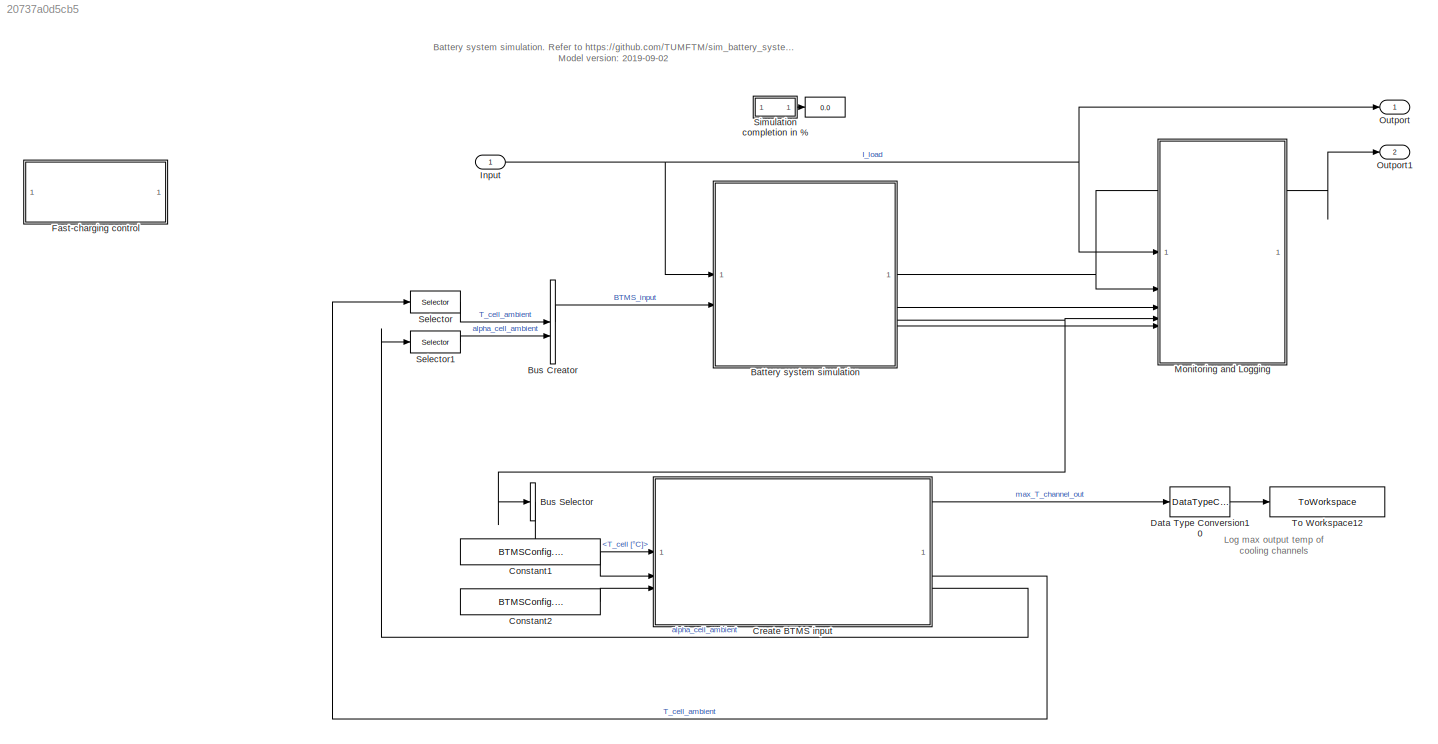
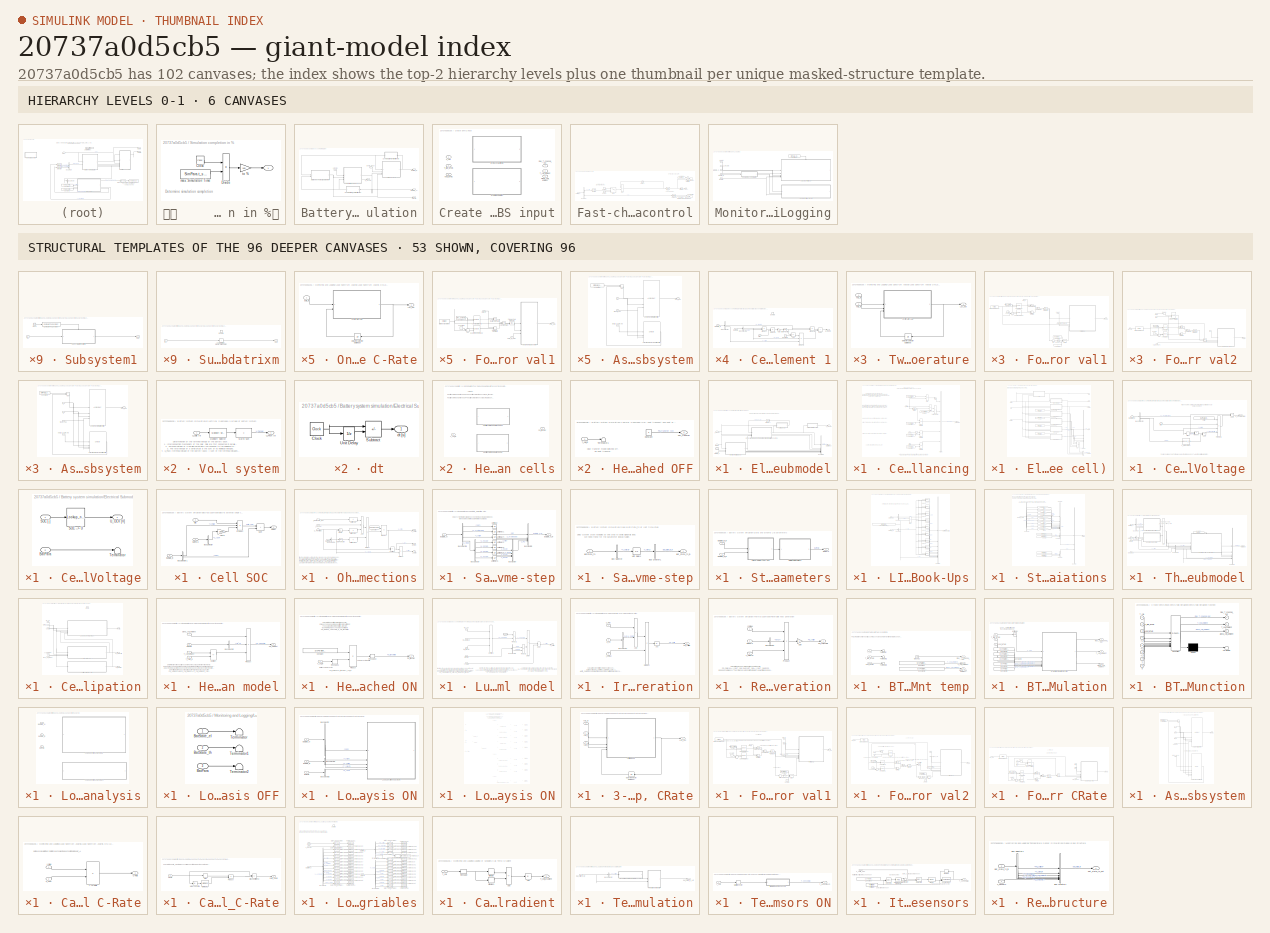
[diagram: thumbnail index - top-2 hierarchy levels (6 canvases) + 53 structural-template representatives of the remaining 96 canvases]
MODEL slx_20737a0d5cb5
KIND model
CONFIG AbsTol = auto
CONFIG EnableMultiTasking = off
CONFIG FixedStep = SimPara.t_step
CONFIG MaxStep = auto
CONFIG MinStep = auto
CONFIG RelTol = 1e-3
CONFIG SampleTimeConstraint = Unconstrained
CONFIG SolverName = FixedStepAuto
CONFIG StartTime = 0.0
CONFIG StopTime = SimPara.t_sim
BLOCK [SubSystem] 		      Simulation completion in %	
BLOCK [Outport] 		      Simulation completion in %	/ 
  VectorParamsAs1DForOutWhenUnconnected = off
BLOCK [Clock] 		      Simulation completion in %	/Clock
BLOCK [Product] 		      Simulation completion in %	/Divide
  Inputs = */
BLOCK [Constant] 		      Simulation completion in %	/max. Simulaton Time
  Value = SimPara.t_sim
BLOCK [Gain] 		      Simulation completion in %	/to %
  Gain = 100
BLOCK [Display]  
  Decimation = 1
  Format = bank
BLOCK [SubSystem] Battery system simulation
  TreatAsAtomicUnit = on
BLOCK [Inport] Battery system simulation/BTMS_input
  Port = 2
BLOCK [Outport] Battery system simulation/BatPara
  Port = 4
  VectorParamsAs1DForOutWhenUnconnected = off
BLOCK [Outport] Battery system simulation/BatState_el
  Port = 2
  VectorParamsAs1DForOutWhenUnconnected = off
BLOCK [Outport] Battery system simulation/BatState_th
  Port = 3
  VectorParamsAs1DForOutWhenUnconnected = off
BLOCK [SubSystem] Battery system simulation/Electrical Submodel
BLOCK [Inport] Battery system simulation/Electrical Submodel/BatPara
  Port = 2
BLOCK [Outport] Battery system simulation/Electrical Submodel/BatState_el
  VectorParamsAs1DForOutWhenUnconnected = off
BLOCK [Inport] Battery system simulation/Electrical Submodel/BatState_in
  Port = 3
BLOCK [BusCreator] Battery system simulation/Electrical Submodel/Bus Creator1
  DisplayOption = bar
  InheritFromInputs = on
  Inputs = 8
BLOCK [SubSystem] Battery system simulation/Electrical Submodel/Cell Balancing
BLOCK [Abs] Battery system simulation/Electrical Submodel/Cell Balancing/Abs
  SaturateOnIntegerOverflow = off
BLOCK [Clock] Battery system simulation/Electrical Submodel/Cell Balancing/Clock
BLOCK [Constant] Battery system simulation/Electrical Submodel/Cell Balancing/Constant
  Value = SysPara.Balancing.R
  VectorParams1D = off
BLOCK [Constant] Battery system simulation/Electrical Submodel/Cell Balancing/Constant1
  Value = SysPara.Balancing.U_Delta
  VectorParams1D = off
BLOCK [Constant] Battery system simulation/Electrical Submodel/Cell Balancing/Constant2
  Value = SysPara.Balancing.U_Limit
  VectorParams1D = off
BLOCK [Constant] Battery system simulation/Electrical Submodel/Cell Balancing/Constant3
  Value = SysPara.Balancing.I_Limit
  VectorParams1D = off
BLOCK [Constant] Battery system simulation/Electrical Submodel/Cell Balancing/Constant4
  Value = SysPara.Balancing.t_Start
BLOCK [Product] Battery system simulation/Electrical Submodel/Cell Balancing/Divide
  Inputs = /*
BLOCK [Gain] Battery system simulation/Electrical Submodel/Cell Balancing/Gain
  Gain = -1
  OutDataTypeStr = double
BLOCK [Outport] Battery system simulation/Electrical Submodel/Cell Balancing/I_Balancing [A]
  VectorParamsAs1DForOutWhenUnconnected = off
BLOCK [Inport] Battery system simulation/Electrical Submodel/Cell Balancing/I_Pack [A]
BLOCK [Reference] Battery system simulation/Electrical Submodel/Cell Balancing/Minimum  REF=dspstat3/Minimum
  SourceBlock = dspstat3/Minimum
  SourceType = Minimum
  UserDataPersistent = on
BLOCK [Product] Battery system simulation/Electrical Submodel/Cell Balancing/Product
  Inputs = 5
BLOCK [RelationalOperator] Battery system simulation/Electrical Submodel/Cell Balancing/Relational Operator
  InputSameDT = off
  Operator = >
  OutDataTypeStr = boolean
  RndMeth = Simplest
BLOCK [RelationalOperator] Battery system simulation/Electrical Submodel/Cell Balancing/Relational Operator1
  InputSameDT = off
  OutDataTypeStr = boolean
  RndMeth = Simplest
BLOCK [RelationalOperator] Battery system simulation/Electrical Submodel/Cell Balancing/Relational Operator2
  InputSameDT = off
  Operator = <=
  OutDataTypeStr = boolean
  RndMeth = Simplest
BLOCK [RelationalOperator] Battery system simulation/Electrical Submodel/Cell Balancing/Relational Operator3
  InputSameDT = off
  OutDataTypeStr = boolean
  RndMeth = Simplest
BLOCK [Sum] Battery system simulation/Electrical Submodel/Cell Balancing/Subtract
  IconShape = rectangular
  Inputs = +-
BLOCK [Inport] Battery system simulation/Electrical Submodel/Cell Balancing/U_Cell [V]
  Port = 2
BLOCK [SubSystem] Battery system simulation/Electrical Submodel/Electric potential (single cell)
BLOCK [Sum] Battery system simulation/Electrical Submodel/Electric potential (single cell)/Add
  IconShape = rectangular
  Inputs = +++
BLOCK [Sum] Battery system simulation/Electrical Submodel/Electric potential (single cell)/Add1
  IconShape = rectangular
  Inputs = ++++
BLOCK [Inport] Battery system simulation/Electrical Submodel/Electric potential (single cell)/BatPara
BLOCK [Inport] Battery system simulation/Electrical Submodel/Electric potential (single cell)/BatState_in
  Port = 3
BLOCK [BusCreator] Battery system simulation/Electrical Submodel/Electric potential (single cell)/Bus Creator
  DisplayOption = bar
  InheritFromInputs = on
  Inputs = 5
BLOCK [SubSystem] Battery system simulation/Electrical Submodel/Electric potential (single cell)/Cell ECM RC-element 1
BLOCK [Inport] Battery system simulation/Electrical Submodel/Electric potential (single cell)/Cell ECM RC-element 1/BatPara
  Port = 2
BLOCK [Inport] Battery system simulation/Electrical Submodel/Electric potential (single cell)/Cell ECM RC-element 1/BatState_In
BLOCK [BusSelector] Battery system simulation/Electrical Submodel/Electric potential (single cell)/Cell ECM RC-element 1/Bus Selector
  OutputSignals = U_RC.U_RC1 [V],I_cell [A]
BLOCK [BusSelector] Battery system simulation/Electrical Submodel/Electric potential (single cell)/Cell ECM RC-element 1/Bus Selector1
  OutputSignals = electrical.R1 [Ohm],electrical.C1 [F]
BLOCK [Constant] Battery system simulation/Electrical Submodel/Electric potential (single cell)/Cell ECM RC-element 1/Constant
  VectorParams1D = off
BLOCK [EnablePort] Battery system simulation/Electrical Submodel/Electric potential (single cell)/Cell ECM RC-element 1/Enable
BLOCK [Gain] Battery system simulation/Electrical Submodel/Electric potential (single cell)/Cell ECM RC-element 1/Gain
  Gain = -1
BLOCK [Math] Battery system simulation/Electrical Submodel/Electric potential (single cell)/Cell ECM RC-element 1/Math Function
  SignedPower = on
BLOCK [Product] Battery system simulation/Electrical Submodel/Electric potential (single cell)/Cell ECM RC-element 1/Product
  Inputs = **
  RndMeth = Zero
BLOCK [Product] Battery system simulation/Electrical Submodel/Electric potential (single cell)/Cell ECM RC-element 1/Product1
  Inputs = /*
  RndMeth = Zero
BLOCK [Product] Battery system simulation/Electrical Submodel/Electric potential (single cell)/Cell ECM RC-element 1/Product2
  Inputs = ***
  RndMeth = Zero
BLOCK [Product] Battery system simulation/Electrical Submodel/Electric potential (single cell)/Cell ECM RC-element 1/Product3
  Inputs = **
  RndMeth = Zero
BLOCK [Sum] Battery system simulation/Electrical Submodel/Electric potential (single cell)/Cell ECM RC-element 1/Sum
  IconShape = rectangular
  Inputs = -+
BLOCK [Sum] Battery system simulation/Electrical Submodel/Electric potential (single cell)/Cell ECM RC-element 1/Sum1
  IconShape = rectangular
BLOCK [Outport] Battery system simulation/Electrical Submodel/Electric potential (single cell)/Cell ECM RC-element 1/U_RC1 [V]
  InitialOutput = zeros(SysPara.p,SysPara.s)
  OutputWhenDisabled = reset
  VectorParamsAs1DForOutWhenUnconnected = off
BLOCK [Inport] Battery system simulation/Electrical Submodel/Electric potential (single cell)/Cell ECM RC-element 1/dt [s]
  Port = 3
BLOCK [SubSystem] Battery system simulation/Electrical Submodel/Electric potential (single cell)/Cell ECM RC-element 2
BLOCK [Inport] Battery system simulation/Electrical Submodel/Electric potential (single cell)/Cell ECM RC-element 2/BatPara
  Port = 2
BLOCK [Inport] Battery system simulation/Electrical Submodel/Electric potential (single cell)/Cell ECM RC-element 2/BatState_In
BLOCK [BusSelector] Battery system simulation/Electrical Submodel/Electric potential (single cell)/Cell ECM RC-element 2/Bus Selector
  OutputSignals = U_RC.U_RC2 [V],I_cell [A]
BLOCK [BusSelector] Battery system simulation/Electrical Submodel/Electric potential (single cell)/Cell ECM RC-element 2/Bus Selector1
  OutputSignals = electrical.R2 [Ohm],electrical.C2 [F]
BLOCK [Constant] Battery system simulation/Electrical Submodel/Electric potential (single cell)/Cell ECM RC-element 2/Constant
  VectorParams1D = off
BLOCK [EnablePort] Battery system simulation/Electrical Submodel/Electric potential (single cell)/Cell ECM RC-element 2/Enable
BLOCK [Gain] Battery system simulation/Electrical Submodel/Electric potential (single cell)/Cell ECM RC-element 2/Gain
  Gain = -1
BLOCK [Math] Battery system simulation/Electrical Submodel/Electric potential (single cell)/Cell ECM RC-element 2/Math Function
  SignedPower = on
BLOCK [Product] Battery system simulation/Electrical Submodel/Electric potential (single cell)/Cell ECM RC-element 2/Product
  Inputs = **
  RndMeth = Zero
BLOCK [Product] Battery system simulation/Electrical Submodel/Electric potential (single cell)/Cell ECM RC-element 2/Product1
  Inputs = /*
  RndMeth = Zero
BLOCK [Product] Battery system simulation/Electrical Submodel/Electric potential (single cell)/Cell ECM RC-element 2/Product2
  Inputs = ***
  RndMeth = Zero
BLOCK [Product] Battery system simulation/Electrical Submodel/Electric potential (single cell)/Cell ECM RC-element 2/Product3
  Inputs = **
  RndMeth = Zero
BLOCK [Sum] Battery system simulation/Electrical Submodel/Electric potential (single cell)/Cell ECM RC-element 2/Sum
  IconShape = rectangular
  Inputs = -+
BLOCK [Sum] Battery system simulation/Electrical Submodel/Electric potential (single cell)/Cell ECM RC-element 2/Sum1
  IconShape = rectangular
BLOCK [Outport] Battery system simulation/Electrical Submodel/Electric potential (single cell)/Cell ECM RC-element 2/U_RC2 [V]
  InitialOutput = zeros(SysPara.p,SysPara.s)
  OutputWhenDisabled = reset
  VectorParamsAs1DForOutWhenUnconnected = off
BLOCK [Inport] Battery system simulation/Electrical Submodel/Electric potential (single cell)/Cell ECM RC-element 2/dt [s]
  Port = 3
BLOCK [SubSystem] Battery system simulation/Electrical Submodel/Electric potential (single cell)/Cell ECM RC-element 3
BLOCK [Inport] Battery system simulation/Electrical Submodel/Electric potential (single cell)/Cell ECM RC-element 3/BatPara
  Port = 2
BLOCK [Inport] Battery system simulation/Electrical Submodel/Electric potential (single cell)/Cell ECM RC-element 3/BatState_In
BLOCK [BusSelector] Battery system simulation/Electrical Submodel/Electric potential (single cell)/Cell ECM RC-element 3/Bus Selector
  OutputSignals = U_RC.U_RC3 [V],I_cell [A]
BLOCK [BusSelector] Battery system simulation/Electrical Submodel/Electric potential (single cell)/Cell ECM RC-element 3/Bus Selector1
  OutputSignals = electrical.R3 [Ohm],electrical.C3 [F]
BLOCK [Constant] Battery system simulation/Electrical Submodel/Electric potential (single cell)/Cell ECM RC-element 3/Constant
  VectorParams1D = off
BLOCK [EnablePort] Battery system simulation/Electrical Submodel/Electric potential (single cell)/Cell ECM RC-element 3/Enable
BLOCK [Gain] Battery system simulation/Electrical Submodel/Electric potential (single cell)/Cell ECM RC-element 3/Gain
  Gain = -1
BLOCK [Math] Battery system simulation/Electrical Submodel/Electric potential (single cell)/Cell ECM RC-element 3/Math Function
  SignedPower = on
BLOCK [Product] Battery system simulation/Electrical Submodel/Electric potential (single cell)/Cell ECM RC-element 3/Product
  Inputs = **
  RndMeth = Zero
BLOCK [Product] Battery system simulation/Electrical Submodel/Electric potential (single cell)/Cell ECM RC-element 3/Product1
  Inputs = /*
  RndMeth = Zero
BLOCK [Product] Battery system simulation/Electrical Submodel/Electric potential (single cell)/Cell ECM RC-element 3/Product2
  Inputs = ***
  RndMeth = Zero
BLOCK [Product] Battery system simulation/Electrical Submodel/Electric potential (single cell)/Cell ECM RC-element 3/Product3
  Inputs = **
  RndMeth = Zero
BLOCK [Sum] Battery system simulation/Electrical Submodel/Electric potential (single cell)/Cell ECM RC-element 3/Sum
  IconShape = rectangular
  Inputs = -+
BLOCK [Sum] Battery system simulation/Electrical Submodel/Electric potential (single cell)/Cell ECM RC-element 3/Sum1
  IconShape = rectangular
BLOCK [Outport] Battery system simulation/Electrical Submodel/Electric potential (single cell)/Cell ECM RC-element 3/U_RC3 [V]
  InitialOutput = zeros(SysPara.p,SysPara.s)
  OutputWhenDisabled = reset
  VectorParamsAs1DForOutWhenUnconnected = off
BLOCK [Inport] Battery system simulation/Electrical Submodel/Electric potential (single cell)/Cell ECM RC-element 3/dt [s]
  Port = 3
BLOCK [SubSystem] Battery system simulation/Electrical Submodel/Electric potential (single cell)/Cell ECM RC-element 4
BLOCK [Inport] Battery system simulation/Electrical Submodel/Electric potential (single cell)/Cell ECM RC-element 4/BatPara
  Port = 2
BLOCK [Inport] Battery system simulation/Electrical Submodel/Electric potential (single cell)/Cell ECM RC-element 4/BatState_In
BLOCK [BusSelector] Battery system simulation/Electrical Submodel/Electric potential (single cell)/Cell ECM RC-element 4/Bus Selector
  OutputSignals = U_RC.U_RC4 [V],I_cell [A]
BLOCK [BusSelector] Battery system simulation/Electrical Submodel/Electric potential (single cell)/Cell ECM RC-element 4/Bus Selector1
  OutputSignals = electrical.R4 [Ohm],electrical.C4 [F]
BLOCK [Constant] Battery system simulation/Electrical Submodel/Electric potential (single cell)/Cell ECM RC-element 4/Constant
  VectorParams1D = off
BLOCK [EnablePort] Battery system simulation/Electrical Submodel/Electric potential (single cell)/Cell ECM RC-element 4/Enable
BLOCK [Gain] Battery system simulation/Electrical Submodel/Electric potential (single cell)/Cell ECM RC-element 4/Gain
  Gain = -1
BLOCK [Math] Battery system simulation/Electrical Submodel/Electric potential (single cell)/Cell ECM RC-element 4/Math Function
  SignedPower = on
BLOCK [Product] Battery system simulation/Electrical Submodel/Electric potential (single cell)/Cell ECM RC-element 4/Product
  Inputs = **
  RndMeth = Zero
BLOCK [Product] Battery system simulation/Electrical Submodel/Electric potential (single cell)/Cell ECM RC-element 4/Product1
  Inputs = /*
  RndMeth = Zero
BLOCK [Product] Battery system simulation/Electrical Submodel/Electric potential (single cell)/Cell ECM RC-element 4/Product2
  Inputs = ***
  RndMeth = Zero
BLOCK [Product] Battery system simulation/Electrical Submodel/Electric potential (single cell)/Cell ECM RC-element 4/Product3
  Inputs = **
  RndMeth = Zero
BLOCK [Sum] Battery system simulation/Electrical Submodel/Electric potential (single cell)/Cell ECM RC-element 4/Sum
  IconShape = rectangular
  Inputs = -+
BLOCK [Sum] Battery system simulation/Electrical Submodel/Electric potential (single cell)/Cell ECM RC-element 4/Sum1
  IconShape = rectangular
BLOCK [Outport] Battery system simulation/Electrical Submodel/Electric potential (single cell)/Cell ECM RC-element 4/U_RC4 [V]
  InitialOutput = zeros(SysPara.p,SysPara.s)
  OutputWhenDisabled = reset
  VectorParamsAs1DForOutWhenUnconnected = off
BLOCK [Inport] Battery system simulation/Electrical Submodel/Electric potential (single cell)/Cell ECM RC-element 4/dt [s]
  Port = 3
BLOCK [SubSystem] Battery system simulation/Electrical Submodel/Electric potential (single cell)/Cell Hysteresis Voltage
BLOCK [Sum] Battery system simulation/Electrical Submodel/Electric potential (single cell)/Cell Hysteresis Voltage/Add
  IconShape = rectangular
  Inputs = -+
BLOCK [Sum] Battery system simulation/Electrical Submodel/Electric potential (single cell)/Cell Hysteresis Voltage/Add1
  IconShape = rectangular
BLOCK [Inport] Battery system simulation/Electrical Submodel/Electric potential (single cell)/Cell Hysteresis Voltage/BatState_In
BLOCK [BusSelector] Battery system simulation/Electrical Submodel/Electric potential (single cell)/Cell Hysteresis Voltage/Bus Selector
  OutputSignals = U_Hysteresis [V],I_cell [A],SOC
BLOCK [Product] Battery system simulation/Electrical Submodel/Electric potential (single cell)/Cell Hysteresis Voltage/Product
BLOCK [Product] Battery system simulation/Electrical Submodel/Electric potential (single cell)/Cell Hysteresis Voltage/Product1
  Inputs = 4
BLOCK [Signum] Battery system simulation/Electrical Submodel/Electric potential (single cell)/Cell Hysteresis Voltage/Sign
BLOCK [Outport] Battery system simulation/Electrical Submodel/Electric potential (single cell)/Cell Hysteresis Voltage/U_Hysteresis [V]
  VectorParamsAs1DForOutWhenUnconnected = off
BLOCK [Lookup_n-D] Battery system simulation/Electrical Submodel/Electric potential (single cell)/Cell Hysteresis Voltage/V_H,max(SOC)
  BeginIndexSearchUsingPreviousIndexResult = on
  BreakpointsForDimension1 = BatPara.electrical.OCV.SOC
  DiagnosticForOutOfRangeInput = Warning
  ExtrapMethod = Clip
  InputPortMap = u0
  InternalRulePriority = Speed
  NumberOfTableDimensions = 1
  RemoveProtectionInput = on
  RndMeth = Simplest
  Table = BatPara.electrical.OCV.U_hyst
  UseLastTableValue = on
BLOCK [Constant] Battery system simulation/Electrical Submodel/Electric potential (single cell)/Cell Hysteresis Voltage/beta
  Value = BatPara.electrical.OCV.beta_hyst
  VectorParams1D = off
BLOCK [Inport] Battery system simulation/Electrical Submodel/Electric potential (single cell)/Cell Hysteresis Voltage/dt [s]
  Port = 2
BLOCK [SubSystem] Battery system simulation/Electrical Submodel/Electric potential (single cell)/Cell Open-Circuit-Voltage
BLOCK [Inport] Battery system simulation/Electrical Submodel/Electric potential (single cell)/Cell Open-Circuit-Voltage/BatPara
  Port = 2
BLOCK [Lookup_n-D] Battery system simulation/Electrical Submodel/Electric potential (single cell)/Cell Open-Circuit-Voltage/SOC --> U
  BeginIndexSearchUsingPreviousIndexResult = on
  BreakpointsForDimension1 = BatPara.electrical.OCV.SOC
  BreakpointsForDimension2 = [1:3]
  DiagnosticForOutOfRangeInput = Warning
  IndexSearchMethod = Linear search
  InputPortMap = u0
  NumberOfTableDimensions = 1
  RemoveProtectionInput = on
  RndMeth = Simplest
  Table = BatPara.electrical.OCV.U
BLOCK [Inport] Battery system simulation/Electrical Submodel/Electric potential (single cell)/Cell Open-Circuit-Voltage/SOC [-]
BLOCK [Terminator] Battery system simulation/Electrical Submodel/Electric potential (single cell)/Cell Open-Circuit-Voltage/Terminator
BLOCK [Outport] Battery system simulation/Electrical Submodel/Electric potential (single cell)/Cell Open-Circuit-Voltage/U_OCV [V]
  VectorParamsAs1DForOutWhenUnconnected = off
BLOCK [SubSystem] Battery system simulation/Electrical Submodel/Electric potential (single cell)/Cell SOC
BLOCK [Gain] Battery system simulation/Electrical Submodel/Electric potential (single cell)/Cell SOC/Ah in As
  Gain = 3600
BLOCK [Inport] Battery system simulation/Electrical Submodel/Electric potential (single cell)/Cell SOC/BatPara
BLOCK [Inport] Battery system simulation/Electrical Submodel/Electric potential (single cell)/Cell SOC/BatState_In
  Port = 2
BLOCK [BusSelector] Battery system simulation/Electrical Submodel/Electric potential (single cell)/Cell SOC/Bus Selector
  OutputSignals = electrical.C_A [Ah]
BLOCK [BusSelector] Battery system simulation/Electrical Submodel/Electric potential (single cell)/Cell SOC/Bus Selector1
  OutputSignals = I_cell [A],SOC
BLOCK [Product] Battery system simulation/Electrical Submodel/Electric potential (single cell)/Cell SOC/Product
  Inputs = **/
  RndMeth = Zero
BLOCK [Outport] Battery system simulation/Electrical Submodel/Electric potential (single cell)/Cell SOC/SOC [-]
  VectorParamsAs1DForOutWhenUnconnected = off
BLOCK [Sum] Battery system simulation/Electrical Submodel/Electric potential (single cell)/Cell SOC/Sum
  IconShape = rectangular
BLOCK [Inport] Battery system simulation/Electrical Submodel/Electric potential (single cell)/Cell SOC/dt [s]
  Port = 3
BLOCK [Constant] Battery system simulation/Electrical Submodel/Electric potential (single cell)/Constant
  Value = BatPara.electrical.dyn.RC1_enable
BLOCK [Constant] Battery system simulation/Electrical Submodel/Electric potential (single cell)/Constant1
  Value = BatPara.electrical.dyn.RC2_enable
BLOCK [Constant] Battery system simulation/Electrical Submodel/Electric potential (single cell)/Constant2
  Value = BatPara.electrical.dyn.RC3_enable
BLOCK [Constant] Battery system simulation/Electrical Submodel/Electric potential (single cell)/Constant3
  Value = BatPara.electrical.dyn.RC4_enable
BLOCK [Outport] Battery system simulation/Electrical Submodel/Electric potential (single cell)/SOC
  Port = 2
  VectorParamsAs1DForOutWhenUnconnected = off
BLOCK [Outport] Battery system simulation/Electrical Submodel/Electric potential (single cell)/U_Hysteresis
  Port = 4
  VectorParamsAs1DForOutWhenUnconnected = off
BLOCK [Outport] Battery system simulation/Electrical Submodel/Electric potential (single cell)/U_OCV
  Port = 3
  VectorParamsAs1DForOutWhenUnconnected = off
BLOCK [Outport] Battery system simulation/Electrical Submodel/Electric potential (single cell)/U_Potential
  VectorParamsAs1DForOutWhenUnconnected = off
BLOCK [Outport] Battery system simulation/Electrical Submodel/Electric potential (single cell)/U_RC
  Port = 5
  VectorParamsAs1DForOutWhenUnconnected = off
BLOCK [Inport] Battery system simulation/Electrical Submodel/Electric potential (single cell)/dt
  Port = 2
BLOCK [Inport] Battery system simulation/Electrical Submodel/I_Pack [A]
BLOCK [SubSystem] Battery system simulation/Electrical Submodel/Ohmic voltage drop and compensating currents in parallel connections
BLOCK [Sum] Battery system simulation/Electrical Submodel/Ohmic voltage drop and compensating currents in parallel connections/Add
  IconShape = rectangular
  Inputs = +++
BLOCK [Inport] Battery system simulation/Electrical Submodel/Ohmic voltage drop and compensating currents in parallel connections/BatPara
  Port = 3
BLOCK [BusSelector] Battery system simulation/Electrical Submodel/Ohmic voltage drop and compensating currents in parallel connections/Bus Selector1
  OutputSignals = electrical.R_0 [Ohm]
BLOCK [Constant] Battery system simulation/Electrical Submodel/Ohmic voltage drop and compensating currents in parallel connections/Constant
  Value = ones(SysPara.p,1)
  VectorParams1D = off
BLOCK [Product] Battery system simulation/Electrical Submodel/Ohmic voltage drop and compensating currents in parallel connections/Divide
  Inputs = */
BLOCK [Product] Battery system simulation/Electrical Submodel/Ohmic voltage drop and compensating currents in parallel connections/Divide1
  Inputs = */
BLOCK [Product] Battery system simulation/Electrical Submodel/Ohmic voltage drop and compensating currents in parallel connections/Divide2
  Inputs = */
BLOCK [Inport] Battery system simulation/Electrical Submodel/Ohmic voltage drop and compensating currents in parallel connections/I_Balancing_in [A]
BLOCK [Outport] Battery system simulation/Electrical Submodel/Ohmic voltage drop and compensating currents in parallel connections/I_Cell [A]
  Port = 2
  VectorParamsAs1DForOutWhenUnconnected = off
BLOCK [Inport] Battery system simulation/Electrical Submodel/Ohmic voltage drop and compensating currents in parallel connections/I_Pack [A]
  Port = 2
BLOCK [Math] Battery system simulation/Electrical Submodel/Ohmic voltage drop and compensating currents in parallel connections/Math Function
  Operator = reciprocal
  SignedPower = on
BLOCK [Sum] Battery system simulation/Electrical Submodel/Ohmic voltage drop and compensating currents in parallel connections/Matrix Sum
  CollapseMode = Specified dimension
  IconShape = rectangular
  Inputs = +
BLOCK [Sum] Battery system simulation/Electrical Submodel/Ohmic voltage drop and compensating currents in parallel connections/Matrix Sum1
  CollapseMode = Specified dimension
  IconShape = rectangular
  Inputs = +
BLOCK [Sum] Battery system simulation/Electrical Submodel/Ohmic voltage drop and compensating currents in parallel connections/Matrix Sum2
  CollapseMode = Specified dimension
  IconShape = rectangular
  Inputs = +
BLOCK [Product] Battery system simulation/Electrical Submodel/Ohmic voltage drop and compensating currents in parallel connections/Product
  Multiplication = Matrix(*)
BLOCK [Sum] Battery system simulation/Electrical Submodel/Ohmic voltage drop and compensating currents in parallel connections/Subtract
  IconShape = rectangular
  Inputs = +-
BLOCK [Outport] Battery system simulation/Electrical Submodel/Ohmic voltage drop and compensating currents in parallel connections/U_Cell [V]
  VectorParamsAs1DForOutWhenUnconnected = off
BLOCK [Inport] Battery system simulation/Electrical Submodel/Ohmic voltage drop and compensating currents in parallel connections/U_Potential [V]
  Port = 4
BLOCK [Outport] Battery system simulation/Electrical Submodel/Ohmic voltage drop and compensating currents in parallel connections/U_R [V]
  Port = 3
  VectorParamsAs1DForOutWhenUnconnected = off
BLOCK [Outport] Battery system simulation/Electrical Submodel/U_Pack [V]
  Port = 2
  VectorParamsAs1DForOutWhenUnconnected = off
BLOCK [UnitDelay] Battery system simulation/Electrical Submodel/Unit Delay4
  HasFrameUpgradeWarning = on
  InitialCondition = zeros(SysPara.p,SysPara.s)
  SampleTime = -1
BLOCK [SubSystem] Battery system simulation/Electrical Submodel/Voltage of battery system
BLOCK [Sum] Battery system simulation/Electrical Submodel/Voltage of battery system/Matrix Sum
  IconShape = rectangular
  Inputs = +
BLOCK [Reference] Battery system simulation/Electrical Submodel/Voltage of battery system/Multiport Selector  REF=dspindex/Multiport
Selector
  SourceBlock = dspindex/Multiport\nSelector
  SourceType = Multiport Selector
BLOCK [Inport] Battery system simulation/Electrical Submodel/Voltage of battery system/U_Cells [V]
BLOCK [Outport] Battery system simulation/Electrical Submodel/Voltage of battery system/U_Pack [V]
  VectorParamsAs1DForOutWhenUnconnected = off
BLOCK [SubSystem] Battery system simulation/Electrical Submodel/dt
BLOCK [Clock] Battery system simulation/Electrical Submodel/dt/Clock
  DisplayTime = on
BLOCK [Sum] Battery system simulation/Electrical Submodel/dt/Subtract
  IconShape = rectangular
  Inputs = +-
BLOCK [UnitDelay] Battery system simulation/Electrical Submodel/dt/Unit Delay
  HasFrameUpgradeWarning = on
  SampleTime = -1
BLOCK [Outport] Battery system simulation/Electrical Submodel/dt/dt [s]
  VectorParamsAs1DForOutWhenUnconnected = off
BLOCK [Inport] Battery system simulation/I_load [A]
BLOCK [SubSystem] Battery system simulation/Save BatState_el of last time-step
BLOCK [Inport] Battery system simulation/Save BatState_el of last time-step/BatState_el
BLOCK [Outport] Battery system simulation/Save BatState_el of last time-step/BatState_el_in
  VectorParamsAs1DForOutWhenUnconnected = off
BLOCK [BusCreator] Battery system simulation/Save BatState_el of last time-step/Bus Creator
  DisplayOption = bar
  InheritFromInputs = on
  Inputs = 4
BLOCK [BusCreator] Battery system simulation/Save BatState_el of last time-step/Bus Creator2
  DisplayOption = bar
  InheritFromInputs = on
  Inputs = 4
BLOCK [BusSelector] Battery system simulation/Save BatState_el of last time-step/Bus Selector
  OutputSignals = U_RC1 [V],U_RC2 [V],U_RC3 [V],U_RC4 [V]
BLOCK [BusSelector] Battery system simulation/Save BatState_el of last time-step/Bus Selector1
  OutputSignals = SOC,U_Hysteresis [V],I_cell [A],U_RC [V]
BLOCK [UnitDelay] Battery system simulation/Save BatState_el of last time-step/Unit Delay
  HasFrameUpgradeWarning = on
  InitialCondition = SysPara.BatStateInit.electrical.SOC
  SampleTime = -1
BLOCK [UnitDelay] Battery system simulation/Save BatState_el of last time-step/Unit Delay1
  HasFrameUpgradeWarning = on
  InitialCondition = SysPara.BatStateInit.electrical.U_hyst
  SampleTime = -1
BLOCK [UnitDelay] Battery system simulation/Save BatState_el of last time-step/Unit Delay2
  HasFrameUpgradeWarning = on
  InitialCondition = SysPara.BatStateInit.electrical.U_RC1
  SampleTime = -1
BLOCK [UnitDelay] Battery system simulation/Save BatState_el of last time-step/Unit Delay3
  HasFrameUpgradeWarning = on
  InitialCondition = SysPara.BatStateInit.electrical.U_RC2
  SampleTime = -1
BLOCK [UnitDelay] Battery system simulation/Save BatState_el of last time-step/Unit Delay4
  HasFrameUpgradeWarning = on
  InitialCondition = SysPara.BatStateInit.electrical.I_cell
  SampleTime = -1
BLOCK [UnitDelay] Battery system simulation/Save BatState_el of last time-step/Unit Delay5
  HasFrameUpgradeWarning = on
  InitialCondition = SysPara.BatStateInit.electrical.U_RC3
  SampleTime = -1
BLOCK [UnitDelay] Battery system simulation/Save BatState_el of last time-step/Unit Delay6
  HasFrameUpgradeWarning = on
  InitialCondition = SysPara.BatStateInit.electrical.U_RC4
  SampleTime = -1
BLOCK [SubSystem] Battery system simulation/Save BatState_th of last time-step
BLOCK [Inport] Battery system simulation/Save BatState_th of last time-step/BatState_th
BLOCK [Outport] Battery system simulation/Save BatState_th of last time-step/Bat_State_th_in
  VectorParamsAs1DForOutWhenUnconnected = off
BLOCK [BusCreator] Battery system simulation/Save BatState_th of last time-step/Bus Creator1
  DisplayOption = bar
  InheritFromInputs = on
  Inputs = 1
BLOCK [BusSelector] Battery system simulation/Save BatState_th of last time-step/Bus Selector
  OutputSignals = T_cell [°C]
BLOCK [UnitDelay] Battery system simulation/Save BatState_th of last time-step/Unit Delay1
  HasFrameUpgradeWarning = on
  InitialCondition = SysPara.BatStateInit.thermal.T_cell
  SampleTime = -1
BLOCK [SubSystem] Battery system simulation/Static and dynamic LIB parameters
BLOCK [Outport] Battery system simulation/Static and dynamic LIB parameters/BatPara
  VectorParamsAs1DForOutWhenUnconnected = off
BLOCK [Inport] Battery system simulation/Static and dynamic LIB parameters/BatState_el_in
  Port = 2
BLOCK [Inport] Battery system simulation/Static and dynamic LIB parameters/BatState_th_in
BLOCK [SubSystem] Battery system simulation/Static and dynamic LIB parameters/LIB Parameter Look-Ups
BLOCK [Constant] Battery system simulation/Static and dynamic LIB parameters/LIB Parameter Look-Ups/Apply Deviation Map to C_A
  Value = BatPara.electrical.C_A*SysPara.DeviationMap.C_A
  VectorParams1D = off
BLOCK [Outport] Battery system simulation/Static and dynamic LIB parameters/LIB Parameter Look-Ups/BatPara_el_uniform
  VectorParamsAs1DForOutWhenUnconnected = off
BLOCK [Inport] Battery system simulation/Static and dynamic LIB parameters/LIB Parameter Look-Ups/BatState_el_in
  Port = 2
BLOCK [Inport] Battery system simulation/Static and dynamic LIB parameters/LIB Parameter Look-Ups/BatState_th_in
BLOCK [BusCreator] Battery system simulation/Static and dynamic LIB parameters/LIB Parameter Look-Ups/Bus Creator
  DisplayOption = bar
  InheritFromInputs = on
  Inputs = 10
BLOCK [BusSelector] Battery system simulation/Static and dynamic LIB parameters/LIB Parameter Look-Ups/Bus Selector
  OutputSignals = SOC,I_cell [A]
BLOCK [BusSelector] Battery system simulation/Static and dynamic LIB parameters/LIB Parameter Look-Ups/Bus Selector1
  OutputSignals = T_cell [°C]
BLOCK [Product] Battery system simulation/Static and dynamic LIB parameters/LIB Parameter Look-Ups/Divide
  Inputs = */
BLOCK [Lookup_n-D] Battery system simulation/Static and dynamic LIB parameters/LIB Parameter Look-Ups/Lookup C1
  BeginIndexSearchUsingPreviousIndexResult = on
  BreakpointsForDimension1 = BatPara.electrical.dyn.SOC
  BreakpointsForDimension2 = BatPara.electrical.dyn.T
  BreakpointsForDimension3 = BatPara.electrical.dyn.C_rate
  ExtrapMethod = Clip
  InputPortMap = u0,u1,u2
  InternalRulePriority = Speed
  NumberOfTableDimensions = 3
  RemoveProtectionInput = on
  RndMeth = Simplest
  Table = BatPara.electrical.dyn.C1
  UseLastTableValue = on
BLOCK [Lookup_n-D] Battery system simulation/Static and dynamic LIB parameters/LIB Parameter Look-Ups/Lookup C2
  BeginIndexSearchUsingPreviousIndexResult = on
  BreakpointsForDimension1 = BatPara.electrical.dyn.SOC
  BreakpointsForDimension2 = BatPara.electrical.dyn.T
  BreakpointsForDimension3 = BatPara.electrical.dyn.C_rate
  ExtrapMethod = Clip
  InputPortMap = u0,u1,u2
  InternalRulePriority = Speed
  NumberOfTableDimensions = 3
  RemoveProtectionInput = on
  RndMeth = Simplest
  Table = BatPara.electrical.dyn.C2
  UseLastTableValue = on
BLOCK [Lookup_n-D] Battery system simulation/Static and dynamic LIB parameters/LIB Parameter Look-Ups/Lookup C3
  BeginIndexSearchUsingPreviousIndexResult = on
  BreakpointsForDimension1 = BatPara.electrical.dyn.SOC
  BreakpointsForDimension2 = BatPara.electrical.dyn.T
  BreakpointsForDimension3 = BatPara.electrical.dyn.C_rate
  ExtrapMethod = Clip
  InputPortMap = u0,u1,u2
  InternalRulePriority = Speed
  NumberOfTableDimensions = 3
  RemoveProtectionInput = on
  RndMeth = Simplest
  Table = BatPara.electrical.dyn.C3
  UseLastTableValue = on
BLOCK [Lookup_n-D] Battery system simulation/Static and dynamic LIB parameters/LIB Parameter Look-Ups/Lookup C4
  BeginIndexSearchUsingPreviousIndexResult = on
  BreakpointsForDimension1 = BatPara.electrical.dyn.SOC
  BreakpointsForDimension2 = BatPara.electrical.dyn.T
  BreakpointsForDimension3 = BatPara.electrical.dyn.C_rate
  ExtrapMethod = Clip
  InputPortMap = u0,u1,u2
  InternalRulePriority = Speed
  NumberOfTableDimensions = 3
  RemoveProtectionInput = on
  RndMeth = Simplest
  Table = BatPara.electrical.dyn.C4
  UseLastTableValue = on
BLOCK [Lookup_n-D] Battery system simulation/Static and dynamic LIB parameters/LIB Parameter Look-Ups/Lookup R1
  BeginIndexSearchUsingPreviousIndexResult = on
  BreakpointsForDimension1 = BatPara.electrical.dyn.SOC
  BreakpointsForDimension2 = BatPara.electrical.dyn.T
  BreakpointsForDimension3 = BatPara.electrical.dyn.C_rate
  ExtrapMethod = Clip
  InputPortMap = u0,u1,u2
  InternalRulePriority = Speed
  NumberOfTableDimensions = 3
  RemoveProtectionInput = on
  RndMeth = Simplest
  Table = BatPara.electrical.dyn.R1
  UseLastTableValue = on
BLOCK [Lookup_n-D] Battery system simulation/Static and dynamic LIB parameters/LIB Parameter Look-Ups/Lookup R2
  BeginIndexSearchUsingPreviousIndexResult = on
  BreakpointsForDimension1 = BatPara.electrical.dyn.SOC
  BreakpointsForDimension2 = BatPara.electrical.dyn.T
  BreakpointsForDimension3 = BatPara.electrical.dyn.C_rate
  ExtrapMethod = Clip
  InputPortMap = u0,u1,u2
  InternalRulePriority = Speed
  NumberOfTableDimensions = 3
  RemoveProtectionInput = on
  RndMeth = Simplest
  Table = BatPara.electrical.dyn.R2
  UseLastTableValue = on
BLOCK [Lookup_n-D] Battery system simulation/Static and dynamic LIB parameters/LIB Parameter Look-Ups/Lookup R3
  BeginIndexSearchUsingPreviousIndexResult = on
  BreakpointsForDimension1 = BatPara.electrical.dyn.SOC
  BreakpointsForDimension2 = BatPara.electrical.dyn.T
  BreakpointsForDimension3 = BatPara.electrical.dyn.C_rate
  ExtrapMethod = Clip
  InputPortMap = u0,u1,u2
  InternalRulePriority = Speed
  NumberOfTableDimensions = 3
  RemoveProtectionInput = on
  RndMeth = Simplest
  Table = BatPara.electrical.dyn.R3
  UseLastTableValue = on
BLOCK [Lookup_n-D] Battery system simulation/Static and dynamic LIB parameters/LIB Parameter Look-Ups/Lookup R4
  BeginIndexSearchUsingPreviousIndexResult = on
  BreakpointsForDimension1 = BatPara.electrical.dyn.SOC
  BreakpointsForDimension2 = BatPara.electrical.dyn.T
  BreakpointsForDimension3 = BatPara.electrical.dyn.C_rate
  ExtrapMethod = Clip
  InputPortMap = u0,u1,u2
  InternalRulePriority = Speed
  NumberOfTableDimensions = 3
  RemoveProtectionInput = on
  RndMeth = Simplest
  Table = BatPara.electrical.dyn.R4
  UseLastTableValue = on
BLOCK [Lookup_n-D] Battery system simulation/Static and dynamic LIB parameters/LIB Parameter Look-Ups/Lookup R_0
  BeginIndexSearchUsingPreviousIndexResult = on
  BreakpointsForDimension1 = BatPara.electrical.dyn.SOC
  BreakpointsForDimension2 = BatPara.electrical.dyn.T
  BreakpointsForDimension3 = BatPara.electrical.dyn.C_rate
  ExtrapMethod = Clip
  InputPortMap = u0,u1,u2
  InternalRulePriority = Speed
  NumberOfTableDimensions = 3
  RemoveProtectionInput = on
  RndMeth = Simplest
  Table = BatPara.electrical.dyn.R_0
  UseLastTableValue = on
BLOCK [SubSystem] Battery system simulation/Static and dynamic LIB parameters/Statistic Cell Deviations
BLOCK [Outport] Battery system simulation/Static and dynamic LIB parameters/Statistic Cell Deviations/BatPara
  VectorParamsAs1DForOutWhenUnconnected = off
BLOCK [Inport] Battery system simulation/Static and dynamic LIB parameters/Statistic Cell Deviations/BatPara_el_uniform 
BLOCK [BusCreator] Battery system simulation/Static and dynamic LIB parameters/Statistic Cell Deviations/Bus Creator
  DisplayOption = bar
  InheritFromInputs = on
  Inputs = 3
BLOCK [BusCreator] Battery system simulation/Static and dynamic LIB parameters/Statistic Cell Deviations/Bus Creator1
  DisplayOption = bar
  InheritFromInputs = on
  Inputs = 10
BLOCK [BusCreator] Battery system simulation/Static and dynamic LIB parameters/Statistic Cell Deviations/Bus Creator2
  DisplayOption = bar
  InheritFromInputs = on
  Inputs = 2
BLOCK [BusCreator] Battery system simulation/Static and dynamic LIB parameters/Statistic Cell Deviations/Bus Creator3
  DisplayOption = bar
  InheritFromInputs = on
  Inputs = 2
BLOCK [BusSelector] Battery system simulation/Static and dynamic LIB parameters/Statistic Cell Deviations/Bus Selector1
  OutputSignals = C_A [Ah],R_0 [Ohm],R1 [Ohm],C1 [F],R2 [Ohm],C2 [F],R3 [Ohm],C3 [F],R4 [Ohm],C4 [F]
BLOCK [Constant] Battery system simulation/Static and dynamic LIB parameters/Statistic Cell Deviations/Constant
  Value = BatPara.physical.m*SysPara.DeviationMap.m
BLOCK [Constant] Battery system simulation/Static and dynamic LIB parameters/Statistic Cell Deviations/Constant1
  Value = BatPara.thermal.c*SysPara.DeviationMap.c
BLOCK [Constant] Battery system simulation/Static and dynamic LIB parameters/Statistic Cell Deviations/Constant2
  Value = BatPara.thermal.EnCo*SysPara.DeviationMap.EnCo
BLOCK [Constant] Battery system simulation/Static and dynamic LIB parameters/Statistic Cell Deviations/Constant3
  Value = BatPara.physical.A
BLOCK [Gain] Battery system simulation/Static and dynamic LIB parameters/Statistic Cell Deviations/Gain10
  Gain = SysPara.DeviationMap.R3
BLOCK [Gain] Battery system simulation/Static and dynamic LIB parameters/Statistic Cell Deviations/Gain11
  Gain = SysPara.DeviationMap.C3
BLOCK [Gain] Battery system simulation/Static and dynamic LIB parameters/Statistic Cell Deviations/Gain12
  Gain = SysPara.DeviationMap.R4
BLOCK [Gain] Battery system simulation/Static and dynamic LIB parameters/Statistic Cell Deviations/Gain13
  Gain = SysPara.DeviationMap.C4
BLOCK [Gain] Battery system simulation/Static and dynamic LIB parameters/Statistic Cell Deviations/Gain5
  Gain = SysPara.DeviationMap.R_0
BLOCK [Gain] Battery system simulation/Static and dynamic LIB parameters/Statistic Cell Deviations/Gain6
  Gain = SysPara.DeviationMap.R1
BLOCK [Gain] Battery system simulation/Static and dynamic LIB parameters/Statistic Cell Deviations/Gain7
  Gain = SysPara.DeviationMap.C1
BLOCK [Gain] Battery system simulation/Static and dynamic LIB parameters/Statistic Cell Deviations/Gain8
  Gain = SysPara.DeviationMap.R2
BLOCK [Gain] Battery system simulation/Static and dynamic LIB parameters/Statistic Cell Deviations/Gain9
  Gain = SysPara.DeviationMap.C2
BLOCK [SubSystem] Battery system simulation/Thermal Submodel
BLOCK [Sum] Battery system simulation/Thermal Submodel/Add
  IconShape = rectangular
BLOCK [Inport] Battery system simulation/Thermal Submodel/BTMS_input
  Port = 2
BLOCK [Inport] Battery system simulation/Thermal Submodel/BatPara
  Port = 4
BLOCK [Inport] Battery system simulation/Thermal Submodel/BatState_el
  Port = 3
BLOCK [Outport] Battery system simulation/Thermal Submodel/BatState_th
  VectorParamsAs1DForOutWhenUnconnected = off
BLOCK [Inport] Battery system simulation/Thermal Submodel/BatState_th_in
BLOCK [BusCreator] Battery system simulation/Thermal Submodel/Bus Creator
  DisplayOption = bar
  InheritFromInputs = on
  Inputs = 6
BLOCK [BusSelector] Battery system simulation/Thermal Submodel/Bus Selector
  OutputSignals = U_R [V],U_RC [V],I_cell [A]
BLOCK [BusSelector] Battery system simulation/Thermal Submodel/Bus Selector3
  OutputSignals = alpha_cell_ambient,T_cell_ambient
BLOCK [BusSelector] Battery system simulation/Thermal Submodel/Bus Selector4
  OutputSignals = T_cell [°C]
BLOCK [SubSystem] Battery system simulation/Thermal Submodel/Cell heat transport and heat dissipation
BLOCK [Inport] Battery system simulation/Thermal Submodel/Cell heat transport and heat dissipation/BatPara
  Port = 2
BLOCK [EnablePort] Battery system simulation/Thermal Submodel/Cell heat transport and heat dissipation/Enable
BLOCK [SubSystem] Battery system simulation/Thermal Submodel/Cell heat transport and heat dissipation/Heat dissipation model
BLOCK [Inport] Battery system simulation/Thermal Submodel/Cell heat transport and heat dissipation/Heat dissipation model/BatPara
  Port = 2
BLOCK [BusSelector] Battery system simulation/Thermal Submodel/Cell heat transport and heat dissipation/Heat dissipation model/Bus Selector2
  OutputSignals = physical.A [m^2]
BLOCK [Outport] Battery system simulation/Thermal Submodel/Cell heat transport and heat dissipation/Heat dissipation model/PQ_ambient
  VectorParamsAs1DForOutWhenUnconnected = off
BLOCK [Product] Battery system simulation/Thermal Submodel/Cell heat transport and heat dissipation/Heat dissipation model/Product
  Inputs = 3
BLOCK [Sum] Battery system simulation/Thermal Submodel/Cell heat transport and heat dissipation/Heat dissipation model/Subtract
  IconShape = rectangular
  Inputs = +-
BLOCK [Inport] Battery system simulation/Thermal Submodel/Cell heat transport and heat dissipation/Heat dissipation model/T_cell_ambient
  Port = 3
BLOCK [Inport] Battery system simulation/Thermal Submodel/Cell heat transport and heat dissipation/Heat dissipation model/T_cells_in
BLOCK [Inport] Battery system simulation/Thermal Submodel/Cell heat transport and heat dissipation/Heat dissipation model/alpha_cell_ambient
  Port = 4
BLOCK [SubSystem] Battery system simulation/Thermal Submodel/Cell heat transport and heat dissipation/Heat transfer between cells
  Variant = on
BLOCK [SubSystem] Battery system simulation/Thermal Submodel/Cell heat transport and heat dissipation/Heat transfer between cells/Heat transfer model switched OFF
  VariantControl = SimPara.heat_exchange_enable == 0
BLOCK [Constant] Battery system simulation/Thermal Submodel/Cell heat transport and heat dissipation/Heat transfer between cells/Heat transfer model switched OFF/Constant
  Value = 0
BLOCK [Outport] Battery system simulation/Thermal Submodel/Cell heat transport and heat dissipation/Heat transfer between cells/Heat transfer model switched OFF/PQ_transfer
  VectorParamsAs1DForOutWhenUnconnected = off
BLOCK [Inport] Battery system simulation/Thermal Submodel/Cell heat transport and heat dissipation/Heat transfer between cells/Heat transfer model switched OFF/T_cell_in
BLOCK [Terminator] Battery system simulation/Thermal Submodel/Cell heat transport and heat dissipation/Heat transfer between cells/Heat transfer model switched OFF/Terminator1
BLOCK [SubSystem] Battery system simulation/Thermal Submodel/Cell heat transport and heat dissipation/Heat transfer between cells/Heat transfer model switched ON
  VariantControl = SimPara.heat_exchange_enable == 1
BLOCK [Constant] Battery system simulation/Thermal Submodel/Cell heat transport and heat dissipation/Heat transfer between cells/Heat transfer model switched ON/Constant
  Value = SysPara.thermal.transfer.K_transfer
BLOCK [Outport] Battery system simulation/Thermal Submodel/Cell heat transport and heat dissipation/Heat transfer between cells/Heat transfer model switched ON/PQ_transfer
  VectorParamsAs1DForOutWhenUnconnected = off
BLOCK [Product] Battery system simulation/Thermal Submodel/Cell heat transport and heat dissipation/Heat transfer between cells/Heat transfer model switched ON/Product
  Multiplication = Matrix(*)
BLOCK [Reshape] Battery system simulation/Thermal Submodel/Cell heat transport and heat dissipation/Heat transfer between cells/Heat transfer model switched ON/Reshape1
  OutputDimensionality = Column vector (2-D)
BLOCK [Reshape] Battery system simulation/Thermal Submodel/Cell heat transport and heat dissipation/Heat transfer between cells/Heat transfer model switched ON/Reshape2
  OutputDimensionality = Customize
  OutputDimensions = [SysPara.p, SysPara.s]
BLOCK [Inport] Battery system simulation/Thermal Submodel/Cell heat transport and heat dissipation/Heat transfer between cells/Heat transfer model switched ON/T_cell_in
BLOCK [Outport] Battery system simulation/Thermal Submodel/Cell heat transport and heat dissipation/Heat transfer between cells/PQ_transfer
  InitialOutput = SysPara.BatStateInit.thermal.T_cell
  VectorParamsAs1DForOutWhenUnconnected = off
BLOCK [Inport] Battery system simulation/Thermal Submodel/Cell heat transport and heat dissipation/Heat transfer between cells/T_cell_in
BLOCK [SubSystem] Battery system simulation/Thermal Submodel/Cell heat transport and heat dissipation/Lumped mass thermal cell model
  VariantControl = SimPara.heat_exchange_enable == 0
BLOCK [Sum] Battery system simulation/Thermal Submodel/Cell heat transport and heat dissipation/Lumped mass thermal cell model/Add1
  IconShape = rectangular
BLOCK [Inport] Battery system simulation/Thermal Submodel/Cell heat transport and heat dissipation/Lumped mass thermal cell model/BatPara
  Port = 2
BLOCK [BusSelector] Battery system simulation/Thermal Submodel/Cell heat transport and heat dissipation/Lumped mass thermal cell model/Bus Selector1
  OutputSignals = physical.m [kg],thermal.c [J/(kg*K)]
BLOCK [Product] Battery system simulation/Thermal Submodel/Cell heat transport and heat dissipation/Lumped mass thermal cell model/Divide
  Inputs = */
BLOCK [Inport] Battery system simulation/Thermal Submodel/Cell heat transport and heat dissipation/Lumped mass thermal cell model/PQ_ambient
  Port = 4
BLOCK [Inport] Battery system simulation/Thermal Submodel/Cell heat transport and heat dissipation/Lumped mass thermal cell model/PQ_cell
BLOCK [Inport] Battery system simulation/Thermal Submodel/Cell heat transport and heat dissipation/Lumped mass thermal cell model/PQ_transfer
  Port = 5
BLOCK [Product] Battery system simulation/Thermal Submodel/Cell heat transport and heat dissipation/Lumped mass thermal cell model/Product1
BLOCK [Product] Battery system simulation/Thermal Submodel/Cell heat transport and heat dissipation/Lumped mass thermal cell model/Product2
BLOCK [Sum] Battery system simulation/Thermal Submodel/Cell heat transport and heat dissipation/Lumped mass thermal cell model/Subtract1
  IconShape = rectangular
  Inputs = +++
BLOCK [Outport] Battery system simulation/Thermal Submodel/Cell heat transport and heat dissipation/Lumped mass thermal cell model/T_cell [°C]
  VectorParamsAs1DForOutWhenUnconnected = off
BLOCK [Inport] Battery system simulation/Thermal Submodel/Cell heat transport and heat dissipation/Lumped mass thermal cell model/T_cell_in
  Port = 3
BLOCK [SubSystem] Battery system simulation/Thermal Submodel/Cell heat transport and heat dissipation/Lumped mass thermal cell model/dt
BLOCK [Clock] Battery system simulation/Thermal Submodel/Cell heat transport and heat dissipation/Lumped mass thermal cell model/dt/Clock
  DisplayTime = on
BLOCK [Sum] Battery system simulation/Thermal Submodel/Cell heat transport and heat dissipation/Lumped mass thermal cell model/dt/Subtract
  IconShape = rectangular
  Inputs = +-
BLOCK [UnitDelay] Battery system simulation/Thermal Submodel/Cell heat transport and heat dissipation/Lumped mass thermal cell model/dt/Unit Delay
  HasFrameUpgradeWarning = on
  SampleTime = -1
BLOCK [Outport] Battery system simulation/Thermal Submodel/Cell heat transport and heat dissipation/Lumped mass thermal cell model/dt/dt [s]
  VectorParamsAs1DForOutWhenUnconnected = off
BLOCK [Outport] Battery system simulation/Thermal Submodel/Cell heat transport and heat dissipation/PQ_ambient [W]
  InitialOutput = 0
  Port = 2
  VectorParamsAs1DForOutWhenUnconnected = off
BLOCK [Inport] Battery system simulation/Thermal Submodel/Cell heat transport and heat dissipation/PQ_cell
BLOCK [Outport] Battery system simulation/Thermal Submodel/Cell heat transport and heat dissipation/PQ_transfer [W]
  InitialOutput = 0
  Port = 3
  VectorParamsAs1DForOutWhenUnconnected = off
BLOCK [Outport] Battery system simulation/Thermal Submodel/Cell heat transport and heat dissipation/T_cell [°C]
  InitialOutput = SysPara.BatStateInit.thermal.T_cell
  VectorParamsAs1DForOutWhenUnconnected = off
BLOCK [Inport] Battery system simulation/Thermal Submodel/Cell heat transport and heat dissipation/T_cell_ambient
  Port = 5
BLOCK [Inport] Battery system simulation/Thermal Submodel/Cell heat transport and heat dissipation/T_cell_in
  Port = 3
BLOCK [Inport] Battery system simulation/Thermal Submodel/Cell heat transport and heat dissipation/alpha_cell_ambient
  Port = 4
BLOCK [Constant] Battery system simulation/Thermal Submodel/Constant
  Value = SimPara.thermal_sim_enable
BLOCK [SubSystem] Battery system simulation/Thermal Submodel/Irreversible heat generation
BLOCK [Abs] Battery system simulation/Thermal Submodel/Irreversible heat generation/Abs
  SaturateOnIntegerOverflow = off
BLOCK [Sum] Battery system simulation/Thermal Submodel/Irreversible heat generation/Add
  IconShape = rectangular
BLOCK [BusSelector] Battery system simulation/Thermal Submodel/Irreversible heat generation/Bus Selector
  OutputSignals = sum_U_RC [V]
BLOCK [Inport] Battery system simulation/Thermal Submodel/Irreversible heat generation/I_Cells [A]
  Port = 3
BLOCK [Outport] Battery system simulation/Thermal Submodel/Irreversible heat generation/PQ_cell,irr [W]
  VectorParamsAs1DForOutWhenUnconnected = off
BLOCK [Product] Battery system simulation/Thermal Submodel/Irreversible heat generation/Product
  Inputs = **
  RndMeth = Zero
BLOCK [Inport] Battery system simulation/Thermal Submodel/Irreversible heat generation/U_R [V]
BLOCK [Inport] Battery system simulation/Thermal Submodel/Irreversible heat generation/U_RC
  Port = 2
BLOCK [SubSystem] Battery system simulation/Thermal Submodel/Reversible heat generation
BLOCK [Inport] Battery system simulation/Thermal Submodel/Reversible heat generation/BatPara
  Port = 3
BLOCK [BusSelector] Battery system simulation/Thermal Submodel/Reversible heat generation/Bus Selector
  OutputSignals = thermal.EnCo
BLOCK [Gain] Battery system simulation/Thermal Submodel/Reversible heat generation/Gain
  Gain = -1
BLOCK [Inport] Battery system simulation/Thermal Submodel/Reversible heat generation/I_Cells [A]
BLOCK [Outport] Battery system simulation/Thermal Submodel/Reversible heat generation/PQ_cell,rev [W]
  VectorParamsAs1DForOutWhenUnconnected = off
BLOCK [Product] Battery system simulation/Thermal Submodel/Reversible heat generation/Product
  Inputs = ***
  RndMeth = Zero
BLOCK [Inport] Battery system simulation/Thermal Submodel/Reversible heat generation/T_Cells [°C]
  Port = 2
BLOCK [Outport] Battery system simulation/U_Pack [V]
  VectorParamsAs1DForOutWhenUnconnected = off
BLOCK [BusCreator] Bus Creator
  DisplayOption = bar
  InheritFromInputs = on
  Inputs = 2
BLOCK [BusSelector] Bus Selector
  OutputSignals = T_cell [°C]
BLOCK [Constant] Constant1
  Value = BTMSConfig.T_fluid
BLOCK [Constant] Constant2
  Value = BTMSConfig.Vdot_BTMS
BLOCK [SubSystem] Create BTMS input
  Variant = on
  VariantControl = Variant1
BLOCK [Outport] Create BTMS input/ T_cell_ambient
  Port = 2
  VectorParamsAs1DForOutWhenUnconnected = off
BLOCK [Outport] Create BTMS input/ alpha_cell_ambient
  Port = 3
  VectorParamsAs1DForOutWhenUnconnected = off
BLOCK [Outport] Create BTMS input/ max_T_channel_out
  VectorParamsAs1DForOutWhenUnconnected = off
BLOCK [SubSystem] Create BTMS input/BTMS constant temp
  VariantControl = SimPara.BTMS_sim_enable == 0
BLOCK [Outport] Create BTMS input/BTMS constant temp/ T_cell_ambient
  Port = 2
  VectorParamsAs1DForOutWhenUnconnected = off
BLOCK [Outport] Create BTMS input/BTMS constant temp/ alpha_cell_ambient
  Port = 3
  VectorParamsAs1DForOutWhenUnconnected = off
BLOCK [Outport] Create BTMS input/BTMS constant temp/ max_T_channel_out
  VectorParamsAs1DForOutWhenUnconnected = off
BLOCK [Constant] Create BTMS input/BTMS constant temp/Constant
  Value = SysPara.thermal.T_cell_ambient*ones(SysPara.p, SysPara.s)
BLOCK [Constant] Create BTMS input/BTMS constant temp/Constant3
  Value = SysPara.thermal.alpha_cell_ambient*ones(SysPara.p, SysPara.s)
BLOCK [Ground] Create BTMS input/BTMS constant temp/Ground2
BLOCK [Inport] Create BTMS input/BTMS constant temp/T_cell 
BLOCK [Inport] Create BTMS input/BTMS constant temp/T_fluid_BTMS 
  Port = 2
BLOCK [Terminator] Create BTMS input/BTMS constant temp/Terminator
BLOCK [Terminator] Create BTMS input/BTMS constant temp/Terminator1
BLOCK [Terminator] Create BTMS input/BTMS constant temp/Terminator2
BLOCK [Inport] Create BTMS input/BTMS constant temp/Vdot_BTMS 
  Port = 3
BLOCK [SubSystem] Create BTMS input/BTMS fluid simulation
  VariantControl = SimPara.BTMS_sim_enable == 1
BLOCK [Outport] Create BTMS input/BTMS fluid simulation/ T_cell_ambient
  Port = 2
  VectorParamsAs1DForOutWhenUnconnected = off
BLOCK [Outport] Create BTMS input/BTMS fluid simulation/ alpha_cell_ambient
  Port = 3
  VectorParamsAs1DForOutWhenUnconnected = off
BLOCK [Outport] Create BTMS input/BTMS fluid simulation/ max_T_channel_out
  VectorParamsAs1DForOutWhenUnconnected = off
BLOCK [SubSystem] Create BTMS input/BTMS fluid simulation/BTMS fluid simulation function
  ErrorFcn = Stateflow.Translate.translate
  PermitHierarchicalResolution = ExplicitOnly
  SFBlockType = MATLAB Function
  TreatAsAtomicUnit = on
  VariantControl = Variant1
BLOCK [Demux] Create BTMS input/BTMS fluid simulation/BTMS fluid simulation function/ Demux 
  Outputs = 1
BLOCK [S-Function] Create BTMS input/BTMS fluid simulation/BTMS fluid simulation function/ SFunction 
  EnableBusSupport = on
  FunctionName = sf_sfun
  Parameters = BTMSConfig,BatPara
  PortCounts = [8 4]
  SFcnIsStateOwnerBlock = off
  SFunctionDeploymentMode = off
  Tag = Stateflow S-Function 1
BLOCK [Terminator] Create BTMS input/BTMS fluid simulation/BTMS fluid simulation function/ Terminator 
BLOCK [Inport] Create BTMS input/BTMS fluid simulation/BTMS fluid simulation function/A_x
  Port = 4
BLOCK [Inport] Create BTMS input/BTMS fluid simulation/BTMS fluid simulation function/A_y
  Port = 5
BLOCK [Inport] Create BTMS input/BTMS fluid simulation/BTMS fluid simulation function/A_z
  Port = 6
BLOCK [Inport] Create BTMS input/BTMS fluid simulation/BTMS fluid simulation function/T_cell
BLOCK [Outport] Create BTMS input/BTMS fluid simulation/BTMS fluid simulation function/T_cell_ambient
  Port = 2
  VectorParamsAs1DForOutWhenUnconnected = off
BLOCK [Inport] Create BTMS input/BTMS fluid simulation/BTMS fluid simulation function/T_fluid_BTMS
  Port = 2
BLOCK [Inport] Create BTMS input/BTMS fluid simulation/BTMS fluid simulation function/Vdot_BTMS
  Port = 3
BLOCK [Outport] Create BTMS input/BTMS fluid simulation/BTMS fluid simulation function/alpha_cell_ambient
  Port = 3
  VectorParamsAs1DForOutWhenUnconnected = off
BLOCK [Outport] Create BTMS input/BTMS fluid simulation/BTMS fluid simulation function/max_T_channel_out
  VectorParamsAs1DForOutWhenUnconnected = off
BLOCK [Inport] Create BTMS input/BTMS fluid simulation/BTMS fluid simulation function/p
  Port = 8
BLOCK [Inport] Create BTMS input/BTMS fluid simulation/BTMS fluid simulation function/s
  Port = 7
BLOCK [Constant] Create BTMS input/BTMS fluid simulation/Constant1
  Value = SysPara.thermal.transfer.A_y
BLOCK [Constant] Create BTMS input/BTMS fluid simulation/Constant2
  Value = SysPara.thermal.transfer.A_z
BLOCK [Constant] Create BTMS input/BTMS fluid simulation/Constant3
  Value = SysPara.thermal.transfer.A_x
BLOCK [Constant] Create BTMS input/BTMS fluid simulation/Constant4
  Value = SysPara.s
BLOCK [Constant] Create BTMS input/BTMS fluid simulation/Constant5
  Value = SysPara.p
BLOCK [Inport] Create BTMS input/BTMS fluid simulation/T_cell 
BLOCK [Inport] Create BTMS input/BTMS fluid simulation/T_fluid_BTMS 
  Port = 2
BLOCK [UnitDelay] Create BTMS input/BTMS fluid simulation/Unit Delay
  HasFrameUpgradeWarning = on
  InitialCondition = SysPara.BatStateInit.electrical.SOC
  SampleTime = -1
BLOCK [Inport] Create BTMS input/BTMS fluid simulation/Vdot_BTMS 
  Port = 3
BLOCK [Inport] Create BTMS input/T_cell 
BLOCK [Inport] Create BTMS input/T_fluid_BTMS 
  Port = 2
BLOCK [Inport] Create BTMS input/Vdot_BTMS 
  Port = 3
BLOCK [DataTypeConversion] Data Type Conversion10
  OutDataTypeStr = SimPara.OutputDataType
  RndMeth = Floor
  SaturateOnIntegerOverflow = off
BLOCK [SubSystem] Fast-charging control
  Commented = on
BLOCK [Sum] Fast-charging control/Add1
  IconShape = rectangular
  Inputs = +-
BLOCK [Inport] Fast-charging control/BatState_el
BLOCK [Constant] Fast-charging control/Battery fully charged
  Value = SysPara.SOC_charge_max
BLOCK [BusSelector] Fast-charging control/Bus Selector
  OutputSignals = U_cell [V],SOC
BLOCK [Constant] Fast-charging control/Constant1
  Value = SysPara.I_charge_min
BLOCK [Constant] Fast-charging control/Constant2
BLOCK [Constant] Fast-charging control/Constant3
  Value = 0
BLOCK [Outport] Fast-charging control/I_load_A
  VectorParamsAs1DForOutWhenUnconnected = off
BLOCK [Reference] Fast-charging control/Maximum  REF=dspstat3/Maximum
  SourceBlock = dspstat3/Maximum
  SourceType = Maximum
  UserDataPersistent = on
BLOCK [Reference] Fast-charging control/Maximum1  REF=dspstat3/Maximum
  SourceBlock = dspstat3/Maximum
  SourceType = Maximum
  UserDataPersistent = on
BLOCK [Reference] Fast-charging control/Mean  REF=dspstat3/Mean
  SourceBlock = dspstat3/Mean
  SourceType = Mean
  UserDataPersistent = on
BLOCK [RelationalOperator] Fast-charging control/Relational Operator
  InputSameDT = off
  OutDataTypeStr = boolean
  RndMeth = Simplest
BLOCK [RelationalOperator] Fast-charging control/Relational Operator2
  InputSameDT = off
  OutDataTypeStr = boolean
  RndMeth = Simplest
BLOCK [Stop] Fast-charging control/Stop Simulation
BLOCK [Stop] Fast-charging control/Stop Simulation1
BLOCK [Switch] Fast-charging control/Switch1
  InputSameDT = off
  SaturateOnIntegerOverflow = off
  Threshold = SysPara.U_charge_target
BLOCK [UnitDelay] Fast-charging control/Unit Delay1
  HasFrameUpgradeWarning = on
  InitialCondition = SysPara.I_charge
  SampleTime = -1
BLOCK [UnitDelay] Fast-charging control/Unit Delay2
  HasFrameUpgradeWarning = on
  InitialCondition = SysPara.I_charge
  SampleTime = -1
BLOCK [Inport] Input
BLOCK [SubSystem] Monitoring and Logging
BLOCK [Inport] Monitoring and Logging/BatPara
  Port = 5
BLOCK [Inport] Monitoring and Logging/BatState_el
  Port = 3
BLOCK [Inport] Monitoring and Logging/BatState_th
  Port = 4
BLOCK [Constant] Monitoring and Logging/Constant
  Value = SimPara.LoggingOutput
BLOCK [Inport] Monitoring and Logging/I_load [A]
BLOCK [SubSystem] Monitoring and Logging/Load Spectrum Analysis
  Variant = on
  VariantControl = Variant1
BLOCK [Inport] Monitoring and Logging/Load Spectrum Analysis/BatPara 
  Port = 3
BLOCK [Inport] Monitoring and Logging/Load Spectrum Analysis/BatState_el 
BLOCK [Inport] Monitoring and Logging/Load Spectrum Analysis/BatState_th 
  Port = 2
BLOCK [SubSystem] Monitoring and Logging/Load Spectrum Analysis/Load Spectrum Analysis OFF
  VariantControl = SimPara.LoadSpectra_enable == 0
BLOCK [Inport] Monitoring and Logging/Load Spectrum Analysis/Load Spectrum Analysis OFF/BatPara
  Port = 3
BLOCK [Inport] Monitoring and Logging/Load Spectrum Analysis/Load Spectrum Analysis OFF/BatState_el
BLOCK [Inport] Monitoring and Logging/Load Spectrum Analysis/Load Spectrum Analysis OFF/BatState_th
  Port = 2
BLOCK [Terminator] Monitoring and Logging/Load Spectrum Analysis/Load Spectrum Analysis OFF/Terminator
BLOCK [Terminator] Monitoring and Logging/Load Spectrum Analysis/Load Spectrum Analysis OFF/Terminator1
BLOCK [Terminator] Monitoring and Logging/Load Spectrum Analysis/Load Spectrum Analysis OFF/Terminator2
BLOCK [SubSystem] Monitoring and Logging/Load Spectrum Analysis/Load Spectrum Analysis ON
  VariantControl = SimPara.LoadSpectra_enable == 1
BLOCK [Inport] Monitoring and Logging/Load Spectrum Analysis/Load Spectrum Analysis ON/BatPara
  Port = 3
BLOCK [Inport] Monitoring and Logging/Load Spectrum Analysis/Load Spectrum Analysis ON/BatState_el
BLOCK [Inport] Monitoring and Logging/Load Spectrum Analysis/Load Spectrum Analysis ON/BatState_th
  Port = 2
BLOCK [BusSelector] Monitoring and Logging/Load Spectrum Analysis/Load Spectrum Analysis ON/Bus Selector
  OutputSignals = SOC,I_cell [A],U_cell [V]
BLOCK [BusSelector] Monitoring and Logging/Load Spectrum Analysis/Load Spectrum Analysis ON/Bus Selector1
  OutputSignals = T_cell [°C]
BLOCK [BusSelector] Monitoring and Logging/Load Spectrum Analysis/Load Spectrum Analysis ON/Bus Selector2
  OutputSignals = electrical.C_A [Ah]
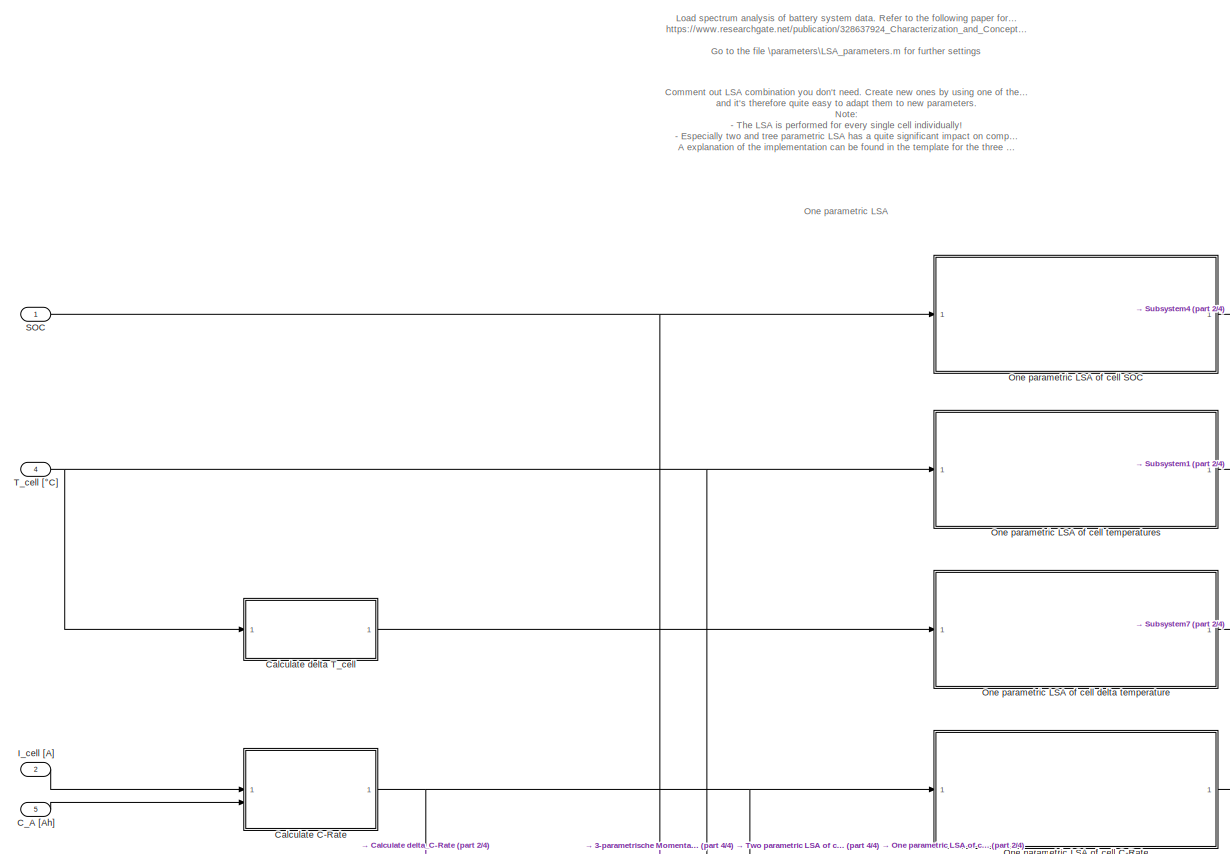
[diagram: Monitoring and Logging/Load Spectrum Analysis/Load Spectrum Analysis ON/Load Spectrum Analysis ON - part 1/4, top center region]
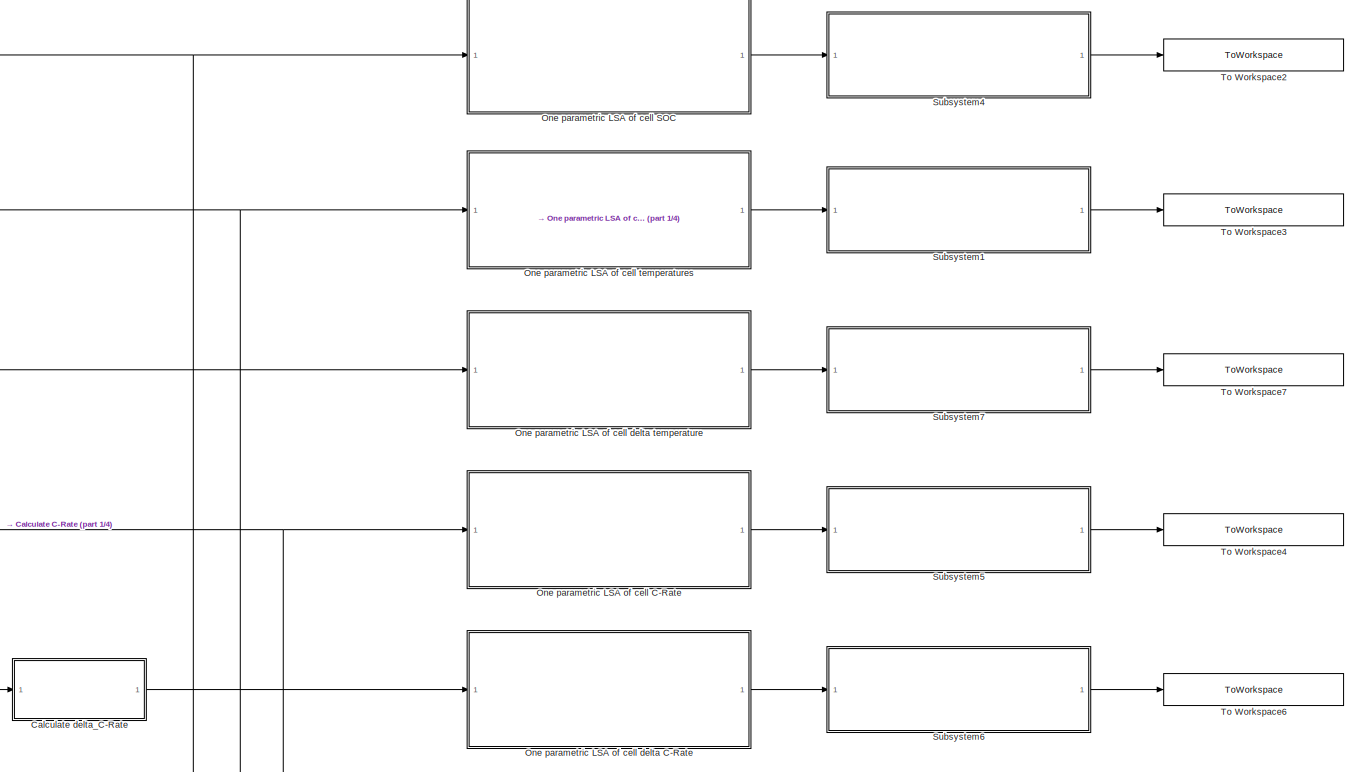
[diagram: Monitoring and Logging/Load Spectrum Analysis/Load Spectrum Analysis ON/Load Spectrum Analysis ON - part 2/4, full width, middle band]
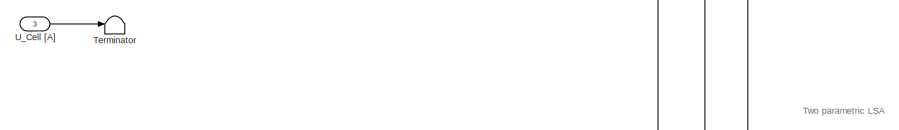
[diagram: Monitoring and Logging/Load Spectrum Analysis/Load Spectrum Analysis ON/Load Spectrum Analysis ON - part 3/4, middle left region]
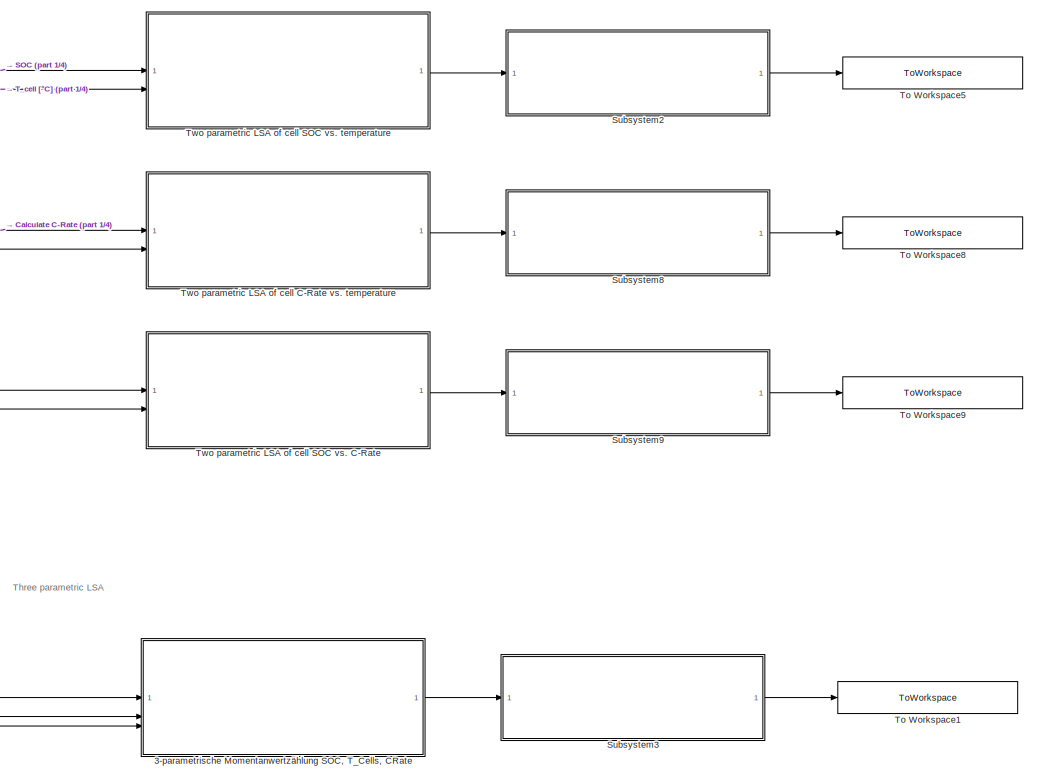
[diagram: Monitoring and Logging/Load Spectrum Analysis/Load Spectrum Analysis ON/Load Spectrum Analysis ON - part 4/4, bottom right region]
BLOCK [SubSystem] Monitoring and Logging/Load Spectrum Analysis/Load Spectrum Analysis ON/Load Spectrum Analysis ON
  VariantControl = SimPara.LoadSpectra == 1
BLOCK [SubSystem] Monitoring and Logging/Load Spectrum Analysis/Load Spectrum Analysis ON/Load Spectrum Analysis ON/3-parametrische Momentanwertzählung SOC, T_Cells, CRate
  Commented = on
BLOCK [SubSystem] Monitoring and Logging/Load Spectrum Analysis/Load Spectrum Analysis ON/Load Spectrum Analysis ON/3-parametrische Momentanwertzählung SOC, T_Cells, CRate/For Iterator val1
  TreatAsAtomicUnit = on
BLOCK [Sum] Monitoring and Logging/Load Spectrum Analysis/Load Spectrum Analysis ON/Load Spectrum Analysis ON/3-parametrische Momentanwertzählung SOC, T_Cells, CRate/For Iterator val1/Add
  IconShape = rectangular
BLOCK [Reference] Monitoring and Logging/Load Spectrum Analysis/Load Spectrum Analysis ON/Load Spectrum Analysis ON/3-parametrische Momentanwertzählung SOC, T_Cells, CRate/For Iterator val1/Compare To Zero  REF=simulink/Logic and Bit
Operations/Compare
To Zero
  SourceBlock = simulink/Logic and Bit\nOperations/Compare\nTo Zero
  SourceType = Compare To Zero
BLOCK [Constant] Monitoring and Logging/Load Spectrum Analysis/Load Spectrum Analysis ON/Load Spectrum Analysis ON/3-parametrische Momentanwertzählung SOC, T_Cells, CRate/For Iterator val1/Constant
  Value = bins_borders_1
BLOCK [Constant] Monitoring and Logging/Load Spectrum Analysis/Load Spectrum Analysis ON/Load Spectrum Analysis ON/3-parametrische Momentanwertzählung SOC, T_Cells, CRate/For Iterator val1/Constant1
  Value = 0
BLOCK [Constant] Monitoring and Logging/Load Spectrum Analysis/Load Spectrum Analysis ON/Load Spectrum Analysis ON/3-parametrische Momentanwertzählung SOC, T_Cells, CRate/For Iterator val1/Constant2
BLOCK [Constant] Monitoring and Logging/Load Spectrum Analysis/Load Spectrum Analysis ON/Load Spectrum Analysis ON/3-parametrische Momentanwertzählung SOC, T_Cells, CRate/For Iterator val1/Constant3
  Value = length(bins_mean_2)
BLOCK [Find] Monitoring and Logging/Load Spectrum Analysis/Load Spectrum Analysis ON/Load Spectrum Analysis ON/3-parametrische Momentanwertzählung SOC, T_Cells, CRate/For Iterator val1/Find Nonzero Elements
BLOCK [SubSystem] Monitoring and Logging/Load Spectrum Analysis/Load Spectrum Analysis ON/Load Spectrum Analysis ON/3-parametrische Momentanwertzählung SOC, T_Cells, CRate/For Iterator val1/For Iterator val2
  TreatAsAtomicUnit = on
BLOCK [Sum] Monitoring and Logging/Load Spectrum Analysis/Load Spectrum Analysis ON/Load Spectrum Analysis ON/3-parametrische Momentanwertzählung SOC, T_Cells, CRate/For Iterator val1/For Iterator val2/Add1
  IconShape = rectangular
BLOCK [Reference] Monitoring and Logging/Load Spectrum Analysis/Load Spectrum Analysis ON/Load Spectrum Analysis ON/3-parametrische Momentanwertzählung SOC, T_Cells, CRate/For Iterator val1/For Iterator val2/Compare To Zero  REF=simulink/Logic and Bit
Operations/Compare
To Zero
  SourceBlock = simulink/Logic and Bit\nOperations/Compare\nTo Zero
  SourceType = Compare To Zero
BLOCK [Constant] Monitoring and Logging/Load Spectrum Analysis/Load Spectrum Analysis ON/Load Spectrum Analysis ON/3-parametrische Momentanwertzählung SOC, T_Cells, CRate/For Iterator val1/For Iterator val2/Constant1
  Value = bins_borders_2
BLOCK [Constant] Monitoring and Logging/Load Spectrum Analysis/Load Spectrum Analysis ON/Load Spectrum Analysis ON/3-parametrische Momentanwertzählung SOC, T_Cells, CRate/For Iterator val1/For Iterator val2/Constant2
  Value = 0
BLOCK [Constant] Monitoring and Logging/Load Spectrum Analysis/Load Spectrum Analysis ON/Load Spectrum Analysis ON/3-parametrische Momentanwertzählung SOC, T_Cells, CRate/For Iterator val1/For Iterator val2/Constant3
  Value = length(bins_mean_3)
BLOCK [Constant] Monitoring and Logging/Load Spectrum Analysis/Load Spectrum Analysis ON/Load Spectrum Analysis ON/3-parametrische Momentanwertzählung SOC, T_Cells, CRate/For Iterator val1/For Iterator val2/Constant4
BLOCK [Find] Monitoring and Logging/Load Spectrum Analysis/Load Spectrum Analysis ON/Load Spectrum Analysis ON/3-parametrische Momentanwertzählung SOC, T_Cells, CRate/For Iterator val1/For Iterator val2/Find Nonzero Elements
BLOCK [SubSystem] Monitoring and Logging/Load Spectrum Analysis/Load Spectrum Analysis ON/Load Spectrum Analysis ON/3-parametrische Momentanwertzählung SOC, T_Cells, CRate/For Iterator val1/For Iterator val2/For Iterator CRate
  TreatAsAtomicUnit = on
BLOCK [Sum] Monitoring and Logging/Load Spectrum Analysis/Load Spectrum Analysis ON/Load Spectrum Analysis ON/3-parametrische Momentanwertzählung SOC, T_Cells, CRate/For Iterator val1/For Iterator val2/For Iterator CRate/Add1
  IconShape = rectangular
BLOCK [SubSystem] Monitoring and Logging/Load Spectrum Analysis/Load Spectrum Analysis ON/Load Spectrum Analysis ON/3-parametrische Momentanwertzählung SOC, T_Cells, CRate/For Iterator val1/For Iterator val2/For Iterator CRate/Assignment Subsystem
  TreatAsAtomicUnit = on
BLOCK [Sum] Monitoring and Logging/Load Spectrum Analysis/Load Spectrum Analysis ON/Load Spectrum Analysis ON/3-parametrische Momentanwertzählung SOC, T_Cells, CRate/For Iterator val1/For Iterator val2/For Iterator CRate/Assignment Subsystem/Add
  IconShape = rectangular
BLOCK [Assignment] Monitoring and Logging/Load Spectrum Analysis/Load Spectrum Analysis ON/Load Spectrum Analysis ON/3-parametrische Momentanwertzählung SOC, T_Cells, CRate/For Iterator val1/For Iterator val2/For Iterator CRate/Assignment Subsystem/Assignment of matrix entries
  IndexOptions = Index vector (port),Index vector (port),Index vector (port),Index vector (port)
  Indices = 1,1,1,1
  NumberOfDimensions = 4
  OutputInitialize = Specify size for each dimension in table
  OutputSizes = length(bins_mean_1),length(bins_mean_2),length(bins_mean_3),SysPara.p*SysPara.s+1
BLOCK [Constant] Monitoring and Logging/Load Spectrum Analysis/Load Spectrum Analysis ON/Load Spectrum Analysis ON/3-parametrische Momentanwertzählung SOC, T_Cells, CRate/For Iterator val1/For Iterator val2/For Iterator CRate/Assignment Subsystem/Constant1
  Value = SimPara.t_step
BLOCK [Outport] Monitoring and Logging/Load Spectrum Analysis/Load Spectrum Analysis ON/Load Spectrum Analysis ON/3-parametrische Momentanwertzählung SOC, T_Cells, CRate/For Iterator val1/For Iterator val2/For Iterator CRate/Assignment Subsystem/LSA_out
  VectorParamsAs1DForOutWhenUnconnected = off
BLOCK [Selector] Monitoring and Logging/Load Spectrum Analysis/Load Spectrum Analysis ON/Load Spectrum Analysis ON/3-parametrische Momentanwertzählung SOC, T_Cells, CRate/For Iterator val1/For Iterator val2/For Iterator CRate/Assignment Subsystem/Selection of delayed matrix entries 
  IndexOptions = Index vector (port),Index vector (port),Index vector (port),Index vector (port)
  Indices = [1 3],1,1,1
  InputPortWidth = 3
  NumberOfDimensions = 4
  OutputSizes = 1,1,1,1
BLOCK [Inport] Monitoring and Logging/Load Spectrum Analysis/Load Spectrum Analysis ON/Load Spectrum Analysis ON/3-parametrische Momentanwertzählung SOC, T_Cells, CRate/For Iterator val1/For Iterator val2/For Iterator CRate/Assignment Subsystem/data_in_delayed
  Port = 5
BLOCK [Inport] Monitoring and Logging/Load Spectrum Analysis/Load Spectrum Analysis ON/Load Spectrum Analysis ON/3-parametrische Momentanwertzählung SOC, T_Cells, CRate/For Iterator val1/For Iterator val2/For Iterator CRate/Assignment Subsystem/index_cell
  Port = 4
BLOCK [Inport] Monitoring and Logging/Load Spectrum Analysis/Load Spectrum Analysis ON/Load Spectrum Analysis ON/3-parametrische Momentanwertzählung SOC, T_Cells, CRate/For Iterator val1/For Iterator val2/For Iterator CRate/Assignment Subsystem/iter_x1
BLOCK [Inport] Monitoring and Logging/Load Spectrum Analysis/Load Spectrum Analysis ON/Load Spectrum Analysis ON/3-parametrische Momentanwertzählung SOC, T_Cells, CRate/For Iterator val1/For Iterator val2/For Iterator CRate/Assignment Subsystem/iter_x2
  Port = 2
BLOCK [Inport] Monitoring and Logging/Load Spectrum Analysis/Load Spectrum Analysis ON/Load Spectrum Analysis ON/3-parametrische Momentanwertzählung SOC, T_Cells, CRate/For Iterator val1/For Iterator val2/For Iterator CRate/Assignment Subsystem/iter_x3
  Port = 3
BLOCK [Constant] Monitoring and Logging/Load Spectrum Analysis/Load Spectrum Analysis ON/Load Spectrum Analysis ON/3-parametrische Momentanwertzählung SOC, T_Cells, CRate/For Iterator val1/For Iterator val2/For Iterator CRate/Constant1
  Value = bins_borders_3
BLOCK [Constant] Monitoring and Logging/Load Spectrum Analysis/Load Spectrum Analysis ON/Load Spectrum Analysis ON/3-parametrische Momentanwertzählung SOC, T_Cells, CRate/For Iterator val1/For Iterator val2/For Iterator CRate/Constant4
BLOCK [Find] Monitoring and Logging/Load Spectrum Analysis/Load Spectrum Analysis ON/Load Spectrum Analysis ON/3-parametrische Momentanwertzählung SOC, T_Cells, CRate/For Iterator val1/For Iterator val2/For Iterator CRate/Find Nonzero Elements
BLOCK [ForIterator] Monitoring and Logging/Load Spectrum Analysis/Load Spectrum Analysis ON/Load Spectrum Analysis ON/3-parametrische Momentanwertzählung SOC, T_Cells, CRate/For Iterator val1/For Iterator val2/For Iterator CRate/Iterate number of bins val3
  IterationLimit = length(x3_cal)
  IterationSource = external
  IterationVariableDataType = double
  ResetStates = reset
BLOCK [Outport] Monitoring and Logging/Load Spectrum Analysis/Load Spectrum Analysis ON/Load Spectrum Analysis ON/3-parametrische Momentanwertzählung SOC, T_Cells, CRate/For Iterator val1/For Iterator val2/For Iterator CRate/LSA_out
  VectorParamsAs1DForOutWhenUnconnected = off
BLOCK [Logic] Monitoring and Logging/Load Spectrum Analysis/Load Spectrum Analysis ON/Load Spectrum Analysis ON/3-parametrische Momentanwertzählung SOC, T_Cells, CRate/For Iterator val1/For Iterator val2/For Iterator CRate/Logical Operator
  AllPortsSameDT = off
  OutDataTypeStr = boolean
BLOCK [RelationalOperator] Monitoring and Logging/Load Spectrum Analysis/Load Spectrum Analysis ON/Load Spectrum Analysis ON/3-parametrische Momentanwertzählung SOC, T_Cells, CRate/For Iterator val1/For Iterator val2/For Iterator CRate/Relational Operator
  InputSameDT = off
  OutDataTypeStr = boolean
  RndMeth = Simplest
BLOCK [RelationalOperator] Monitoring and Logging/Load Spectrum Analysis/Load Spectrum Analysis ON/Load Spectrum Analysis ON/3-parametrische Momentanwertzählung SOC, T_Cells, CRate/For Iterator val1/For Iterator val2/For Iterator CRate/Relational Operator1
  InputSameDT = off
  Operator = <
  OutDataTypeStr = boolean
  RndMeth = Simplest
BLOCK [Reshape] Monitoring and Logging/Load Spectrum Analysis/Load Spectrum Analysis ON/Load Spectrum Analysis ON/3-parametrische Momentanwertzählung SOC, T_Cells, CRate/For Iterator val1/For Iterator val2/For Iterator CRate/Reshape
BLOCK [Selector] Monitoring and Logging/Load Spectrum Analysis/Load Spectrum Analysis ON/Load Spectrum Analysis ON/3-parametrische Momentanwertzählung SOC, T_Cells, CRate/For Iterator val1/For Iterator val2/For Iterator CRate/Selector
  IndexOptions = Index vector (port)
  Indices = [1 3]
  InputPortWidth = SysPara.p*SysPara.s
  OutputSizes = 1
BLOCK [Inport] Monitoring and Logging/Load Spectrum Analysis/Load Spectrum Analysis ON/Load Spectrum Analysis ON/3-parametrische Momentanwertzählung SOC, T_Cells, CRate/For Iterator val1/For Iterator val2/For Iterator CRate/bins_val3
  Port = 6
BLOCK [Inport] Monitoring and Logging/Load Spectrum Analysis/Load Spectrum Analysis ON/Load Spectrum Analysis ON/3-parametrische Momentanwertzählung SOC, T_Cells, CRate/For Iterator val1/For Iterator val2/For Iterator CRate/data_in_delayed
  Port = 5
BLOCK [Inport] Monitoring and Logging/Load Spectrum Analysis/Load Spectrum Analysis ON/Load Spectrum Analysis ON/3-parametrische Momentanwertzählung SOC, T_Cells, CRate/For Iterator val1/For Iterator val2/For Iterator CRate/iter_x1
  Port = 2
BLOCK [Inport] Monitoring and Logging/Load Spectrum Analysis/Load Spectrum Analysis ON/Load Spectrum Analysis ON/3-parametrische Momentanwertzählung SOC, T_Cells, CRate/For Iterator val1/For Iterator val2/For Iterator CRate/iter_x2
  Port = 3
BLOCK [Inport] Monitoring and Logging/Load Spectrum Analysis/Load Spectrum Analysis ON/Load Spectrum Analysis ON/3-parametrische Momentanwertzählung SOC, T_Cells, CRate/For Iterator val1/For Iterator val2/For Iterator CRate/rfk(rfa)
  Port = 4
BLOCK [Selector] Monitoring and Logging/Load Spectrum Analysis/Load Spectrum Analysis ON/Load Spectrum Analysis ON/3-parametrische Momentanwertzählung SOC, T_Cells, CRate/For Iterator val1/For Iterator val2/For Iterator CRate/select cells in the SOC- Range corresponding to 1. FOR Iterator
  IndexOptions = Index vector (port)
  Indices = 1:p
  InputPortWidth = SysPara.p*SysPara.s
  OutputSizes = 1
BLOCK [Selector] Monitoring and Logging/Load Spectrum Analysis/Load Spectrum Analysis ON/Load Spectrum Analysis ON/3-parametrische Momentanwertzählung SOC, T_Cells, CRate/For Iterator val1/For Iterator val2/For Iterator CRate/select parallel cell1
  IndexOptions = Index vector (port)
  Indices = 1:p
  InputPortWidth = length(bins_borders_3)
  OutputSizes = 1
BLOCK [Selector] Monitoring and Logging/Load Spectrum Analysis/Load Spectrum Analysis ON/Load Spectrum Analysis ON/3-parametrische Momentanwertzählung SOC, T_Cells, CRate/For Iterator val1/For Iterator val2/For Iterator CRate/select parallel cell2
  IndexOptions = Index vector (port)
  Indices = 1:p
  InputPortWidth = length(bins_borders_3)
  OutputSizes = 1
BLOCK [Inport] Monitoring and Logging/Load Spectrum Analysis/Load Spectrum Analysis ON/Load Spectrum Analysis ON/3-parametrische Momentanwertzählung SOC, T_Cells, CRate/For Iterator val1/For Iterator val2/For Iterator CRate/val3_in
BLOCK [ForIterator] Monitoring and Logging/Load Spectrum Analysis/Load Spectrum Analysis ON/Load Spectrum Analysis ON/3-parametrische Momentanwertzählung SOC, T_Cells, CRate/For Iterator val1/For Iterator val2/Iterate number of bins val2
  IterationLimit = length(x2_cal)
  IterationSource = external
  IterationVariableDataType = double
  ResetStates = reset
BLOCK [Outport] Monitoring and Logging/Load Spectrum Analysis/Load Spectrum Analysis ON/Load Spectrum Analysis ON/3-parametrische Momentanwertzählung SOC, T_Cells, CRate/For Iterator val1/For Iterator val2/LSA_out
  VectorParamsAs1DForOutWhenUnconnected = off
BLOCK [Logic] Monitoring and Logging/Load Spectrum Analysis/Load Spectrum Analysis ON/Load Spectrum Analysis ON/3-parametrische Momentanwertzählung SOC, T_Cells, CRate/For Iterator val1/For Iterator val2/Logical Operator
  AllPortsSameDT = off
  OutDataTypeStr = boolean
BLOCK [Inport] Monitoring and Logging/Load Spectrum Analysis/Load Spectrum Analysis ON/Load Spectrum Analysis ON/3-parametrische Momentanwertzählung SOC, T_Cells, CRate/For Iterator val1/For Iterator val2/Momentanwerte_SOC_T_ CRate_delayed
  Port = 5
BLOCK [RelationalOperator] Monitoring and Logging/Load Spectrum Analysis/Load Spectrum Analysis ON/Load Spectrum Analysis ON/3-parametrische Momentanwertzählung SOC, T_Cells, CRate/For Iterator val1/For Iterator val2/Relational Operator
  InputSameDT = off
  OutDataTypeStr = boolean
  RndMeth = Simplest
BLOCK [RelationalOperator] Monitoring and Logging/Load Spectrum Analysis/Load Spectrum Analysis ON/Load Spectrum Analysis ON/3-parametrische Momentanwertzählung SOC, T_Cells, CRate/For Iterator val1/For Iterator val2/Relational Operator1
  InputSameDT = off
  Operator = <
  OutDataTypeStr = boolean
  RndMeth = Simplest
BLOCK [Reshape] Monitoring and Logging/Load Spectrum Analysis/Load Spectrum Analysis ON/Load Spectrum Analysis ON/3-parametrische Momentanwertzählung SOC, T_Cells, CRate/For Iterator val1/For Iterator val2/Reshape
BLOCK [Selector] Monitoring and Logging/Load Spectrum Analysis/Load Spectrum Analysis ON/Load Spectrum Analysis ON/3-parametrische Momentanwertzählung SOC, T_Cells, CRate/For Iterator val1/For Iterator val2/Selector
  IndexOptions = Index vector (port)
  Indices = 1:p
  InputPortWidth = SysPara.p*SysPara.s
  NameLocation = top
  OutputSizes = 1
BLOCK [Selector] Monitoring and Logging/Load Spectrum Analysis/Load Spectrum Analysis ON/Load Spectrum Analysis ON/3-parametrische Momentanwertzählung SOC, T_Cells, CRate/For Iterator val1/For Iterator val2/Selector -> rfk(rfa)
  IndexOptions = Index vector (port)
  Indices = [1 3]
  InputPortWidth = SysPara.p*SysPara.s
  OutputSizes = 1
BLOCK [Switch] Monitoring and Logging/Load Spectrum Analysis/Load Spectrum Analysis ON/Load Spectrum Analysis ON/3-parametrische Momentanwertzählung SOC, T_Cells, CRate/For Iterator val1/For Iterator val2/Switch
  Criteria = u2 > Threshold
  InputSameDT = off
  SaturateOnIntegerOverflow = off
BLOCK [Width] Monitoring and Logging/Load Spectrum Analysis/Load Spectrum Analysis ON/Load Spectrum Analysis ON/3-parametrische Momentanwertzählung SOC, T_Cells, CRate/For Iterator val1/For Iterator val2/Width
BLOCK [Inport] Monitoring and Logging/Load Spectrum Analysis/Load Spectrum Analysis ON/Load Spectrum Analysis ON/3-parametrische Momentanwertzählung SOC, T_Cells, CRate/For Iterator val1/For Iterator val2/bins_val2
  Port = 6
BLOCK [Inport] Monitoring and Logging/Load Spectrum Analysis/Load Spectrum Analysis ON/Load Spectrum Analysis ON/3-parametrische Momentanwertzählung SOC, T_Cells, CRate/For Iterator val1/For Iterator val2/cell_index_val1
  Port = 3
BLOCK [Inport] Monitoring and Logging/Load Spectrum Analysis/Load Spectrum Analysis ON/Load Spectrum Analysis ON/3-parametrische Momentanwertzählung SOC, T_Cells, CRate/For Iterator val1/For Iterator val2/rfk
  Port = 4
BLOCK [Selector] Monitoring and Logging/Load Spectrum Analysis/Load Spectrum Analysis ON/Load Spectrum Analysis ON/3-parametrische Momentanwertzählung SOC, T_Cells, CRate/For Iterator val1/For Iterator val2/select parallel cell1
  IndexOptions = Index vector (port)
  Indices = 1:p
  InputPortWidth = length(bins_borders_2)
  OutputSizes = 1
BLOCK [Selector] Monitoring and Logging/Load Spectrum Analysis/Load Spectrum Analysis ON/Load Spectrum Analysis ON/3-parametrische Momentanwertzählung SOC, T_Cells, CRate/For Iterator val1/For Iterator val2/select parallel cell2
  IndexOptions = Index vector (port)
  Indices = 1:p
  InputPortWidth = length(bins_borders_2)
  OutputSizes = 1
BLOCK [Inport] Monitoring and Logging/Load Spectrum Analysis/Load Spectrum Analysis ON/Load Spectrum Analysis ON/3-parametrische Momentanwertzählung SOC, T_Cells, CRate/For Iterator val1/For Iterator val2/val2_in
BLOCK [Inport] Monitoring and Logging/Load Spectrum Analysis/Load Spectrum Analysis ON/Load Spectrum Analysis ON/3-parametrische Momentanwertzählung SOC, T_Cells, CRate/For Iterator val1/For Iterator val2/val3_in
  Port = 2
BLOCK [ForIterator] Monitoring and Logging/Load Spectrum Analysis/Load Spectrum Analysis ON/Load Spectrum Analysis ON/3-parametrische Momentanwertzählung SOC, T_Cells, CRate/For Iterator val1/Iterate number of bins val1
  IterationLimit = length(bins_mean_1)
  IterationVariableDataType = double
  ResetStates = reset
BLOCK [Outport] Monitoring and Logging/Load Spectrum Analysis/Load Spectrum Analysis ON/Load Spectrum Analysis ON/3-parametrische Momentanwertzählung SOC, T_Cells, CRate/For Iterator val1/LSA_out
  VectorParamsAs1DForOutWhenUnconnected = off
BLOCK [Logic] Monitoring and Logging/Load Spectrum Analysis/Load Spectrum Analysis ON/Load Spectrum Analysis ON/3-parametrische Momentanwertzählung SOC, T_Cells, CRate/For Iterator val1/Logical Operator
  AllPortsSameDT = off
  OutDataTypeStr = boolean
BLOCK [RelationalOperator] Monitoring and Logging/Load Spectrum Analysis/Load Spectrum Analysis ON/Load Spectrum Analysis ON/3-parametrische Momentanwertzählung SOC, T_Cells, CRate/For Iterator val1/Relational Operator
  InputSameDT = off
  OutDataTypeStr = boolean
  RndMeth = Simplest
BLOCK [RelationalOperator] Monitoring and Logging/Load Spectrum Analysis/Load Spectrum Analysis ON/Load Spectrum Analysis ON/3-parametrische Momentanwertzählung SOC, T_Cells, CRate/For Iterator val1/Relational Operator1
  InputSameDT = off
  Operator = <
  OutDataTypeStr = boolean
  RndMeth = Simplest
BLOCK [Switch] Monitoring and Logging/Load Spectrum Analysis/Load Spectrum Analysis ON/Load Spectrum Analysis ON/3-parametrische Momentanwertzählung SOC, T_Cells, CRate/For Iterator val1/Switch
  Criteria = u2 > Threshold
  InputSameDT = off
  SaturateOnIntegerOverflow = off
BLOCK [Width] Monitoring and Logging/Load Spectrum Analysis/Load Spectrum Analysis ON/Load Spectrum Analysis ON/3-parametrische Momentanwertzählung SOC, T_Cells, CRate/For Iterator val1/Width
BLOCK [Inport] Monitoring and Logging/Load Spectrum Analysis/Load Spectrum Analysis ON/Load Spectrum Analysis ON/3-parametrische Momentanwertzählung SOC, T_Cells, CRate/For Iterator val1/data_in_delayed
  Port = 4
BLOCK [Selector] Monitoring and Logging/Load Spectrum Analysis/Load Spectrum Analysis ON/Load Spectrum Analysis ON/3-parametrische Momentanwertzählung SOC, T_Cells, CRate/For Iterator val1/obere Intervallgrenze
  IndexOptions = Index vector (port)
  Indices = 1:p
  InputPortWidth = length(bins_borders_1)
  OutputSizes = 1
BLOCK [Selector] Monitoring and Logging/Load Spectrum Analysis/Load Spectrum Analysis ON/Load Spectrum Analysis ON/3-parametrische Momentanwertzählung SOC, T_Cells, CRate/For Iterator val1/untere Intervallgrenze
  IndexOptions = Index vector (port)
  Indices = 1:p
  InputPortWidth = length(bins_borders_1)
  OutputSizes = 1
BLOCK [Inport] Monitoring and Logging/Load Spectrum Analysis/Load Spectrum Analysis ON/Load Spectrum Analysis ON/3-parametrische Momentanwertzählung SOC, T_Cells, CRate/For Iterator val1/val1_in
BLOCK [Inport] Monitoring and Logging/Load Spectrum Analysis/Load Spectrum Analysis ON/Load Spectrum Analysis ON/3-parametrische Momentanwertzählung SOC, T_Cells, CRate/For Iterator val1/val2_in
  Port = 2
BLOCK [Inport] Monitoring and Logging/Load Spectrum Analysis/Load Spectrum Analysis ON/Load Spectrum Analysis ON/3-parametrische Momentanwertzählung SOC, T_Cells, CRate/For Iterator val1/val3_in
  Port = 3
BLOCK [Outport] Monitoring and Logging/Load Spectrum Analysis/Load Spectrum Analysis ON/Load Spectrum Analysis ON/3-parametrische Momentanwertzählung SOC, T_Cells, CRate/LSA_out
  VectorParamsAs1DForOutWhenUnconnected = off
BLOCK [UnitDelay] Monitoring and Logging/Load Spectrum Analysis/Load Spectrum Analysis ON/Load Spectrum Analysis ON/3-parametrische Momentanwertzählung SOC, T_Cells, CRate/delay for selector data input
  HasFrameUpgradeWarning = on
  NameLocation = top
  SampleTime = -1
BLOCK [Inport] Monitoring and Logging/Load Spectrum Analysis/Load Spectrum Analysis ON/Load Spectrum Analysis ON/3-parametrische Momentanwertzählung SOC, T_Cells, CRate/val1_in
BLOCK [Inport] Monitoring and Logging/Load Spectrum Analysis/Load Spectrum Analysis ON/Load Spectrum Analysis ON/3-parametrische Momentanwertzählung SOC, T_Cells, CRate/val2_in
  Port = 2
BLOCK [Inport] Monitoring and Logging/Load Spectrum Analysis/Load Spectrum Analysis ON/Load Spectrum Analysis ON/3-parametrische Momentanwertzählung SOC, T_Cells, CRate/val3_in
  Port = 3
BLOCK [Inport] Monitoring and Logging/Load Spectrum Analysis/Load Spectrum Analysis ON/Load Spectrum Analysis ON/C_A [Ah]
  Port = 5
BLOCK [SubSystem] Monitoring and Logging/Load Spectrum Analysis/Load Spectrum Analysis ON/Load Spectrum Analysis ON/Calculate C-Rate
BLOCK [Outport] Monitoring and Logging/Load Spectrum Analysis/Load Spectrum Analysis ON/Load Spectrum Analysis ON/Calculate C-Rate/C-Rate
  VectorParamsAs1DForOutWhenUnconnected = off
BLOCK [Inport] Monitoring and Logging/Load Spectrum Analysis/Load Spectrum Analysis ON/Load Spectrum Analysis ON/Calculate C-Rate/C_A [Ah]
  Port = 2
BLOCK [Product] Monitoring and Logging/Load Spectrum Analysis/Load Spectrum Analysis ON/Load Spectrum Analysis ON/Calculate C-Rate/I --> C-Rate
  Inputs = */
BLOCK [Inport] Monitoring and Logging/Load Spectrum Analysis/Load Spectrum Analysis ON/Load Spectrum Analysis ON/Calculate C-Rate/I_cell [A]
BLOCK [SubSystem] Monitoring and Logging/Load Spectrum Analysis/Load Spectrum Analysis ON/Load Spectrum Analysis ON/Calculate delta T_cell
BLOCK [Sum] Monitoring and Logging/Load Spectrum Analysis/Load Spectrum Analysis ON/Load Spectrum Analysis ON/Calculate delta T_cell/Add
  IconShape = rectangular
  Inputs = +-
BLOCK [Reference] Monitoring and Logging/Load Spectrum Analysis/Load Spectrum Analysis ON/Load Spectrum Analysis ON/Calculate delta T_cell/Minimum  REF=dspstat3/Minimum
  SourceBlock = dspstat3/Minimum
  SourceType = Minimum
  UserDataPersistent = on
BLOCK [Inport] Monitoring and Logging/Load Spectrum Analysis/Load Spectrum Analysis ON/Load Spectrum Analysis ON/Calculate delta T_cell/T_cells
BLOCK [Outport] Monitoring and Logging/Load Spectrum Analysis/Load Spectrum Analysis ON/Load Spectrum Analysis ON/Calculate delta T_cell/deta_T_cells
  VectorParamsAs1DForOutWhenUnconnected = off
BLOCK [SubSystem] Monitoring and Logging/Load Spectrum Analysis/Load Spectrum Analysis ON/Load Spectrum Analysis ON/Calculate delta_C-Rate
BLOCK [Sum] Monitoring and Logging/Load Spectrum Analysis/Load Spectrum Analysis ON/Load Spectrum Analysis ON/Calculate delta_C-Rate/Bildung Differenz
  IconShape = rectangular
  Inputs = +-
BLOCK [Inport] Monitoring and Logging/Load Spectrum Analysis/Load Spectrum Analysis ON/Load Spectrum Analysis ON/Calculate delta_C-Rate/C-Rate
BLOCK [Reference] Monitoring and Logging/Load Spectrum Analysis/Load Spectrum Analysis ON/Load Spectrum Analysis ON/Calculate delta_C-Rate/Minimum1  REF=dspstat3/Minimum
  SourceBlock = dspstat3/Minimum
  SourceType = Minimum
  UserDataPersistent = on
BLOCK [Product] Monitoring and Logging/Load Spectrum Analysis/Load Spectrum Analysis ON/Load Spectrum Analysis ON/Calculate delta_C-Rate/Product
BLOCK [Signum] Monitoring and Logging/Load Spectrum Analysis/Load Spectrum Analysis ON/Load Spectrum Analysis ON/Calculate delta_C-Rate/Sign
BLOCK [Abs] Monitoring and Logging/Load Spectrum Analysis/Load Spectrum Analysis ON/Load Spectrum Analysis ON/Calculate delta_C-Rate/always positve
  SaturateOnIntegerOverflow = off
BLOCK [Outport] Monitoring and Logging/Load Spectrum Analysis/Load Spectrum Analysis ON/Load Spectrum Analysis ON/Calculate delta_C-Rate/delta_C-Rate
  VectorParamsAs1DForOutWhenUnconnected = off
BLOCK [Inport] Monitoring and Logging/Load Spectrum Analysis/Load Spectrum Analysis ON/Load Spectrum Analysis ON/I_cell [A]
  Port = 2
BLOCK [SubSystem] Monitoring and Logging/Load Spectrum Analysis/Load Spectrum Analysis ON/Load Spectrum Analysis ON/One parametric LSA of cell C-Rate
BLOCK [SubSystem] Monitoring and Logging/Load Spectrum Analysis/Load Spectrum Analysis ON/Load Spectrum Analysis ON/One parametric LSA of cell C-Rate/For Iterator val1
  TreatAsAtomicUnit = on
BLOCK [Sum] Monitoring and Logging/Load Spectrum Analysis/Load Spectrum Analysis ON/Load Spectrum Analysis ON/One parametric LSA of cell C-Rate/For Iterator val1/Add
  IconShape = rectangular
BLOCK [SubSystem] Monitoring and Logging/Load Spectrum Analysis/Load Spectrum Analysis ON/Load Spectrum Analysis ON/One parametric LSA of cell C-Rate/For Iterator val1/Assignment Subsystem
  TreatAsAtomicUnit = on
BLOCK [Sum] Monitoring and Logging/Load Spectrum Analysis/Load Spectrum Analysis ON/Load Spectrum Analysis ON/One parametric LSA of cell C-Rate/For Iterator val1/Assignment Subsystem/Add
  IconShape = rectangular
BLOCK [Assignment] Monitoring and Logging/Load Spectrum Analysis/Load Spectrum Analysis ON/Load Spectrum Analysis ON/One parametric LSA of cell C-Rate/For Iterator val1/Assignment Subsystem/Assignment of matrix entries
  IndexOptions = Index vector (port),Index vector (port)
  Indices = 1,1
  NumberOfDimensions = 2
  OutputInitialize = Specify size for each dimension in table
  OutputSizes = length(bins_mean),SysPara.p*SysPara.s+1
BLOCK [Constant] Monitoring and Logging/Load Spectrum Analysis/Load Spectrum Analysis ON/Load Spectrum Analysis ON/One parametric LSA of cell C-Rate/For Iterator val1/Assignment Subsystem/Constant1
  Value = SimPara.t_step
BLOCK [Outport] Monitoring and Logging/Load Spectrum Analysis/Load Spectrum Analysis ON/Load Spectrum Analysis ON/One parametric LSA of cell C-Rate/For Iterator val1/Assignment Subsystem/LSA_out
  VectorParamsAs1DForOutWhenUnconnected = off
BLOCK [Selector] Monitoring and Logging/Load Spectrum Analysis/Load Spectrum Analysis ON/Load Spectrum Analysis ON/One parametric LSA of cell C-Rate/For Iterator val1/Assignment Subsystem/Selection of delayed matrix entries 
  IndexOptions = Index vector (port),Index vector (port)
  Indices = [1 3],1
  InputPortWidth = 3
  NumberOfDimensions = 2
  OutputSizes = 1,1
BLOCK [Inport] Monitoring and Logging/Load Spectrum Analysis/Load Spectrum Analysis ON/Load Spectrum Analysis ON/One parametric LSA of cell C-Rate/For Iterator val1/Assignment Subsystem/data_in_delayed
  Port = 3
BLOCK [Inport] Monitoring and Logging/Load Spectrum Analysis/Load Spectrum Analysis ON/Load Spectrum Analysis ON/One parametric LSA of cell C-Rate/For Iterator val1/Assignment Subsystem/index_cell
  Port = 2
BLOCK [Inport] Monitoring and Logging/Load Spectrum Analysis/Load Spectrum Analysis ON/Load Spectrum Analysis ON/One parametric LSA of cell C-Rate/For Iterator val1/Assignment Subsystem/k
BLOCK [Constant] Monitoring and Logging/Load Spectrum Analysis/Load Spectrum Analysis ON/Load Spectrum Analysis ON/One parametric LSA of cell C-Rate/For Iterator val1/Constant
  Value = bins_borders
BLOCK [Constant] Monitoring and Logging/Load Spectrum Analysis/Load Spectrum Analysis ON/Load Spectrum Analysis ON/One parametric LSA of cell C-Rate/For Iterator val1/Constant2
BLOCK [Find] Monitoring and Logging/Load Spectrum Analysis/Load Spectrum Analysis ON/Load Spectrum Analysis ON/One parametric LSA of cell C-Rate/For Iterator val1/Find Nonzero Elements
BLOCK [ForIterator] Monitoring and Logging/Load Spectrum Analysis/Load Spectrum Analysis ON/Load Spectrum Analysis ON/One parametric LSA of cell C-Rate/For Iterator val1/Iterate number of bins
  IterationLimit = length(bins_mean)
  IterationVariableDataType = double
  ResetStates = reset
BLOCK [Outport] Monitoring and Logging/Load Spectrum Analysis/Load Spectrum Analysis ON/Load Spectrum Analysis ON/One parametric LSA of cell C-Rate/For Iterator val1/LSA_out
  VectorParamsAs1DForOutWhenUnconnected = off
BLOCK [Logic] Monitoring and Logging/Load Spectrum Analysis/Load Spectrum Analysis ON/Load Spectrum Analysis ON/One parametric LSA of cell C-Rate/For Iterator val1/Logical Operator
  AllPortsSameDT = off
  OutDataTypeStr = boolean
BLOCK [RelationalOperator] Monitoring and Logging/Load Spectrum Analysis/Load Spectrum Analysis ON/Load Spectrum Analysis ON/One parametric LSA of cell C-Rate/For Iterator val1/Relational Operator
  InputSameDT = off
  OutDataTypeStr = boolean
  RndMeth = Simplest
BLOCK [RelationalOperator] Monitoring and Logging/Load Spectrum Analysis/Load Spectrum Analysis ON/Load Spectrum Analysis ON/One parametric LSA of cell C-Rate/For Iterator val1/Relational Operator1
  InputSameDT = off
  Operator = <
  OutDataTypeStr = boolean
  RndMeth = Simplest
BLOCK [Inport] Monitoring and Logging/Load Spectrum Analysis/Load Spectrum Analysis ON/Load Spectrum Analysis ON/One parametric LSA of cell C-Rate/For Iterator val1/data_in
BLOCK [Inport] Monitoring and Logging/Load Spectrum Analysis/Load Spectrum Analysis ON/Load Spectrum Analysis ON/One parametric LSA of cell C-Rate/For Iterator val1/data_in_delay
  Port = 2
BLOCK [Selector] Monitoring and Logging/Load Spectrum Analysis/Load Spectrum Analysis ON/Load Spectrum Analysis ON/One parametric LSA of cell C-Rate/For Iterator val1/select bin upper border
  IndexOptions = Index vector (port)
  Indices = 1:p
  InputPortWidth = length(bins_borders)
  OutputSizes = 1
BLOCK [Selector] Monitoring and Logging/Load Spectrum Analysis/Load Spectrum Analysis ON/Load Spectrum Analysis ON/One parametric LSA of cell C-Rate/For Iterator val1/select parallel cell2
  IndexOptions = Index vector (port)
  Indices = 1:p
  InputPortWidth = length(bins_borders)
  OutputSizes = 1
BLOCK [Outport] Monitoring and Logging/Load Spectrum Analysis/Load Spectrum Analysis ON/Load Spectrum Analysis ON/One parametric LSA of cell C-Rate/LSA_out
  VectorParamsAs1DForOutWhenUnconnected = off
BLOCK [Inport] Monitoring and Logging/Load Spectrum Analysis/Load Spectrum Analysis ON/Load Spectrum Analysis ON/One parametric LSA of cell C-Rate/data_in
  NameLocation = top
BLOCK [UnitDelay] Monitoring and Logging/Load Spectrum Analysis/Load Spectrum Analysis ON/Load Spectrum Analysis ON/One parametric LSA of cell C-Rate/delay for selector data input
  HasFrameUpgradeWarning = on
  NameLocation = top
  SampleTime = -1
BLOCK [SubSystem] Monitoring and Logging/Load Spectrum Analysis/Load Spectrum Analysis ON/Load Spectrum Analysis ON/One parametric LSA of cell SOC
BLOCK [SubSystem] Monitoring and Logging/Load Spectrum Analysis/Load Spectrum Analysis ON/Load Spectrum Analysis ON/One parametric LSA of cell SOC/For Iterator val1
  TreatAsAtomicUnit = on
BLOCK [Sum] Monitoring and Logging/Load Spectrum Analysis/Load Spectrum Analysis ON/Load Spectrum Analysis ON/One parametric LSA of cell SOC/For Iterator val1/Add
  IconShape = rectangular
BLOCK [SubSystem] Monitoring and Logging/Load Spectrum Analysis/Load Spectrum Analysis ON/Load Spectrum Analysis ON/One parametric LSA of cell SOC/For Iterator val1/Assignment Subsystem
  TreatAsAtomicUnit = on
BLOCK [Sum] Monitoring and Logging/Load Spectrum Analysis/Load Spectrum Analysis ON/Load Spectrum Analysis ON/One parametric LSA of cell SOC/For Iterator val1/Assignment Subsystem/Add
  IconShape = rectangular
BLOCK [Assignment] Monitoring and Logging/Load Spectrum Analysis/Load Spectrum Analysis ON/Load Spectrum Analysis ON/One parametric LSA of cell SOC/For Iterator val1/Assignment Subsystem/Assignment of matrix entries
  IndexOptions = Index vector (port),Index vector (port)
  Indices = 1,1
  NumberOfDimensions = 2
  OutputInitialize = Specify size for each dimension in table
  OutputSizes = length(bins_mean),SysPara.p*SysPara.s+1
BLOCK [Constant] Monitoring and Logging/Load Spectrum Analysis/Load Spectrum Analysis ON/Load Spectrum Analysis ON/One parametric LSA of cell SOC/For Iterator val1/Assignment Subsystem/Constant1
  Value = SimPara.t_step
BLOCK [Outport] Monitoring and Logging/Load Spectrum Analysis/Load Spectrum Analysis ON/Load Spectrum Analysis ON/One parametric LSA of cell SOC/For Iterator val1/Assignment Subsystem/LSA_out
  VectorParamsAs1DForOutWhenUnconnected = off
BLOCK [Selector] Monitoring and Logging/Load Spectrum Analysis/Load Spectrum Analysis ON/Load Spectrum Analysis ON/One parametric LSA of cell SOC/For Iterator val1/Assignment Subsystem/Selection of delayed matrix entries 
  IndexOptions = Index vector (port),Index vector (port)
  Indices = [1 3],1
  InputPortWidth = 3
  NumberOfDimensions = 2
  OutputSizes = 1,1
BLOCK [Inport] Monitoring and Logging/Load Spectrum Analysis/Load Spectrum Analysis ON/Load Spectrum Analysis ON/One parametric LSA of cell SOC/For Iterator val1/Assignment Subsystem/data_in_delayed
  Port = 3
BLOCK [Inport] Monitoring and Logging/Load Spectrum Analysis/Load Spectrum Analysis ON/Load Spectrum Analysis ON/One parametric LSA of cell SOC/For Iterator val1/Assignment Subsystem/index_cell
  Port = 2
BLOCK [Inport] Monitoring and Logging/Load Spectrum Analysis/Load Spectrum Analysis ON/Load Spectrum Analysis ON/One parametric LSA of cell SOC/For Iterator val1/Assignment Subsystem/k
BLOCK [Constant] Monitoring and Logging/Load Spectrum Analysis/Load Spectrum Analysis ON/Load Spectrum Analysis ON/One parametric LSA of cell SOC/For Iterator val1/Constant
  Value = bins_borders
BLOCK [Constant] Monitoring and Logging/Load Spectrum Analysis/Load Spectrum Analysis ON/Load Spectrum Analysis ON/One parametric LSA of cell SOC/For Iterator val1/Constant2
BLOCK [Find] Monitoring and Logging/Load Spectrum Analysis/Load Spectrum Analysis ON/Load Spectrum Analysis ON/One parametric LSA of cell SOC/For Iterator val1/Find Nonzero Elements
BLOCK [ForIterator] Monitoring and Logging/Load Spectrum Analysis/Load Spectrum Analysis ON/Load Spectrum Analysis ON/One parametric LSA of cell SOC/For Iterator val1/Iterate number of bins
  IterationLimit = length(bins_mean)
  IterationVariableDataType = double
  ResetStates = reset
BLOCK [Outport] Monitoring and Logging/Load Spectrum Analysis/Load Spectrum Analysis ON/Load Spectrum Analysis ON/One parametric LSA of cell SOC/For Iterator val1/LSA_out
  VectorParamsAs1DForOutWhenUnconnected = off
BLOCK [Logic] Monitoring and Logging/Load Spectrum Analysis/Load Spectrum Analysis ON/Load Spectrum Analysis ON/One parametric LSA of cell SOC/For Iterator val1/Logical Operator
  AllPortsSameDT = off
  OutDataTypeStr = boolean
BLOCK [RelationalOperator] Monitoring and Logging/Load Spectrum Analysis/Load Spectrum Analysis ON/Load Spectrum Analysis ON/One parametric LSA of cell SOC/For Iterator val1/Relational Operator
  InputSameDT = off
  OutDataTypeStr = boolean
  RndMeth = Simplest
BLOCK [RelationalOperator] Monitoring and Logging/Load Spectrum Analysis/Load Spectrum Analysis ON/Load Spectrum Analysis ON/One parametric LSA of cell SOC/For Iterator val1/Relational Operator1
  InputSameDT = off
  Operator = <
  OutDataTypeStr = boolean
  RndMeth = Simplest
BLOCK [Inport] Monitoring and Logging/Load Spectrum Analysis/Load Spectrum Analysis ON/Load Spectrum Analysis ON/One parametric LSA of cell SOC/For Iterator val1/data_in
BLOCK [Inport] Monitoring and Logging/Load Spectrum Analysis/Load Spectrum Analysis ON/Load Spectrum Analysis ON/One parametric LSA of cell SOC/For Iterator val1/data_in_delay
  Port = 2
BLOCK [Selector] Monitoring and Logging/Load Spectrum Analysis/Load Spectrum Analysis ON/Load Spectrum Analysis ON/One parametric LSA of cell SOC/For Iterator val1/select bin upper border
  IndexOptions = Index vector (port)
  Indices = 1:p
  InputPortWidth = length(bins_borders)
  OutputSizes = 1
BLOCK [Selector] Monitoring and Logging/Load Spectrum Analysis/Load Spectrum Analysis ON/Load Spectrum Analysis ON/One parametric LSA of cell SOC/For Iterator val1/select parallel cell2
  IndexOptions = Index vector (port)
  Indices = 1:p
  InputPortWidth = length(bins_borders)
  OutputSizes = 1
BLOCK [Outport] Monitoring and Logging/Load Spectrum Analysis/Load Spectrum Analysis ON/Load Spectrum Analysis ON/One parametric LSA of cell SOC/LSA_out
  VectorParamsAs1DForOutWhenUnconnected = off
BLOCK [Inport] Monitoring and Logging/Load Spectrum Analysis/Load Spectrum Analysis ON/Load Spectrum Analysis ON/One parametric LSA of cell SOC/data_in
  NameLocation = top
BLOCK [UnitDelay] Monitoring and Logging/Load Spectrum Analysis/Load Spectrum Analysis ON/Load Spectrum Analysis ON/One parametric LSA of cell SOC/delay for selector data input
  HasFrameUpgradeWarning = on
  NameLocation = top
  SampleTime = -1
BLOCK [SubSystem] Monitoring and Logging/Load Spectrum Analysis/Load Spectrum Analysis ON/Load Spectrum Analysis ON/One parametric LSA of cell delta C-Rate
BLOCK [SubSystem] Monitoring and Logging/Load Spectrum Analysis/Load Spectrum Analysis ON/Load Spectrum Analysis ON/One parametric LSA of cell delta C-Rate/For Iterator val1
  TreatAsAtomicUnit = on
BLOCK [Sum] Monitoring and Logging/Load Spectrum Analysis/Load Spectrum Analysis ON/Load Spectrum Analysis ON/One parametric LSA of cell delta C-Rate/For Iterator val1/Add
  IconShape = rectangular
BLOCK [SubSystem] Monitoring and Logging/Load Spectrum Analysis/Load Spectrum Analysis ON/Load Spectrum Analysis ON/One parametric LSA of cell delta C-Rate/For Iterator val1/Assignment Subsystem
  TreatAsAtomicUnit = on
BLOCK [Sum] Monitoring and Logging/Load Spectrum Analysis/Load Spectrum Analysis ON/Load Spectrum Analysis ON/One parametric LSA of cell delta C-Rate/For Iterator val1/Assignment Subsystem/Add
  IconShape = rectangular
BLOCK [Assignment] Monitoring and Logging/Load Spectrum Analysis/Load Spectrum Analysis ON/Load Spectrum Analysis ON/One parametric LSA of cell delta C-Rate/For Iterator val1/Assignment Subsystem/Assignment of matrix entries
  IndexOptions = Index vector (port),Index vector (port)
  Indices = 1,1
  NumberOfDimensions = 2
  OutputInitialize = Specify size for each dimension in table
  OutputSizes = length(bins_mean),SysPara.p*SysPara.s+1
BLOCK [Constant] Monitoring and Logging/Load Spectrum Analysis/Load Spectrum Analysis ON/Load Spectrum Analysis ON/One parametric LSA of cell delta C-Rate/For Iterator val1/Assignment Subsystem/Constant1
  Value = SimPara.t_step
BLOCK [Outport] Monitoring and Logging/Load Spectrum Analysis/Load Spectrum Analysis ON/Load Spectrum Analysis ON/One parametric LSA of cell delta C-Rate/For Iterator val1/Assignment Subsystem/LSA_out
  VectorParamsAs1DForOutWhenUnconnected = off
BLOCK [Selector] Monitoring and Logging/Load Spectrum Analysis/Load Spectrum Analysis ON/Load Spectrum Analysis ON/One parametric LSA of cell delta C-Rate/For Iterator val1/Assignment Subsystem/Selection of delayed matrix entries 
  IndexOptions = Index vector (port),Index vector (port)
  Indices = [1 3],1
  InputPortWidth = 3
  NumberOfDimensions = 2
  OutputSizes = 1,1
BLOCK [Inport] Monitoring and Logging/Load Spectrum Analysis/Load Spectrum Analysis ON/Load Spectrum Analysis ON/One parametric LSA of cell delta C-Rate/For Iterator val1/Assignment Subsystem/data_in_delayed
  Port = 3
BLOCK [Inport] Monitoring and Logging/Load Spectrum Analysis/Load Spectrum Analysis ON/Load Spectrum Analysis ON/One parametric LSA of cell delta C-Rate/For Iterator val1/Assignment Subsystem/index_cell
  Port = 2
BLOCK [Inport] Monitoring and Logging/Load Spectrum Analysis/Load Spectrum Analysis ON/Load Spectrum Analysis ON/One parametric LSA of cell delta C-Rate/For Iterator val1/Assignment Subsystem/k
BLOCK [Constant] Monitoring and Logging/Load Spectrum Analysis/Load Spectrum Analysis ON/Load Spectrum Analysis ON/One parametric LSA of cell delta C-Rate/For Iterator val1/Constant
  Value = bins_borders
BLOCK [Constant] Monitoring and Logging/Load Spectrum Analysis/Load Spectrum Analysis ON/Load Spectrum Analysis ON/One parametric LSA of cell delta C-Rate/For Iterator val1/Constant2
BLOCK [Find] Monitoring and Logging/Load Spectrum Analysis/Load Spectrum Analysis ON/Load Spectrum Analysis ON/One parametric LSA of cell delta C-Rate/For Iterator val1/Find Nonzero Elements
BLOCK [ForIterator] Monitoring and Logging/Load Spectrum Analysis/Load Spectrum Analysis ON/Load Spectrum Analysis ON/One parametric LSA of cell delta C-Rate/For Iterator val1/Iterate number of bins
  IterationLimit = length(bins_mean)
  IterationVariableDataType = double
  ResetStates = reset
BLOCK [Outport] Monitoring and Logging/Load Spectrum Analysis/Load Spectrum Analysis ON/Load Spectrum Analysis ON/One parametric LSA of cell delta C-Rate/For Iterator val1/LSA_out
  VectorParamsAs1DForOutWhenUnconnected = off
BLOCK [Logic] Monitoring and Logging/Load Spectrum Analysis/Load Spectrum Analysis ON/Load Spectrum Analysis ON/One parametric LSA of cell delta C-Rate/For Iterator val1/Logical Operator
  AllPortsSameDT = off
  OutDataTypeStr = boolean
BLOCK [RelationalOperator] Monitoring and Logging/Load Spectrum Analysis/Load Spectrum Analysis ON/Load Spectrum Analysis ON/One parametric LSA of cell delta C-Rate/For Iterator val1/Relational Operator
  InputSameDT = off
  OutDataTypeStr = boolean
  RndMeth = Simplest
BLOCK [RelationalOperator] Monitoring and Logging/Load Spectrum Analysis/Load Spectrum Analysis ON/Load Spectrum Analysis ON/One parametric LSA of cell delta C-Rate/For Iterator val1/Relational Operator1
  InputSameDT = off
  Operator = <
  OutDataTypeStr = boolean
  RndMeth = Simplest
BLOCK [Inport] Monitoring and Logging/Load Spectrum Analysis/Load Spectrum Analysis ON/Load Spectrum Analysis ON/One parametric LSA of cell delta C-Rate/For Iterator val1/data_in
BLOCK [Inport] Monitoring and Logging/Load Spectrum Analysis/Load Spectrum Analysis ON/Load Spectrum Analysis ON/One parametric LSA of cell delta C-Rate/For Iterator val1/data_in_delay
  Port = 2
BLOCK [Selector] Monitoring and Logging/Load Spectrum Analysis/Load Spectrum Analysis ON/Load Spectrum Analysis ON/One parametric LSA of cell delta C-Rate/For Iterator val1/select bin upper border
  IndexOptions = Index vector (port)
  Indices = 1:p
  InputPortWidth = length(bins_borders)
  OutputSizes = 1
BLOCK [Selector] Monitoring and Logging/Load Spectrum Analysis/Load Spectrum Analysis ON/Load Spectrum Analysis ON/One parametric LSA of cell delta C-Rate/For Iterator val1/select parallel cell2
  IndexOptions = Index vector (port)
  Indices = 1:p
  InputPortWidth = length(bins_borders)
  OutputSizes = 1
BLOCK [Outport] Monitoring and Logging/Load Spectrum Analysis/Load Spectrum Analysis ON/Load Spectrum Analysis ON/One parametric LSA of cell delta C-Rate/LSA_out
  VectorParamsAs1DForOutWhenUnconnected = off
BLOCK [Inport] Monitoring and Logging/Load Spectrum Analysis/Load Spectrum Analysis ON/Load Spectrum Analysis ON/One parametric LSA of cell delta C-Rate/data_in
  NameLocation = top
BLOCK [UnitDelay] Monitoring and Logging/Load Spectrum Analysis/Load Spectrum Analysis ON/Load Spectrum Analysis ON/One parametric LSA of cell delta C-Rate/delay for selector data input
  HasFrameUpgradeWarning = on
  NameLocation = top
  SampleTime = -1
BLOCK [SubSystem] Monitoring and Logging/Load Spectrum Analysis/Load Spectrum Analysis ON/Load Spectrum Analysis ON/One parametric LSA of cell delta temperature
BLOCK [SubSystem] Monitoring and Logging/Load Spectrum Analysis/Load Spectrum Analysis ON/Load Spectrum Analysis ON/One parametric LSA of cell delta temperature/For Iterator val1
  TreatAsAtomicUnit = on
BLOCK [Sum] Monitoring and Logging/Load Spectrum Analysis/Load Spectrum Analysis ON/Load Spectrum Analysis ON/One parametric LSA of cell delta temperature/For Iterator val1/Add
  IconShape = rectangular
BLOCK [SubSystem] Monitoring and Logging/Load Spectrum Analysis/Load Spectrum Analysis ON/Load Spectrum Analysis ON/One parametric LSA of cell delta temperature/For Iterator val1/Assignment Subsystem
  TreatAsAtomicUnit = on
BLOCK [Sum] Monitoring and Logging/Load Spectrum Analysis/Load Spectrum Analysis ON/Load Spectrum Analysis ON/One parametric LSA of cell delta temperature/For Iterator val1/Assignment Subsystem/Add
  IconShape = rectangular
BLOCK [Assignment] Monitoring and Logging/Load Spectrum Analysis/Load Spectrum Analysis ON/Load Spectrum Analysis ON/One parametric LSA of cell delta temperature/For Iterator val1/Assignment Subsystem/Assignment of matrix entries
  IndexOptions = Index vector (port),Index vector (port)
  Indices = 1,1
  NumberOfDimensions = 2
  OutputInitialize = Specify size for each dimension in table
  OutputSizes = length(bins_mean),SysPara.p*SysPara.s+1
BLOCK [Constant] Monitoring and Logging/Load Spectrum Analysis/Load Spectrum Analysis ON/Load Spectrum Analysis ON/One parametric LSA of cell delta temperature/For Iterator val1/Assignment Subsystem/Constant1
  Value = SimPara.t_step
BLOCK [Outport] Monitoring and Logging/Load Spectrum Analysis/Load Spectrum Analysis ON/Load Spectrum Analysis ON/One parametric LSA of cell delta temperature/For Iterator val1/Assignment Subsystem/LSA_out
  VectorParamsAs1DForOutWhenUnconnected = off
BLOCK [Selector] Monitoring and Logging/Load Spectrum Analysis/Load Spectrum Analysis ON/Load Spectrum Analysis ON/One parametric LSA of cell delta temperature/For Iterator val1/Assignment Subsystem/Selection of delayed matrix entries 
  IndexOptions = Index vector (port),Index vector (port)
  Indices = [1 3],1
  InputPortWidth = 3
  NumberOfDimensions = 2
  OutputSizes = 1,1
BLOCK [Inport] Monitoring and Logging/Load Spectrum Analysis/Load Spectrum Analysis ON/Load Spectrum Analysis ON/One parametric LSA of cell delta temperature/For Iterator val1/Assignment Subsystem/data_in_delayed
  Port = 3
BLOCK [Inport] Monitoring and Logging/Load Spectrum Analysis/Load Spectrum Analysis ON/Load Spectrum Analysis ON/One parametric LSA of cell delta temperature/For Iterator val1/Assignment Subsystem/index_cell
  Port = 2
BLOCK [Inport] Monitoring and Logging/Load Spectrum Analysis/Load Spectrum Analysis ON/Load Spectrum Analysis ON/One parametric LSA of cell delta temperature/For Iterator val1/Assignment Subsystem/k
BLOCK [Constant] Monitoring and Logging/Load Spectrum Analysis/Load Spectrum Analysis ON/Load Spectrum Analysis ON/One parametric LSA of cell delta temperature/For Iterator val1/Constant
  Value = bins_borders
BLOCK [Constant] Monitoring and Logging/Load Spectrum Analysis/Load Spectrum Analysis ON/Load Spectrum Analysis ON/One parametric LSA of cell delta temperature/For Iterator val1/Constant2
BLOCK [Find] Monitoring and Logging/Load Spectrum Analysis/Load Spectrum Analysis ON/Load Spectrum Analysis ON/One parametric LSA of cell delta temperature/For Iterator val1/Find Nonzero Elements
BLOCK [ForIterator] Monitoring and Logging/Load Spectrum Analysis/Load Spectrum Analysis ON/Load Spectrum Analysis ON/One parametric LSA of cell delta temperature/For Iterator val1/Iterate number of bins
  IterationLimit = length(bins_mean)
  IterationVariableDataType = double
  ResetStates = reset
BLOCK [Outport] Monitoring and Logging/Load Spectrum Analysis/Load Spectrum Analysis ON/Load Spectrum Analysis ON/One parametric LSA of cell delta temperature/For Iterator val1/LSA_out
  VectorParamsAs1DForOutWhenUnconnected = off
BLOCK [Logic] Monitoring and Logging/Load Spectrum Analysis/Load Spectrum Analysis ON/Load Spectrum Analysis ON/One parametric LSA of cell delta temperature/For Iterator val1/Logical Operator
  AllPortsSameDT = off
  OutDataTypeStr = boolean
BLOCK [RelationalOperator] Monitoring and Logging/Load Spectrum Analysis/Load Spectrum Analysis ON/Load Spectrum Analysis ON/One parametric LSA of cell delta temperature/For Iterator val1/Relational Operator
  InputSameDT = off
  OutDataTypeStr = boolean
  RndMeth = Simplest
BLOCK [RelationalOperator] Monitoring and Logging/Load Spectrum Analysis/Load Spectrum Analysis ON/Load Spectrum Analysis ON/One parametric LSA of cell delta temperature/For Iterator val1/Relational Operator1
  InputSameDT = off
  Operator = <
  OutDataTypeStr = boolean
  RndMeth = Simplest
BLOCK [Inport] Monitoring and Logging/Load Spectrum Analysis/Load Spectrum Analysis ON/Load Spectrum Analysis ON/One parametric LSA of cell delta temperature/For Iterator val1/data_in
BLOCK [Inport] Monitoring and Logging/Load Spectrum Analysis/Load Spectrum Analysis ON/Load Spectrum Analysis ON/One parametric LSA of cell delta temperature/For Iterator val1/data_in_delay
  Port = 2
BLOCK [Selector] Monitoring and Logging/Load Spectrum Analysis/Load Spectrum Analysis ON/Load Spectrum Analysis ON/One parametric LSA of cell delta temperature/For Iterator val1/select bin upper border
  IndexOptions = Index vector (port)
  Indices = 1:p
  InputPortWidth = length(bins_borders)
  OutputSizes = 1
BLOCK [Selector] Monitoring and Logging/Load Spectrum Analysis/Load Spectrum Analysis ON/Load Spectrum Analysis ON/One parametric LSA of cell delta temperature/For Iterator val1/select parallel cell2
  IndexOptions = Index vector (port)
  Indices = 1:p
  InputPortWidth = length(bins_borders)
  OutputSizes = 1
BLOCK [Outport] Monitoring and Logging/Load Spectrum Analysis/Load Spectrum Analysis ON/Load Spectrum Analysis ON/One parametric LSA of cell delta temperature/LSA_out
  VectorParamsAs1DForOutWhenUnconnected = off
BLOCK [Inport] Monitoring and Logging/Load Spectrum Analysis/Load Spectrum Analysis ON/Load Spectrum Analysis ON/One parametric LSA of cell delta temperature/data_in
  NameLocation = top
BLOCK [UnitDelay] Monitoring and Logging/Load Spectrum Analysis/Load Spectrum Analysis ON/Load Spectrum Analysis ON/One parametric LSA of cell delta temperature/delay for selector data input
  HasFrameUpgradeWarning = on
  NameLocation = top
  SampleTime = -1
BLOCK [SubSystem] Monitoring and Logging/Load Spectrum Analysis/Load Spectrum Analysis ON/Load Spectrum Analysis ON/One parametric LSA of cell temperatures
BLOCK [SubSystem] Monitoring and Logging/Load Spectrum Analysis/Load Spectrum Analysis ON/Load Spectrum Analysis ON/One parametric LSA of cell temperatures/For Iterator val1
  TreatAsAtomicUnit = on
BLOCK [Sum] Monitoring and Logging/Load Spectrum Analysis/Load Spectrum Analysis ON/Load Spectrum Analysis ON/One parametric LSA of cell temperatures/For Iterator val1/Add
  IconShape = rectangular
BLOCK [SubSystem] Monitoring and Logging/Load Spectrum Analysis/Load Spectrum Analysis ON/Load Spectrum Analysis ON/One parametric LSA of cell temperatures/For Iterator val1/Assignment Subsystem
  TreatAsAtomicUnit = on
BLOCK [Sum] Monitoring and Logging/Load Spectrum Analysis/Load Spectrum Analysis ON/Load Spectrum Analysis ON/One parametric LSA of cell temperatures/For Iterator val1/Assignment Subsystem/Add
  IconShape = rectangular
BLOCK [Assignment] Monitoring and Logging/Load Spectrum Analysis/Load Spectrum Analysis ON/Load Spectrum Analysis ON/One parametric LSA of cell temperatures/For Iterator val1/Assignment Subsystem/Assignment of matrix entries
  IndexOptions = Index vector (port),Index vector (port)
  Indices = 1,1
  NumberOfDimensions = 2
  OutputInitialize = Specify size for each dimension in table
  OutputSizes = length(bins_mean),SysPara.p*SysPara.s+1
BLOCK [Constant] Monitoring and Logging/Load Spectrum Analysis/Load Spectrum Analysis ON/Load Spectrum Analysis ON/One parametric LSA of cell temperatures/For Iterator val1/Assignment Subsystem/Constant1
  Value = SimPara.t_step
BLOCK [Outport] Monitoring and Logging/Load Spectrum Analysis/Load Spectrum Analysis ON/Load Spectrum Analysis ON/One parametric LSA of cell temperatures/For Iterator val1/Assignment Subsystem/LSA_out
  VectorParamsAs1DForOutWhenUnconnected = off
BLOCK [Selector] Monitoring and Logging/Load Spectrum Analysis/Load Spectrum Analysis ON/Load Spectrum Analysis ON/One parametric LSA of cell temperatures/For Iterator val1/Assignment Subsystem/Selection of delayed matrix entries 
  IndexOptions = Index vector (port),Index vector (port)
  Indices = [1 3],1
  InputPortWidth = 3
  NumberOfDimensions = 2
  OutputSizes = 1,1
BLOCK [Inport] Monitoring and Logging/Load Spectrum Analysis/Load Spectrum Analysis ON/Load Spectrum Analysis ON/One parametric LSA of cell temperatures/For Iterator val1/Assignment Subsystem/data_in_delayed
  Port = 3
BLOCK [Inport] Monitoring and Logging/Load Spectrum Analysis/Load Spectrum Analysis ON/Load Spectrum Analysis ON/One parametric LSA of cell temperatures/For Iterator val1/Assignment Subsystem/index_cell
  Port = 2
BLOCK [Inport] Monitoring and Logging/Load Spectrum Analysis/Load Spectrum Analysis ON/Load Spectrum Analysis ON/One parametric LSA of cell temperatures/For Iterator val1/Assignment Subsystem/k
BLOCK [Constant] Monitoring and Logging/Load Spectrum Analysis/Load Spectrum Analysis ON/Load Spectrum Analysis ON/One parametric LSA of cell temperatures/For Iterator val1/Constant
  Value = bins_borders
BLOCK [Constant] Monitoring and Logging/Load Spectrum Analysis/Load Spectrum Analysis ON/Load Spectrum Analysis ON/One parametric LSA of cell temperatures/For Iterator val1/Constant2
BLOCK [Find] Monitoring and Logging/Load Spectrum Analysis/Load Spectrum Analysis ON/Load Spectrum Analysis ON/One parametric LSA of cell temperatures/For Iterator val1/Find Nonzero Elements
BLOCK [ForIterator] Monitoring and Logging/Load Spectrum Analysis/Load Spectrum Analysis ON/Load Spectrum Analysis ON/One parametric LSA of cell temperatures/For Iterator val1/Iterate number of bins
  IterationLimit = length(bins_mean)
  IterationVariableDataType = double
  ResetStates = reset
BLOCK [Outport] Monitoring and Logging/Load Spectrum Analysis/Load Spectrum Analysis ON/Load Spectrum Analysis ON/One parametric LSA of cell temperatures/For Iterator val1/LSA_out
  VectorParamsAs1DForOutWhenUnconnected = off
BLOCK [Logic] Monitoring and Logging/Load Spectrum Analysis/Load Spectrum Analysis ON/Load Spectrum Analysis ON/One parametric LSA of cell temperatures/For Iterator val1/Logical Operator
  AllPortsSameDT = off
  OutDataTypeStr = boolean
BLOCK [RelationalOperator] Monitoring and Logging/Load Spectrum Analysis/Load Spectrum Analysis ON/Load Spectrum Analysis ON/One parametric LSA of cell temperatures/For Iterator val1/Relational Operator
  InputSameDT = off
  OutDataTypeStr = boolean
  RndMeth = Simplest
BLOCK [RelationalOperator] Monitoring and Logging/Load Spectrum Analysis/Load Spectrum Analysis ON/Load Spectrum Analysis ON/One parametric LSA of cell temperatures/For Iterator val1/Relational Operator1
  InputSameDT = off
  Operator = <
  OutDataTypeStr = boolean
  RndMeth = Simplest
BLOCK [Inport] Monitoring and Logging/Load Spectrum Analysis/Load Spectrum Analysis ON/Load Spectrum Analysis ON/One parametric LSA of cell temperatures/For Iterator val1/data_in
BLOCK [Inport] Monitoring and Logging/Load Spectrum Analysis/Load Spectrum Analysis ON/Load Spectrum Analysis ON/One parametric LSA of cell temperatures/For Iterator val1/data_in_delay
  Port = 2
BLOCK [Selector] Monitoring and Logging/Load Spectrum Analysis/Load Spectrum Analysis ON/Load Spectrum Analysis ON/One parametric LSA of cell temperatures/For Iterator val1/select bin upper border
  IndexOptions = Index vector (port)
  Indices = 1:p
  InputPortWidth = length(bins_borders)
  OutputSizes = 1
BLOCK [Selector] Monitoring and Logging/Load Spectrum Analysis/Load Spectrum Analysis ON/Load Spectrum Analysis ON/One parametric LSA of cell temperatures/For Iterator val1/select parallel cell2
  IndexOptions = Index vector (port)
  Indices = 1:p
  InputPortWidth = length(bins_borders)
  OutputSizes = 1
BLOCK [Outport] Monitoring and Logging/Load Spectrum Analysis/Load Spectrum Analysis ON/Load Spectrum Analysis ON/One parametric LSA of cell temperatures/LSA_out
  VectorParamsAs1DForOutWhenUnconnected = off
BLOCK [Inport] Monitoring and Logging/Load Spectrum Analysis/Load Spectrum Analysis ON/Load Spectrum Analysis ON/One parametric LSA of cell temperatures/data_in
  NameLocation = top
BLOCK [UnitDelay] Monitoring and Logging/Load Spectrum Analysis/Load Spectrum Analysis ON/Load Spectrum Analysis ON/One parametric LSA of cell temperatures/delay for selector data input
  HasFrameUpgradeWarning = on
  NameLocation = top
  SampleTime = -1
BLOCK [Inport] Monitoring and Logging/Load Spectrum Analysis/Load Spectrum Analysis ON/Load Spectrum Analysis ON/SOC
BLOCK [SubSystem] Monitoring and Logging/Load Spectrum Analysis/Load Spectrum Analysis ON/Load Spectrum Analysis ON/Subsystem1
BLOCK [Clock] Monitoring and Logging/Load Spectrum Analysis/Load Spectrum Analysis ON/Load Spectrum Analysis ON/Subsystem1/Clock
BLOCK [Reference] Monitoring and Logging/Load Spectrum Analysis/Load Spectrum Analysis ON/Load Spectrum Analysis ON/Subsystem1/Compare To Constant  REF=simulink/Logic and Bit
Operations/Compare
To Constant
  SourceBlock = simulink/Logic and Bit\nOperations/Compare\nTo Constant
  SourceType = Compare To Constant
BLOCK [Inport] Monitoring and Logging/Load Spectrum Analysis/Load Spectrum Analysis ON/Load Spectrum Analysis ON/Subsystem1/In1
BLOCK [Outport] Monitoring and Logging/Load Spectrum Analysis/Load Spectrum Analysis ON/Load Spectrum Analysis ON/Subsystem1/Out1
  VectorParamsAs1DForOutWhenUnconnected = off
BLOCK [SubSystem] Monitoring and Logging/Load Spectrum Analysis/Load Spectrum Analysis ON/Load Spectrum Analysis ON/Subsystem1/SubsyMMatrssdatrixm
BLOCK [EnablePort] Monitoring and Logging/Load Spectrum Analysis/Load Spectrum Analysis ON/Load Spectrum Analysis ON/Subsystem1/SubsyMMatrssdatrixm/Enable
  PropagateVarSize = During execution
BLOCK [Inport] Monitoring and Logging/Load Spectrum Analysis/Load Spectrum Analysis ON/Load Spectrum Analysis ON/Subsystem1/SubsyMMatrssdatrixm/In1
BLOCK [Outport] Monitoring and Logging/Load Spectrum Analysis/Load Spectrum Analysis ON/Load Spectrum Analysis ON/Subsystem1/SubsyMMatrssdatrixm/Out1
  VectorParamsAs1DForOutWhenUnconnected = off
BLOCK [Sum] Monitoring and Logging/Load Spectrum Analysis/Load Spectrum Analysis ON/Load Spectrum Analysis ON/Subsystem1/SubsyMMatrssdatrixm/summiert Dim. 4, die die Einzelzelle angibt
  CollapseDim = dim
  CollapseMode = Specified dimension
  IconShape = rectangular
  Inputs = +
BLOCK [SubSystem] Monitoring and Logging/Load Spectrum Analysis/Load Spectrum Analysis ON/Load Spectrum Analysis ON/Subsystem2
BLOCK [Clock] Monitoring and Logging/Load Spectrum Analysis/Load Spectrum Analysis ON/Load Spectrum Analysis ON/Subsystem2/Clock
BLOCK [Reference] Monitoring and Logging/Load Spectrum Analysis/Load Spectrum Analysis ON/Load Spectrum Analysis ON/Subsystem2/Compare To Constant  REF=simulink/Logic and Bit
Operations/Compare
To Constant
  SourceBlock = simulink/Logic and Bit\nOperations/Compare\nTo Constant
  SourceType = Compare To Constant
BLOCK [Inport] Monitoring and Logging/Load Spectrum Analysis/Load Spectrum Analysis ON/Load Spectrum Analysis ON/Subsystem2/In1
BLOCK [Outport] Monitoring and Logging/Load Spectrum Analysis/Load Spectrum Analysis ON/Load Spectrum Analysis ON/Subsystem2/Out1
  VectorParamsAs1DForOutWhenUnconnected = off
BLOCK [SubSystem] Monitoring and Logging/Load Spectrum Analysis/Load Spectrum Analysis ON/Load Spectrum Analysis ON/Subsystem2/SubsyMMatrssdatrixm
BLOCK [EnablePort] Monitoring and Logging/Load Spectrum Analysis/Load Spectrum Analysis ON/Load Spectrum Analysis ON/Subsystem2/SubsyMMatrssdatrixm/Enable
  PropagateVarSize = During execution
BLOCK [Inport] Monitoring and Logging/Load Spectrum Analysis/Load Spectrum Analysis ON/Load Spectrum Analysis ON/Subsystem2/SubsyMMatrssdatrixm/In1
BLOCK [Outport] Monitoring and Logging/Load Spectrum Analysis/Load Spectrum Analysis ON/Load Spectrum Analysis ON/Subsystem2/SubsyMMatrssdatrixm/Out1
  VectorParamsAs1DForOutWhenUnconnected = off
BLOCK [Sum] Monitoring and Logging/Load Spectrum Analysis/Load Spectrum Analysis ON/Load Spectrum Analysis ON/Subsystem2/SubsyMMatrssdatrixm/summiert Dim. 4, die die Einzelzelle angibt
  CollapseDim = dim
  CollapseMode = Specified dimension
  IconShape = rectangular
  Inputs = +
BLOCK [SubSystem] Monitoring and Logging/Load Spectrum Analysis/Load Spectrum Analysis ON/Load Spectrum Analysis ON/Subsystem3
  Commented = on
BLOCK [Clock] Monitoring and Logging/Load Spectrum Analysis/Load Spectrum Analysis ON/Load Spectrum Analysis ON/Subsystem3/Clock
BLOCK [Reference] Monitoring and Logging/Load Spectrum Analysis/Load Spectrum Analysis ON/Load Spectrum Analysis ON/Subsystem3/Compare To Constant  REF=simulink/Logic and Bit
Operations/Compare
To Constant
  SourceBlock = simulink/Logic and Bit\nOperations/Compare\nTo Constant
  SourceType = Compare To Constant
BLOCK [Inport] Monitoring and Logging/Load Spectrum Analysis/Load Spectrum Analysis ON/Load Spectrum Analysis ON/Subsystem3/In1
BLOCK [Outport] Monitoring and Logging/Load Spectrum Analysis/Load Spectrum Analysis ON/Load Spectrum Analysis ON/Subsystem3/Out1
  VectorParamsAs1DForOutWhenUnconnected = off
BLOCK [SubSystem] Monitoring and Logging/Load Spectrum Analysis/Load Spectrum Analysis ON/Load Spectrum Analysis ON/Subsystem3/SubsyMMatrssdatrixm
BLOCK [EnablePort] Monitoring and Logging/Load Spectrum Analysis/Load Spectrum Analysis ON/Load Spectrum Analysis ON/Subsystem3/SubsyMMatrssdatrixm/Enable
  PropagateVarSize = During execution
BLOCK [Inport] Monitoring and Logging/Load Spectrum Analysis/Load Spectrum Analysis ON/Load Spectrum Analysis ON/Subsystem3/SubsyMMatrssdatrixm/In1
BLOCK [Outport] Monitoring and Logging/Load Spectrum Analysis/Load Spectrum Analysis ON/Load Spectrum Analysis ON/Subsystem3/SubsyMMatrssdatrixm/Out1
  VectorParamsAs1DForOutWhenUnconnected = off
BLOCK [Sum] Monitoring and Logging/Load Spectrum Analysis/Load Spectrum Analysis ON/Load Spectrum Analysis ON/Subsystem3/SubsyMMatrssdatrixm/summiert Dim. 4, die die Einzelzelle angibt
  CollapseDim = dim
  CollapseMode = Specified dimension
  IconShape = rectangular
  Inputs = +
BLOCK [SubSystem] Monitoring and Logging/Load Spectrum Analysis/Load Spectrum Analysis ON/Load Spectrum Analysis ON/Subsystem4
BLOCK [Clock] Monitoring and Logging/Load Spectrum Analysis/Load Spectrum Analysis ON/Load Spectrum Analysis ON/Subsystem4/Clock
BLOCK [Reference] Monitoring and Logging/Load Spectrum Analysis/Load Spectrum Analysis ON/Load Spectrum Analysis ON/Subsystem4/Compare To Constant  REF=simulink/Logic and Bit
Operations/Compare
To Constant
  SourceBlock = simulink/Logic and Bit\nOperations/Compare\nTo Constant
  SourceType = Compare To Constant
BLOCK [Inport] Monitoring and Logging/Load Spectrum Analysis/Load Spectrum Analysis ON/Load Spectrum Analysis ON/Subsystem4/In1
BLOCK [Outport] Monitoring and Logging/Load Spectrum Analysis/Load Spectrum Analysis ON/Load Spectrum Analysis ON/Subsystem4/Out1
  VectorParamsAs1DForOutWhenUnconnected = off
BLOCK [SubSystem] Monitoring and Logging/Load Spectrum Analysis/Load Spectrum Analysis ON/Load Spectrum Analysis ON/Subsystem4/SubsyMMatrssdatrixm
BLOCK [EnablePort] Monitoring and Logging/Load Spectrum Analysis/Load Spectrum Analysis ON/Load Spectrum Analysis ON/Subsystem4/SubsyMMatrssdatrixm/Enable
  PropagateVarSize = During execution
BLOCK [Inport] Monitoring and Logging/Load Spectrum Analysis/Load Spectrum Analysis ON/Load Spectrum Analysis ON/Subsystem4/SubsyMMatrssdatrixm/In1
BLOCK [Outport] Monitoring and Logging/Load Spectrum Analysis/Load Spectrum Analysis ON/Load Spectrum Analysis ON/Subsystem4/SubsyMMatrssdatrixm/Out1
  VectorParamsAs1DForOutWhenUnconnected = off
BLOCK [Sum] Monitoring and Logging/Load Spectrum Analysis/Load Spectrum Analysis ON/Load Spectrum Analysis ON/Subsystem4/SubsyMMatrssdatrixm/summiert Dim. 4, die die Einzelzelle angibt
  CollapseDim = dim
  CollapseMode = Specified dimension
  IconShape = rectangular
  Inputs = +
BLOCK [SubSystem] Monitoring and Logging/Load Spectrum Analysis/Load Spectrum Analysis ON/Load Spectrum Analysis ON/Subsystem5
BLOCK [Clock] Monitoring and Logging/Load Spectrum Analysis/Load Spectrum Analysis ON/Load Spectrum Analysis ON/Subsystem5/Clock
BLOCK [Reference] Monitoring and Logging/Load Spectrum Analysis/Load Spectrum Analysis ON/Load Spectrum Analysis ON/Subsystem5/Compare To Constant  REF=simulink/Logic and Bit
Operations/Compare
To Constant
  SourceBlock = simulink/Logic and Bit\nOperations/Compare\nTo Constant
  SourceType = Compare To Constant
BLOCK [Inport] Monitoring and Logging/Load Spectrum Analysis/Load Spectrum Analysis ON/Load Spectrum Analysis ON/Subsystem5/In1
BLOCK [Outport] Monitoring and Logging/Load Spectrum Analysis/Load Spectrum Analysis ON/Load Spectrum Analysis ON/Subsystem5/Out1
  VectorParamsAs1DForOutWhenUnconnected = off
BLOCK [SubSystem] Monitoring and Logging/Load Spectrum Analysis/Load Spectrum Analysis ON/Load Spectrum Analysis ON/Subsystem5/SubsyMMatrssdatrixm
BLOCK [EnablePort] Monitoring and Logging/Load Spectrum Analysis/Load Spectrum Analysis ON/Load Spectrum Analysis ON/Subsystem5/SubsyMMatrssdatrixm/Enable
  PropagateVarSize = During execution
BLOCK [Inport] Monitoring and Logging/Load Spectrum Analysis/Load Spectrum Analysis ON/Load Spectrum Analysis ON/Subsystem5/SubsyMMatrssdatrixm/In1
BLOCK [Outport] Monitoring and Logging/Load Spectrum Analysis/Load Spectrum Analysis ON/Load Spectrum Analysis ON/Subsystem5/SubsyMMatrssdatrixm/Out1
  VectorParamsAs1DForOutWhenUnconnected = off
BLOCK [Sum] Monitoring and Logging/Load Spectrum Analysis/Load Spectrum Analysis ON/Load Spectrum Analysis ON/Subsystem5/SubsyMMatrssdatrixm/summiert Dim. 4, die die Einzelzelle angibt
  CollapseDim = dim
  CollapseMode = Specified dimension
  IconShape = rectangular
  Inputs = +
BLOCK [SubSystem] Monitoring and Logging/Load Spectrum Analysis/Load Spectrum Analysis ON/Load Spectrum Analysis ON/Subsystem6
BLOCK [Clock] Monitoring and Logging/Load Spectrum Analysis/Load Spectrum Analysis ON/Load Spectrum Analysis ON/Subsystem6/Clock
BLOCK [Reference] Monitoring and Logging/Load Spectrum Analysis/Load Spectrum Analysis ON/Load Spectrum Analysis ON/Subsystem6/Compare To Constant  REF=simulink/Logic and Bit
Operations/Compare
To Constant
  SourceBlock = simulink/Logic and Bit\nOperations/Compare\nTo Constant
  SourceType = Compare To Constant
BLOCK [Inport] Monitoring and Logging/Load Spectrum Analysis/Load Spectrum Analysis ON/Load Spectrum Analysis ON/Subsystem6/In1
BLOCK [Outport] Monitoring and Logging/Load Spectrum Analysis/Load Spectrum Analysis ON/Load Spectrum Analysis ON/Subsystem6/Out1
  VectorParamsAs1DForOutWhenUnconnected = off
BLOCK [SubSystem] Monitoring and Logging/Load Spectrum Analysis/Load Spectrum Analysis ON/Load Spectrum Analysis ON/Subsystem6/SubsyMMatrssdatrixm
BLOCK [EnablePort] Monitoring and Logging/Load Spectrum Analysis/Load Spectrum Analysis ON/Load Spectrum Analysis ON/Subsystem6/SubsyMMatrssdatrixm/Enable
  PropagateVarSize = During execution
BLOCK [Inport] Monitoring and Logging/Load Spectrum Analysis/Load Spectrum Analysis ON/Load Spectrum Analysis ON/Subsystem6/SubsyMMatrssdatrixm/In1
BLOCK [Outport] Monitoring and Logging/Load Spectrum Analysis/Load Spectrum Analysis ON/Load Spectrum Analysis ON/Subsystem6/SubsyMMatrssdatrixm/Out1
  VectorParamsAs1DForOutWhenUnconnected = off
BLOCK [Sum] Monitoring and Logging/Load Spectrum Analysis/Load Spectrum Analysis ON/Load Spectrum Analysis ON/Subsystem6/SubsyMMatrssdatrixm/summiert Dim. 4, die die Einzelzelle angibt
  CollapseDim = dim
  CollapseMode = Specified dimension
  IconShape = rectangular
  Inputs = +
BLOCK [SubSystem] Monitoring and Logging/Load Spectrum Analysis/Load Spectrum Analysis ON/Load Spectrum Analysis ON/Subsystem7
BLOCK [Clock] Monitoring and Logging/Load Spectrum Analysis/Load Spectrum Analysis ON/Load Spectrum Analysis ON/Subsystem7/Clock
BLOCK [Reference] Monitoring and Logging/Load Spectrum Analysis/Load Spectrum Analysis ON/Load Spectrum Analysis ON/Subsystem7/Compare To Constant  REF=simulink/Logic and Bit
Operations/Compare
To Constant
  SourceBlock = simulink/Logic and Bit\nOperations/Compare\nTo Constant
  SourceType = Compare To Constant
BLOCK [Inport] Monitoring and Logging/Load Spectrum Analysis/Load Spectrum Analysis ON/Load Spectrum Analysis ON/Subsystem7/In1
BLOCK [Outport] Monitoring and Logging/Load Spectrum Analysis/Load Spectrum Analysis ON/Load Spectrum Analysis ON/Subsystem7/Out1
  VectorParamsAs1DForOutWhenUnconnected = off
BLOCK [SubSystem] Monitoring and Logging/Load Spectrum Analysis/Load Spectrum Analysis ON/Load Spectrum Analysis ON/Subsystem7/SubsyMMatrssdatrixm
BLOCK [EnablePort] Monitoring and Logging/Load Spectrum Analysis/Load Spectrum Analysis ON/Load Spectrum Analysis ON/Subsystem7/SubsyMMatrssdatrixm/Enable
  PropagateVarSize = During execution
BLOCK [Inport] Monitoring and Logging/Load Spectrum Analysis/Load Spectrum Analysis ON/Load Spectrum Analysis ON/Subsystem7/SubsyMMatrssdatrixm/In1
BLOCK [Outport] Monitoring and Logging/Load Spectrum Analysis/Load Spectrum Analysis ON/Load Spectrum Analysis ON/Subsystem7/SubsyMMatrssdatrixm/Out1
  VectorParamsAs1DForOutWhenUnconnected = off
BLOCK [Sum] Monitoring and Logging/Load Spectrum Analysis/Load Spectrum Analysis ON/Load Spectrum Analysis ON/Subsystem7/SubsyMMatrssdatrixm/summiert Dim. 4, die die Einzelzelle angibt
  CollapseDim = dim
  CollapseMode = Specified dimension
  IconShape = rectangular
  Inputs = +
BLOCK [SubSystem] Monitoring and Logging/Load Spectrum Analysis/Load Spectrum Analysis ON/Load Spectrum Analysis ON/Subsystem8
BLOCK [Clock] Monitoring and Logging/Load Spectrum Analysis/Load Spectrum Analysis ON/Load Spectrum Analysis ON/Subsystem8/Clock
BLOCK [Reference] Monitoring and Logging/Load Spectrum Analysis/Load Spectrum Analysis ON/Load Spectrum Analysis ON/Subsystem8/Compare To Constant  REF=simulink/Logic and Bit
Operations/Compare
To Constant
  SourceBlock = simulink/Logic and Bit\nOperations/Compare\nTo Constant
  SourceType = Compare To Constant
BLOCK [Inport] Monitoring and Logging/Load Spectrum Analysis/Load Spectrum Analysis ON/Load Spectrum Analysis ON/Subsystem8/In1
BLOCK [Outport] Monitoring and Logging/Load Spectrum Analysis/Load Spectrum Analysis ON/Load Spectrum Analysis ON/Subsystem8/Out1
  VectorParamsAs1DForOutWhenUnconnected = off
BLOCK [SubSystem] Monitoring and Logging/Load Spectrum Analysis/Load Spectrum Analysis ON/Load Spectrum Analysis ON/Subsystem8/SubsyMMatrssdatrixm
BLOCK [EnablePort] Monitoring and Logging/Load Spectrum Analysis/Load Spectrum Analysis ON/Load Spectrum Analysis ON/Subsystem8/SubsyMMatrssdatrixm/Enable
  PropagateVarSize = During execution
BLOCK [Inport] Monitoring and Logging/Load Spectrum Analysis/Load Spectrum Analysis ON/Load Spectrum Analysis ON/Subsystem8/SubsyMMatrssdatrixm/In1
BLOCK [Outport] Monitoring and Logging/Load Spectrum Analysis/Load Spectrum Analysis ON/Load Spectrum Analysis ON/Subsystem8/SubsyMMatrssdatrixm/Out1
  VectorParamsAs1DForOutWhenUnconnected = off
BLOCK [Sum] Monitoring and Logging/Load Spectrum Analysis/Load Spectrum Analysis ON/Load Spectrum Analysis ON/Subsystem8/SubsyMMatrssdatrixm/summiert Dim. 4, die die Einzelzelle angibt
  CollapseDim = dim
  CollapseMode = Specified dimension
  IconShape = rectangular
  Inputs = +
BLOCK [SubSystem] Monitoring and Logging/Load Spectrum Analysis/Load Spectrum Analysis ON/Load Spectrum Analysis ON/Subsystem9
BLOCK [Clock] Monitoring and Logging/Load Spectrum Analysis/Load Spectrum Analysis ON/Load Spectrum Analysis ON/Subsystem9/Clock
BLOCK [Reference] Monitoring and Logging/Load Spectrum Analysis/Load Spectrum Analysis ON/Load Spectrum Analysis ON/Subsystem9/Compare To Constant  REF=simulink/Logic and Bit
Operations/Compare
To Constant
  SourceBlock = simulink/Logic and Bit\nOperations/Compare\nTo Constant
  SourceType = Compare To Constant
BLOCK [Inport] Monitoring and Logging/Load Spectrum Analysis/Load Spectrum Analysis ON/Load Spectrum Analysis ON/Subsystem9/In1
BLOCK [Outport] Monitoring and Logging/Load Spectrum Analysis/Load Spectrum Analysis ON/Load Spectrum Analysis ON/Subsystem9/Out1
  VectorParamsAs1DForOutWhenUnconnected = off
BLOCK [SubSystem] Monitoring and Logging/Load Spectrum Analysis/Load Spectrum Analysis ON/Load Spectrum Analysis ON/Subsystem9/SubsyMMatrssdatrixm
BLOCK [EnablePort] Monitoring and Logging/Load Spectrum Analysis/Load Spectrum Analysis ON/Load Spectrum Analysis ON/Subsystem9/SubsyMMatrssdatrixm/Enable
  PropagateVarSize = During execution
BLOCK [Inport] Monitoring and Logging/Load Spectrum Analysis/Load Spectrum Analysis ON/Load Spectrum Analysis ON/Subsystem9/SubsyMMatrssdatrixm/In1
BLOCK [Outport] Monitoring and Logging/Load Spectrum Analysis/Load Spectrum Analysis ON/Load Spectrum Analysis ON/Subsystem9/SubsyMMatrssdatrixm/Out1
  VectorParamsAs1DForOutWhenUnconnected = off
BLOCK [Sum] Monitoring and Logging/Load Spectrum Analysis/Load Spectrum Analysis ON/Load Spectrum Analysis ON/Subsystem9/SubsyMMatrssdatrixm/summiert Dim. 4, die die Einzelzelle angibt
  CollapseDim = dim
  CollapseMode = Specified dimension
  IconShape = rectangular
  Inputs = +
BLOCK [Inport] Monitoring and Logging/Load Spectrum Analysis/Load Spectrum Analysis ON/Load Spectrum Analysis ON/T_cell [°C]
  Port = 4
BLOCK [Terminator] Monitoring and Logging/Load Spectrum Analysis/Load Spectrum Analysis ON/Load Spectrum Analysis ON/Terminator
BLOCK [ToWorkspace] Monitoring and Logging/Load Spectrum Analysis/Load Spectrum Analysis ON/Load Spectrum Analysis ON/To Workspace1
  Commented = on
  FixptAsFi = on
  MaxDataPoints = 1
  SampleTime = -1
  VariableName = LSA_IVC_SOC_T_Crt_all
BLOCK [ToWorkspace] Monitoring and Logging/Load Spectrum Analysis/Load Spectrum Analysis ON/Load Spectrum Analysis ON/To Workspace2
  FixptAsFi = on
  MaxDataPoints = 1
  SampleTime = -1
  VariableName = LSA_IVC_SOC_all
BLOCK [ToWorkspace] Monitoring and Logging/Load Spectrum Analysis/Load Spectrum Analysis ON/Load Spectrum Analysis ON/To Workspace3
  FixptAsFi = on
  MaxDataPoints = 1
  SampleTime = -1
  VariableName = LSA_IVC_T_all
BLOCK [ToWorkspace] Monitoring and Logging/Load Spectrum Analysis/Load Spectrum Analysis ON/Load Spectrum Analysis ON/To Workspace4
  FixptAsFi = on
  MaxDataPoints = 1
  SampleTime = -1
  VariableName = LSA_IVC_Crt_all
BLOCK [ToWorkspace] Monitoring and Logging/Load Spectrum Analysis/Load Spectrum Analysis ON/Load Spectrum Analysis ON/To Workspace5
  FixptAsFi = on
  MaxDataPoints = 1
  SampleTime = -1
  VariableName = LSA_IVC_SOC_T_all
BLOCK [ToWorkspace] Monitoring and Logging/Load Spectrum Analysis/Load Spectrum Analysis ON/Load Spectrum Analysis ON/To Workspace6
  FixptAsFi = on
  MaxDataPoints = 1
  SampleTime = -1
  VariableName = LSA_IVC_delta_Crt_all
BLOCK [ToWorkspace] Monitoring and Logging/Load Spectrum Analysis/Load Spectrum Analysis ON/Load Spectrum Analysis ON/To Workspace7
  FixptAsFi = on
  MaxDataPoints = 1
  SampleTime = -1
  VariableName = LSA_IVC_delta_T_all
BLOCK [ToWorkspace] Monitoring and Logging/Load Spectrum Analysis/Load Spectrum Analysis ON/Load Spectrum Analysis ON/To Workspace8
  FixptAsFi = on
  MaxDataPoints = 1
  SampleTime = -1
  VariableName = LSA_IVC_Crt_T_all
BLOCK [ToWorkspace] Monitoring and Logging/Load Spectrum Analysis/Load Spectrum Analysis ON/Load Spectrum Analysis ON/To Workspace9
  FixptAsFi = on
  MaxDataPoints = 1
  SampleTime = -1
  VariableName = LSA_IVC_SOC_Crt_all
BLOCK [SubSystem] Monitoring and Logging/Load Spectrum Analysis/Load Spectrum Analysis ON/Load Spectrum Analysis ON/Two parametric LSA of cell C-Rate vs. temperature
BLOCK [SubSystem] Monitoring and Logging/Load Spectrum Analysis/Load Spectrum Analysis ON/Load Spectrum Analysis ON/Two parametric LSA of cell C-Rate vs. temperature/For Iterator val1
  TreatAsAtomicUnit = on
BLOCK [Sum] Monitoring and Logging/Load Spectrum Analysis/Load Spectrum Analysis ON/Load Spectrum Analysis ON/Two parametric LSA of cell C-Rate vs. temperature/For Iterator val1/Add
  IconShape = rectangular
BLOCK [Reference] Monitoring and Logging/Load Spectrum Analysis/Load Spectrum Analysis ON/Load Spectrum Analysis ON/Two parametric LSA of cell C-Rate vs. temperature/For Iterator val1/Compare To Zero  REF=simulink/Logic and Bit
Operations/Compare
To Zero
  SourceBlock = simulink/Logic and Bit\nOperations/Compare\nTo Zero
  SourceType = Compare To Zero
BLOCK [Constant] Monitoring and Logging/Load Spectrum Analysis/Load Spectrum Analysis ON/Load Spectrum Analysis ON/Two parametric LSA of cell C-Rate vs. temperature/For Iterator val1/Constant
  Value = bins_borders_1
BLOCK [Constant] Monitoring and Logging/Load Spectrum Analysis/Load Spectrum Analysis ON/Load Spectrum Analysis ON/Two parametric LSA of cell C-Rate vs. temperature/For Iterator val1/Constant1
  Value = 0
BLOCK [Constant] Monitoring and Logging/Load Spectrum Analysis/Load Spectrum Analysis ON/Load Spectrum Analysis ON/Two parametric LSA of cell C-Rate vs. temperature/For Iterator val1/Constant2
BLOCK [Constant] Monitoring and Logging/Load Spectrum Analysis/Load Spectrum Analysis ON/Load Spectrum Analysis ON/Two parametric LSA of cell C-Rate vs. temperature/For Iterator val1/Constant3
  Value = length(bins_mean_2)
BLOCK [Find] Monitoring and Logging/Load Spectrum Analysis/Load Spectrum Analysis ON/Load Spectrum Analysis ON/Two parametric LSA of cell C-Rate vs. temperature/For Iterator val1/Find Nonzero Elements
BLOCK [SubSystem] Monitoring and Logging/Load Spectrum Analysis/Load Spectrum Analysis ON/Load Spectrum Analysis ON/Two parametric LSA of cell C-Rate vs. temperature/For Iterator val1/For Iterator val2 
  TreatAsAtomicUnit = on
BLOCK [Sum] Monitoring and Logging/Load Spectrum Analysis/Load Spectrum Analysis ON/Load Spectrum Analysis ON/Two parametric LSA of cell C-Rate vs. temperature/For Iterator val1/For Iterator val2 /Add1
  IconShape = rectangular
BLOCK [SubSystem] Monitoring and Logging/Load Spectrum Analysis/Load Spectrum Analysis ON/Load Spectrum Analysis ON/Two parametric LSA of cell C-Rate vs. temperature/For Iterator val1/For Iterator val2 /Assignment Subsystem
  TreatAsAtomicUnit = on
BLOCK [Sum] Monitoring and Logging/Load Spectrum Analysis/Load Spectrum Analysis ON/Load Spectrum Analysis ON/Two parametric LSA of cell C-Rate vs. temperature/For Iterator val1/For Iterator val2 /Assignment Subsystem/Add
  IconShape = rectangular
BLOCK [Assignment] Monitoring and Logging/Load Spectrum Analysis/Load Spectrum Analysis ON/Load Spectrum Analysis ON/Two parametric LSA of cell C-Rate vs. temperature/For Iterator val1/For Iterator val2 /Assignment Subsystem/Assignment of matrix entries
  IndexOptions = Index vector (port),Index vector (port),Index vector (port)
  Indices = 1,1,1
  NumberOfDimensions = 3
  OutputInitialize = Specify size for each dimension in table
  OutputSizes = length(bins_mean_1),length(bins_mean_2),SysPara.p*SysPara.s+1
BLOCK [Constant] Monitoring and Logging/Load Spectrum Analysis/Load Spectrum Analysis ON/Load Spectrum Analysis ON/Two parametric LSA of cell C-Rate vs. temperature/For Iterator val1/For Iterator val2 /Assignment Subsystem/Constant1
  Value = SimPara.t_step
BLOCK [Outport] Monitoring and Logging/Load Spectrum Analysis/Load Spectrum Analysis ON/Load Spectrum Analysis ON/Two parametric LSA of cell C-Rate vs. temperature/For Iterator val1/For Iterator val2 /Assignment Subsystem/LSA_out
  VectorParamsAs1DForOutWhenUnconnected = off
BLOCK [Selector] Monitoring and Logging/Load Spectrum Analysis/Load Spectrum Analysis ON/Load Spectrum Analysis ON/Two parametric LSA of cell C-Rate vs. temperature/For Iterator val1/For Iterator val2 /Assignment Subsystem/Selection of delayed matrix entries 
  IndexOptions = Index vector (port),Index vector (port),Index vector (port)
  Indices = [1 3],1,1
  InputPortWidth = 3
  NumberOfDimensions = 3
  OutputSizes = 1,1,1
BLOCK [Inport] Monitoring and Logging/Load Spectrum Analysis/Load Spectrum Analysis ON/Load Spectrum Analysis ON/Two parametric LSA of cell C-Rate vs. temperature/For Iterator val1/For Iterator val2 /Assignment Subsystem/a
  Port = 2
BLOCK [Inport] Monitoring and Logging/Load Spectrum Analysis/Load Spectrum Analysis ON/Load Spectrum Analysis ON/Two parametric LSA of cell C-Rate vs. temperature/For Iterator val1/For Iterator val2 /Assignment Subsystem/data_in_delayed
  Port = 4
BLOCK [Inport] Monitoring and Logging/Load Spectrum Analysis/Load Spectrum Analysis ON/Load Spectrum Analysis ON/Two parametric LSA of cell C-Rate vs. temperature/For Iterator val1/For Iterator val2 /Assignment Subsystem/index_cell
  Port = 3
BLOCK [Inport] Monitoring and Logging/Load Spectrum Analysis/Load Spectrum Analysis ON/Load Spectrum Analysis ON/Two parametric LSA of cell C-Rate vs. temperature/For Iterator val1/For Iterator val2 /Assignment Subsystem/k
BLOCK [Constant] Monitoring and Logging/Load Spectrum Analysis/Load Spectrum Analysis ON/Load Spectrum Analysis ON/Two parametric LSA of cell C-Rate vs. temperature/For Iterator val1/For Iterator val2 /Constant1
  Value = bins_borders_2
BLOCK [Constant] Monitoring and Logging/Load Spectrum Analysis/Load Spectrum Analysis ON/Load Spectrum Analysis ON/Two parametric LSA of cell C-Rate vs. temperature/For Iterator val1/For Iterator val2 /Constant4
BLOCK [Find] Monitoring and Logging/Load Spectrum Analysis/Load Spectrum Analysis ON/Load Spectrum Analysis ON/Two parametric LSA of cell C-Rate vs. temperature/For Iterator val1/For Iterator val2 /Find Nonzero Elements
BLOCK [ForIterator] Monitoring and Logging/Load Spectrum Analysis/Load Spectrum Analysis ON/Load Spectrum Analysis ON/Two parametric LSA of cell C-Rate vs. temperature/For Iterator val1/For Iterator val2 /Iterate number of bins val2
  IterationLimit = length(x_cal)
  IterationSource = external
  IterationVariableDataType = double
  ResetStates = reset
BLOCK [Outport] Monitoring and Logging/Load Spectrum Analysis/Load Spectrum Analysis ON/Load Spectrum Analysis ON/Two parametric LSA of cell C-Rate vs. temperature/For Iterator val1/For Iterator val2 /LSA_out
  VectorParamsAs1DForOutWhenUnconnected = off
BLOCK [Logic] Monitoring and Logging/Load Spectrum Analysis/Load Spectrum Analysis ON/Load Spectrum Analysis ON/Two parametric LSA of cell C-Rate vs. temperature/For Iterator val1/For Iterator val2 /Logical Operator
  AllPortsSameDT = off
  OutDataTypeStr = boolean
BLOCK [RelationalOperator] Monitoring and Logging/Load Spectrum Analysis/Load Spectrum Analysis ON/Load Spectrum Analysis ON/Two parametric LSA of cell C-Rate vs. temperature/For Iterator val1/For Iterator val2 /Relational Operator
  InputSameDT = off
  OutDataTypeStr = boolean
  RndMeth = Simplest
BLOCK [RelationalOperator] Monitoring and Logging/Load Spectrum Analysis/Load Spectrum Analysis ON/Load Spectrum Analysis ON/Two parametric LSA of cell C-Rate vs. temperature/For Iterator val1/For Iterator val2 /Relational Operator1
  InputSameDT = off
  Operator = <
  OutDataTypeStr = boolean
  RndMeth = Simplest
BLOCK [Reshape] Monitoring and Logging/Load Spectrum Analysis/Load Spectrum Analysis ON/Load Spectrum Analysis ON/Two parametric LSA of cell C-Rate vs. temperature/For Iterator val1/For Iterator val2 /Reshape
BLOCK [Selector] Monitoring and Logging/Load Spectrum Analysis/Load Spectrum Analysis ON/Load Spectrum Analysis ON/Two parametric LSA of cell C-Rate vs. temperature/For Iterator val1/For Iterator val2 /Selector
  IndexOptions = Index vector (port)
  Indices = [1 3]
  InputPortWidth = SysPara.p*SysPara.s
  OutputSizes = 1
BLOCK [Inport] Monitoring and Logging/Load Spectrum Analysis/Load Spectrum Analysis ON/Load Spectrum Analysis ON/Two parametric LSA of cell C-Rate vs. temperature/For Iterator val1/For Iterator val2 /bins_val2
  Port = 5
BLOCK [Inport] Monitoring and Logging/Load Spectrum Analysis/Load Spectrum Analysis ON/Load Spectrum Analysis ON/Two parametric LSA of cell C-Rate vs. temperature/For Iterator val1/For Iterator val2 /data_in_delayed
  Port = 4
BLOCK [Inport] Monitoring and Logging/Load Spectrum Analysis/Load Spectrum Analysis ON/Load Spectrum Analysis ON/Two parametric LSA of cell C-Rate vs. temperature/For Iterator val1/For Iterator val2 /k
  Port = 3
BLOCK [Inport] Monitoring and Logging/Load Spectrum Analysis/Load Spectrum Analysis ON/Load Spectrum Analysis ON/Two parametric LSA of cell C-Rate vs. temperature/For Iterator val1/For Iterator val2 /rfk1
BLOCK [Selector] Monitoring and Logging/Load Spectrum Analysis/Load Spectrum Analysis ON/Load Spectrum Analysis ON/Two parametric LSA of cell C-Rate vs. temperature/For Iterator val1/For Iterator val2 /select cells in the SOC- Range corresponding to 1. FOR Iterator
  IndexOptions = Index vector (port)
  Indices = 1:p
  InputPortWidth = SysPara.p*SysPara.s
  OutputSizes = 1
BLOCK [Selector] Monitoring and Logging/Load Spectrum Analysis/Load Spectrum Analysis ON/Load Spectrum Analysis ON/Two parametric LSA of cell C-Rate vs. temperature/For Iterator val1/For Iterator val2 /select parallel cell1
  IndexOptions = Index vector (port)
  Indices = 1:p
  InputPortWidth = length(bins_borders_2)
  OutputSizes = 1
BLOCK [Selector] Monitoring and Logging/Load Spectrum Analysis/Load Spectrum Analysis ON/Load Spectrum Analysis ON/Two parametric LSA of cell C-Rate vs. temperature/For Iterator val1/For Iterator val2 /select parallel cell2
  IndexOptions = Index vector (port)
  Indices = 1:p
  InputPortWidth = length(bins_borders_2)
  OutputSizes = 1
BLOCK [Inport] Monitoring and Logging/Load Spectrum Analysis/Load Spectrum Analysis ON/Load Spectrum Analysis ON/Two parametric LSA of cell C-Rate vs. temperature/For Iterator val1/For Iterator val2 /val2_in
  Port = 2
BLOCK [ForIterator] Monitoring and Logging/Load Spectrum Analysis/Load Spectrum Analysis ON/Load Spectrum Analysis ON/Two parametric LSA of cell C-Rate vs. temperature/For Iterator val1/Iterate number of bins val1
  IterationLimit = length(bins_mean_1)
  IterationVariableDataType = double
  ResetStates = reset
BLOCK [Outport] Monitoring and Logging/Load Spectrum Analysis/Load Spectrum Analysis ON/Load Spectrum Analysis ON/Two parametric LSA of cell C-Rate vs. temperature/For Iterator val1/LSA_out
  VectorParamsAs1DForOutWhenUnconnected = off
BLOCK [Logic] Monitoring and Logging/Load Spectrum Analysis/Load Spectrum Analysis ON/Load Spectrum Analysis ON/Two parametric LSA of cell C-Rate vs. temperature/For Iterator val1/Logical Operator
  AllPortsSameDT = off
  OutDataTypeStr = boolean
BLOCK [RelationalOperator] Monitoring and Logging/Load Spectrum Analysis/Load Spectrum Analysis ON/Load Spectrum Analysis ON/Two parametric LSA of cell C-Rate vs. temperature/For Iterator val1/Relational Operator
  InputSameDT = off
  OutDataTypeStr = boolean
  RndMeth = Simplest
BLOCK [RelationalOperator] Monitoring and Logging/Load Spectrum Analysis/Load Spectrum Analysis ON/Load Spectrum Analysis ON/Two parametric LSA of cell C-Rate vs. temperature/For Iterator val1/Relational Operator1
  InputSameDT = off
  Operator = <
  OutDataTypeStr = boolean
  RndMeth = Simplest
BLOCK [Switch] Monitoring and Logging/Load Spectrum Analysis/Load Spectrum Analysis ON/Load Spectrum Analysis ON/Two parametric LSA of cell C-Rate vs. temperature/For Iterator val1/Switch
  Criteria = u2 > Threshold
  InputSameDT = off
  SaturateOnIntegerOverflow = off
BLOCK [Width] Monitoring and Logging/Load Spectrum Analysis/Load Spectrum Analysis ON/Load Spectrum Analysis ON/Two parametric LSA of cell C-Rate vs. temperature/For Iterator val1/Width
BLOCK [Inport] Monitoring and Logging/Load Spectrum Analysis/Load Spectrum Analysis ON/Load Spectrum Analysis ON/Two parametric LSA of cell C-Rate vs. temperature/For Iterator val1/data_in_delayed
  Port = 3
BLOCK [Selector] Monitoring and Logging/Load Spectrum Analysis/Load Spectrum Analysis ON/Load Spectrum Analysis ON/Two parametric LSA of cell C-Rate vs. temperature/For Iterator val1/select bin upper border
  IndexOptions = Index vector (port)
  Indices = 1:p
  InputPortWidth = length(bins_borders_1)
  OutputSizes = 1
BLOCK [Selector] Monitoring and Logging/Load Spectrum Analysis/Load Spectrum Analysis ON/Load Spectrum Analysis ON/Two parametric LSA of cell C-Rate vs. temperature/For Iterator val1/select parallel cell2
  IndexOptions = Index vector (port)
  Indices = 1:p
  InputPortWidth = length(bins_borders_1)
  OutputSizes = 1
BLOCK [Inport] Monitoring and Logging/Load Spectrum Analysis/Load Spectrum Analysis ON/Load Spectrum Analysis ON/Two parametric LSA of cell C-Rate vs. temperature/For Iterator val1/val1_in
BLOCK [Inport] Monitoring and Logging/Load Spectrum Analysis/Load Spectrum Analysis ON/Load Spectrum Analysis ON/Two parametric LSA of cell C-Rate vs. temperature/For Iterator val1/val_2_in
  Port = 2
BLOCK [Outport] Monitoring and Logging/Load Spectrum Analysis/Load Spectrum Analysis ON/Load Spectrum Analysis ON/Two parametric LSA of cell C-Rate vs. temperature/LSA_out
  VectorParamsAs1DForOutWhenUnconnected = off
BLOCK [UnitDelay] Monitoring and Logging/Load Spectrum Analysis/Load Spectrum Analysis ON/Load Spectrum Analysis ON/Two parametric LSA of cell C-Rate vs. temperature/delay for selector data input
  HasFrameUpgradeWarning = on
  NameLocation = top
  SampleTime = -1
BLOCK [Inport] Monitoring and Logging/Load Spectrum Analysis/Load Spectrum Analysis ON/Load Spectrum Analysis ON/Two parametric LSA of cell C-Rate vs. temperature/val1_in
  NameLocation = top
BLOCK [Inport] Monitoring and Logging/Load Spectrum Analysis/Load Spectrum Analysis ON/Load Spectrum Analysis ON/Two parametric LSA of cell C-Rate vs. temperature/val2_in
  NameLocation = top
  Port = 2
BLOCK [SubSystem] Monitoring and Logging/Load Spectrum Analysis/Load Spectrum Analysis ON/Load Spectrum Analysis ON/Two parametric LSA of cell SOC vs. C-Rate
BLOCK [SubSystem] Monitoring and Logging/Load Spectrum Analysis/Load Spectrum Analysis ON/Load Spectrum Analysis ON/Two parametric LSA of cell SOC vs. C-Rate/For Iterator val1
  TreatAsAtomicUnit = on
BLOCK [Sum] Monitoring and Logging/Load Spectrum Analysis/Load Spectrum Analysis ON/Load Spectrum Analysis ON/Two parametric LSA of cell SOC vs. C-Rate/For Iterator val1/Add
  IconShape = rectangular
BLOCK [Reference] Monitoring and Logging/Load Spectrum Analysis/Load Spectrum Analysis ON/Load Spectrum Analysis ON/Two parametric LSA of cell SOC vs. C-Rate/For Iterator val1/Compare To Zero  REF=simulink/Logic and Bit
Operations/Compare
To Zero
  SourceBlock = simulink/Logic and Bit\nOperations/Compare\nTo Zero
  SourceType = Compare To Zero
BLOCK [Constant] Monitoring and Logging/Load Spectrum Analysis/Load Spectrum Analysis ON/Load Spectrum Analysis ON/Two parametric LSA of cell SOC vs. C-Rate/For Iterator val1/Constant
  Value = bins_borders_1
BLOCK [Constant] Monitoring and Logging/Load Spectrum Analysis/Load Spectrum Analysis ON/Load Spectrum Analysis ON/Two parametric LSA of cell SOC vs. C-Rate/For Iterator val1/Constant1
  Value = 0
BLOCK [Constant] Monitoring and Logging/Load Spectrum Analysis/Load Spectrum Analysis ON/Load Spectrum Analysis ON/Two parametric LSA of cell SOC vs. C-Rate/For Iterator val1/Constant2
BLOCK [Constant] Monitoring and Logging/Load Spectrum Analysis/Load Spectrum Analysis ON/Load Spectrum Analysis ON/Two parametric LSA of cell SOC vs. C-Rate/For Iterator val1/Constant3
  Value = length(bins_mean_2)
BLOCK [Find] Monitoring and Logging/Load Spectrum Analysis/Load Spectrum Analysis ON/Load Spectrum Analysis ON/Two parametric LSA of cell SOC vs. C-Rate/For Iterator val1/Find Nonzero Elements
BLOCK [SubSystem] Monitoring and Logging/Load Spectrum Analysis/Load Spectrum Analysis ON/Load Spectrum Analysis ON/Two parametric LSA of cell SOC vs. C-Rate/For Iterator val1/For Iterator val2 
  TreatAsAtomicUnit = on
BLOCK [Sum] Monitoring and Logging/Load Spectrum Analysis/Load Spectrum Analysis ON/Load Spectrum Analysis ON/Two parametric LSA of cell SOC vs. C-Rate/For Iterator val1/For Iterator val2 /Add1
  IconShape = rectangular
BLOCK [SubSystem] Monitoring and Logging/Load Spectrum Analysis/Load Spectrum Analysis ON/Load Spectrum Analysis ON/Two parametric LSA of cell SOC vs. C-Rate/For Iterator val1/For Iterator val2 /Assignment Subsystem
  TreatAsAtomicUnit = on
BLOCK [Sum] Monitoring and Logging/Load Spectrum Analysis/Load Spectrum Analysis ON/Load Spectrum Analysis ON/Two parametric LSA of cell SOC vs. C-Rate/For Iterator val1/For Iterator val2 /Assignment Subsystem/Add
  IconShape = rectangular
BLOCK [Assignment] Monitoring and Logging/Load Spectrum Analysis/Load Spectrum Analysis ON/Load Spectrum Analysis ON/Two parametric LSA of cell SOC vs. C-Rate/For Iterator val1/For Iterator val2 /Assignment Subsystem/Assignment of matrix entries
  IndexOptions = Index vector (port),Index vector (port),Index vector (port)
  Indices = 1,1,1
  NumberOfDimensions = 3
  OutputInitialize = Specify size for each dimension in table
  OutputSizes = length(bins_mean_1),length(bins_mean_2),SysPara.p*SysPara.s+1
BLOCK [Constant] Monitoring and Logging/Load Spectrum Analysis/Load Spectrum Analysis ON/Load Spectrum Analysis ON/Two parametric LSA of cell SOC vs. C-Rate/For Iterator val1/For Iterator val2 /Assignment Subsystem/Constant1
  Value = SimPara.t_step
BLOCK [Outport] Monitoring and Logging/Load Spectrum Analysis/Load Spectrum Analysis ON/Load Spectrum Analysis ON/Two parametric LSA of cell SOC vs. C-Rate/For Iterator val1/For Iterator val2 /Assignment Subsystem/LSA_out
  VectorParamsAs1DForOutWhenUnconnected = off
BLOCK [Selector] Monitoring and Logging/Load Spectrum Analysis/Load Spectrum Analysis ON/Load Spectrum Analysis ON/Two parametric LSA of cell SOC vs. C-Rate/For Iterator val1/For Iterator val2 /Assignment Subsystem/Selection of delayed matrix entries 
  IndexOptions = Index vector (port),Index vector (port),Index vector (port)
  Indices = [1 3],1,1
  InputPortWidth = 3
  NumberOfDimensions = 3
  OutputSizes = 1,1,1
BLOCK [Inport] Monitoring and Logging/Load Spectrum Analysis/Load Spectrum Analysis ON/Load Spectrum Analysis ON/Two parametric LSA of cell SOC vs. C-Rate/For Iterator val1/For Iterator val2 /Assignment Subsystem/a
  Port = 2
BLOCK [Inport] Monitoring and Logging/Load Spectrum Analysis/Load Spectrum Analysis ON/Load Spectrum Analysis ON/Two parametric LSA of cell SOC vs. C-Rate/For Iterator val1/For Iterator val2 /Assignment Subsystem/data_in_delayed
  Port = 4
BLOCK [Inport] Monitoring and Logging/Load Spectrum Analysis/Load Spectrum Analysis ON/Load Spectrum Analysis ON/Two parametric LSA of cell SOC vs. C-Rate/For Iterator val1/For Iterator val2 /Assignment Subsystem/index_cell
  Port = 3
BLOCK [Inport] Monitoring and Logging/Load Spectrum Analysis/Load Spectrum Analysis ON/Load Spectrum Analysis ON/Two parametric LSA of cell SOC vs. C-Rate/For Iterator val1/For Iterator val2 /Assignment Subsystem/k
BLOCK [Constant] Monitoring and Logging/Load Spectrum Analysis/Load Spectrum Analysis ON/Load Spectrum Analysis ON/Two parametric LSA of cell SOC vs. C-Rate/For Iterator val1/For Iterator val2 /Constant1
  Value = bins_borders_2
BLOCK [Constant] Monitoring and Logging/Load Spectrum Analysis/Load Spectrum Analysis ON/Load Spectrum Analysis ON/Two parametric LSA of cell SOC vs. C-Rate/For Iterator val1/For Iterator val2 /Constant4
BLOCK [Find] Monitoring and Logging/Load Spectrum Analysis/Load Spectrum Analysis ON/Load Spectrum Analysis ON/Two parametric LSA of cell SOC vs. C-Rate/For Iterator val1/For Iterator val2 /Find Nonzero Elements
BLOCK [ForIterator] Monitoring and Logging/Load Spectrum Analysis/Load Spectrum Analysis ON/Load Spectrum Analysis ON/Two parametric LSA of cell SOC vs. C-Rate/For Iterator val1/For Iterator val2 /Iterate number of bins val2
  IterationLimit = length(x_cal)
  IterationSource = external
  IterationVariableDataType = double
  ResetStates = reset
BLOCK [Outport] Monitoring and Logging/Load Spectrum Analysis/Load Spectrum Analysis ON/Load Spectrum Analysis ON/Two parametric LSA of cell SOC vs. C-Rate/For Iterator val1/For Iterator val2 /LSA_out
  VectorParamsAs1DForOutWhenUnconnected = off
BLOCK [Logic] Monitoring and Logging/Load Spectrum Analysis/Load Spectrum Analysis ON/Load Spectrum Analysis ON/Two parametric LSA of cell SOC vs. C-Rate/For Iterator val1/For Iterator val2 /Logical Operator
  AllPortsSameDT = off
  OutDataTypeStr = boolean
BLOCK [RelationalOperator] Monitoring and Logging/Load Spectrum Analysis/Load Spectrum Analysis ON/Load Spectrum Analysis ON/Two parametric LSA of cell SOC vs. C-Rate/For Iterator val1/For Iterator val2 /Relational Operator
  InputSameDT = off
  OutDataTypeStr = boolean
  RndMeth = Simplest
BLOCK [RelationalOperator] Monitoring and Logging/Load Spectrum Analysis/Load Spectrum Analysis ON/Load Spectrum Analysis ON/Two parametric LSA of cell SOC vs. C-Rate/For Iterator val1/For Iterator val2 /Relational Operator1
  InputSameDT = off
  Operator = <
  OutDataTypeStr = boolean
  RndMeth = Simplest
BLOCK [Reshape] Monitoring and Logging/Load Spectrum Analysis/Load Spectrum Analysis ON/Load Spectrum Analysis ON/Two parametric LSA of cell SOC vs. C-Rate/For Iterator val1/For Iterator val2 /Reshape
BLOCK [Selector] Monitoring and Logging/Load Spectrum Analysis/Load Spectrum Analysis ON/Load Spectrum Analysis ON/Two parametric LSA of cell SOC vs. C-Rate/For Iterator val1/For Iterator val2 /Selector
  IndexOptions = Index vector (port)
  Indices = [1 3]
  InputPortWidth = SysPara.p*SysPara.s
  OutputSizes = 1
BLOCK [Inport] Monitoring and Logging/Load Spectrum Analysis/Load Spectrum Analysis ON/Load Spectrum Analysis ON/Two parametric LSA of cell SOC vs. C-Rate/For Iterator val1/For Iterator val2 /bins_val2
  Port = 5
BLOCK [Inport] Monitoring and Logging/Load Spectrum Analysis/Load Spectrum Analysis ON/Load Spectrum Analysis ON/Two parametric LSA of cell SOC vs. C-Rate/For Iterator val1/For Iterator val2 /data_in_delayed
  Port = 4
BLOCK [Inport] Monitoring and Logging/Load Spectrum Analysis/Load Spectrum Analysis ON/Load Spectrum Analysis ON/Two parametric LSA of cell SOC vs. C-Rate/For Iterator val1/For Iterator val2 /k
  Port = 3
BLOCK [Inport] Monitoring and Logging/Load Spectrum Analysis/Load Spectrum Analysis ON/Load Spectrum Analysis ON/Two parametric LSA of cell SOC vs. C-Rate/For Iterator val1/For Iterator val2 /rfk1
BLOCK [Selector] Monitoring and Logging/Load Spectrum Analysis/Load Spectrum Analysis ON/Load Spectrum Analysis ON/Two parametric LSA of cell SOC vs. C-Rate/For Iterator val1/For Iterator val2 /select cells in the SOC- Range corresponding to 1. FOR Iterator
  IndexOptions = Index vector (port)
  Indices = 1:p
  InputPortWidth = SysPara.p*SysPara.s
  OutputSizes = 1
BLOCK [Selector] Monitoring and Logging/Load Spectrum Analysis/Load Spectrum Analysis ON/Load Spectrum Analysis ON/Two parametric LSA of cell SOC vs. C-Rate/For Iterator val1/For Iterator val2 /select parallel cell1
  IndexOptions = Index vector (port)
  Indices = 1:p
  InputPortWidth = length(bins_borders_2)
  OutputSizes = 1
BLOCK [Selector] Monitoring and Logging/Load Spectrum Analysis/Load Spectrum Analysis ON/Load Spectrum Analysis ON/Two parametric LSA of cell SOC vs. C-Rate/For Iterator val1/For Iterator val2 /select parallel cell2
  IndexOptions = Index vector (port)
  Indices = 1:p
  InputPortWidth = length(bins_borders_2)
  OutputSizes = 1
BLOCK [Inport] Monitoring and Logging/Load Spectrum Analysis/Load Spectrum Analysis ON/Load Spectrum Analysis ON/Two parametric LSA of cell SOC vs. C-Rate/For Iterator val1/For Iterator val2 /val2_in
  Port = 2
BLOCK [ForIterator] Monitoring and Logging/Load Spectrum Analysis/Load Spectrum Analysis ON/Load Spectrum Analysis ON/Two parametric LSA of cell SOC vs. C-Rate/For Iterator val1/Iterate number of bins val1
  IterationLimit = length(bins_mean_1)
  IterationVariableDataType = double
  ResetStates = reset
BLOCK [Outport] Monitoring and Logging/Load Spectrum Analysis/Load Spectrum Analysis ON/Load Spectrum Analysis ON/Two parametric LSA of cell SOC vs. C-Rate/For Iterator val1/LSA_out
  VectorParamsAs1DForOutWhenUnconnected = off
BLOCK [Logic] Monitoring and Logging/Load Spectrum Analysis/Load Spectrum Analysis ON/Load Spectrum Analysis ON/Two parametric LSA of cell SOC vs. C-Rate/For Iterator val1/Logical Operator
  AllPortsSameDT = off
  OutDataTypeStr = boolean
BLOCK [RelationalOperator] Monitoring and Logging/Load Spectrum Analysis/Load Spectrum Analysis ON/Load Spectrum Analysis ON/Two parametric LSA of cell SOC vs. C-Rate/For Iterator val1/Relational Operator
  InputSameDT = off
  OutDataTypeStr = boolean
  RndMeth = Simplest
BLOCK [RelationalOperator] Monitoring and Logging/Load Spectrum Analysis/Load Spectrum Analysis ON/Load Spectrum Analysis ON/Two parametric LSA of cell SOC vs. C-Rate/For Iterator val1/Relational Operator1
  InputSameDT = off
  Operator = <
  OutDataTypeStr = boolean
  RndMeth = Simplest
BLOCK [Switch] Monitoring and Logging/Load Spectrum Analysis/Load Spectrum Analysis ON/Load Spectrum Analysis ON/Two parametric LSA of cell SOC vs. C-Rate/For Iterator val1/Switch
  Criteria = u2 > Threshold
  InputSameDT = off
  SaturateOnIntegerOverflow = off
BLOCK [Width] Monitoring and Logging/Load Spectrum Analysis/Load Spectrum Analysis ON/Load Spectrum Analysis ON/Two parametric LSA of cell SOC vs. C-Rate/For Iterator val1/Width
BLOCK [Inport] Monitoring and Logging/Load Spectrum Analysis/Load Spectrum Analysis ON/Load Spectrum Analysis ON/Two parametric LSA of cell SOC vs. C-Rate/For Iterator val1/data_in_delayed
  Port = 3
BLOCK [Selector] Monitoring and Logging/Load Spectrum Analysis/Load Spectrum Analysis ON/Load Spectrum Analysis ON/Two parametric LSA of cell SOC vs. C-Rate/For Iterator val1/select bin upper border
  IndexOptions = Index vector (port)
  Indices = 1:p
  InputPortWidth = length(bins_borders_1)
  OutputSizes = 1
BLOCK [Selector] Monitoring and Logging/Load Spectrum Analysis/Load Spectrum Analysis ON/Load Spectrum Analysis ON/Two parametric LSA of cell SOC vs. C-Rate/For Iterator val1/select parallel cell2
  IndexOptions = Index vector (port)
  Indices = 1:p
  InputPortWidth = length(bins_borders_1)
  OutputSizes = 1
BLOCK [Inport] Monitoring and Logging/Load Spectrum Analysis/Load Spectrum Analysis ON/Load Spectrum Analysis ON/Two parametric LSA of cell SOC vs. C-Rate/For Iterator val1/val1_in
BLOCK [Inport] Monitoring and Logging/Load Spectrum Analysis/Load Spectrum Analysis ON/Load Spectrum Analysis ON/Two parametric LSA of cell SOC vs. C-Rate/For Iterator val1/val_2_in
  Port = 2
BLOCK [Outport] Monitoring and Logging/Load Spectrum Analysis/Load Spectrum Analysis ON/Load Spectrum Analysis ON/Two parametric LSA of cell SOC vs. C-Rate/LSA_out
  VectorParamsAs1DForOutWhenUnconnected = off
BLOCK [UnitDelay] Monitoring and Logging/Load Spectrum Analysis/Load Spectrum Analysis ON/Load Spectrum Analysis ON/Two parametric LSA of cell SOC vs. C-Rate/delay for selector data input
  HasFrameUpgradeWarning = on
  NameLocation = top
  SampleTime = -1
BLOCK [Inport] Monitoring and Logging/Load Spectrum Analysis/Load Spectrum Analysis ON/Load Spectrum Analysis ON/Two parametric LSA of cell SOC vs. C-Rate/val1_in
  NameLocation = top
BLOCK [Inport] Monitoring and Logging/Load Spectrum Analysis/Load Spectrum Analysis ON/Load Spectrum Analysis ON/Two parametric LSA of cell SOC vs. C-Rate/val2_in
  NameLocation = top
  Port = 2
BLOCK [SubSystem] Monitoring and Logging/Load Spectrum Analysis/Load Spectrum Analysis ON/Load Spectrum Analysis ON/Two parametric LSA of cell SOC vs. temperature 
BLOCK [SubSystem] Monitoring and Logging/Load Spectrum Analysis/Load Spectrum Analysis ON/Load Spectrum Analysis ON/Two parametric LSA of cell SOC vs. temperature /For Iterator val1
  TreatAsAtomicUnit = on
BLOCK [Sum] Monitoring and Logging/Load Spectrum Analysis/Load Spectrum Analysis ON/Load Spectrum Analysis ON/Two parametric LSA of cell SOC vs. temperature /For Iterator val1/Add
  IconShape = rectangular
BLOCK [Reference] Monitoring and Logging/Load Spectrum Analysis/Load Spectrum Analysis ON/Load Spectrum Analysis ON/Two parametric LSA of cell SOC vs. temperature /For Iterator val1/Compare To Zero  REF=simulink/Logic and Bit
Operations/Compare
To Zero
  SourceBlock = simulink/Logic and Bit\nOperations/Compare\nTo Zero
  SourceType = Compare To Zero
BLOCK [Constant] Monitoring and Logging/Load Spectrum Analysis/Load Spectrum Analysis ON/Load Spectrum Analysis ON/Two parametric LSA of cell SOC vs. temperature /For Iterator val1/Constant
  Value = bins_borders_1
BLOCK [Constant] Monitoring and Logging/Load Spectrum Analysis/Load Spectrum Analysis ON/Load Spectrum Analysis ON/Two parametric LSA of cell SOC vs. temperature /For Iterator val1/Constant1
  Value = 0
BLOCK [Constant] Monitoring and Logging/Load Spectrum Analysis/Load Spectrum Analysis ON/Load Spectrum Analysis ON/Two parametric LSA of cell SOC vs. temperature /For Iterator val1/Constant2
BLOCK [Constant] Monitoring and Logging/Load Spectrum Analysis/Load Spectrum Analysis ON/Load Spectrum Analysis ON/Two parametric LSA of cell SOC vs. temperature /For Iterator val1/Constant3
  Value = length(bins_mean_2)
BLOCK [Find] Monitoring and Logging/Load Spectrum Analysis/Load Spectrum Analysis ON/Load Spectrum Analysis ON/Two parametric LSA of cell SOC vs. temperature /For Iterator val1/Find Nonzero Elements
BLOCK [SubSystem] Monitoring and Logging/Load Spectrum Analysis/Load Spectrum Analysis ON/Load Spectrum Analysis ON/Two parametric LSA of cell SOC vs. temperature /For Iterator val1/For Iterator val2 
  TreatAsAtomicUnit = on
BLOCK [Sum] Monitoring and Logging/Load Spectrum Analysis/Load Spectrum Analysis ON/Load Spectrum Analysis ON/Two parametric LSA of cell SOC vs. temperature /For Iterator val1/For Iterator val2 /Add1
  IconShape = rectangular
BLOCK [SubSystem] Monitoring and Logging/Load Spectrum Analysis/Load Spectrum Analysis ON/Load Spectrum Analysis ON/Two parametric LSA of cell SOC vs. temperature /For Iterator val1/For Iterator val2 /Assignment Subsystem
  TreatAsAtomicUnit = on
BLOCK [Sum] Monitoring and Logging/Load Spectrum Analysis/Load Spectrum Analysis ON/Load Spectrum Analysis ON/Two parametric LSA of cell SOC vs. temperature /For Iterator val1/For Iterator val2 /Assignment Subsystem/Add
  IconShape = rectangular
BLOCK [Assignment] Monitoring and Logging/Load Spectrum Analysis/Load Spectrum Analysis ON/Load Spectrum Analysis ON/Two parametric LSA of cell SOC vs. temperature /For Iterator val1/For Iterator val2 /Assignment Subsystem/Assignment of matrix entries
  IndexOptions = Index vector (port),Index vector (port),Index vector (port)
  Indices = 1,1,1
  NumberOfDimensions = 3
  OutputInitialize = Specify size for each dimension in table
  OutputSizes = length(bins_mean_1),length(bins_mean_2),SysPara.p*SysPara.s+1
BLOCK [Constant] Monitoring and Logging/Load Spectrum Analysis/Load Spectrum Analysis ON/Load Spectrum Analysis ON/Two parametric LSA of cell SOC vs. temperature /For Iterator val1/For Iterator val2 /Assignment Subsystem/Constant1
  Value = SimPara.t_step
BLOCK [Outport] Monitoring and Logging/Load Spectrum Analysis/Load Spectrum Analysis ON/Load Spectrum Analysis ON/Two parametric LSA of cell SOC vs. temperature /For Iterator val1/For Iterator val2 /Assignment Subsystem/LSA_out
  VectorParamsAs1DForOutWhenUnconnected = off
BLOCK [Selector] Monitoring and Logging/Load Spectrum Analysis/Load Spectrum Analysis ON/Load Spectrum Analysis ON/Two parametric LSA of cell SOC vs. temperature /For Iterator val1/For Iterator val2 /Assignment Subsystem/Selection of delayed matrix entries 
  IndexOptions = Index vector (port),Index vector (port),Index vector (port)
  Indices = [1 3],1,1
  InputPortWidth = 3
  NumberOfDimensions = 3
  OutputSizes = 1,1,1
BLOCK [Inport] Monitoring and Logging/Load Spectrum Analysis/Load Spectrum Analysis ON/Load Spectrum Analysis ON/Two parametric LSA of cell SOC vs. temperature /For Iterator val1/For Iterator val2 /Assignment Subsystem/a
  Port = 2
BLOCK [Inport] Monitoring and Logging/Load Spectrum Analysis/Load Spectrum Analysis ON/Load Spectrum Analysis ON/Two parametric LSA of cell SOC vs. temperature /For Iterator val1/For Iterator val2 /Assignment Subsystem/data_in_delayed
  Port = 4
BLOCK [Inport] Monitoring and Logging/Load Spectrum Analysis/Load Spectrum Analysis ON/Load Spectrum Analysis ON/Two parametric LSA of cell SOC vs. temperature /For Iterator val1/For Iterator val2 /Assignment Subsystem/index_cell
  Port = 3
BLOCK [Inport] Monitoring and Logging/Load Spectrum Analysis/Load Spectrum Analysis ON/Load Spectrum Analysis ON/Two parametric LSA of cell SOC vs. temperature /For Iterator val1/For Iterator val2 /Assignment Subsystem/k
BLOCK [Constant] Monitoring and Logging/Load Spectrum Analysis/Load Spectrum Analysis ON/Load Spectrum Analysis ON/Two parametric LSA of cell SOC vs. temperature /For Iterator val1/For Iterator val2 /Constant1
  Value = bins_borders_2
BLOCK [Constant] Monitoring and Logging/Load Spectrum Analysis/Load Spectrum Analysis ON/Load Spectrum Analysis ON/Two parametric LSA of cell SOC vs. temperature /For Iterator val1/For Iterator val2 /Constant4
BLOCK [Find] Monitoring and Logging/Load Spectrum Analysis/Load Spectrum Analysis ON/Load Spectrum Analysis ON/Two parametric LSA of cell SOC vs. temperature /For Iterator val1/For Iterator val2 /Find Nonzero Elements
BLOCK [ForIterator] Monitoring and Logging/Load Spectrum Analysis/Load Spectrum Analysis ON/Load Spectrum Analysis ON/Two parametric LSA of cell SOC vs. temperature /For Iterator val1/For Iterator val2 /Iterate number of bins val2
  IterationLimit = length(x_cal)
  IterationSource = external
  IterationVariableDataType = double
  ResetStates = reset
BLOCK [Outport] Monitoring and Logging/Load Spectrum Analysis/Load Spectrum Analysis ON/Load Spectrum Analysis ON/Two parametric LSA of cell SOC vs. temperature /For Iterator val1/For Iterator val2 /LSA_out
  VectorParamsAs1DForOutWhenUnconnected = off
BLOCK [Logic] Monitoring and Logging/Load Spectrum Analysis/Load Spectrum Analysis ON/Load Spectrum Analysis ON/Two parametric LSA of cell SOC vs. temperature /For Iterator val1/For Iterator val2 /Logical Operator
  AllPortsSameDT = off
  OutDataTypeStr = boolean
BLOCK [RelationalOperator] Monitoring and Logging/Load Spectrum Analysis/Load Spectrum Analysis ON/Load Spectrum Analysis ON/Two parametric LSA of cell SOC vs. temperature /For Iterator val1/For Iterator val2 /Relational Operator
  InputSameDT = off
  OutDataTypeStr = boolean
  RndMeth = Simplest
BLOCK [RelationalOperator] Monitoring and Logging/Load Spectrum Analysis/Load Spectrum Analysis ON/Load Spectrum Analysis ON/Two parametric LSA of cell SOC vs. temperature /For Iterator val1/For Iterator val2 /Relational Operator1
  InputSameDT = off
  Operator = <
  OutDataTypeStr = boolean
  RndMeth = Simplest
BLOCK [Reshape] Monitoring and Logging/Load Spectrum Analysis/Load Spectrum Analysis ON/Load Spectrum Analysis ON/Two parametric LSA of cell SOC vs. temperature /For Iterator val1/For Iterator val2 /Reshape
BLOCK [Selector] Monitoring and Logging/Load Spectrum Analysis/Load Spectrum Analysis ON/Load Spectrum Analysis ON/Two parametric LSA of cell SOC vs. temperature /For Iterator val1/For Iterator val2 /Selector
  IndexOptions = Index vector (port)
  Indices = [1 3]
  InputPortWidth = SysPara.p*SysPara.s
  OutputSizes = 1
BLOCK [Inport] Monitoring and Logging/Load Spectrum Analysis/Load Spectrum Analysis ON/Load Spectrum Analysis ON/Two parametric LSA of cell SOC vs. temperature /For Iterator val1/For Iterator val2 /bins_val2
  Port = 5
BLOCK [Inport] Monitoring and Logging/Load Spectrum Analysis/Load Spectrum Analysis ON/Load Spectrum Analysis ON/Two parametric LSA of cell SOC vs. temperature /For Iterator val1/For Iterator val2 /data_in_delayed
  Port = 4
BLOCK [Inport] Monitoring and Logging/Load Spectrum Analysis/Load Spectrum Analysis ON/Load Spectrum Analysis ON/Two parametric LSA of cell SOC vs. temperature /For Iterator val1/For Iterator val2 /k
  Port = 3
BLOCK [Inport] Monitoring and Logging/Load Spectrum Analysis/Load Spectrum Analysis ON/Load Spectrum Analysis ON/Two parametric LSA of cell SOC vs. temperature /For Iterator val1/For Iterator val2 /rfk1
BLOCK [Selector] Monitoring and Logging/Load Spectrum Analysis/Load Spectrum Analysis ON/Load Spectrum Analysis ON/Two parametric LSA of cell SOC vs. temperature /For Iterator val1/For Iterator val2 /select cells in the SOC- Range corresponding to 1. FOR Iterator
  IndexOptions = Index vector (port)
  Indices = 1:p
  InputPortWidth = SysPara.p*SysPara.s
  OutputSizes = 1
BLOCK [Selector] Monitoring and Logging/Load Spectrum Analysis/Load Spectrum Analysis ON/Load Spectrum Analysis ON/Two parametric LSA of cell SOC vs. temperature /For Iterator val1/For Iterator val2 /select parallel cell1
  IndexOptions = Index vector (port)
  Indices = 1:p
  InputPortWidth = length(bins_borders_2)
  OutputSizes = 1
BLOCK [Selector] Monitoring and Logging/Load Spectrum Analysis/Load Spectrum Analysis ON/Load Spectrum Analysis ON/Two parametric LSA of cell SOC vs. temperature /For Iterator val1/For Iterator val2 /select parallel cell2
  IndexOptions = Index vector (port)
  Indices = 1:p
  InputPortWidth = length(bins_borders_2)
  OutputSizes = 1
BLOCK [Inport] Monitoring and Logging/Load Spectrum Analysis/Load Spectrum Analysis ON/Load Spectrum Analysis ON/Two parametric LSA of cell SOC vs. temperature /For Iterator val1/For Iterator val2 /val2_in
  Port = 2
BLOCK [ForIterator] Monitoring and Logging/Load Spectrum Analysis/Load Spectrum Analysis ON/Load Spectrum Analysis ON/Two parametric LSA of cell SOC vs. temperature /For Iterator val1/Iterate number of bins val1
  IterationLimit = length(bins_mean_1)
  IterationVariableDataType = double
  ResetStates = reset
BLOCK [Outport] Monitoring and Logging/Load Spectrum Analysis/Load Spectrum Analysis ON/Load Spectrum Analysis ON/Two parametric LSA of cell SOC vs. temperature /For Iterator val1/LSA_out
  VectorParamsAs1DForOutWhenUnconnected = off
BLOCK [Logic] Monitoring and Logging/Load Spectrum Analysis/Load Spectrum Analysis ON/Load Spectrum Analysis ON/Two parametric LSA of cell SOC vs. temperature /For Iterator val1/Logical Operator
  AllPortsSameDT = off
  OutDataTypeStr = boolean
BLOCK [RelationalOperator] Monitoring and Logging/Load Spectrum Analysis/Load Spectrum Analysis ON/Load Spectrum Analysis ON/Two parametric LSA of cell SOC vs. temperature /For Iterator val1/Relational Operator
  InputSameDT = off
  OutDataTypeStr = boolean
  RndMeth = Simplest
BLOCK [RelationalOperator] Monitoring and Logging/Load Spectrum Analysis/Load Spectrum Analysis ON/Load Spectrum Analysis ON/Two parametric LSA of cell SOC vs. temperature /For Iterator val1/Relational Operator1
  InputSameDT = off
  Operator = <
  OutDataTypeStr = boolean
  RndMeth = Simplest
BLOCK [Switch] Monitoring and Logging/Load Spectrum Analysis/Load Spectrum Analysis ON/Load Spectrum Analysis ON/Two parametric LSA of cell SOC vs. temperature /For Iterator val1/Switch
  Criteria = u2 > Threshold
  InputSameDT = off
  SaturateOnIntegerOverflow = off
BLOCK [Width] Monitoring and Logging/Load Spectrum Analysis/Load Spectrum Analysis ON/Load Spectrum Analysis ON/Two parametric LSA of cell SOC vs. temperature /For Iterator val1/Width
BLOCK [Inport] Monitoring and Logging/Load Spectrum Analysis/Load Spectrum Analysis ON/Load Spectrum Analysis ON/Two parametric LSA of cell SOC vs. temperature /For Iterator val1/data_in_delayed
  Port = 3
BLOCK [Selector] Monitoring and Logging/Load Spectrum Analysis/Load Spectrum Analysis ON/Load Spectrum Analysis ON/Two parametric LSA of cell SOC vs. temperature /For Iterator val1/select bin upper border
  IndexOptions = Index vector (port)
  Indices = 1:p
  InputPortWidth = length(bins_borders_1)
  OutputSizes = 1
BLOCK [Selector] Monitoring and Logging/Load Spectrum Analysis/Load Spectrum Analysis ON/Load Spectrum Analysis ON/Two parametric LSA of cell SOC vs. temperature /For Iterator val1/select parallel cell2
  IndexOptions = Index vector (port)
  Indices = 1:p
  InputPortWidth = length(bins_borders_1)
  OutputSizes = 1
BLOCK [Inport] Monitoring and Logging/Load Spectrum Analysis/Load Spectrum Analysis ON/Load Spectrum Analysis ON/Two parametric LSA of cell SOC vs. temperature /For Iterator val1/val1_in
BLOCK [Inport] Monitoring and Logging/Load Spectrum Analysis/Load Spectrum Analysis ON/Load Spectrum Analysis ON/Two parametric LSA of cell SOC vs. temperature /For Iterator val1/val_2_in
  Port = 2
BLOCK [Outport] Monitoring and Logging/Load Spectrum Analysis/Load Spectrum Analysis ON/Load Spectrum Analysis ON/Two parametric LSA of cell SOC vs. temperature /LSA_out
  VectorParamsAs1DForOutWhenUnconnected = off
BLOCK [UnitDelay] Monitoring and Logging/Load Spectrum Analysis/Load Spectrum Analysis ON/Load Spectrum Analysis ON/Two parametric LSA of cell SOC vs. temperature /delay for selector data input
  HasFrameUpgradeWarning = on
  NameLocation = top
  SampleTime = -1
BLOCK [Inport] Monitoring and Logging/Load Spectrum Analysis/Load Spectrum Analysis ON/Load Spectrum Analysis ON/Two parametric LSA of cell SOC vs. temperature /val1_in
  NameLocation = top
BLOCK [Inport] Monitoring and Logging/Load Spectrum Analysis/Load Spectrum Analysis ON/Load Spectrum Analysis ON/Two parametric LSA of cell SOC vs. temperature /val2_in
  NameLocation = top
  Port = 2
BLOCK [Inport] Monitoring and Logging/Load Spectrum Analysis/Load Spectrum Analysis ON/Load Spectrum Analysis ON/U_Cell [A]
  Port = 3
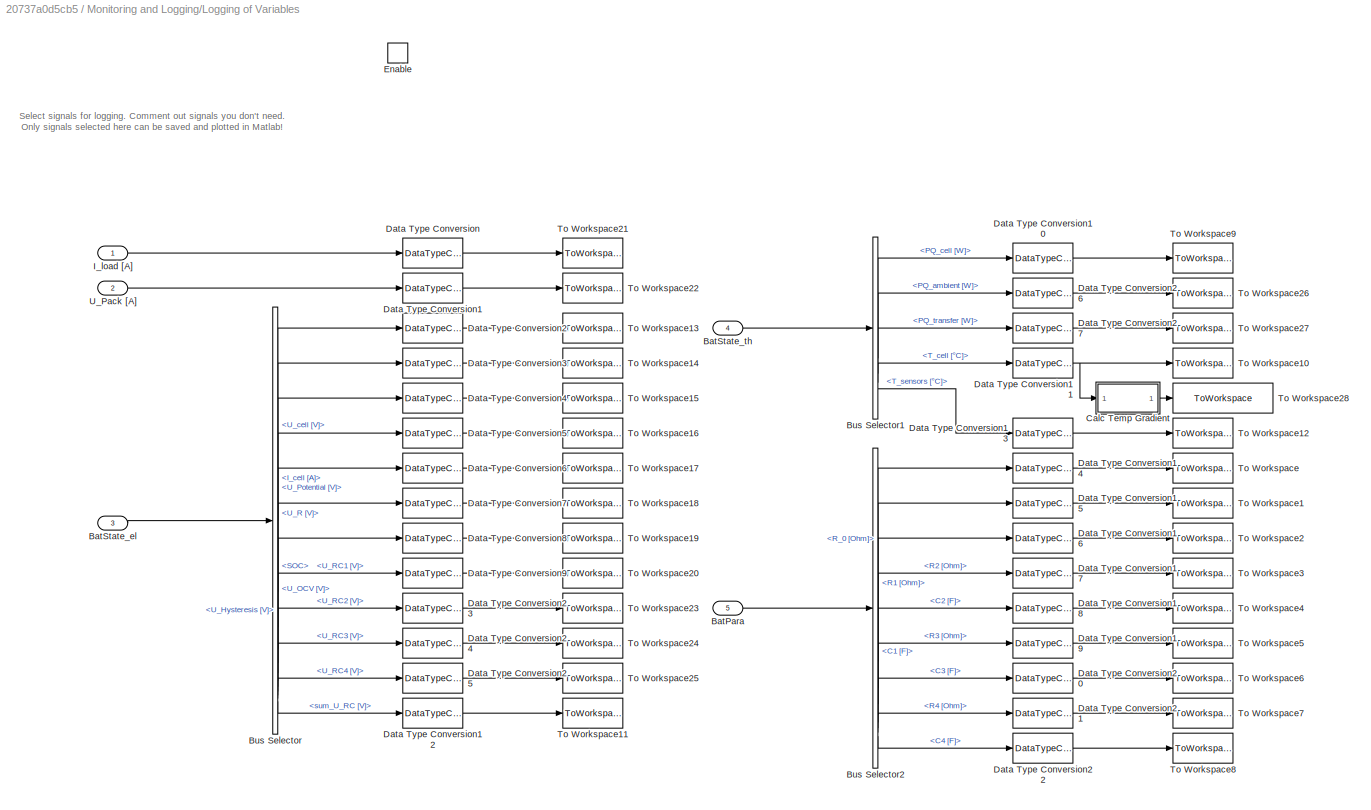
BLOCK [SubSystem] Monitoring and Logging/Logging of Variables
BLOCK [Inport] Monitoring and Logging/Logging of Variables/BatPara
  Port = 5
BLOCK [Inport] Monitoring and Logging/Logging of Variables/BatState_el
  Port = 3
BLOCK [Inport] Monitoring and Logging/Logging of Variables/BatState_th
  Port = 4
BLOCK [BusSelector] Monitoring and Logging/Logging of Variables/Bus Selector
  OutputSignals = U_cell [V],I_cell [A],U_R [V],U_Potential [V],SOC,U_OCV [V],U_Hysteresis [V],U_RC [V].U_RC1 [V],U_RC [V].U_RC2 [V],U_RC [V].U_RC3 [V],U_RC [V].U_RC4 [V],U_RC [V].sum_U_RC [V]
BLOCK [BusSelector] Monitoring and Logging/Logging of Variables/Bus Selector1
  OutputSignals = PQ_cell [W],PQ_ambient [W],PQ_transfer [W],T_cell [°C],T_sensors [°C]
BLOCK [BusSelector] Monitoring and Logging/Logging of Variables/Bus Selector2
  OutputSignals = electrical.R_0 [Ohm],electrical.R1 [Ohm],electrical.C1 [F],electrical.R2 [Ohm],electrical.C2 [F],electrical.R3 [Ohm],electrical.C3 [F],electrical.R4 [Ohm],electrical.C4 [F]
BLOCK [SubSystem] Monitoring and Logging/Logging of Variables/Calc Temp Gradient
  ShowPortLabels = none
BLOCK [Abs] Monitoring and Logging/Logging of Variables/Calc Temp Gradient/Abs
  SaturateOnIntegerOverflow = off
BLOCK [Sum] Monitoring and Logging/Logging of Variables/Calc Temp Gradient/Add
  IconShape = rectangular
  Inputs = -+
BLOCK [MinMax] Monitoring and Logging/Logging of Variables/Calc Temp Gradient/MinMax
BLOCK [MinMax] Monitoring and Logging/Logging of Variables/Calc Temp Gradient/MinMax1
  Function = max
BLOCK [Reshape] Monitoring and Logging/Logging of Variables/Calc Temp Gradient/Reshape
BLOCK [Inport] Monitoring and Logging/Logging of Variables/Calc Temp Gradient/T_cell
BLOCK [Outport] Monitoring and Logging/Logging of Variables/Calc Temp Gradient/T_cell_gradient
  VectorParamsAs1DForOutWhenUnconnected = off
BLOCK [DataTypeConversion] Monitoring and Logging/Logging of Variables/Data Type Conversion
  OutDataTypeStr = SimPara.OutputDataType
  RndMeth = Floor
  SaturateOnIntegerOverflow = off
BLOCK [DataTypeConversion] Monitoring and Logging/Logging of Variables/Data Type Conversion1
  OutDataTypeStr = SimPara.OutputDataType
  RndMeth = Floor
  SaturateOnIntegerOverflow = off
BLOCK [DataTypeConversion] Monitoring and Logging/Logging of Variables/Data Type Conversion10
  OutDataTypeStr = SimPara.OutputDataType
  RndMeth = Floor
  SaturateOnIntegerOverflow = off
BLOCK [DataTypeConversion] Monitoring and Logging/Logging of Variables/Data Type Conversion11
  OutDataTypeStr = SimPara.OutputDataType
  RndMeth = Floor
  SaturateOnIntegerOverflow = off
BLOCK [DataTypeConversion] Monitoring and Logging/Logging of Variables/Data Type Conversion12
  OutDataTypeStr = SimPara.OutputDataType
  RndMeth = Floor
  SaturateOnIntegerOverflow = off
BLOCK [DataTypeConversion] Monitoring and Logging/Logging of Variables/Data Type Conversion13
  OutDataTypeStr = SimPara.OutputDataType
  RndMeth = Floor
  SaturateOnIntegerOverflow = off
BLOCK [DataTypeConversion] Monitoring and Logging/Logging of Variables/Data Type Conversion14
  OutDataTypeStr = SimPara.OutputDataType
  RndMeth = Floor
  SaturateOnIntegerOverflow = off
BLOCK [DataTypeConversion] Monitoring and Logging/Logging of Variables/Data Type Conversion15
  OutDataTypeStr = SimPara.OutputDataType
  RndMeth = Floor
  SaturateOnIntegerOverflow = off
BLOCK [DataTypeConversion] Monitoring and Logging/Logging of Variables/Data Type Conversion16
  OutDataTypeStr = SimPara.OutputDataType
  RndMeth = Floor
  SaturateOnIntegerOverflow = off
BLOCK [DataTypeConversion] Monitoring and Logging/Logging of Variables/Data Type Conversion17
  OutDataTypeStr = SimPara.OutputDataType
  RndMeth = Floor
  SaturateOnIntegerOverflow = off
BLOCK [DataTypeConversion] Monitoring and Logging/Logging of Variables/Data Type Conversion18
  OutDataTypeStr = SimPara.OutputDataType
  RndMeth = Floor
  SaturateOnIntegerOverflow = off
BLOCK [DataTypeConversion] Monitoring and Logging/Logging of Variables/Data Type Conversion19
  OutDataTypeStr = SimPara.OutputDataType
  RndMeth = Floor
  SaturateOnIntegerOverflow = off
BLOCK [DataTypeConversion] Monitoring and Logging/Logging of Variables/Data Type Conversion2
  OutDataTypeStr = SimPara.OutputDataType
  RndMeth = Floor
  SaturateOnIntegerOverflow = off
BLOCK [DataTypeConversion] Monitoring and Logging/Logging of Variables/Data Type Conversion20
  OutDataTypeStr = SimPara.OutputDataType
  RndMeth = Floor
  SaturateOnIntegerOverflow = off
BLOCK [DataTypeConversion] Monitoring and Logging/Logging of Variables/Data Type Conversion21
  OutDataTypeStr = SimPara.OutputDataType
  RndMeth = Floor
  SaturateOnIntegerOverflow = off
BLOCK [DataTypeConversion] Monitoring and Logging/Logging of Variables/Data Type Conversion22
  OutDataTypeStr = SimPara.OutputDataType
  RndMeth = Floor
  SaturateOnIntegerOverflow = off
BLOCK [DataTypeConversion] Monitoring and Logging/Logging of Variables/Data Type Conversion23
  OutDataTypeStr = SimPara.OutputDataType
  RndMeth = Floor
  SaturateOnIntegerOverflow = off
BLOCK [DataTypeConversion] Monitoring and Logging/Logging of Variables/Data Type Conversion24
  OutDataTypeStr = SimPara.OutputDataType
  RndMeth = Floor
  SaturateOnIntegerOverflow = off
BLOCK [DataTypeConversion] Monitoring and Logging/Logging of Variables/Data Type Conversion25
  OutDataTypeStr = SimPara.OutputDataType
  RndMeth = Floor
  SaturateOnIntegerOverflow = off
BLOCK [DataTypeConversion] Monitoring and Logging/Logging of Variables/Data Type Conversion26
  OutDataTypeStr = SimPara.OutputDataType
  RndMeth = Floor
  SaturateOnIntegerOverflow = off
BLOCK [DataTypeConversion] Monitoring and Logging/Logging of Variables/Data Type Conversion27
  OutDataTypeStr = SimPara.OutputDataType
  RndMeth = Floor
  SaturateOnIntegerOverflow = off
BLOCK [DataTypeConversion] Monitoring and Logging/Logging of Variables/Data Type Conversion3
  OutDataTypeStr = SimPara.OutputDataType
  RndMeth = Floor
  SaturateOnIntegerOverflow = off
BLOCK [DataTypeConversion] Monitoring and Logging/Logging of Variables/Data Type Conversion4
  OutDataTypeStr = SimPara.OutputDataType
  RndMeth = Floor
  SaturateOnIntegerOverflow = off
BLOCK [DataTypeConversion] Monitoring and Logging/Logging of Variables/Data Type Conversion5
  OutDataTypeStr = SimPara.OutputDataType
  RndMeth = Floor
  SaturateOnIntegerOverflow = off
BLOCK [DataTypeConversion] Monitoring and Logging/Logging of Variables/Data Type Conversion6
  OutDataTypeStr = SimPara.OutputDataType
  RndMeth = Floor
  SaturateOnIntegerOverflow = off
BLOCK [DataTypeConversion] Monitoring and Logging/Logging of Variables/Data Type Conversion7
  OutDataTypeStr = SimPara.OutputDataType
  RndMeth = Floor
  SaturateOnIntegerOverflow = off
BLOCK [DataTypeConversion] Monitoring and Logging/Logging of Variables/Data Type Conversion8
  OutDataTypeStr = SimPara.OutputDataType
  RndMeth = Floor
  SaturateOnIntegerOverflow = off
BLOCK [DataTypeConversion] Monitoring and Logging/Logging of Variables/Data Type Conversion9
  OutDataTypeStr = SimPara.OutputDataType
  RndMeth = Floor
  SaturateOnIntegerOverflow = off
BLOCK [EnablePort] Monitoring and Logging/Logging of Variables/Enable
BLOCK [Inport] Monitoring and Logging/Logging of Variables/I_load [A]
BLOCK [ToWorkspace] Monitoring and Logging/Logging of Variables/To Workspace
  Commented = on
  Decimation = SimPara.OutputDecimation
  FixptAsFi = on
  MaxDataPoints = inf
  SampleTime = -1
  SaveFormat = Timeseries
  VariableName = R_0
BLOCK [ToWorkspace] Monitoring and Logging/Logging of Variables/To Workspace1
  Commented = on
  Decimation = SimPara.OutputDecimation
  FixptAsFi = on
  MaxDataPoints = inf
  SampleTime = -1
  SaveFormat = Timeseries
  VariableName = R1
BLOCK [ToWorkspace] Monitoring and Logging/Logging of Variables/To Workspace10
  Decimation = SimPara.OutputDecimation
  FixptAsFi = on
  MaxDataPoints = inf
  SampleTime = -1
  SaveFormat = Timeseries
  VariableName = T_cell
BLOCK [ToWorkspace] Monitoring and Logging/Logging of Variables/To Workspace11
  Commented = on
  Decimation = SimPara.OutputDecimation
  FixptAsFi = on
  MaxDataPoints = inf
  SampleTime = -1
  SaveFormat = Timeseries
  VariableName = sum_U_RC
BLOCK [ToWorkspace] Monitoring and Logging/Logging of Variables/To Workspace12
  Commented = on
  Decimation = SimPara.OutputDecimation
  FixptAsFi = on
  MaxDataPoints = inf
  SampleTime = -1
  SaveFormat = Timeseries
  VariableName = T_sensors
BLOCK [ToWorkspace] Monitoring and Logging/Logging of Variables/To Workspace13
  Decimation = SimPara.OutputDecimation
  FixptAsFi = on
  MaxDataPoints = inf
  SampleTime = -1
  SaveFormat = Timeseries
  VariableName = U_cell
BLOCK [ToWorkspace] Monitoring and Logging/Logging of Variables/To Workspace14
  Decimation = SimPara.OutputDecimation
  FixptAsFi = on
  MaxDataPoints = inf
  SampleTime = -1
  SaveFormat = Timeseries
  VariableName = I_cell
BLOCK [ToWorkspace] Monitoring and Logging/Logging of Variables/To Workspace15
  Commented = on
  Decimation = SimPara.OutputDecimation
  FixptAsFi = on
  MaxDataPoints = inf
  SampleTime = -1
  SaveFormat = Timeseries
  VariableName = U_R
BLOCK [ToWorkspace] Monitoring and Logging/Logging of Variables/To Workspace16
  Commented = on
  Decimation = SimPara.OutputDecimation
  FixptAsFi = on
  MaxDataPoints = inf
  SampleTime = -1
  SaveFormat = Timeseries
  VariableName = U_Potential
BLOCK [ToWorkspace] Monitoring and Logging/Logging of Variables/To Workspace17
  Decimation = SimPara.OutputDecimation
  FixptAsFi = on
  MaxDataPoints = inf
  SampleTime = -1
  SaveFormat = Timeseries
  VariableName = SOC
BLOCK [ToWorkspace] Monitoring and Logging/Logging of Variables/To Workspace18
  Commented = on
  Decimation = SimPara.OutputDecimation
  FixptAsFi = on
  MaxDataPoints = inf
  SampleTime = -1
  SaveFormat = Timeseries
  VariableName = U_OCV
BLOCK [ToWorkspace] Monitoring and Logging/Logging of Variables/To Workspace19
  Commented = on
  Decimation = SimPara.OutputDecimation
  FixptAsFi = on
  MaxDataPoints = inf
  SampleTime = -1
  SaveFormat = Timeseries
  VariableName = U_Hysteresis
BLOCK [ToWorkspace] Monitoring and Logging/Logging of Variables/To Workspace2
  Commented = on
  Decimation = SimPara.OutputDecimation
  FixptAsFi = on
  MaxDataPoints = inf
  SampleTime = -1
  SaveFormat = Timeseries
  VariableName = C1
BLOCK [ToWorkspace] Monitoring and Logging/Logging of Variables/To Workspace20
  Commented = on
  Decimation = SimPara.OutputDecimation
  FixptAsFi = on
  MaxDataPoints = inf
  SampleTime = -1
  SaveFormat = Timeseries
  VariableName = U_RC1
BLOCK [ToWorkspace] Monitoring and Logging/Logging of Variables/To Workspace21
  Decimation = SimPara.OutputDecimation
  FixptAsFi = on
  MaxDataPoints = inf
  SampleTime = -1
  SaveFormat = Timeseries
  VariableName = I_load
BLOCK [ToWorkspace] Monitoring and Logging/Logging of Variables/To Workspace22
  Decimation = SimPara.OutputDecimation
  FixptAsFi = on
  MaxDataPoints = inf
  SampleTime = -1
  SaveFormat = Timeseries
  VariableName = U_Pack
BLOCK [ToWorkspace] Monitoring and Logging/Logging of Variables/To Workspace23
  Commented = on
  Decimation = SimPara.OutputDecimation
  FixptAsFi = on
  MaxDataPoints = inf
  SampleTime = -1
  SaveFormat = Timeseries
  VariableName = U_RC2
BLOCK [ToWorkspace] Monitoring and Logging/Logging of Variables/To Workspace24
  Commented = on
  Decimation = SimPara.OutputDecimation
  FixptAsFi = on
  MaxDataPoints = inf
  SampleTime = -1
  SaveFormat = Timeseries
  VariableName = U_RC3
BLOCK [ToWorkspace] Monitoring and Logging/Logging of Variables/To Workspace25
  Commented = on
  Decimation = SimPara.OutputDecimation
  FixptAsFi = on
  MaxDataPoints = inf
  SampleTime = -1
  SaveFormat = Timeseries
  VariableName = U_RC4
BLOCK [ToWorkspace] Monitoring and Logging/Logging of Variables/To Workspace26
  Commented = on
  Decimation = SimPara.OutputDecimation
  FixptAsFi = on
  MaxDataPoints = inf
  SampleTime = -1
  SaveFormat = Timeseries
  VariableName = PQ_ambient
BLOCK [ToWorkspace] Monitoring and Logging/Logging of Variables/To Workspace27
  Commented = on
  Decimation = SimPara.OutputDecimation
  FixptAsFi = on
  MaxDataPoints = inf
  SampleTime = -1
  SaveFormat = Timeseries
  VariableName = PQ_transfer
BLOCK [ToWorkspace] Monitoring and Logging/Logging of Variables/To Workspace28
  Decimation = SimPara.OutputDecimation
  FixptAsFi = on
  MaxDataPoints = inf
  SampleTime = -1
  SaveFormat = Timeseries
  VariableName = T_cell_gradient
BLOCK [ToWorkspace] Monitoring and Logging/Logging of Variables/To Workspace3
  Commented = on
  Decimation = SimPara.OutputDecimation
  FixptAsFi = on
  MaxDataPoints = inf
  SampleTime = -1
  SaveFormat = Timeseries
  VariableName = R2
BLOCK [ToWorkspace] Monitoring and Logging/Logging of Variables/To Workspace4
  Commented = on
  Decimation = SimPara.OutputDecimation
  FixptAsFi = on
  MaxDataPoints = inf
  SampleTime = -1
  SaveFormat = Timeseries
  VariableName = C2
BLOCK [ToWorkspace] Monitoring and Logging/Logging of Variables/To Workspace5
  Commented = on
  Decimation = SimPara.OutputDecimation
  FixptAsFi = on
  MaxDataPoints = inf
  SampleTime = -1
  SaveFormat = Timeseries
  VariableName = R3
BLOCK [ToWorkspace] Monitoring and Logging/Logging of Variables/To Workspace6
  Commented = on
  Decimation = SimPara.OutputDecimation
  FixptAsFi = on
  MaxDataPoints = inf
  SampleTime = -1
  SaveFormat = Timeseries
  VariableName = C3
BLOCK [ToWorkspace] Monitoring and Logging/Logging of Variables/To Workspace7
  Commented = on
  Decimation = SimPara.OutputDecimation
  FixptAsFi = on
  MaxDataPoints = inf
  SampleTime = -1
  SaveFormat = Timeseries
  VariableName = R4
BLOCK [ToWorkspace] Monitoring and Logging/Logging of Variables/To Workspace8
  Commented = on
  Decimation = SimPara.OutputDecimation
  FixptAsFi = on
  MaxDataPoints = inf
  SampleTime = -1
  SaveFormat = Timeseries
  VariableName = C4
BLOCK [ToWorkspace] Monitoring and Logging/Logging of Variables/To Workspace9
  Commented = on
  Decimation = SimPara.OutputDecimation
  FixptAsFi = on
  MaxDataPoints = inf
  SampleTime = -1
  SaveFormat = Timeseries
  VariableName = PQ_cell
BLOCK [Inport] Monitoring and Logging/Logging of Variables/U_Pack [A]
  Port = 2
BLOCK [SubSystem] Monitoring and Logging/Temperature Sensor Simulation
BLOCK [BusSelector] Monitoring and Logging/Temperature Sensor Simulation/Bus Selector
  OutputSignals = T_cell [°C]
BLOCK [SubSystem] Monitoring and Logging/Temperature Sensor Simulation/Enable//disable temperature sensors
  Variant = on
BLOCK [Inport] Monitoring and Logging/Temperature Sensor Simulation/Enable//disable temperature sensors/T_cell
BLOCK [Outport] Monitoring and Logging/Temperature Sensor Simulation/Enable//disable temperature sensors/T_sensors [°C]
  VectorParamsAs1DForOutWhenUnconnected = off
BLOCK [SubSystem] Monitoring and Logging/Temperature Sensor Simulation/Enable//disable temperature sensors/TempSensors OFF
  VariantControl = SimPara.TempSensors_enable==0
BLOCK [Constant] Monitoring and Logging/Temperature Sensor Simulation/Enable//disable temperature sensors/TempSensors OFF/Constant
  OutDataTypeStr = boolean
  Value = 0
BLOCK [Inport] Monitoring and Logging/Temperature Sensor Simulation/Enable//disable temperature sensors/TempSensors OFF/T_cell
BLOCK [Outport] Monitoring and Logging/Temperature Sensor Simulation/Enable//disable temperature sensors/TempSensors OFF/T_sensors [°C]
  VectorParamsAs1DForOutWhenUnconnected = off
BLOCK [Terminator] Monitoring and Logging/Temperature Sensor Simulation/Enable//disable temperature sensors/TempSensors OFF/Terminator
BLOCK [SubSystem] Monitoring and Logging/Temperature Sensor Simulation/Enable//disable temperature sensors/TempSensors ON
  VariantControl = SimPara.TempSensors_enable==1
BLOCK [SubSystem] Monitoring and Logging/Temperature Sensor Simulation/Enable//disable temperature sensors/TempSensors ON/Iterate through the sensors
  TreatAsAtomicUnit = on
BLOCK [Assignment] Monitoring and Logging/Temperature Sensor Simulation/Enable//disable temperature sensors/TempSensors ON/Iterate through the sensors/Assignment
  DiagnosticForDimensions = Warning
  IndexOptions = Index vector (port)
  Indices = Sensor1
  OutputSizes = 1
BLOCK [Constant] Monitoring and Logging/Temperature Sensor Simulation/Enable//disable temperature sensors/TempSensors ON/Iterate through the sensors/Constant
  Value = SysPara.thermal.sensors.sensor_mat
  VectorParams1D = off
BLOCK [Find] Monitoring and Logging/Temperature Sensor Simulation/Enable//disable temperature sensors/TempSensors ON/Iterate through the sensors/Find Nonzero Elements
  IndexMode = Zero-based
  NumberOfInputDimensions = 3
  ShowOutputForNonzeroInputValues = on
BLOCK [ForIterator] Monitoring and Logging/Temperature Sensor Simulation/Enable//disable temperature sensors/TempSensors ON/Iterate through the sensors/For Iterator
  IterationLimit = size(SysPara.thermal.sensors.sensor_mat,1)
BLOCK [Reference] Monitoring and Logging/Temperature Sensor Simulation/Enable//disable temperature sensors/TempSensors ON/Iterate through the sensors/Mean  REF=dspstat3/Mean
  SourceBlock = dspstat3/Mean
  SourceType = Mean
  UserDataPersistent = on
BLOCK [Memory] Monitoring and Logging/Temperature Sensor Simulation/Enable//disable temperature sensors/TempSensors ON/Iterate through the sensors/Memory
  InheritSampleTime = on
  InitialCondition = zeros(size(SysPara.thermal.sensors.sensor_mat,1),1)
BLOCK [Selector] Monitoring and Logging/Temperature Sensor Simulation/Enable//disable temperature sensors/TempSensors ON/Iterate through the sensors/Selector1
  IndexOptions = Index vector (port),Select all
  Indices = A(i),1
  InputPortWidth = sn
  NumberOfDimensions = 2
  OutputSizes = 1,1
BLOCK [Selector] Monitoring and Logging/Temperature Sensor Simulation/Enable//disable temperature sensors/TempSensors ON/Iterate through the sensors/Selector2
  IndexOptions = Index vector (port)
  Indices = [1 3]
  InputPortWidth = SysPara.p * SysPara.s
  OutputSizes = 1
BLOCK [Inport] Monitoring and Logging/Temperature Sensor Simulation/Enable//disable temperature sensors/TempSensors ON/Iterate through the sensors/T_cells_vec
BLOCK [Outport] Monitoring and Logging/Temperature Sensor Simulation/Enable//disable temperature sensors/TempSensors ON/Iterate through the sensors/T_sensors [°C]
  VectorParamsAs1DForOutWhenUnconnected = off
BLOCK [Terminator] Monitoring and Logging/Temperature Sensor Simulation/Enable//disable temperature sensors/TempSensors ON/Iterate through the sensors/Terminator
BLOCK [Reshape] Monitoring and Logging/Temperature Sensor Simulation/Enable//disable temperature sensors/TempSensors ON/Matrix to vector
  OutputDimensionality = Column vector (2-D)
BLOCK [Inport] Monitoring and Logging/Temperature Sensor Simulation/Enable//disable temperature sensors/TempSensors ON/T_cell
BLOCK [Outport] Monitoring and Logging/Temperature Sensor Simulation/Enable//disable temperature sensors/TempSensors ON/T_sensors [°C]
  VectorParamsAs1DForOutWhenUnconnected = off
BLOCK [SubSystem] Monitoring and Logging/Temperature Sensor Simulation/Rebuild bus structure
BLOCK [Inport] Monitoring and Logging/Temperature Sensor Simulation/Rebuild bus structure/Bat_state_th_in
  Port = 2
BLOCK [BusCreator] Monitoring and Logging/Temperature Sensor Simulation/Rebuild bus structure/Bus Creator1
  DisplayOption = bar
  InheritFromInputs = on
  Inputs = 7
BLOCK [BusSelector] Monitoring and Logging/Temperature Sensor Simulation/Rebuild bus structure/Bus Selector1
  OutputSignals = PQ_cell [W],T_cell [°C],T_cell_ambient,alpha_cell_ambient,PQ_ambient [W],PQ_transfer [W]
BLOCK [Inport] Monitoring and Logging/Temperature Sensor Simulation/Rebuild bus structure/T_sensors
BLOCK [Outport] Monitoring and Logging/Temperature Sensor Simulation/Rebuild bus structure/bat_state_th_out
  VectorParamsAs1DForOutWhenUnconnected = off
BLOCK [Inport] Monitoring and Logging/Temperature Sensor Simulation/bat_state_th_in
BLOCK [Outport] Monitoring and Logging/Temperature Sensor Simulation/bat_state_th_out
  VectorParamsAs1DForOutWhenUnconnected = off
BLOCK [Inport] Monitoring and Logging/U_Pack [V]
  Port = 2
BLOCK [Outport] Outport
BLOCK [Outport] Outport1
  Port = 2
BLOCK [Selector] Selector
  IndexOptions = Index vector (dialog),Index vector (dialog)
  Indices = 1:SysPara.p,1:SysPara.s
  InputPortWidth = 3
  NumberOfDimensions = 2
  OutputSizes = 1,1
BLOCK [Selector] Selector1
  IndexOptions = Index vector (dialog),Index vector (dialog)
  Indices = 1:SysPara.p,1:SysPara.s
  InputPortWidth = 3
  NumberOfDimensions = 2
  OutputSizes = 1,1
BLOCK [ToWorkspace] To Workspace12
  Decimation = SimPara.OutputDecimation
  FixptAsFi = on
  MaxDataPoints = inf
  SampleTime = -1
  SaveFormat = Timeseries
  VariableName = T_BTMS_out_max
ANNOTATION (root): Battery system simulation. Refer to https://github.com/TUMFTM/sim_battery_system for further information on this model. Model version: 2019-09-02
ANNOTATION (root): Log max output temp of cooling channels
ANNOTATION 		      Simulation completion in %	: Determine simulation completion
ANNOTATION Battery system simulation/Electrical Submodel: Delay resulting balancing current for one step to avoid algebraic loop
ANNOTATION Battery system simulation/Electrical Submodel/Cell Balancing: -> Da zu einem Auswertungszeitpunkt das Stattfinden von Balancing auf Basis der Klemmenspannungen der Zellen bestimmt wird und die Balancing-Ströme der Zellen ebenfalls über deren Klemmenspannungen berechnet werden, können bei Balancing-Auftritt diese Balancing-Ströme erst zum nächsten Auswertungszeitpunkt für die Berechnung der neuen Klemmenspannungen und Strombelastungen der Zellen verwendet wer...<+87ch>
ANNOTATION Battery system simulation/Electrical Submodel/Cell Balancing: Simple dissipative balancing. Attention: For maximum flexibility of the model it is assumed every cell has it's own balancing resistor. Of course, in a parallel connection the equalisation effects allow the cells to share one balancing resistor. Therefore, a parallel connection of 5 cells with a balancing resistor of 33 Ohm would be set up like this: SysPara.Balancing.R = 33/5
ANNOTATION Battery system simulation/Electrical Submodel/Cell Balancing: The lowest terminal voltage of all cells in the battery pack always serves as reference. à If the voltage difference between the terminal voltage of a cell and the reference voltage is greater than Balancing.U_Delta, this cell is connected to its balancing resistor. à Condition for balancing: U_cell - reference voltage > Balancing.U_Delta à It is not enough, if the voltage difference is equal to B...<+183ch>
ANNOTATION Battery system simulation/Electrical Submodel/Cell Balancing: Condition 1: Terminal voltages of all cells in the battery pack >= Balancing.U_Limit
ANNOTATION Battery system simulation/Electrical Submodel/Cell Balancing: Condition 2: Amount of the external current load of the battery pack <= Balancing.I_Limit
ANNOTATION Battery system simulation/Electrical Submodel/Cell Balancing: Condition 3: Simulation time >= Balancing.t_Start
ANNOTATION Battery system simulation/Electrical Submodel/Cell Balancing: Determination of the balancing currents of the cells: à The balancing current is the current that loads the cell when the balancing resistor is switched on. à Calculation via the terminal voltages of the cells and via the balancing resistances of the cells using Ohm's law à A negative sign must be considered in the equation because the balancing current discharges a cell and currents are defined n...<+89ch>
ANNOTATION Battery system simulation/Electrical Submodel/Cell Balancing: The balancing function is only active if the following three conditions are met:
ANNOTATION Battery system simulation/Electrical Submodel/Electric potential (single cell): Determination of the electric cell potential: U_Potential = U_SOC + U_Hysteresis + U_RC1 + U_RC2 + U_RC3 + U_RC4 This is a standard equivalent circuit model with 4RC elements. The only thing missing is the ohmic voltage drop from the cells' internal resistance. At this state, however we haven't considered the effects from the parallel connection so we don't know the individual cell current and the...<+274ch>
ANNOTATION Battery system simulation/Electrical Submodel/Electric potential (single cell)/Cell Hysteresis Voltage: Zugrunde liegende Formel aus "Verbrugge, 2007 - Adaptive, multi-parameter battery state estimator with optimized time weighting factors"
ANNOTATION Battery system simulation/Electrical Submodel/Electric potential (single cell)/Cell Hysteresis Voltage: Wenn kein Hysteresemodell verwendet werden soll beta = 0 setzen
ANNOTATION Battery system simulation/Electrical Submodel/Ohmic voltage drop and compensating currents in parallel connections: Now it gets complicated… In this step the cells are connected in serial and parallel and the current distribution in the parallel connection as well as the compensating currents are calculated. The calculation makes heavy use of the matrix structure of the signals so many things happen at ones. Here follows a shot summary of what happens here. Steps for determining the terminal voltages and curren...<+4323ch>
ANNOTATION Battery system simulation/Electrical Submodel/Voltage of battery system: Determination of the terminal voltage of the battery pack: 1. Interconnection mechanism of the cells: Cells are first connected in parallel to a group à parallel cell groups are then connected in series 2. Terminal voltage of a parallel cell network corresponds to the individual terminal voltages of the cells in this network. 3. The total voltage of a serial circuit is the sum of its individual vo...<+138ch>
ANNOTATION Battery system simulation/Save BatState_el of last time-step: Delay system state variables by one step to avoid algebraic loop. We need these for the parameter lookup-tables
ANNOTATION Battery system simulation/Save BatState_th of last time-step: Delay system state variables by one step to avoid algebraic loop. We need these for the parameter lookup-tables
ANNOTATION Battery system simulation/Static and dynamic LIB parameters/LIB Parameter Look-Ups: Determination of the current BatPara cell parameter set, dependent on SOC, C-Rate and Temperature of every individual cell of the battery system.
ANNOTATION Battery system simulation/Static and dynamic LIB parameters/LIB Parameter Look-Ups: RC-Element 1
ANNOTATION Battery system simulation/Static and dynamic LIB parameters/LIB Parameter Look-Ups: RC-Element 2
ANNOTATION Battery system simulation/Static and dynamic LIB parameters/LIB Parameter Look-Ups: RC-Element 3
ANNOTATION Battery system simulation/Static and dynamic LIB parameters/LIB Parameter Look-Ups: RC-Element 4
ANNOTATION Battery system simulation/Static and dynamic LIB parameters/Statistic Cell Deviations: C_A is assumed as constant, therefore no calculation is required during runtime. DeviationMap is applied in the Subsystem "LIB Parameter Look-Ups"
ANNOTATION Battery system simulation/Static and dynamic LIB parameters/Statistic Cell Deviations: In this subsystem the statistical cell deviations are applied. Everything that depends on cell states and therefore is derived from lookup-tables during runtime must be altered during runtime (to avoid huge multidimensional cell structures) and therefore gets altered using gain blocks. The thermal parameters (and C_A) are assumed as constant during the simulation, therefore require no lookup-table...<+63ch>
ANNOTATION Battery system simulation/Thermal Submodel: Total cell heat generation: PQ_cell = PQ_cell,irr + PQ_cell,rev
ANNOTATION Battery system simulation/Thermal Submodel/Cell heat transport and heat dissipation/Heat dissipation model: Determination of the heat fluxes between the cells and their environments: à No heat exchange between adjacent cells in the battery pack (optionally done in subsystem 'Heat transfer between cells') à Each individual cell is independently viewed and has its own environmental temperature and heat transfer coefficient to the environment (defined by model input 'BTMS_input' at the top level of the mod...<+136ch>
ANNOTATION Battery system simulation/Thermal Submodel/Cell heat transport and heat dissipation/Heat transfer between cells: Variants: - Heat transfer model switched OFF: No heat transfer between cells, PQ_transfer is always 0 - Heat transfer model switched OFF: Heat transfer between cells is simulated and a heat flux from/to every cell is computed.
ANNOTATION Battery system simulation/Thermal Submodel/Cell heat transport and heat dissipation/Heat transfer between cells/Heat transfer model switched OFF: Heat transfer model switched off. No heat transfer.
ANNOTATION Battery system simulation/Thermal Submodel/Cell heat transport and heat dissipation/Heat transfer between cells/Heat transfer model switched ON: Calculate the heat transfer between cells: - Cells exchange heat via a heat transfer coefficient. - Those are defined in the matrix K_transfer -Example for cell 1 exchanging heat will cell i: PQ_lambda_cell = sum((T_i-T_1)/K_transfer(i,1))
ANNOTATION Battery system simulation/Thermal Submodel/Cell heat transport and heat dissipation/Heat transfer between cells/Heat transfer model switched ON: Column vector --> Matrix
ANNOTATION Battery system simulation/Thermal Submodel/Cell heat transport and heat dissipation/Heat transfer between cells/Heat transfer model switched ON: Matrix --> column vector
ANNOTATION Battery system simulation/Thermal Submodel/Cell heat transport and heat dissipation/Heat transfer between cells/Heat transfer model switched ON: PQ_lambda = K_transfer * T_cell_in
ANNOTATION Battery system simulation/Thermal Submodel/Cell heat transport and heat dissipation/Lumped mass thermal cell model: Determination of the heat outputs which allow a temperature change of the cells: à Sum of the individual heat outputs or flows for each cell à The "Unit Delay" allows the heat outputs of the cells to be viewed from the previous evaluation time. à By subtracting the temperatures of the cells from their ambient temperatures, the heat flows between the cells and their environments are properly define...<+71ch>
ANNOTATION Battery system simulation/Thermal Submodel/Cell heat transport and heat dissipation/Lumped mass thermal cell model: Determination of the cell temperatures at the current evaluation time: à Q_Temperature result in current temperature changes of the cells compared to the previous evaluation time. Q_Temperature = m * c * (T_cell - T_cell*) à T_cell = Q_Temperature / (m * c) + T_cell*
ANNOTATION Battery system simulation/Thermal Submodel/Cell heat transport and heat dissipation/Lumped mass thermal cell model: Determination of the quantities of heat that allow the temperature of the cells to change: à Heat quantity is integral of the heat output over time. à Assumption that the heat outputs, which enable a temperature change of the cells, remain constant from the previous evaluation time until the current evaluation time. à dt is time difference between two evaluations Q_Temperature = PQ_Temperature* * ...<+2ch>
ANNOTATION Battery system simulation/Thermal Submodel/Irreversible heat generation: Calculation of ohmic/irreversible heat losses: -> Equation PQ_Cells,irr = R_Cells,total * I_Cells^2 -> R_Cells is the sum of all voltage drops in the cell (internal resistance and RC-Elements)
ANNOTATION Battery system simulation/Thermal Submodel/Reversible heat generation: Calculation of reversible heat losses in the cells PQ_Cells,rev = - I_cell * T_cell * (dUocv/dT_cell) = - I_cell * T_cell * EnCo Eddahech et al., 2013 - Thermal characterization of a high-power lithium-ion battery
ANNOTATION Create BTMS input/BTMS constant temp: BTMS simulation switched off, assuming constand ambient cell temperatures and heat transfer coefficients.
ANNOTATION Create BTMS input/BTMS fluid simulation: Use T_cell of last time-step to avoid algebraic loop
ANNOTATION Fast-charging control: Current reduction step if max voltage is reached
ANNOTATION Fast-charging control: Detection of fully charged battery
ANNOTATION Fast-charging control: Overcharge-Protection
ANNOTATION Monitoring and Logging/Load Spectrum Analysis/Load Spectrum Analysis ON/Load Spectrum Analysis ON: Comment out LSA combination you don't need. Create new ones by using one of the subsystems (one, two, three parametric) as template. The subsystems are defined as masks and it's therefore quite easy to adapt them to new parameters. Note: - The LSA is performed for every single cell individually ! - Especially two and tree parametric LSA has a quite significant impact on comptutation time for large...<+153ch>
ANNOTATION Monitoring and Logging/Load Spectrum Analysis/Load Spectrum Analysis ON/Load Spectrum Analysis ON: Load spectrum analysis of battery system data. Refer to the following paper for further information: https://www.researchgate.net/publication/328637924_Characterization_and_Concept_Validation_of_Lithium-Ion_Batteries_in_Automotive_Applications_by_Load_Spectrum_Analysis Go to the file \parameters\LSA_parameters.m for further settings
ANNOTATION Monitoring and Logging/Load Spectrum Analysis/Load Spectrum Analysis ON/Load Spectrum Analysis ON: One parametric LSA
ANNOTATION Monitoring and Logging/Load Spectrum Analysis/Load Spectrum Analysis ON/Load Spectrum Analysis ON: Three parametric LSA
ANNOTATION Monitoring and Logging/Load Spectrum Analysis/Load Spectrum Analysis ON/Load Spectrum Analysis ON: Two parametric LSA
ANNOTATION Monitoring and Logging/Load Spectrum Analysis/Load Spectrum Analysis ON/Load Spectrum Analysis ON/3-parametrische Momentanwertzählung SOC, T_Cells, CRate/For Iterator val1: LSA of first value
ANNOTATION Monitoring and Logging/Load Spectrum Analysis/Load Spectrum Analysis ON/Load Spectrum Analysis ON/3-parametrische Momentanwertzählung SOC, T_Cells, CRate/For Iterator val1: Compare signal and bin borders. Count values on border limits to the next higher border
ANNOTATION Monitoring and Logging/Load Spectrum Analysis/Load Spectrum Analysis ON/Load Spectrum Analysis ON/3-parametrische Momentanwertzählung SOC, T_Cells, CRate/For Iterator val1: Control next layer
ANNOTATION Monitoring and Logging/Load Spectrum Analysis/Load Spectrum Analysis ON/Load Spectrum Analysis ON/3-parametrische Momentanwertzählung SOC, T_Cells, CRate/For Iterator val1: Output of cell indices that fulfill current conditions
ANNOTATION Monitoring and Logging/Load Spectrum Analysis/Load Spectrum Analysis ON/Load Spectrum Analysis ON/3-parametrische Momentanwertzählung SOC, T_Cells, CRate/For Iterator val1: Select bin borders to check in current iteration
ANNOTATION Monitoring and Logging/Load Spectrum Analysis/Load Spectrum Analysis ON/Load Spectrum Analysis ON/3-parametrische Momentanwertzählung SOC, T_Cells, CRate/For Iterator val1/For Iterator val2: LSA of second value
ANNOTATION Monitoring and Logging/Load Spectrum Analysis/Load Spectrum Analysis ON/Load Spectrum Analysis ON/3-parametrische Momentanwertzählung SOC, T_Cells, CRate/For Iterator val1/For Iterator val2: Combine indices that fulfill conditions of this layern and the layer above
ANNOTATION Monitoring and Logging/Load Spectrum Analysis/Load Spectrum Analysis ON/Load Spectrum Analysis ON/3-parametrische Momentanwertzählung SOC, T_Cells, CRate/For Iterator val1/For Iterator val2: Compare signal and bin borders. Count values on border limits to the next higher border
ANNOTATION Monitoring and Logging/Load Spectrum Analysis/Load Spectrum Analysis ON/Load Spectrum Analysis ON/3-parametrische Momentanwertzählung SOC, T_Cells, CRate/For Iterator val1/For Iterator val2: Output of cell indices that fulfill current conditions
ANNOTATION Monitoring and Logging/Load Spectrum Analysis/Load Spectrum Analysis ON/Load Spectrum Analysis ON/3-parametrische Momentanwertzählung SOC, T_Cells, CRate/For Iterator val1/For Iterator val2: Select bin borders to check in current iteration
ANNOTATION Monitoring and Logging/Load Spectrum Analysis/Load Spectrum Analysis ON/Load Spectrum Analysis ON/3-parametrische Momentanwertzählung SOC, T_Cells, CRate/For Iterator val1/For Iterator val2: Select cells that fulfill condition from the above layer
ANNOTATION Monitoring and Logging/Load Spectrum Analysis/Load Spectrum Analysis ON/Load Spectrum Analysis ON/3-parametrische Momentanwertzählung SOC, T_Cells, CRate/For Iterator val1/For Iterator val2: rfa
ANNOTATION Monitoring and Logging/Load Spectrum Analysis/Load Spectrum Analysis ON/Load Spectrum Analysis ON/3-parametrische Momentanwertzählung SOC, T_Cells, CRate/For Iterator val1/For Iterator val2/For Iterator CRate: LSA of third value
ANNOTATION Monitoring and Logging/Load Spectrum Analysis/Load Spectrum Analysis ON/Load Spectrum Analysis ON/3-parametrische Momentanwertzählung SOC, T_Cells, CRate/For Iterator val1/For Iterator val2/For Iterator CRate: Same principle that layer above
ANNOTATION Monitoring and Logging/Load Spectrum Analysis/Load Spectrum Analysis ON/Load Spectrum Analysis ON/3-parametrische Momentanwertzählung SOC, T_Cells, CRate/For Iterator val1/For Iterator val2/For Iterator CRate/Assignment Subsystem: Assign updated value to tensor of last time-step
ANNOTATION Monitoring and Logging/Load Spectrum Analysis/Load Spectrum Analysis ON/Load Spectrum Analysis ON/3-parametrische Momentanwertzählung SOC, T_Cells, CRate/For Iterator val1/For Iterator val2/For Iterator CRate/Assignment Subsystem: Select field that will get updated in this time-step
ANNOTATION Monitoring and Logging/Load Spectrum Analysis/Load Spectrum Analysis ON/Load Spectrum Analysis ON/Calculate C-Rate: Note: We calculate the C-Rate for each cell using each cell's individual C_A!
ANNOTATION Monitoring and Logging/Load Spectrum Analysis/Load Spectrum Analysis ON/Load Spectrum Analysis ON/Calculate delta_C-Rate: Calculate the delta_C-Rate for each cell in respect to the lowest absolute C-Rate in the system for each time-step.
ANNOTATION Monitoring and Logging/Logging of Variables: Select signals for logging. Comment out signals you don't need. Only signals selected here can be saved and plotted in Matlab!
ANNOTATION Monitoring and Logging/Temperature Sensor Simulation/Enable//disable temperature sensors/TempSensors ON/Iterate through the sensors: Get T_cell values for sensor
ANNOTATION Monitoring and Logging/Temperature Sensor Simulation/Enable//disable temperature sensors/TempSensors ON/Iterate through the sensors: Matrix with cell IDs for each sensor
ANNOTATION Monitoring and Logging/Temperature Sensor Simulation/Enable//disable temperature sensors/TempSensors ON/Iterate through the sensors: Select row of sensor
ANNOTATION Monitoring and Logging/Temperature Sensor Simulation/Enable//disable temperature sensors/TempSensors ON/Iterate through the sensors: Exclude zeros
ANNOTATION Monitoring and Logging/Temperature Sensor Simulation/Enable//disable temperature sensors/TempSensors ON/Iterate through the sensors: Save sensor value in vector
LINE 		      Simulation completion in %	/Clock:1 -> 		      Simulation completion in %	/Divide:1
LINE 		      Simulation completion in %	/Divide:1 -> 		      Simulation completion in %	/to %:1
LINE 		      Simulation completion in %	/max. Simulaton Time:1 -> 		      Simulation completion in %	/Divide:2
LINE 		      Simulation completion in %	/to %:1 -> 		      Simulation completion in %	/ :1
LINE 		      Simulation completion in %	:1 ->  :1
LINE Battery system simulation/BTMS_input:1 -> Battery system simulation/Thermal Submodel:2
NET Battery system simulation/Electrical Submodel/BatPara:1 -> Battery system simulation/Electrical Submodel/Electric potential (single cell):1, Battery system simulation/Electrical Submodel/Ohmic voltage drop and compensating currents in parallel connections:3
LINE Battery system simulation/Electrical Submodel/BatState_in:1 -> Battery system simulation/Electrical Submodel/Electric potential (single cell):3
LINE Battery system simulation/Electrical Submodel/Bus Creator1:1 -> Battery system simulation/Electrical Submodel/BatState_el:1
LINE Battery system simulation/Electrical Submodel/Cell Balancing/Abs:1 -> Battery system simulation/Electrical Submodel/Cell Balancing/Relational Operator2:1
LINE Battery system simulation/Electrical Submodel/Cell Balancing/Clock:1 -> Battery system simulation/Electrical Submodel/Cell Balancing/Relational Operator3:1
LINE Battery system simulation/Electrical Submodel/Cell Balancing/Constant1:1 -> Battery system simulation/Electrical Submodel/Cell Balancing/Relational Operator:2
LINE Battery system simulation/Electrical Submodel/Cell Balancing/Constant2:1 -> Battery system simulation/Electrical Submodel/Cell Balancing/Relational Operator1:2
LINE Battery system simulation/Electrical Submodel/Cell Balancing/Constant3:1 -> Battery system simulation/Electrical Submodel/Cell Balancing/Relational Operator2:2
LINE Battery system simulation/Electrical Submodel/Cell Balancing/Constant4:1 -> Battery system simulation/Electrical Submodel/Cell Balancing/Relational Operator3:2
LINE Battery system simulation/Electrical Submodel/Cell Balancing/Constant:1 -> Battery system simulation/Electrical Submodel/Cell Balancing/Divide:1
LINE Battery system simulation/Electrical Submodel/Cell Balancing/Divide:1 -> Battery system simulation/Electrical Submodel/Cell Balancing/Gain:1
LINE Battery system simulation/Electrical Submodel/Cell Balancing/Gain:1 -> Battery system simulation/Electrical Submodel/Cell Balancing/Product:1
LINE Battery system simulation/Electrical Submodel/Cell Balancing/I_Pack [A]:1 -> Battery system simulation/Electrical Submodel/Cell Balancing/Abs:1
NET Battery system simulation/Electrical Submodel/Cell Balancing/Minimum:1 -> Battery system simulation/Electrical Submodel/Cell Balancing/Relational Operator1:1, Battery system simulation/Electrical Submodel/Cell Balancing/Subtract:2
LINE Battery system simulation/Electrical Submodel/Cell Balancing/Product:1 -> Battery system simulation/Electrical Submodel/Cell Balancing/I_Balancing [A]:1
LINE Battery system simulation/Electrical Submodel/Cell Balancing/Relational Operator1:1 -> Battery system simulation/Electrical Submodel/Cell Balancing/Product:3
LINE Battery system simulation/Electrical Submodel/Cell Balancing/Relational Operator2:1 -> Battery system simulation/Electrical Submodel/Cell Balancing/Product:4
LINE Battery system simulation/Electrical Submodel/Cell Balancing/Relational Operator3:1 -> Battery system simulation/Electrical Submodel/Cell Balancing/Product:5
LINE Battery system simulation/Electrical Submodel/Cell Balancing/Relational Operator:1 -> Battery system simulation/Electrical Submodel/Cell Balancing/Product:2
LINE Battery system simulation/Electrical Submodel/Cell Balancing/Subtract:1 -> Battery system simulation/Electrical Submodel/Cell Balancing/Relational Operator:1
NET Battery system simulation/Electrical Submodel/Cell Balancing/U_Cell [V]:1 -> Battery system simulation/Electrical Submodel/Cell Balancing/Divide:2, Battery system simulation/Electrical Submodel/Cell Balancing/Minimum:1, Battery system simulation/Electrical Submodel/Cell Balancing/Subtract:1
LINE Battery system simulation/Electrical Submodel/Cell Balancing:1 -> Battery system simulation/Electrical Submodel/Unit Delay4:1
NET Battery system simulation/Electrical Submodel/Electric potential (single cell)/Add1:1 -> Battery system simulation/Electrical Submodel/Electric potential (single cell)/Add:1, Battery system simulation/Electrical Submodel/Electric potential (single cell)/Bus Creator:5
LINE Battery system simulation/Electrical Submodel/Electric potential (single cell)/Add:1 -> Battery system simulation/Electrical Submodel/Electric potential (single cell)/U_Potential:1
NET Battery system simulation/Electrical Submodel/Electric potential (single cell)/BatPara:1 -> Battery system simulation/Electrical Submodel/Electric potential (single cell)/Cell ECM RC-element 1:2, Battery system simulation/Electrical Submodel/Electric potential (single cell)/Cell ECM RC-element 2:2, Battery system simulation/Electrical Submodel/Electric potential (single cell)/Cell ECM RC-element 3:2, Battery system simulation/Electrical Submodel/Electric potential (single cell)/Cell ECM RC-element 4:2, Battery system simulation/Electrical Submodel/Electric potential (single cell)/Cell Open-Circuit-Voltage:2, Battery system simulation/Electrical Submodel/Electric potential (single cell)/Cell SOC:1
NET Battery system simulation/Electrical Submodel/Electric potential (single cell)/BatState_in:1 -> Battery system simulation/Electrical Submodel/Electric potential (single cell)/Cell ECM RC-element 1:1, Battery system simulation/Electrical Submodel/Electric potential (single cell)/Cell ECM RC-element 2:1, Battery system simulation/Electrical Submodel/Electric potential (single cell)/Cell ECM RC-element 3:1, Battery system simulation/Electrical Submodel/Electric potential (single cell)/Cell ECM RC-element 4:1, Battery system simulation/Electrical Submodel/Electric potential (single cell)/Cell Hysteresis Voltage:1, Battery system simulation/Electrical Submodel/Electric potential (single cell)/Cell SOC:2
LINE Battery system simulation/Electrical Submodel/Electric potential (single cell)/Bus Creator:1 -> Battery system simulation/Electrical Submodel/Electric potential (single cell)/U_RC:1
LINE Battery system simulation/Electrical Submodel/Electric potential (single cell)/Cell ECM RC-element 1/BatPara:1 -> Battery system simulation/Electrical Submodel/Electric potential (single cell)/Cell ECM RC-element 1/Bus Selector1:1
LINE Battery system simulation/Electrical Submodel/Electric potential (single cell)/Cell ECM RC-element 1/BatState_In:1 -> Battery system simulation/Electrical Submodel/Electric potential (single cell)/Cell ECM RC-element 1/Bus Selector:1
NET Battery system simulation/Electrical Submodel/Electric potential (single cell)/Cell ECM RC-element 1/Bus Selector1:1 -> Battery system simulation/Electrical Submodel/Electric potential (single cell)/Cell ECM RC-element 1/Product2:2, Battery system simulation/Electrical Submodel/Electric potential (single cell)/Cell ECM RC-element 1/Product:1
LINE Battery system simulation/Electrical Submodel/Electric potential (single cell)/Cell ECM RC-element 1/Bus Selector1:2 -> Battery system simulation/Electrical Submodel/Electric potential (single cell)/Cell ECM RC-element 1/Product:2
LINE Battery system simulation/Electrical Submodel/Electric potential (single cell)/Cell ECM RC-element 1/Bus Selector:1 -> Battery system simulation/Electrical Submodel/Electric potential (single cell)/Cell ECM RC-element 1/Product3:1
LINE Battery system simulation/Electrical Submodel/Electric potential (single cell)/Cell ECM RC-element 1/Bus Selector:2 -> Battery system simulation/Electrical Submodel/Electric potential (single cell)/Cell ECM RC-element 1/Product2:3
LINE Battery system simulation/Electrical Submodel/Electric potential (single cell)/Cell ECM RC-element 1/Constant:1 -> Battery system simulation/Electrical Submodel/Electric potential (single cell)/Cell ECM RC-element 1/Sum:2
LINE Battery system simulation/Electrical Submodel/Electric potential (single cell)/Cell ECM RC-element 1/Gain:1 -> Battery system simulation/Electrical Submodel/Electric potential (single cell)/Cell ECM RC-element 1/Math Function:1
NET Battery system simulation/Electrical Submodel/Electric potential (single cell)/Cell ECM RC-element 1/Math Function:1 -> Battery system simulation/Electrical Submodel/Electric potential (single cell)/Cell ECM RC-element 1/Product3:2, Battery system simulation/Electrical Submodel/Electric potential (single cell)/Cell ECM RC-element 1/Sum:1
LINE Battery system simulation/Electrical Submodel/Electric potential (single cell)/Cell ECM RC-element 1/Product1:1 -> Battery system simulation/Electrical Submodel/Electric potential (single cell)/Cell ECM RC-element 1/Gain:1
LINE Battery system simulation/Electrical Submodel/Electric potential (single cell)/Cell ECM RC-element 1/Product2:1 -> Battery system simulation/Electrical Submodel/Electric potential (single cell)/Cell ECM RC-element 1/Sum1:2
LINE Battery system simulation/Electrical Submodel/Electric potential (single cell)/Cell ECM RC-element 1/Product3:1 -> Battery system simulation/Electrical Submodel/Electric potential (single cell)/Cell ECM RC-element 1/Sum1:1
LINE Battery system simulation/Electrical Submodel/Electric potential (single cell)/Cell ECM RC-element 1/Product:1 -> Battery system simulation/Electrical Submodel/Electric potential (single cell)/Cell ECM RC-element 1/Product1:1
LINE Battery system simulation/Electrical Submodel/Electric potential (single cell)/Cell ECM RC-element 1/Sum1:1 -> Battery system simulation/Electrical Submodel/Electric potential (single cell)/Cell ECM RC-element 1/U_RC1 [V]:1
LINE Battery system simulation/Electrical Submodel/Electric potential (single cell)/Cell ECM RC-element 1/Sum:1 -> Battery system simulation/Electrical Submodel/Electric potential (single cell)/Cell ECM RC-element 1/Product2:1
LINE Battery system simulation/Electrical Submodel/Electric potential (single cell)/Cell ECM RC-element 1/dt [s]:1 -> Battery system simulation/Electrical Submodel/Electric potential (single cell)/Cell ECM RC-element 1/Product1:2
NET Battery system simulation/Electrical Submodel/Electric potential (single cell)/Cell ECM RC-element 1:1 -> Battery system simulation/Electrical Submodel/Electric potential (single cell)/Add1:4, Battery system simulation/Electrical Submodel/Electric potential (single cell)/Bus Creator:1
LINE Battery system simulation/Electrical Submodel/Electric potential (single cell)/Cell ECM RC-element 2/BatPara:1 -> Battery system simulation/Electrical Submodel/Electric potential (single cell)/Cell ECM RC-element 2/Bus Selector1:1
LINE Battery system simulation/Electrical Submodel/Electric potential (single cell)/Cell ECM RC-element 2/BatState_In:1 -> Battery system simulation/Electrical Submodel/Electric potential (single cell)/Cell ECM RC-element 2/Bus Selector:1
NET Battery system simulation/Electrical Submodel/Electric potential (single cell)/Cell ECM RC-element 2/Bus Selector1:1 -> Battery system simulation/Electrical Submodel/Electric potential (single cell)/Cell ECM RC-element 2/Product2:2, Battery system simulation/Electrical Submodel/Electric potential (single cell)/Cell ECM RC-element 2/Product:1
LINE Battery system simulation/Electrical Submodel/Electric potential (single cell)/Cell ECM RC-element 2/Bus Selector1:2 -> Battery system simulation/Electrical Submodel/Electric potential (single cell)/Cell ECM RC-element 2/Product:2
LINE Battery system simulation/Electrical Submodel/Electric potential (single cell)/Cell ECM RC-element 2/Bus Selector:1 -> Battery system simulation/Electrical Submodel/Electric potential (single cell)/Cell ECM RC-element 2/Product3:1
LINE Battery system simulation/Electrical Submodel/Electric potential (single cell)/Cell ECM RC-element 2/Bus Selector:2 -> Battery system simulation/Electrical Submodel/Electric potential (single cell)/Cell ECM RC-element 2/Product2:3
LINE Battery system simulation/Electrical Submodel/Electric potential (single cell)/Cell ECM RC-element 2/Constant:1 -> Battery system simulation/Electrical Submodel/Electric potential (single cell)/Cell ECM RC-element 2/Sum:2
LINE Battery system simulation/Electrical Submodel/Electric potential (single cell)/Cell ECM RC-element 2/Gain:1 -> Battery system simulation/Electrical Submodel/Electric potential (single cell)/Cell ECM RC-element 2/Math Function:1
NET Battery system simulation/Electrical Submodel/Electric potential (single cell)/Cell ECM RC-element 2/Math Function:1 -> Battery system simulation/Electrical Submodel/Electric potential (single cell)/Cell ECM RC-element 2/Product3:2, Battery system simulation/Electrical Submodel/Electric potential (single cell)/Cell ECM RC-element 2/Sum:1
LINE Battery system simulation/Electrical Submodel/Electric potential (single cell)/Cell ECM RC-element 2/Product1:1 -> Battery system simulation/Electrical Submodel/Electric potential (single cell)/Cell ECM RC-element 2/Gain:1
LINE Battery system simulation/Electrical Submodel/Electric potential (single cell)/Cell ECM RC-element 2/Product2:1 -> Battery system simulation/Electrical Submodel/Electric potential (single cell)/Cell ECM RC-element 2/Sum1:2
LINE Battery system simulation/Electrical Submodel/Electric potential (single cell)/Cell ECM RC-element 2/Product3:1 -> Battery system simulation/Electrical Submodel/Electric potential (single cell)/Cell ECM RC-element 2/Sum1:1
LINE Battery system simulation/Electrical Submodel/Electric potential (single cell)/Cell ECM RC-element 2/Product:1 -> Battery system simulation/Electrical Submodel/Electric potential (single cell)/Cell ECM RC-element 2/Product1:1
LINE Battery system simulation/Electrical Submodel/Electric potential (single cell)/Cell ECM RC-element 2/Sum1:1 -> Battery system simulation/Electrical Submodel/Electric potential (single cell)/Cell ECM RC-element 2/U_RC2 [V]:1
LINE Battery system simulation/Electrical Submodel/Electric potential (single cell)/Cell ECM RC-element 2/Sum:1 -> Battery system simulation/Electrical Submodel/Electric potential (single cell)/Cell ECM RC-element 2/Product2:1
LINE Battery system simulation/Electrical Submodel/Electric potential (single cell)/Cell ECM RC-element 2/dt [s]:1 -> Battery system simulation/Electrical Submodel/Electric potential (single cell)/Cell ECM RC-element 2/Product1:2
NET Battery system simulation/Electrical Submodel/Electric potential (single cell)/Cell ECM RC-element 2:1 -> Battery system simulation/Electrical Submodel/Electric potential (single cell)/Add1:3, Battery system simulation/Electrical Submodel/Electric potential (single cell)/Bus Creator:2
LINE Battery system simulation/Electrical Submodel/Electric potential (single cell)/Cell ECM RC-element 3/BatPara:1 -> Battery system simulation/Electrical Submodel/Electric potential (single cell)/Cell ECM RC-element 3/Bus Selector1:1
LINE Battery system simulation/Electrical Submodel/Electric potential (single cell)/Cell ECM RC-element 3/BatState_In:1 -> Battery system simulation/Electrical Submodel/Electric potential (single cell)/Cell ECM RC-element 3/Bus Selector:1
NET Battery system simulation/Electrical Submodel/Electric potential (single cell)/Cell ECM RC-element 3/Bus Selector1:1 -> Battery system simulation/Electrical Submodel/Electric potential (single cell)/Cell ECM RC-element 3/Product2:2, Battery system simulation/Electrical Submodel/Electric potential (single cell)/Cell ECM RC-element 3/Product:1
LINE Battery system simulation/Electrical Submodel/Electric potential (single cell)/Cell ECM RC-element 3/Bus Selector1:2 -> Battery system simulation/Electrical Submodel/Electric potential (single cell)/Cell ECM RC-element 3/Product:2
LINE Battery system simulation/Electrical Submodel/Electric potential (single cell)/Cell ECM RC-element 3/Bus Selector:1 -> Battery system simulation/Electrical Submodel/Electric potential (single cell)/Cell ECM RC-element 3/Product3:1
LINE Battery system simulation/Electrical Submodel/Electric potential (single cell)/Cell ECM RC-element 3/Bus Selector:2 -> Battery system simulation/Electrical Submodel/Electric potential (single cell)/Cell ECM RC-element 3/Product2:3
LINE Battery system simulation/Electrical Submodel/Electric potential (single cell)/Cell ECM RC-element 3/Constant:1 -> Battery system simulation/Electrical Submodel/Electric potential (single cell)/Cell ECM RC-element 3/Sum:2
LINE Battery system simulation/Electrical Submodel/Electric potential (single cell)/Cell ECM RC-element 3/Gain:1 -> Battery system simulation/Electrical Submodel/Electric potential (single cell)/Cell ECM RC-element 3/Math Function:1
NET Battery system simulation/Electrical Submodel/Electric potential (single cell)/Cell ECM RC-element 3/Math Function:1 -> Battery system simulation/Electrical Submodel/Electric potential (single cell)/Cell ECM RC-element 3/Product3:2, Battery system simulation/Electrical Submodel/Electric potential (single cell)/Cell ECM RC-element 3/Sum:1
LINE Battery system simulation/Electrical Submodel/Electric potential (single cell)/Cell ECM RC-element 3/Product1:1 -> Battery system simulation/Electrical Submodel/Electric potential (single cell)/Cell ECM RC-element 3/Gain:1
LINE Battery system simulation/Electrical Submodel/Electric potential (single cell)/Cell ECM RC-element 3/Product2:1 -> Battery system simulation/Electrical Submodel/Electric potential (single cell)/Cell ECM RC-element 3/Sum1:2
LINE Battery system simulation/Electrical Submodel/Electric potential (single cell)/Cell ECM RC-element 3/Product3:1 -> Battery system simulation/Electrical Submodel/Electric potential (single cell)/Cell ECM RC-element 3/Sum1:1
LINE Battery system simulation/Electrical Submodel/Electric potential (single cell)/Cell ECM RC-element 3/Product:1 -> Battery system simulation/Electrical Submodel/Electric potential (single cell)/Cell ECM RC-element 3/Product1:1
LINE Battery system simulation/Electrical Submodel/Electric potential (single cell)/Cell ECM RC-element 3/Sum1:1 -> Battery system simulation/Electrical Submodel/Electric potential (single cell)/Cell ECM RC-element 3/U_RC3 [V]:1
LINE Battery system simulation/Electrical Submodel/Electric potential (single cell)/Cell ECM RC-element 3/Sum:1 -> Battery system simulation/Electrical Submodel/Electric potential (single cell)/Cell ECM RC-element 3/Product2:1
LINE Battery system simulation/Electrical Submodel/Electric potential (single cell)/Cell ECM RC-element 3/dt [s]:1 -> Battery system simulation/Electrical Submodel/Electric potential (single cell)/Cell ECM RC-element 3/Product1:2
NET Battery system simulation/Electrical Submodel/Electric potential (single cell)/Cell ECM RC-element 3:1 -> Battery system simulation/Electrical Submodel/Electric potential (single cell)/Add1:2, Battery system simulation/Electrical Submodel/Electric potential (single cell)/Bus Creator:3
LINE Battery system simulation/Electrical Submodel/Electric potential (single cell)/Cell ECM RC-element 4/BatPara:1 -> Battery system simulation/Electrical Submodel/Electric potential (single cell)/Cell ECM RC-element 4/Bus Selector1:1
LINE Battery system simulation/Electrical Submodel/Electric potential (single cell)/Cell ECM RC-element 4/BatState_In:1 -> Battery system simulation/Electrical Submodel/Electric potential (single cell)/Cell ECM RC-element 4/Bus Selector:1
NET Battery system simulation/Electrical Submodel/Electric potential (single cell)/Cell ECM RC-element 4/Bus Selector1:1 -> Battery system simulation/Electrical Submodel/Electric potential (single cell)/Cell ECM RC-element 4/Product2:2, Battery system simulation/Electrical Submodel/Electric potential (single cell)/Cell ECM RC-element 4/Product:1
LINE Battery system simulation/Electrical Submodel/Electric potential (single cell)/Cell ECM RC-element 4/Bus Selector1:2 -> Battery system simulation/Electrical Submodel/Electric potential (single cell)/Cell ECM RC-element 4/Product:2
LINE Battery system simulation/Electrical Submodel/Electric potential (single cell)/Cell ECM RC-element 4/Bus Selector:1 -> Battery system simulation/Electrical Submodel/Electric potential (single cell)/Cell ECM RC-element 4/Product3:1
LINE Battery system simulation/Electrical Submodel/Electric potential (single cell)/Cell ECM RC-element 4/Bus Selector:2 -> Battery system simulation/Electrical Submodel/Electric potential (single cell)/Cell ECM RC-element 4/Product2:3
LINE Battery system simulation/Electrical Submodel/Electric potential (single cell)/Cell ECM RC-element 4/Constant:1 -> Battery system simulation/Electrical Submodel/Electric potential (single cell)/Cell ECM RC-element 4/Sum:2
LINE Battery system simulation/Electrical Submodel/Electric potential (single cell)/Cell ECM RC-element 4/Gain:1 -> Battery system simulation/Electrical Submodel/Electric potential (single cell)/Cell ECM RC-element 4/Math Function:1
NET Battery system simulation/Electrical Submodel/Electric potential (single cell)/Cell ECM RC-element 4/Math Function:1 -> Battery system simulation/Electrical Submodel/Electric potential (single cell)/Cell ECM RC-element 4/Product3:2, Battery system simulation/Electrical Submodel/Electric potential (single cell)/Cell ECM RC-element 4/Sum:1
LINE Battery system simulation/Electrical Submodel/Electric potential (single cell)/Cell ECM RC-element 4/Product1:1 -> Battery system simulation/Electrical Submodel/Electric potential (single cell)/Cell ECM RC-element 4/Gain:1
LINE Battery system simulation/Electrical Submodel/Electric potential (single cell)/Cell ECM RC-element 4/Product2:1 -> Battery system simulation/Electrical Submodel/Electric potential (single cell)/Cell ECM RC-element 4/Sum1:2
LINE Battery system simulation/Electrical Submodel/Electric potential (single cell)/Cell ECM RC-element 4/Product3:1 -> Battery system simulation/Electrical Submodel/Electric potential (single cell)/Cell ECM RC-element 4/Sum1:1
LINE Battery system simulation/Electrical Submodel/Electric potential (single cell)/Cell ECM RC-element 4/Product:1 -> Battery system simulation/Electrical Submodel/Electric potential (single cell)/Cell ECM RC-element 4/Product1:1
LINE Battery system simulation/Electrical Submodel/Electric potential (single cell)/Cell ECM RC-element 4/Sum1:1 -> Battery system simulation/Electrical Submodel/Electric potential (single cell)/Cell ECM RC-element 4/U_RC4 [V]:1
LINE Battery system simulation/Electrical Submodel/Electric potential (single cell)/Cell ECM RC-element 4/Sum:1 -> Battery system simulation/Electrical Submodel/Electric potential (single cell)/Cell ECM RC-element 4/Product2:1
LINE Battery system simulation/Electrical Submodel/Electric potential (single cell)/Cell ECM RC-element 4/dt [s]:1 -> Battery system simulation/Electrical Submodel/Electric potential (single cell)/Cell ECM RC-element 4/Product1:2
NET Battery system simulation/Electrical Submodel/Electric potential (single cell)/Cell ECM RC-element 4:1 -> Battery system simulation/Electrical Submodel/Electric potential (single cell)/Add1:1, Battery system simulation/Electrical Submodel/Electric potential (single cell)/Bus Creator:4
LINE Battery system simulation/Electrical Submodel/Electric potential (single cell)/Cell Hysteresis Voltage/Add1:1 -> Battery system simulation/Electrical Submodel/Electric potential (single cell)/Cell Hysteresis Voltage/U_Hysteresis [V]:1
LINE Battery system simulation/Electrical Submodel/Electric potential (single cell)/Cell Hysteresis Voltage/Add:1 -> Battery system simulation/Electrical Submodel/Electric potential (single cell)/Cell Hysteresis Voltage/Product1:4
LINE Battery system simulation/Electrical Submodel/Electric potential (single cell)/Cell Hysteresis Voltage/BatState_In:1 -> Battery system simulation/Electrical Submodel/Electric potential (single cell)/Cell Hysteresis Voltage/Bus Selector:1
NET Battery system simulation/Electrical Submodel/Electric potential (single cell)/Cell Hysteresis Voltage/Bus Selector:1 -> Battery system simulation/Electrical Submodel/Electric potential (single cell)/Cell Hysteresis Voltage/Add1:1, Battery system simulation/Electrical Submodel/Electric potential (single cell)/Cell Hysteresis Voltage/Product:1
NET Battery system simulation/Electrical Submodel/Electric potential (single cell)/Cell Hysteresis Voltage/Bus Selector:2 -> Battery system simulation/Electrical Submodel/Electric potential (single cell)/Cell Hysteresis Voltage/Product1:3, Battery system simulation/Electrical Submodel/Electric potential (single cell)/Cell Hysteresis Voltage/Sign:1
LINE Battery system simulation/Electrical Submodel/Electric potential (single cell)/Cell Hysteresis Voltage/Bus Selector:3 -> Battery system simulation/Electrical Submodel/Electric potential (single cell)/Cell Hysteresis Voltage/V_H,max(SOC):1
LINE Battery system simulation/Electrical Submodel/Electric potential (single cell)/Cell Hysteresis Voltage/Product1:1 -> Battery system simulation/Electrical Submodel/Electric potential (single cell)/Cell Hysteresis Voltage/Add1:2
LINE Battery system simulation/Electrical Submodel/Electric potential (single cell)/Cell Hysteresis Voltage/Product:1 -> Battery system simulation/Electrical Submodel/Electric potential (single cell)/Cell Hysteresis Voltage/Add:1
LINE Battery system simulation/Electrical Submodel/Electric potential (single cell)/Cell Hysteresis Voltage/Sign:1 -> Battery system simulation/Electrical Submodel/Electric potential (single cell)/Cell Hysteresis Voltage/Product:2
LINE Battery system simulation/Electrical Submodel/Electric potential (single cell)/Cell Hysteresis Voltage/V_H,max(SOC):1 -> Battery system simulation/Electrical Submodel/Electric potential (single cell)/Cell Hysteresis Voltage/Add:2
LINE Battery system simulation/Electrical Submodel/Electric potential (single cell)/Cell Hysteresis Voltage/beta:1 -> Battery system simulation/Electrical Submodel/Electric potential (single cell)/Cell Hysteresis Voltage/Product1:1
LINE Battery system simulation/Electrical Submodel/Electric potential (single cell)/Cell Hysteresis Voltage/dt [s]:1 -> Battery system simulation/Electrical Submodel/Electric potential (single cell)/Cell Hysteresis Voltage/Product1:2
NET Battery system simulation/Electrical Submodel/Electric potential (single cell)/Cell Hysteresis Voltage:1 -> Battery system simulation/Electrical Submodel/Electric potential (single cell)/Add:2, Battery system simulation/Electrical Submodel/Electric potential (single cell)/U_Hysteresis:1
LINE Battery system simulation/Electrical Submodel/Electric potential (single cell)/Cell Open-Circuit-Voltage/BatPara:1 -> Battery system simulation/Electrical Submodel/Electric potential (single cell)/Cell Open-Circuit-Voltage/Terminator:1
LINE Battery system simulation/Electrical Submodel/Electric potential (single cell)/Cell Open-Circuit-Voltage/SOC --> U:1 -> Battery system simulation/Electrical Submodel/Electric potential (single cell)/Cell Open-Circuit-Voltage/U_OCV [V]:1
LINE Battery system simulation/Electrical Submodel/Electric potential (single cell)/Cell Open-Circuit-Voltage/SOC [-]:1 -> Battery system simulation/Electrical Submodel/Electric potential (single cell)/Cell Open-Circuit-Voltage/SOC --> U:1
NET Battery system simulation/Electrical Submodel/Electric potential (single cell)/Cell Open-Circuit-Voltage:1 -> Battery system simulation/Electrical Submodel/Electric potential (single cell)/Add:3, Battery system simulation/Electrical Submodel/Electric potential (single cell)/U_OCV:1
LINE Battery system simulation/Electrical Submodel/Electric potential (single cell)/Cell SOC/Ah in As:1 -> Battery system simulation/Electrical Submodel/Electric potential (single cell)/Cell SOC/Product:3
LINE Battery system simulation/Electrical Submodel/Electric potential (single cell)/Cell SOC/BatPara:1 -> Battery system simulation/Electrical Submodel/Electric potential (single cell)/Cell SOC/Bus Selector:1
LINE Battery system simulation/Electrical Submodel/Electric potential (single cell)/Cell SOC/BatState_In:1 -> Battery system simulation/Electrical Submodel/Electric potential (single cell)/Cell SOC/Bus Selector1:1
LINE Battery system simulation/Electrical Submodel/Electric potential (single cell)/Cell SOC/Bus Selector1:1 -> Battery system simulation/Electrical Submodel/Electric potential (single cell)/Cell SOC/Product:2
LINE Battery system simulation/Electrical Submodel/Electric potential (single cell)/Cell SOC/Bus Selector1:2 -> Battery system simulation/Electrical Submodel/Electric potential (single cell)/Cell SOC/Sum:2
LINE Battery system simulation/Electrical Submodel/Electric potential (single cell)/Cell SOC/Bus Selector:1 -> Battery system simulation/Electrical Submodel/Electric potential (single cell)/Cell SOC/Ah in As:1
LINE Battery system simulation/Electrical Submodel/Electric potential (single cell)/Cell SOC/Product:1 -> Battery system simulation/Electrical Submodel/Electric potential (single cell)/Cell SOC/Sum:1
LINE Battery system simulation/Electrical Submodel/Electric potential (single cell)/Cell SOC/Sum:1 -> Battery system simulation/Electrical Submodel/Electric potential (single cell)/Cell SOC/SOC [-]:1
LINE Battery system simulation/Electrical Submodel/Electric potential (single cell)/Cell SOC/dt [s]:1 -> Battery system simulation/Electrical Submodel/Electric potential (single cell)/Cell SOC/Product:1
NET Battery system simulation/Electrical Submodel/Electric potential (single cell)/Cell SOC:1 -> Battery system simulation/Electrical Submodel/Electric potential (single cell)/Cell Open-Circuit-Voltage:1, Battery system simulation/Electrical Submodel/Electric potential (single cell)/SOC:1
LINE Battery system simulation/Electrical Submodel/Electric potential (single cell)/Constant1:1 -> Battery system simulation/Electrical Submodel/Electric potential (single cell)/Cell ECM RC-element 2:enable
LINE Battery system simulation/Electrical Submodel/Electric potential (single cell)/Constant2:1 -> Battery system simulation/Electrical Submodel/Electric potential (single cell)/Cell ECM RC-element 3:enable
LINE Battery system simulation/Electrical Submodel/Electric potential (single cell)/Constant3:1 -> Battery system simulation/Electrical Submodel/Electric potential (single cell)/Cell ECM RC-element 4:enable
LINE Battery system simulation/Electrical Submodel/Electric potential (single cell)/Constant:1 -> Battery system simulation/Electrical Submodel/Electric potential (single cell)/Cell ECM RC-element 1:enable
NET Battery system simulation/Electrical Submodel/Electric potential (single cell)/dt:1 -> Battery system simulation/Electrical Submodel/Electric potential (single cell)/Cell ECM RC-element 1:3, Battery system simulation/Electrical Submodel/Electric potential (single cell)/Cell ECM RC-element 2:3, Battery system simulation/Electrical Submodel/Electric potential (single cell)/Cell ECM RC-element 3:3, Battery system simulation/Electrical Submodel/Electric potential (single cell)/Cell ECM RC-element 4:3, Battery system simulation/Electrical Submodel/Electric potential (single cell)/Cell Hysteresis Voltage:2, Battery system simulation/Electrical Submodel/Electric potential (single cell)/Cell SOC:3
NET Battery system simulation/Electrical Submodel/Electric potential (single cell):1 -> Battery system simulation/Electrical Submodel/Bus Creator1:4, Battery system simulation/Electrical Submodel/Ohmic voltage drop and compensating currents in parallel connections:4
LINE Battery system simulation/Electrical Submodel/Electric potential (single cell):2 -> Battery system simulation/Electrical Submodel/Bus Creator1:5
LINE Battery system simulation/Electrical Submodel/Electric potential (single cell):3 -> Battery system simulation/Electrical Submodel/Bus Creator1:6
LINE Battery system simulation/Electrical Submodel/Electric potential (single cell):4 -> Battery system simulation/Electrical Submodel/Bus Creator1:7
LINE Battery system simulation/Electrical Submodel/Electric potential (single cell):5 -> Battery system simulation/Electrical Submodel/Bus Creator1:8
NET Battery system simulation/Electrical Submodel/I_Pack [A]:1 -> Battery system simulation/Electrical Submodel/Cell Balancing:1, Battery system simulation/Electrical Submodel/Ohmic voltage drop and compensating currents in parallel connections:2
LINE Battery system simulation/Electrical Submodel/Ohmic voltage drop and compensating currents in parallel connections/Add:1 -> Battery system simulation/Electrical Submodel/Ohmic voltage drop and compensating currents in parallel connections/Divide1:1
LINE Battery system simulation/Electrical Submodel/Ohmic voltage drop and compensating currents in parallel connections/BatPara:1 -> Battery system simulation/Electrical Submodel/Ohmic voltage drop and compensating currents in parallel connections/Bus Selector1:1
NET Battery system simulation/Electrical Submodel/Ohmic voltage drop and compensating currents in parallel connections/Bus Selector1:1 -> Battery system simulation/Electrical Submodel/Ohmic voltage drop and compensating currents in parallel connections/Divide2:2, Battery system simulation/Electrical Submodel/Ohmic voltage drop and compensating currents in parallel connections/Divide:2, Battery system simulation/Electrical Submodel/Ohmic voltage drop and compensating currents in parallel connections/Math Function:1
LINE Battery system simulation/Electrical Submodel/Ohmic voltage drop and compensating currents in parallel connections/Constant:1 -> Battery system simulation/Electrical Submodel/Ohmic voltage drop and compensating currents in parallel connections/Product:1
LINE Battery system simulation/Electrical Submodel/Ohmic voltage drop and compensating currents in parallel connections/Divide1:1 -> Battery system simulation/Electrical Submodel/Ohmic voltage drop and compensating currents in parallel connections/Product:2
LINE Battery system simulation/Electrical Submodel/Ohmic voltage drop and compensating currents in parallel connections/Divide2:1 -> Battery system simulation/Electrical Submodel/Ohmic voltage drop and compensating currents in parallel connections/I_Cell [A]:1
LINE Battery system simulation/Electrical Submodel/Ohmic voltage drop and compensating currents in parallel connections/Divide:1 -> Battery system simulation/Electrical Submodel/Ohmic voltage drop and compensating currents in parallel connections/Matrix Sum1:1
LINE Battery system simulation/Electrical Submodel/Ohmic voltage drop and compensating currents in parallel connections/I_Balancing_in [A]:1 -> Battery system simulation/Electrical Submodel/Ohmic voltage drop and compensating currents in parallel connections/Matrix Sum:1
LINE Battery system simulation/Electrical Submodel/Ohmic voltage drop and compensating currents in parallel connections/I_Pack [A]:1 -> Battery system simulation/Electrical Submodel/Ohmic voltage drop and compensating currents in parallel connections/Add:2
LINE Battery system simulation/Electrical Submodel/Ohmic voltage drop and compensating currents in parallel connections/Math Function:1 -> Battery system simulation/Electrical Submodel/Ohmic voltage drop and compensating currents in parallel connections/Matrix Sum2:1
LINE Battery system simulation/Electrical Submodel/Ohmic voltage drop and compensating currents in parallel connections/Matrix Sum1:1 -> Battery system simulation/Electrical Submodel/Ohmic voltage drop and compensating currents in parallel connections/Add:3
LINE Battery system simulation/Electrical Submodel/Ohmic voltage drop and compensating currents in parallel connections/Matrix Sum2:1 -> Battery system simulation/Electrical Submodel/Ohmic voltage drop and compensating currents in parallel connections/Divide1:2
LINE Battery system simulation/Electrical Submodel/Ohmic voltage drop and compensating currents in parallel connections/Matrix Sum:1 -> Battery system simulation/Electrical Submodel/Ohmic voltage drop and compensating currents in parallel connections/Add:1
NET Battery system simulation/Electrical Submodel/Ohmic voltage drop and compensating currents in parallel connections/Product:1 -> Battery system simulation/Electrical Submodel/Ohmic voltage drop and compensating currents in parallel connections/Subtract:1, Battery system simulation/Electrical Submodel/Ohmic voltage drop and compensating currents in parallel connections/U_Cell [V]:1
NET Battery system simulation/Electrical Submodel/Ohmic voltage drop and compensating currents in parallel connections/Subtract:1 -> Battery system simulation/Electrical Submodel/Ohmic voltage drop and compensating currents in parallel connections/Divide2:1, Battery system simulation/Electrical Submodel/Ohmic voltage drop and compensating currents in parallel connections/U_R [V]:1
NET Battery system simulation/Electrical Submodel/Ohmic voltage drop and compensating currents in parallel connections/U_Potential [V]:1 -> Battery system simulation/Electrical Submodel/Ohmic voltage drop and compensating currents in parallel connections/Divide:1, Battery system simulation/Electrical Submodel/Ohmic voltage drop and compensating currents in parallel connections/Subtract:2
NET Battery system simulation/Electrical Submodel/Ohmic voltage drop and compensating currents in parallel connections:1 -> Battery system simulation/Electrical Submodel/Bus Creator1:1, Battery system simulation/Electrical Submodel/Cell Balancing:2, Battery system simulation/Electrical Submodel/Voltage of battery system:1
LINE Battery system simulation/Electrical Submodel/Ohmic voltage drop and compensating currents in parallel connections:2 -> Battery system simulation/Electrical Submodel/Bus Creator1:2
LINE Battery system simulation/Electrical Submodel/Ohmic voltage drop and compensating currents in parallel connections:3 -> Battery system simulation/Electrical Submodel/Bus Creator1:3
LINE Battery system simulation/Electrical Submodel/Unit Delay4:1 -> Battery system simulation/Electrical Submodel/Ohmic voltage drop and compensating currents in parallel connections:1
LINE Battery system simulation/Electrical Submodel/Voltage of battery system/Matrix Sum:1 -> Battery system simulation/Electrical Submodel/Voltage of battery system/U_Pack [V]:1
LINE Battery system simulation/Electrical Submodel/Voltage of battery system/Multiport Selector:1 -> Battery system simulation/Electrical Submodel/Voltage of battery system/Matrix Sum:1
LINE Battery system simulation/Electrical Submodel/Voltage of battery system/U_Cells [V]:1 -> Battery system simulation/Electrical Submodel/Voltage of battery system/Multiport Selector:1
LINE Battery system simulation/Electrical Submodel/Voltage of battery system:1 -> Battery system simulation/Electrical Submodel/U_Pack [V]:1
NET Battery system simulation/Electrical Submodel/dt/Clock:1 -> Battery system simulation/Electrical Submodel/dt/Subtract:1, Battery system simulation/Electrical Submodel/dt/Unit Delay:1
LINE Battery system simulation/Electrical Submodel/dt/Subtract:1 -> Battery system simulation/Electrical Submodel/dt/dt [s]:1
LINE Battery system simulation/Electrical Submodel/dt/Unit Delay:1 -> Battery system simulation/Electrical Submodel/dt/Subtract:2
LINE Battery system simulation/Electrical Submodel/dt:1 -> Battery system simulation/Electrical Submodel/Electric potential (single cell):2
NET Battery system simulation/Electrical Submodel:1 -> Battery system simulation/BatState_el:1, Battery system simulation/Save BatState_el of last time-step:1, Battery system simulation/Thermal Submodel:3
LINE Battery system simulation/Electrical Submodel:2 -> Battery system simulation/U_Pack [V]:1
LINE Battery system simulation/I_load [A]:1 -> Battery system simulation/Electrical Submodel:1
LINE Battery system simulation/Save BatState_el of last time-step/BatState_el:1 -> Battery system simulation/Save BatState_el of last time-step/Bus Selector1:1
LINE Battery system simulation/Save BatState_el of last time-step/Bus Creator2:1 -> Battery system simulation/Save BatState_el of last time-step/BatState_el_in:1
LINE Battery system simulation/Save BatState_el of last time-step/Bus Creator:1 -> Battery system simulation/Save BatState_el of last time-step/Bus Creator2:4
LINE Battery system simulation/Save BatState_el of last time-step/Bus Selector1:1 -> Battery system simulation/Save BatState_el of last time-step/Unit Delay:1
LINE Battery system simulation/Save BatState_el of last time-step/Bus Selector1:2 -> Battery system simulation/Save BatState_el of last time-step/Unit Delay1:1
LINE Battery system simulation/Save BatState_el of last time-step/Bus Selector1:3 -> Battery system simulation/Save BatState_el of last time-step/Unit Delay4:1
LINE Battery system simulation/Save BatState_el of last time-step/Bus Selector1:4 -> Battery system simulation/Save BatState_el of last time-step/Bus Selector:1
LINE Battery system simulation/Save BatState_el of last time-step/Bus Selector:1 -> Battery system simulation/Save BatState_el of last time-step/Unit Delay2:1
LINE Battery system simulation/Save BatState_el of last time-step/Bus Selector:2 -> Battery system simulation/Save BatState_el of last time-step/Unit Delay3:1
LINE Battery system simulation/Save BatState_el of last time-step/Bus Selector:3 -> Battery system simulation/Save BatState_el of last time-step/Unit Delay5:1
LINE Battery system simulation/Save BatState_el of last time-step/Bus Selector:4 -> Battery system simulation/Save BatState_el of last time-step/Unit Delay6:1
LINE Battery system simulation/Save BatState_el of last time-step/Unit Delay1:1 -> Battery system simulation/Save BatState_el of last time-step/Bus Creator2:2
LINE Battery system simulation/Save BatState_el of last time-step/Unit Delay2:1 -> Battery system simulation/Save BatState_el of last time-step/Bus Creator:1
LINE Battery system simulation/Save BatState_el of last time-step/Unit Delay3:1 -> Battery system simulation/Save BatState_el of last time-step/Bus Creator:2
LINE Battery system simulation/Save BatState_el of last time-step/Unit Delay4:1 -> Battery system simulation/Save BatState_el of last time-step/Bus Creator2:3
LINE Battery system simulation/Save BatState_el of last time-step/Unit Delay5:1 -> Battery system simulation/Save BatState_el of last time-step/Bus Creator:3
LINE Battery system simulation/Save BatState_el of last time-step/Unit Delay6:1 -> Battery system simulation/Save BatState_el of last time-step/Bus Creator:4
LINE Battery system simulation/Save BatState_el of last time-step/Unit Delay:1 -> Battery system simulation/Save BatState_el of last time-step/Bus Creator2:1
NET Battery system simulation/Save BatState_el of last time-step:1 -> Battery system simulation/Electrical Submodel:3, Battery system simulation/Static and dynamic LIB parameters:2
LINE Battery system simulation/Save BatState_th of last time-step/BatState_th:1 -> Battery system simulation/Save BatState_th of last time-step/Bus Selector:1
LINE Battery system simulation/Save BatState_th of last time-step/Bus Creator1:1 -> Battery system simulation/Save BatState_th of last time-step/Bat_State_th_in:1
LINE Battery system simulation/Save BatState_th of last time-step/Bus Selector:1 -> Battery system simulation/Save BatState_th of last time-step/Unit Delay1:1
LINE Battery system simulation/Save BatState_th of last time-step/Unit Delay1:1 -> Battery system simulation/Save BatState_th of last time-step/Bus Creator1:1
NET Battery system simulation/Save BatState_th of last time-step:1 -> Battery system simulation/Static and dynamic LIB parameters:1, Battery system simulation/Thermal Submodel:1
LINE Battery system simulation/Static and dynamic LIB parameters/BatState_el_in:1 -> Battery system simulation/Static and dynamic LIB parameters/LIB Parameter Look-Ups:2
LINE Battery system simulation/Static and dynamic LIB parameters/BatState_th_in:1 -> Battery system simulation/Static and dynamic LIB parameters/LIB Parameter Look-Ups:1
NET Battery system simulation/Static and dynamic LIB parameters/LIB Parameter Look-Ups/Apply Deviation Map to C_A:1 -> Battery system simulation/Static and dynamic LIB parameters/LIB Parameter Look-Ups/Bus Creator:10, Battery system simulation/Static and dynamic LIB parameters/LIB Parameter Look-Ups/Divide:2
LINE Battery system simulation/Static and dynamic LIB parameters/LIB Parameter Look-Ups/BatState_el_in:1 -> Battery system simulation/Static and dynamic LIB parameters/LIB Parameter Look-Ups/Bus Selector:1
LINE Battery system simulation/Static and dynamic LIB parameters/LIB Parameter Look-Ups/BatState_th_in:1 -> Battery system simulation/Static and dynamic LIB parameters/LIB Parameter Look-Ups/Bus Selector1:1
LINE Battery system simulation/Static and dynamic LIB parameters/LIB Parameter Look-Ups/Bus Creator:1 -> Battery system simulation/Static and dynamic LIB parameters/LIB Parameter Look-Ups/BatPara_el_uniform:1
NET Battery system simulation/Static and dynamic LIB parameters/LIB Parameter Look-Ups/Bus Selector1:1 -> Battery system simulation/Static and dynamic LIB parameters/LIB Parameter Look-Ups/Lookup C1:3, Battery system simulation/Static and dynamic LIB parameters/LIB Parameter Look-Ups/Lookup C2:3, Battery system simulation/Static and dynamic LIB parameters/LIB Parameter Look-Ups/Lookup C3:3, Battery system simulation/Static and dynamic LIB parameters/LIB Parameter Look-Ups/Lookup C4:3, Battery system simulation/Static and dynamic LIB parameters/LIB Parameter Look-Ups/Lookup R1:3, Battery system simulation/Static and dynamic LIB parameters/LIB Parameter Look-Ups/Lookup R2:3, Battery system simulation/Static and dynamic LIB parameters/LIB Parameter Look-Ups/Lookup R3:3, Battery system simulation/Static and dynamic LIB parameters/LIB Parameter Look-Ups/Lookup R4:3, Battery system simulation/Static and dynamic LIB parameters/LIB Parameter Look-Ups/Lookup R_0:3
NET Battery system simulation/Static and dynamic LIB parameters/LIB Parameter Look-Ups/Bus Selector:1 -> Battery system simulation/Static and dynamic LIB parameters/LIB Parameter Look-Ups/Lookup C1:1, Battery system simulation/Static and dynamic LIB parameters/LIB Parameter Look-Ups/Lookup C2:1, Battery system simulation/Static and dynamic LIB parameters/LIB Parameter Look-Ups/Lookup C3:1, Battery system simulation/Static and dynamic LIB parameters/LIB Parameter Look-Ups/Lookup C4:1, Battery system simulation/Static and dynamic LIB parameters/LIB Parameter Look-Ups/Lookup R1:1, Battery system simulation/Static and dynamic LIB parameters/LIB Parameter Look-Ups/Lookup R2:1, Battery system simulation/Static and dynamic LIB parameters/LIB Parameter Look-Ups/Lookup R3:1, Battery system simulation/Static and dynamic LIB parameters/LIB Parameter Look-Ups/Lookup R4:1, Battery system simulation/Static and dynamic LIB parameters/LIB Parameter Look-Ups/Lookup R_0:1
LINE Battery system simulation/Static and dynamic LIB parameters/LIB Parameter Look-Ups/Bus Selector:2 -> Battery system simulation/Static and dynamic LIB parameters/LIB Parameter Look-Ups/Divide:1
NET Battery system simulation/Static and dynamic LIB parameters/LIB Parameter Look-Ups/Divide:1 -> Battery system simulation/Static and dynamic LIB parameters/LIB Parameter Look-Ups/Lookup C1:2, Battery system simulation/Static and dynamic LIB parameters/LIB Parameter Look-Ups/Lookup C2:2, Battery system simulation/Static and dynamic LIB parameters/LIB Parameter Look-Ups/Lookup C3:2, Battery system simulation/Static and dynamic LIB parameters/LIB Parameter Look-Ups/Lookup C4:2, Battery system simulation/Static and dynamic LIB parameters/LIB Parameter Look-Ups/Lookup R1:2, Battery system simulation/Static and dynamic LIB parameters/LIB Parameter Look-Ups/Lookup R2:2, Battery system simulation/Static and dynamic LIB parameters/LIB Parameter Look-Ups/Lookup R3:2, Battery system simulation/Static and dynamic LIB parameters/LIB Parameter Look-Ups/Lookup R4:2, Battery system simulation/Static and dynamic LIB parameters/LIB Parameter Look-Ups/Lookup R_0:2
LINE Battery system simulation/Static and dynamic LIB parameters/LIB Parameter Look-Ups/Lookup C1:1 -> Battery system simulation/Static and dynamic LIB parameters/LIB Parameter Look-Ups/Bus Creator:3
LINE Battery system simulation/Static and dynamic LIB parameters/LIB Parameter Look-Ups/Lookup C2:1 -> Battery system simulation/Static and dynamic LIB parameters/LIB Parameter Look-Ups/Bus Creator:5
LINE Battery system simulation/Static and dynamic LIB parameters/LIB Parameter Look-Ups/Lookup C3:1 -> Battery system simulation/Static and dynamic LIB parameters/LIB Parameter Look-Ups/Bus Creator:7
LINE Battery system simulation/Static and dynamic LIB parameters/LIB Parameter Look-Ups/Lookup C4:1 -> Battery system simulation/Static and dynamic LIB parameters/LIB Parameter Look-Ups/Bus Creator:9
LINE Battery system simulation/Static and dynamic LIB parameters/LIB Parameter Look-Ups/Lookup R1:1 -> Battery system simulation/Static and dynamic LIB parameters/LIB Parameter Look-Ups/Bus Creator:2
LINE Battery system simulation/Static and dynamic LIB parameters/LIB Parameter Look-Ups/Lookup R2:1 -> Battery system simulation/Static and dynamic LIB parameters/LIB Parameter Look-Ups/Bus Creator:4
LINE Battery system simulation/Static and dynamic LIB parameters/LIB Parameter Look-Ups/Lookup R3:1 -> Battery system simulation/Static and dynamic LIB parameters/LIB Parameter Look-Ups/Bus Creator:6
LINE Battery system simulation/Static and dynamic LIB parameters/LIB Parameter Look-Ups/Lookup R4:1 -> Battery system simulation/Static and dynamic LIB parameters/LIB Parameter Look-Ups/Bus Creator:8
LINE Battery system simulation/Static and dynamic LIB parameters/LIB Parameter Look-Ups/Lookup R_0:1 -> Battery system simulation/Static and dynamic LIB parameters/LIB Parameter Look-Ups/Bus Creator:1
LINE Battery system simulation/Static and dynamic LIB parameters/LIB Parameter Look-Ups:1 -> Battery system simulation/Static and dynamic LIB parameters/Statistic Cell Deviations:1
LINE Battery system simulation/Static and dynamic LIB parameters/Statistic Cell Deviations/BatPara_el_uniform :1 -> Battery system simulation/Static and dynamic LIB parameters/Statistic Cell Deviations/Bus Selector1:1
LINE Battery system simulation/Static and dynamic LIB parameters/Statistic Cell Deviations/Bus Creator1:1 -> Battery system simulation/Static and dynamic LIB parameters/Statistic Cell Deviations/Bus Creator:1
LINE Battery system simulation/Static and dynamic LIB parameters/Statistic Cell Deviations/Bus Creator2:1 -> Battery system simulation/Static and dynamic LIB parameters/Statistic Cell Deviations/Bus Creator:2
LINE Battery system simulation/Static and dynamic LIB parameters/Statistic Cell Deviations/Bus Creator3:1 -> Battery system simulation/Static and dynamic LIB parameters/Statistic Cell Deviations/Bus Creator:3
LINE Battery system simulation/Static and dynamic LIB parameters/Statistic Cell Deviations/Bus Creator:1 -> Battery system simulation/Static and dynamic LIB parameters/Statistic Cell Deviations/BatPara:1
LINE Battery system simulation/Static and dynamic LIB parameters/Statistic Cell Deviations/Bus Selector1:1 -> Battery system simulation/Static and dynamic LIB parameters/Statistic Cell Deviations/Bus Creator1:1
LINE Battery system simulation/Static and dynamic LIB parameters/Statistic Cell Deviations/Bus Selector1:10 -> Battery system simulation/Static and dynamic LIB parameters/Statistic Cell Deviations/Gain13:1
LINE Battery system simulation/Static and dynamic LIB parameters/Statistic Cell Deviations/Bus Selector1:2 -> Battery system simulation/Static and dynamic LIB parameters/Statistic Cell Deviations/Gain5:1
LINE Battery system simulation/Static and dynamic LIB parameters/Statistic Cell Deviations/Bus Selector1:3 -> Battery system simulation/Static and dynamic LIB parameters/Statistic Cell Deviations/Gain6:1
LINE Battery system simulation/Static and dynamic LIB parameters/Statistic Cell Deviations/Bus Selector1:4 -> Battery system simulation/Static and dynamic LIB parameters/Statistic Cell Deviations/Gain7:1
LINE Battery system simulation/Static and dynamic LIB parameters/Statistic Cell Deviations/Bus Selector1:5 -> Battery system simulation/Static and dynamic LIB parameters/Statistic Cell Deviations/Gain8:1
LINE Battery system simulation/Static and dynamic LIB parameters/Statistic Cell Deviations/Bus Selector1:6 -> Battery system simulation/Static and dynamic LIB parameters/Statistic Cell Deviations/Gain9:1
LINE Battery system simulation/Static and dynamic LIB parameters/Statistic Cell Deviations/Bus Selector1:7 -> Battery system simulation/Static and dynamic LIB parameters/Statistic Cell Deviations/Gain10:1
LINE Battery system simulation/Static and dynamic LIB parameters/Statistic Cell Deviations/Bus Selector1:8 -> Battery system simulation/Static and dynamic LIB parameters/Statistic Cell Deviations/Gain11:1
LINE Battery system simulation/Static and dynamic LIB parameters/Statistic Cell Deviations/Bus Selector1:9 -> Battery system simulation/Static and dynamic LIB parameters/Statistic Cell Deviations/Gain12:1
LINE Battery system simulation/Static and dynamic LIB parameters/Statistic Cell Deviations/Constant1:1 -> Battery system simulation/Static and dynamic LIB parameters/Statistic Cell Deviations/Bus Creator3:1
LINE Battery system simulation/Static and dynamic LIB parameters/Statistic Cell Deviations/Constant2:1 -> Battery system simulation/Static and dynamic LIB parameters/Statistic Cell Deviations/Bus Creator3:2
LINE Battery system simulation/Static and dynamic LIB parameters/Statistic Cell Deviations/Constant3:1 -> Battery system simulation/Static and dynamic LIB parameters/Statistic Cell Deviations/Bus Creator2:2
LINE Battery system simulation/Static and dynamic LIB parameters/Statistic Cell Deviations/Constant:1 -> Battery system simulation/Static and dynamic LIB parameters/Statistic Cell Deviations/Bus Creator2:1
LINE Battery system simulation/Static and dynamic LIB parameters/Statistic Cell Deviations/Gain10:1 -> Battery system simulation/Static and dynamic LIB parameters/Statistic Cell Deviations/Bus Creator1:7
LINE Battery system simulation/Static and dynamic LIB parameters/Statistic Cell Deviations/Gain11:1 -> Battery system simulation/Static and dynamic LIB parameters/Statistic Cell Deviations/Bus Creator1:8
LINE Battery system simulation/Static and dynamic LIB parameters/Statistic Cell Deviations/Gain12:1 -> Battery system simulation/Static and dynamic LIB parameters/Statistic Cell Deviations/Bus Creator1:9
LINE Battery system simulation/Static and dynamic LIB parameters/Statistic Cell Deviations/Gain13:1 -> Battery system simulation/Static and dynamic LIB parameters/Statistic Cell Deviations/Bus Creator1:10
LINE Battery system simulation/Static and dynamic LIB parameters/Statistic Cell Deviations/Gain5:1 -> Battery system simulation/Static and dynamic LIB parameters/Statistic Cell Deviations/Bus Creator1:2
LINE Battery system simulation/Static and dynamic LIB parameters/Statistic Cell Deviations/Gain6:1 -> Battery system simulation/Static and dynamic LIB parameters/Statistic Cell Deviations/Bus Creator1:3
LINE Battery system simulation/Static and dynamic LIB parameters/Statistic Cell Deviations/Gain7:1 -> Battery system simulation/Static and dynamic LIB parameters/Statistic Cell Deviations/Bus Creator1:4
LINE Battery system simulation/Static and dynamic LIB parameters/Statistic Cell Deviations/Gain8:1 -> Battery system simulation/Static and dynamic LIB parameters/Statistic Cell Deviations/Bus Creator1:5
LINE Battery system simulation/Static and dynamic LIB parameters/Statistic Cell Deviations/Gain9:1 -> Battery system simulation/Static and dynamic LIB parameters/Statistic Cell Deviations/Bus Creator1:6
LINE Battery system simulation/Static and dynamic LIB parameters/Statistic Cell Deviations:1 -> Battery system simulation/Static and dynamic LIB parameters/BatPara:1
NET Battery system simulation/Static and dynamic LIB parameters:1 -> Battery system simulation/BatPara:1, Battery system simulation/Electrical Submodel:2, Battery system simulation/Thermal Submodel:4
NET Battery system simulation/Thermal Submodel/Add:1 -> Battery system simulation/Thermal Submodel/Bus Creator:1, Battery system simulation/Thermal Submodel/Cell heat transport and heat dissipation:1
LINE Battery system simulation/Thermal Submodel/BTMS_input:1 -> Battery system simulation/Thermal Submodel/Bus Selector3:1
NET Battery system simulation/Thermal Submodel/BatPara:1 -> Battery system simulation/Thermal Submodel/Cell heat transport and heat dissipation:2, Battery system simulation/Thermal Submodel/Reversible heat generation:3
LINE Battery system simulation/Thermal Submodel/BatState_el:1 -> Battery system simulation/Thermal Submodel/Bus Selector:1
LINE Battery system simulation/Thermal Submodel/BatState_th_in:1 -> Battery system simulation/Thermal Submodel/Bus Selector4:1
LINE Battery system simulation/Thermal Submodel/Bus Creator:1 -> Battery system simulation/Thermal Submodel/BatState_th:1
NET Battery system simulation/Thermal Submodel/Bus Selector3:1 -> Battery system simulation/Thermal Submodel/Bus Creator:6, Battery system simulation/Thermal Submodel/Cell heat transport and heat dissipation:4
NET Battery system simulation/Thermal Submodel/Bus Selector3:2 -> Battery system simulation/Thermal Submodel/Bus Creator:5, Battery system simulation/Thermal Submodel/Cell heat transport and heat dissipation:5
NET Battery system simulation/Thermal Submodel/Bus Selector4:1 -> Battery system simulation/Thermal Submodel/Cell heat transport and heat dissipation:3, Battery system simulation/Thermal Submodel/Reversible heat generation:2
LINE Battery system simulation/Thermal Submodel/Bus Selector:1 -> Battery system simulation/Thermal Submodel/Irreversible heat generation:1
LINE Battery system simulation/Thermal Submodel/Bus Selector:2 -> Battery system simulation/Thermal Submodel/Irreversible heat generation:2
NET Battery system simulation/Thermal Submodel/Bus Selector:3 -> Battery system simulation/Thermal Submodel/Irreversible heat generation:3, Battery system simulation/Thermal Submodel/Reversible heat generation:1
NET Battery system simulation/Thermal Submodel/Cell heat transport and heat dissipation/BatPara:1 -> Battery system simulation/Thermal Submodel/Cell heat transport and heat dissipation/Heat dissipation model:2, Battery system simulation/Thermal Submodel/Cell heat transport and heat dissipation/Lumped mass thermal cell model:2
LINE Battery system simulation/Thermal Submodel/Cell heat transport and heat dissipation/Heat dissipation model/BatPara:1 -> Battery system simulation/Thermal Submodel/Cell heat transport and heat dissipation/Heat dissipation model/Bus Selector2:1
LINE Battery system simulation/Thermal Submodel/Cell heat transport and heat dissipation/Heat dissipation model/Bus Selector2:1 -> Battery system simulation/Thermal Submodel/Cell heat transport and heat dissipation/Heat dissipation model/Product:2
LINE Battery system simulation/Thermal Submodel/Cell heat transport and heat dissipation/Heat dissipation model/Product:1 -> Battery system simulation/Thermal Submodel/Cell heat transport and heat dissipation/Heat dissipation model/PQ_ambient:1
LINE Battery system simulation/Thermal Submodel/Cell heat transport and heat dissipation/Heat dissipation model/Subtract:1 -> Battery system simulation/Thermal Submodel/Cell heat transport and heat dissipation/Heat dissipation model/Product:3
LINE Battery system simulation/Thermal Submodel/Cell heat transport and heat dissipation/Heat dissipation model/T_cell_ambient:1 -> Battery system simulation/Thermal Submodel/Cell heat transport and heat dissipation/Heat dissipation model/Subtract:1
LINE Battery system simulation/Thermal Submodel/Cell heat transport and heat dissipation/Heat dissipation model/T_cells_in:1 -> Battery system simulation/Thermal Submodel/Cell heat transport and heat dissipation/Heat dissipation model/Subtract:2
LINE Battery system simulation/Thermal Submodel/Cell heat transport and heat dissipation/Heat dissipation model/alpha_cell_ambient:1 -> Battery system simulation/Thermal Submodel/Cell heat transport and heat dissipation/Heat dissipation model/Product:1
NET Battery system simulation/Thermal Submodel/Cell heat transport and heat dissipation/Heat dissipation model:1 -> Battery system simulation/Thermal Submodel/Cell heat transport and heat dissipation/Lumped mass thermal cell model:4, Battery system simulation/Thermal Submodel/Cell heat transport and heat dissipation/PQ_ambient [W]:1
LINE Battery system simulation/Thermal Submodel/Cell heat transport and heat dissipation/Heat transfer between cells/Heat transfer model switched OFF/Constant:1 -> Battery system simulation/Thermal Submodel/Cell heat transport and heat dissipation/Heat transfer between cells/Heat transfer model switched OFF/PQ_transfer:1
LINE Battery system simulation/Thermal Submodel/Cell heat transport and heat dissipation/Heat transfer between cells/Heat transfer model switched OFF/T_cell_in:1 -> Battery system simulation/Thermal Submodel/Cell heat transport and heat dissipation/Heat transfer between cells/Heat transfer model switched OFF/Terminator1:1
LINE Battery system simulation/Thermal Submodel/Cell heat transport and heat dissipation/Heat transfer between cells/Heat transfer model switched ON/Constant:1 -> Battery system simulation/Thermal Submodel/Cell heat transport and heat dissipation/Heat transfer between cells/Heat transfer model switched ON/Product:1
LINE Battery system simulation/Thermal Submodel/Cell heat transport and heat dissipation/Heat transfer between cells/Heat transfer model switched ON/Product:1 -> Battery system simulation/Thermal Submodel/Cell heat transport and heat dissipation/Heat transfer between cells/Heat transfer model switched ON/Reshape2:1
LINE Battery system simulation/Thermal Submodel/Cell heat transport and heat dissipation/Heat transfer between cells/Heat transfer model switched ON/Reshape1:1 -> Battery system simulation/Thermal Submodel/Cell heat transport and heat dissipation/Heat transfer between cells/Heat transfer model switched ON/Product:2
LINE Battery system simulation/Thermal Submodel/Cell heat transport and heat dissipation/Heat transfer between cells/Heat transfer model switched ON/Reshape2:1 -> Battery system simulation/Thermal Submodel/Cell heat transport and heat dissipation/Heat transfer between cells/Heat transfer model switched ON/PQ_transfer:1
LINE Battery system simulation/Thermal Submodel/Cell heat transport and heat dissipation/Heat transfer between cells/Heat transfer model switched ON/T_cell_in:1 -> Battery system simulation/Thermal Submodel/Cell heat transport and heat dissipation/Heat transfer between cells/Heat transfer model switched ON/Reshape1:1
NET Battery system simulation/Thermal Submodel/Cell heat transport and heat dissipation/Heat transfer between cells:1 -> Battery system simulation/Thermal Submodel/Cell heat transport and heat dissipation/Lumped mass thermal cell model:5, Battery system simulation/Thermal Submodel/Cell heat transport and heat dissipation/PQ_transfer [W]:1
LINE Battery system simulation/Thermal Submodel/Cell heat transport and heat dissipation/Lumped mass thermal cell model/Add1:1 -> Battery system simulation/Thermal Submodel/Cell heat transport and heat dissipation/Lumped mass thermal cell model/T_cell [°C]:1
LINE Battery system simulation/Thermal Submodel/Cell heat transport and heat dissipation/Lumped mass thermal cell model/BatPara:1 -> Battery system simulation/Thermal Submodel/Cell heat transport and heat dissipation/Lumped mass thermal cell model/Bus Selector1:1
LINE Battery system simulation/Thermal Submodel/Cell heat transport and heat dissipation/Lumped mass thermal cell model/Bus Selector1:1 -> Battery system simulation/Thermal Submodel/Cell heat transport and heat dissipation/Lumped mass thermal cell model/Product2:1
LINE Battery system simulation/Thermal Submodel/Cell heat transport and heat dissipation/Lumped mass thermal cell model/Bus Selector1:2 -> Battery system simulation/Thermal Submodel/Cell heat transport and heat dissipation/Lumped mass thermal cell model/Product2:2
LINE Battery system simulation/Thermal Submodel/Cell heat transport and heat dissipation/Lumped mass thermal cell model/Divide:1 -> Battery system simulation/Thermal Submodel/Cell heat transport and heat dissipation/Lumped mass thermal cell model/Add1:1
LINE Battery system simulation/Thermal Submodel/Cell heat transport and heat dissipation/Lumped mass thermal cell model/PQ_ambient:1 -> Battery system simulation/Thermal Submodel/Cell heat transport and heat dissipation/Lumped mass thermal cell model/Subtract1:2
LINE Battery system simulation/Thermal Submodel/Cell heat transport and heat dissipation/Lumped mass thermal cell model/PQ_cell:1 -> Battery system simulation/Thermal Submodel/Cell heat transport and heat dissipation/Lumped mass thermal cell model/Subtract1:1
LINE Battery system simulation/Thermal Submodel/Cell heat transport and heat dissipation/Lumped mass thermal cell model/PQ_transfer:1 -> Battery system simulation/Thermal Submodel/Cell heat transport and heat dissipation/Lumped mass thermal cell model/Subtract1:3
LINE Battery system simulation/Thermal Submodel/Cell heat transport and heat dissipation/Lumped mass thermal cell model/Product1:1 -> Battery system simulation/Thermal Submodel/Cell heat transport and heat dissipation/Lumped mass thermal cell model/Divide:1
LINE Battery system simulation/Thermal Submodel/Cell heat transport and heat dissipation/Lumped mass thermal cell model/Product2:1 -> Battery system simulation/Thermal Submodel/Cell heat transport and heat dissipation/Lumped mass thermal cell model/Divide:2
LINE Battery system simulation/Thermal Submodel/Cell heat transport and heat dissipation/Lumped mass thermal cell model/Subtract1:1 -> Battery system simulation/Thermal Submodel/Cell heat transport and heat dissipation/Lumped mass thermal cell model/Product1:2
LINE Battery system simulation/Thermal Submodel/Cell heat transport and heat dissipation/Lumped mass thermal cell model/T_cell_in:1 -> Battery system simulation/Thermal Submodel/Cell heat transport and heat dissipation/Lumped mass thermal cell model/Add1:2
NET Battery system simulation/Thermal Submodel/Cell heat transport and heat dissipation/Lumped mass thermal cell model/dt/Clock:1 -> Battery system simulation/Thermal Submodel/Cell heat transport and heat dissipation/Lumped mass thermal cell model/dt/Subtract:1, Battery system simulation/Thermal Submodel/Cell heat transport and heat dissipation/Lumped mass thermal cell model/dt/Unit Delay:1
LINE Battery system simulation/Thermal Submodel/Cell heat transport and heat dissipation/Lumped mass thermal cell model/dt/Subtract:1 -> Battery system simulation/Thermal Submodel/Cell heat transport and heat dissipation/Lumped mass thermal cell model/dt/dt [s]:1
LINE Battery system simulation/Thermal Submodel/Cell heat transport and heat dissipation/Lumped mass thermal cell model/dt/Unit Delay:1 -> Battery system simulation/Thermal Submodel/Cell heat transport and heat dissipation/Lumped mass thermal cell model/dt/Subtract:2
LINE Battery system simulation/Thermal Submodel/Cell heat transport and heat dissipation/Lumped mass thermal cell model/dt:1 -> Battery system simulation/Thermal Submodel/Cell heat transport and heat dissipation/Lumped mass thermal cell model/Product1:1
LINE Battery system simulation/Thermal Submodel/Cell heat transport and heat dissipation/Lumped mass thermal cell model:1 -> Battery system simulation/Thermal Submodel/Cell heat transport and heat dissipation/T_cell [°C]:1
LINE Battery system simulation/Thermal Submodel/Cell heat transport and heat dissipation/PQ_cell:1 -> Battery system simulation/Thermal Submodel/Cell heat transport and heat dissipation/Lumped mass thermal cell model:1
LINE Battery system simulation/Thermal Submodel/Cell heat transport and heat dissipation/T_cell_ambient:1 -> Battery system simulation/Thermal Submodel/Cell heat transport and heat dissipation/Heat dissipation model:3
NET Battery system simulation/Thermal Submodel/Cell heat transport and heat dissipation/T_cell_in:1 -> Battery system simulation/Thermal Submodel/Cell heat transport and heat dissipation/Heat dissipation model:1, Battery system simulation/Thermal Submodel/Cell heat transport and heat dissipation/Heat transfer between cells:1, Battery system simulation/Thermal Submodel/Cell heat transport and heat dissipation/Lumped mass thermal cell model:3
LINE Battery system simulation/Thermal Submodel/Cell heat transport and heat dissipation/alpha_cell_ambient:1 -> Battery system simulation/Thermal Submodel/Cell heat transport and heat dissipation/Heat dissipation model:4
LINE Battery system simulation/Thermal Submodel/Cell heat transport and heat dissipation:1 -> Battery system simulation/Thermal Submodel/Bus Creator:2
LINE Battery system simulation/Thermal Submodel/Cell heat transport and heat dissipation:2 -> Battery system simulation/Thermal Submodel/Bus Creator:3
LINE Battery system simulation/Thermal Submodel/Cell heat transport and heat dissipation:3 -> Battery system simulation/Thermal Submodel/Bus Creator:4
LINE Battery system simulation/Thermal Submodel/Constant:1 -> Battery system simulation/Thermal Submodel/Cell heat transport and heat dissipation:enable
LINE Battery system simulation/Thermal Submodel/Irreversible heat generation/Abs:1 -> Battery system simulation/Thermal Submodel/Irreversible heat generation/PQ_cell,irr [W]:1
LINE Battery system simulation/Thermal Submodel/Irreversible heat generation/Add:1 -> Battery system simulation/Thermal Submodel/Irreversible heat generation/Product:1
LINE Battery system simulation/Thermal Submodel/Irreversible heat generation/Bus Selector:1 -> Battery system simulation/Thermal Submodel/Irreversible heat generation/Add:2
LINE Battery system simulation/Thermal Submodel/Irreversible heat generation/I_Cells [A]:1 -> Battery system simulation/Thermal Submodel/Irreversible heat generation/Product:2
LINE Battery system simulation/Thermal Submodel/Irreversible heat generation/Product:1 -> Battery system simulation/Thermal Submodel/Irreversible heat generation/Abs:1
LINE Battery system simulation/Thermal Submodel/Irreversible heat generation/U_R [V]:1 -> Battery system simulation/Thermal Submodel/Irreversible heat generation/Add:1
LINE Battery system simulation/Thermal Submodel/Irreversible heat generation/U_RC:1 -> Battery system simulation/Thermal Submodel/Irreversible heat generation/Bus Selector:1
LINE Battery system simulation/Thermal Submodel/Irreversible heat generation:1 -> Battery system simulation/Thermal Submodel/Add:1
LINE Battery system simulation/Thermal Submodel/Reversible heat generation/BatPara:1 -> Battery system simulation/Thermal Submodel/Reversible heat generation/Bus Selector:1
LINE Battery system simulation/Thermal Submodel/Reversible heat generation/Bus Selector:1 -> Battery system simulation/Thermal Submodel/Reversible heat generation/Product:2
LINE Battery system simulation/Thermal Submodel/Reversible heat generation/Gain:1 -> Battery system simulation/Thermal Submodel/Reversible heat generation/PQ_cell,rev [W]:1
LINE Battery system simulation/Thermal Submodel/Reversible heat generation/I_Cells [A]:1 -> Battery system simulation/Thermal Submodel/Reversible heat generation/Product:1
LINE Battery system simulation/Thermal Submodel/Reversible heat generation/Product:1 -> Battery system simulation/Thermal Submodel/Reversible heat generation/Gain:1
LINE Battery system simulation/Thermal Submodel/Reversible heat generation/T_Cells [°C]:1 -> Battery system simulation/Thermal Submodel/Reversible heat generation/Product:3
LINE Battery system simulation/Thermal Submodel/Reversible heat generation:1 -> Battery system simulation/Thermal Submodel/Add:2
NET Battery system simulation/Thermal Submodel:1 -> Battery system simulation/BatState_th:1, Battery system simulation/Save BatState_th of last time-step:1
NET Battery system simulation:1 -> Monitoring and Logging:2, Outport1:1
LINE Battery system simulation:2 -> Monitoring and Logging:3
NET Battery system simulation:3 -> Bus Selector:1, Monitoring and Logging:4
LINE Battery system simulation:4 -> Monitoring and Logging:5
LINE Bus Creator:1 -> Battery system simulation:2
LINE Bus Selector:1 -> Create BTMS input:1
LINE Constant1:1 -> Create BTMS input:2
LINE Constant2:1 -> Create BTMS input:3
LINE Create BTMS input/BTMS constant temp/Constant3:1 -> Create BTMS input/BTMS constant temp/ alpha_cell_ambient:1
LINE Create BTMS input/BTMS constant temp/Constant:1 -> Create BTMS input/BTMS constant temp/ T_cell_ambient:1
LINE Create BTMS input/BTMS constant temp/Ground2:1 -> Create BTMS input/BTMS constant temp/ max_T_channel_out:1
LINE Create BTMS input/BTMS constant temp/T_cell :1 -> Create BTMS input/BTMS constant temp/Terminator:1
LINE Create BTMS input/BTMS constant temp/T_fluid_BTMS :1 -> Create BTMS input/BTMS constant temp/Terminator1:1
LINE Create BTMS input/BTMS constant temp/Vdot_BTMS :1 -> Create BTMS input/BTMS constant temp/Terminator2:1
LINE Create BTMS input/BTMS fluid simulation/BTMS fluid simulation function:1 -> Create BTMS input/BTMS fluid simulation/ max_T_channel_out:1
LINE Create BTMS input/BTMS fluid simulation/BTMS fluid simulation function:2 -> Create BTMS input/BTMS fluid simulation/ T_cell_ambient:1
LINE Create BTMS input/BTMS fluid simulation/BTMS fluid simulation function:3 -> Create BTMS input/BTMS fluid simulation/ alpha_cell_ambient:1
LINE Create BTMS input/BTMS fluid simulation/Constant1:1 -> Create BTMS input/BTMS fluid simulation/BTMS fluid simulation function:5
LINE Create BTMS input/BTMS fluid simulation/Constant2:1 -> Create BTMS input/BTMS fluid simulation/BTMS fluid simulation function:6
LINE Create BTMS input/BTMS fluid simulation/Constant3:1 -> Create BTMS input/BTMS fluid simulation/BTMS fluid simulation function:4
LINE Create BTMS input/BTMS fluid simulation/Constant4:1 -> Create BTMS input/BTMS fluid simulation/BTMS fluid simulation function:7
LINE Create BTMS input/BTMS fluid simulation/Constant5:1 -> Create BTMS input/BTMS fluid simulation/BTMS fluid simulation function:8
LINE Create BTMS input/BTMS fluid simulation/T_cell :1 -> Create BTMS input/BTMS fluid simulation/Unit Delay:1
LINE Create BTMS input/BTMS fluid simulation/T_fluid_BTMS :1 -> Create BTMS input/BTMS fluid simulation/BTMS fluid simulation function:2
LINE Create BTMS input/BTMS fluid simulation/Unit Delay:1 -> Create BTMS input/BTMS fluid simulation/BTMS fluid simulation function:1
LINE Create BTMS input/BTMS fluid simulation/Vdot_BTMS :1 -> Create BTMS input/BTMS fluid simulation/BTMS fluid simulation function:3
LINE Create BTMS input:1 -> Data Type Conversion10:1
LINE Create BTMS input:2 -> Selector:1
LINE Create BTMS input:3 -> Selector1:1
LINE Data Type Conversion10:1 -> To Workspace12:1
NET Fast-charging control/Add1:1 -> Fast-charging control/Mean:1, Fast-charging control/Unit Delay1:1
LINE Fast-charging control/BatState_el:1 -> Fast-charging control/Bus Selector:1
LINE Fast-charging control/Battery fully charged:1 -> Fast-charging control/Relational Operator:2
LINE Fast-charging control/Bus Selector:1 -> Fast-charging control/Maximum:1
LINE Fast-charging control/Bus Selector:2 -> Fast-charging control/Maximum1:1
LINE Fast-charging control/Constant1:1 -> Fast-charging control/Relational Operator2:1
LINE Fast-charging control/Constant2:1 -> Fast-charging control/Switch1:1
LINE Fast-charging control/Constant3:1 -> Fast-charging control/Switch1:3
LINE Fast-charging control/Maximum1:1 -> Fast-charging control/Relational Operator:1
LINE Fast-charging control/Maximum:1 -> Fast-charging control/Switch1:2
NET Fast-charging control/Mean:1 -> Fast-charging control/Relational Operator2:2, Fast-charging control/Unit Delay2:1
LINE Fast-charging control/Relational Operator2:1 -> Fast-charging control/Stop Simulation1:1
LINE Fast-charging control/Relational Operator:1 -> Fast-charging control/Stop Simulation:1
LINE Fast-charging control/Switch1:1 -> Fast-charging control/Add1:2
LINE Fast-charging control/Unit Delay1:1 -> Fast-charging control/Add1:1
LINE Fast-charging control/Unit Delay2:1 -> Fast-charging control/I_load_A:1
NET Input:1 -> Battery system simulation:1, Monitoring and Logging:1, Outport:1
NET Monitoring and Logging/BatPara:1 -> Monitoring and Logging/Load Spectrum Analysis:3, Monitoring and Logging/Logging of Variables:5
NET Monitoring and Logging/BatState_el:1 -> Monitoring and Logging/Load Spectrum Analysis:1, Monitoring and Logging/Logging of Variables:3
LINE Monitoring and Logging/BatState_th:1 -> Monitoring and Logging/Temperature Sensor Simulation:1
LINE Monitoring and Logging/Constant:1 -> Monitoring and Logging/Logging of Variables:enable
LINE Monitoring and Logging/I_load [A]:1 -> Monitoring and Logging/Logging of Variables:1
LINE Monitoring and Logging/Load Spectrum Analysis/Load Spectrum Analysis OFF/BatPara:1 -> Monitoring and Logging/Load Spectrum Analysis/Load Spectrum Analysis OFF/Terminator2:1
LINE Monitoring and Logging/Load Spectrum Analysis/Load Spectrum Analysis OFF/BatState_el:1 -> Monitoring and Logging/Load Spectrum Analysis/Load Spectrum Analysis OFF/Terminator:1
LINE Monitoring and Logging/Load Spectrum Analysis/Load Spectrum Analysis OFF/BatState_th:1 -> Monitoring and Logging/Load Spectrum Analysis/Load Spectrum Analysis OFF/Terminator1:1
LINE Monitoring and Logging/Load Spectrum Analysis/Load Spectrum Analysis ON/BatPara:1 -> Monitoring and Logging/Load Spectrum Analysis/Load Spectrum Analysis ON/Bus Selector2:1
LINE Monitoring and Logging/Load Spectrum Analysis/Load Spectrum Analysis ON/BatState_el:1 -> Monitoring and Logging/Load Spectrum Analysis/Load Spectrum Analysis ON/Bus Selector:1
LINE Monitoring and Logging/Load Spectrum Analysis/Load Spectrum Analysis ON/BatState_th:1 -> Monitoring and Logging/Load Spectrum Analysis/Load Spectrum Analysis ON/Bus Selector1:1
LINE Monitoring and Logging/Load Spectrum Analysis/Load Spectrum Analysis ON/Bus Selector1:1 -> Monitoring and Logging/Load Spectrum Analysis/Load Spectrum Analysis ON/Load Spectrum Analysis ON:4
LINE Monitoring and Logging/Load Spectrum Analysis/Load Spectrum Analysis ON/Bus Selector2:1 -> Monitoring and Logging/Load Spectrum Analysis/Load Spectrum Analysis ON/Load Spectrum Analysis ON:5
LINE Monitoring and Logging/Load Spectrum Analysis/Load Spectrum Analysis ON/Bus Selector:1 -> Monitoring and Logging/Load Spectrum Analysis/Load Spectrum Analysis ON/Load Spectrum Analysis ON:1
LINE Monitoring and Logging/Load Spectrum Analysis/Load Spectrum Analysis ON/Bus Selector:2 -> Monitoring and Logging/Load Spectrum Analysis/Load Spectrum Analysis ON/Load Spectrum Analysis ON:2
LINE Monitoring and Logging/Load Spectrum Analysis/Load Spectrum Analysis ON/Bus Selector:3 -> Monitoring and Logging/Load Spectrum Analysis/Load Spectrum Analysis ON/Load Spectrum Analysis ON:3
LINE Monitoring and Logging/Load Spectrum Analysis/Load Spectrum Analysis ON/Load Spectrum Analysis ON/3-parametrische Momentanwertzählung SOC, T_Cells, CRate/For Iterator val1/Add:1 -> Monitoring and Logging/Load Spectrum Analysis/Load Spectrum Analysis ON/Load Spectrum Analysis ON/3-parametrische Momentanwertzählung SOC, T_Cells, CRate/For Iterator val1/obere Intervallgrenze:2
LINE Monitoring and Logging/Load Spectrum Analysis/Load Spectrum Analysis ON/Load Spectrum Analysis ON/3-parametrische Momentanwertzählung SOC, T_Cells, CRate/For Iterator val1/Compare To Zero:1 -> Monitoring and Logging/Load Spectrum Analysis/Load Spectrum Analysis ON/Load Spectrum Analysis ON/3-parametrische Momentanwertzählung SOC, T_Cells, CRate/For Iterator val1/Switch:2
LINE Monitoring and Logging/Load Spectrum Analysis/Load Spectrum Analysis ON/Load Spectrum Analysis ON/3-parametrische Momentanwertzählung SOC, T_Cells, CRate/For Iterator val1/Constant1:1 -> Monitoring and Logging/Load Spectrum Analysis/Load Spectrum Analysis ON/Load Spectrum Analysis ON/3-parametrische Momentanwertzählung SOC, T_Cells, CRate/For Iterator val1/Switch:3
LINE Monitoring and Logging/Load Spectrum Analysis/Load Spectrum Analysis ON/Load Spectrum Analysis ON/3-parametrische Momentanwertzählung SOC, T_Cells, CRate/For Iterator val1/Constant2:1 -> Monitoring and Logging/Load Spectrum Analysis/Load Spectrum Analysis ON/Load Spectrum Analysis ON/3-parametrische Momentanwertzählung SOC, T_Cells, CRate/For Iterator val1/Add:1
LINE Monitoring and Logging/Load Spectrum Analysis/Load Spectrum Analysis ON/Load Spectrum Analysis ON/3-parametrische Momentanwertzählung SOC, T_Cells, CRate/For Iterator val1/Constant3:1 -> Monitoring and Logging/Load Spectrum Analysis/Load Spectrum Analysis ON/Load Spectrum Analysis ON/3-parametrische Momentanwertzählung SOC, T_Cells, CRate/For Iterator val1/Switch:1
NET Monitoring and Logging/Load Spectrum Analysis/Load Spectrum Analysis ON/Load Spectrum Analysis ON/3-parametrische Momentanwertzählung SOC, T_Cells, CRate/For Iterator val1/Constant:1 -> Monitoring and Logging/Load Spectrum Analysis/Load Spectrum Analysis ON/Load Spectrum Analysis ON/3-parametrische Momentanwertzählung SOC, T_Cells, CRate/For Iterator val1/obere Intervallgrenze:1, Monitoring and Logging/Load Spectrum Analysis/Load Spectrum Analysis ON/Load Spectrum Analysis ON/3-parametrische Momentanwertzählung SOC, T_Cells, CRate/For Iterator val1/untere Intervallgrenze:1
NET Monitoring and Logging/Load Spectrum Analysis/Load Spectrum Analysis ON/Load Spectrum Analysis ON/3-parametrische Momentanwertzählung SOC, T_Cells, CRate/For Iterator val1/Find Nonzero Elements:1 -> Monitoring and Logging/Load Spectrum Analysis/Load Spectrum Analysis ON/Load Spectrum Analysis ON/3-parametrische Momentanwertzählung SOC, T_Cells, CRate/For Iterator val1/For Iterator val2:4, Monitoring and Logging/Load Spectrum Analysis/Load Spectrum Analysis ON/Load Spectrum Analysis ON/3-parametrische Momentanwertzählung SOC, T_Cells, CRate/For Iterator val1/Width:1
LINE Monitoring and Logging/Load Spectrum Analysis/Load Spectrum Analysis ON/Load Spectrum Analysis ON/3-parametrische Momentanwertzählung SOC, T_Cells, CRate/For Iterator val1/For Iterator val2/Add1:1 -> Monitoring and Logging/Load Spectrum Analysis/Load Spectrum Analysis ON/Load Spectrum Analysis ON/3-parametrische Momentanwertzählung SOC, T_Cells, CRate/For Iterator val1/For Iterator val2/select parallel cell1:2
LINE Monitoring and Logging/Load Spectrum Analysis/Load Spectrum Analysis ON/Load Spectrum Analysis ON/3-parametrische Momentanwertzählung SOC, T_Cells, CRate/For Iterator val1/For Iterator val2/Compare To Zero:1 -> Monitoring and Logging/Load Spectrum Analysis/Load Spectrum Analysis ON/Load Spectrum Analysis ON/3-parametrische Momentanwertzählung SOC, T_Cells, CRate/For Iterator val1/For Iterator val2/Switch:2
NET Monitoring and Logging/Load Spectrum Analysis/Load Spectrum Analysis ON/Load Spectrum Analysis ON/3-parametrische Momentanwertzählung SOC, T_Cells, CRate/For Iterator val1/For Iterator val2/Constant1:1 -> Monitoring and Logging/Load Spectrum Analysis/Load Spectrum Analysis ON/Load Spectrum Analysis ON/3-parametrische Momentanwertzählung SOC, T_Cells, CRate/For Iterator val1/For Iterator val2/select parallel cell1:1, Monitoring and Logging/Load Spectrum Analysis/Load Spectrum Analysis ON/Load Spectrum Analysis ON/3-parametrische Momentanwertzählung SOC, T_Cells, CRate/For Iterator val1/For Iterator val2/select parallel cell2:1
LINE Monitoring and Logging/Load Spectrum Analysis/Load Spectrum Analysis ON/Load Spectrum Analysis ON/3-parametrische Momentanwertzählung SOC, T_Cells, CRate/For Iterator val1/For Iterator val2/Constant2:1 -> Monitoring and Logging/Load Spectrum Analysis/Load Spectrum Analysis ON/Load Spectrum Analysis ON/3-parametrische Momentanwertzählung SOC, T_Cells, CRate/For Iterator val1/For Iterator val2/Switch:3
LINE Monitoring and Logging/Load Spectrum Analysis/Load Spectrum Analysis ON/Load Spectrum Analysis ON/3-parametrische Momentanwertzählung SOC, T_Cells, CRate/For Iterator val1/For Iterator val2/Constant3:1 -> Monitoring and Logging/Load Spectrum Analysis/Load Spectrum Analysis ON/Load Spectrum Analysis ON/3-parametrische Momentanwertzählung SOC, T_Cells, CRate/For Iterator val1/For Iterator val2/Switch:1
LINE Monitoring and Logging/Load Spectrum Analysis/Load Spectrum Analysis ON/Load Spectrum Analysis ON/3-parametrische Momentanwertzählung SOC, T_Cells, CRate/For Iterator val1/For Iterator val2/Constant4:1 -> Monitoring and Logging/Load Spectrum Analysis/Load Spectrum Analysis ON/Load Spectrum Analysis ON/3-parametrische Momentanwertzählung SOC, T_Cells, CRate/For Iterator val1/For Iterator val2/Add1:1
NET Monitoring and Logging/Load Spectrum Analysis/Load Spectrum Analysis ON/Load Spectrum Analysis ON/3-parametrische Momentanwertzählung SOC, T_Cells, CRate/For Iterator val1/For Iterator val2/Find Nonzero Elements:1 -> Monitoring and Logging/Load Spectrum Analysis/Load Spectrum Analysis ON/Load Spectrum Analysis ON/3-parametrische Momentanwertzählung SOC, T_Cells, CRate/For Iterator val1/For Iterator val2/Selector -> rfk(rfa):2, Monitoring and Logging/Load Spectrum Analysis/Load Spectrum Analysis ON/Load Spectrum Analysis ON/3-parametrische Momentanwertzählung SOC, T_Cells, CRate/For Iterator val1/For Iterator val2/Width:1
LINE Monitoring and Logging/Load Spectrum Analysis/Load Spectrum Analysis ON/Load Spectrum Analysis ON/3-parametrische Momentanwertzählung SOC, T_Cells, CRate/For Iterator val1/For Iterator val2/For Iterator CRate/Add1:1 -> Monitoring and Logging/Load Spectrum Analysis/Load Spectrum Analysis ON/Load Spectrum Analysis ON/3-parametrische Momentanwertzählung SOC, T_Cells, CRate/For Iterator val1/For Iterator val2/For Iterator CRate/select parallel cell1:2
LINE Monitoring and Logging/Load Spectrum Analysis/Load Spectrum Analysis ON/Load Spectrum Analysis ON/3-parametrische Momentanwertzählung SOC, T_Cells, CRate/For Iterator val1/For Iterator val2/For Iterator CRate/Assignment Subsystem/Add:1 -> Monitoring and Logging/Load Spectrum Analysis/Load Spectrum Analysis ON/Load Spectrum Analysis ON/3-parametrische Momentanwertzählung SOC, T_Cells, CRate/For Iterator val1/For Iterator val2/For Iterator CRate/Assignment Subsystem/Assignment of matrix entries:1
LINE Monitoring and Logging/Load Spectrum Analysis/Load Spectrum Analysis ON/Load Spectrum Analysis ON/3-parametrische Momentanwertzählung SOC, T_Cells, CRate/For Iterator val1/For Iterator val2/For Iterator CRate/Assignment Subsystem/Assignment of matrix entries:1 -> Monitoring and Logging/Load Spectrum Analysis/Load Spectrum Analysis ON/Load Spectrum Analysis ON/3-parametrische Momentanwertzählung SOC, T_Cells, CRate/For Iterator val1/For Iterator val2/For Iterator CRate/Assignment Subsystem/LSA_out:1
LINE Monitoring and Logging/Load Spectrum Analysis/Load Spectrum Analysis ON/Load Spectrum Analysis ON/3-parametrische Momentanwertzählung SOC, T_Cells, CRate/For Iterator val1/For Iterator val2/For Iterator CRate/Assignment Subsystem/Constant1:1 -> Monitoring and Logging/Load Spectrum Analysis/Load Spectrum Analysis ON/Load Spectrum Analysis ON/3-parametrische Momentanwertzählung SOC, T_Cells, CRate/For Iterator val1/For Iterator val2/For Iterator CRate/Assignment Subsystem/Add:1
LINE Monitoring and Logging/Load Spectrum Analysis/Load Spectrum Analysis ON/Load Spectrum Analysis ON/3-parametrische Momentanwertzählung SOC, T_Cells, CRate/For Iterator val1/For Iterator val2/For Iterator CRate/Assignment Subsystem/Selection of delayed matrix entries :1 -> Monitoring and Logging/Load Spectrum Analysis/Load Spectrum Analysis ON/Load Spectrum Analysis ON/3-parametrische Momentanwertzählung SOC, T_Cells, CRate/For Iterator val1/For Iterator val2/For Iterator CRate/Assignment Subsystem/Add:2
LINE Monitoring and Logging/Load Spectrum Analysis/Load Spectrum Analysis ON/Load Spectrum Analysis ON/3-parametrische Momentanwertzählung SOC, T_Cells, CRate/For Iterator val1/For Iterator val2/For Iterator CRate/Assignment Subsystem/data_in_delayed:1 -> Monitoring and Logging/Load Spectrum Analysis/Load Spectrum Analysis ON/Load Spectrum Analysis ON/3-parametrische Momentanwertzählung SOC, T_Cells, CRate/For Iterator val1/For Iterator val2/For Iterator CRate/Assignment Subsystem/Selection of delayed matrix entries :1
NET Monitoring and Logging/Load Spectrum Analysis/Load Spectrum Analysis ON/Load Spectrum Analysis ON/3-parametrische Momentanwertzählung SOC, T_Cells, CRate/For Iterator val1/For Iterator val2/For Iterator CRate/Assignment Subsystem/index_cell:1 -> Monitoring and Logging/Load Spectrum Analysis/Load Spectrum Analysis ON/Load Spectrum Analysis ON/3-parametrische Momentanwertzählung SOC, T_Cells, CRate/For Iterator val1/For Iterator val2/For Iterator CRate/Assignment Subsystem/Assignment of matrix entries:5, Monitoring and Logging/Load Spectrum Analysis/Load Spectrum Analysis ON/Load Spectrum Analysis ON/3-parametrische Momentanwertzählung SOC, T_Cells, CRate/For Iterator val1/For Iterator val2/For Iterator CRate/Assignment Subsystem/Selection of delayed matrix entries :5
NET Monitoring and Logging/Load Spectrum Analysis/Load Spectrum Analysis ON/Load Spectrum Analysis ON/3-parametrische Momentanwertzählung SOC, T_Cells, CRate/For Iterator val1/For Iterator val2/For Iterator CRate/Assignment Subsystem/iter_x1:1 -> Monitoring and Logging/Load Spectrum Analysis/Load Spectrum Analysis ON/Load Spectrum Analysis ON/3-parametrische Momentanwertzählung SOC, T_Cells, CRate/For Iterator val1/For Iterator val2/For Iterator CRate/Assignment Subsystem/Assignment of matrix entries:2, Monitoring and Logging/Load Spectrum Analysis/Load Spectrum Analysis ON/Load Spectrum Analysis ON/3-parametrische Momentanwertzählung SOC, T_Cells, CRate/For Iterator val1/For Iterator val2/For Iterator CRate/Assignment Subsystem/Selection of delayed matrix entries :2
NET Monitoring and Logging/Load Spectrum Analysis/Load Spectrum Analysis ON/Load Spectrum Analysis ON/3-parametrische Momentanwertzählung SOC, T_Cells, CRate/For Iterator val1/For Iterator val2/For Iterator CRate/Assignment Subsystem/iter_x2:1 -> Monitoring and Logging/Load Spectrum Analysis/Load Spectrum Analysis ON/Load Spectrum Analysis ON/3-parametrische Momentanwertzählung SOC, T_Cells, CRate/For Iterator val1/For Iterator val2/For Iterator CRate/Assignment Subsystem/Assignment of matrix entries:3, Monitoring and Logging/Load Spectrum Analysis/Load Spectrum Analysis ON/Load Spectrum Analysis ON/3-parametrische Momentanwertzählung SOC, T_Cells, CRate/For Iterator val1/For Iterator val2/For Iterator CRate/Assignment Subsystem/Selection of delayed matrix entries :3
NET Monitoring and Logging/Load Spectrum Analysis/Load Spectrum Analysis ON/Load Spectrum Analysis ON/3-parametrische Momentanwertzählung SOC, T_Cells, CRate/For Iterator val1/For Iterator val2/For Iterator CRate/Assignment Subsystem/iter_x3:1 -> Monitoring and Logging/Load Spectrum Analysis/Load Spectrum Analysis ON/Load Spectrum Analysis ON/3-parametrische Momentanwertzählung SOC, T_Cells, CRate/For Iterator val1/For Iterator val2/For Iterator CRate/Assignment Subsystem/Assignment of matrix entries:4, Monitoring and Logging/Load Spectrum Analysis/Load Spectrum Analysis ON/Load Spectrum Analysis ON/3-parametrische Momentanwertzählung SOC, T_Cells, CRate/For Iterator val1/For Iterator val2/For Iterator CRate/Assignment Subsystem/Selection of delayed matrix entries :4
LINE Monitoring and Logging/Load Spectrum Analysis/Load Spectrum Analysis ON/Load Spectrum Analysis ON/3-parametrische Momentanwertzählung SOC, T_Cells, CRate/For Iterator val1/For Iterator val2/For Iterator CRate/Assignment Subsystem:1 -> Monitoring and Logging/Load Spectrum Analysis/Load Spectrum Analysis ON/Load Spectrum Analysis ON/3-parametrische Momentanwertzählung SOC, T_Cells, CRate/For Iterator val1/For Iterator val2/For Iterator CRate/LSA_out:1
NET Monitoring and Logging/Load Spectrum Analysis/Load Spectrum Analysis ON/Load Spectrum Analysis ON/3-parametrische Momentanwertzählung SOC, T_Cells, CRate/For Iterator val1/For Iterator val2/For Iterator CRate/Constant1:1 -> Monitoring and Logging/Load Spectrum Analysis/Load Spectrum Analysis ON/Load Spectrum Analysis ON/3-parametrische Momentanwertzählung SOC, T_Cells, CRate/For Iterator val1/For Iterator val2/For Iterator CRate/select parallel cell1:1, Monitoring and Logging/Load Spectrum Analysis/Load Spectrum Analysis ON/Load Spectrum Analysis ON/3-parametrische Momentanwertzählung SOC, T_Cells, CRate/For Iterator val1/For Iterator val2/For Iterator CRate/select parallel cell2:1
LINE Monitoring and Logging/Load Spectrum Analysis/Load Spectrum Analysis ON/Load Spectrum Analysis ON/3-parametrische Momentanwertzählung SOC, T_Cells, CRate/For Iterator val1/For Iterator val2/For Iterator CRate/Constant4:1 -> Monitoring and Logging/Load Spectrum Analysis/Load Spectrum Analysis ON/Load Spectrum Analysis ON/3-parametrische Momentanwertzählung SOC, T_Cells, CRate/For Iterator val1/For Iterator val2/For Iterator CRate/Add1:1
LINE Monitoring and Logging/Load Spectrum Analysis/Load Spectrum Analysis ON/Load Spectrum Analysis ON/3-parametrische Momentanwertzählung SOC, T_Cells, CRate/For Iterator val1/For Iterator val2/For Iterator CRate/Find Nonzero Elements:1 -> Monitoring and Logging/Load Spectrum Analysis/Load Spectrum Analysis ON/Load Spectrum Analysis ON/3-parametrische Momentanwertzählung SOC, T_Cells, CRate/For Iterator val1/For Iterator val2/For Iterator CRate/Selector:2
NET Monitoring and Logging/Load Spectrum Analysis/Load Spectrum Analysis ON/Load Spectrum Analysis ON/3-parametrische Momentanwertzählung SOC, T_Cells, CRate/For Iterator val1/For Iterator val2/For Iterator CRate/Iterate number of bins val3:1 -> Monitoring and Logging/Load Spectrum Analysis/Load Spectrum Analysis ON/Load Spectrum Analysis ON/3-parametrische Momentanwertzählung SOC, T_Cells, CRate/For Iterator val1/For Iterator val2/For Iterator CRate/Add1:2, Monitoring and Logging/Load Spectrum Analysis/Load Spectrum Analysis ON/Load Spectrum Analysis ON/3-parametrische Momentanwertzählung SOC, T_Cells, CRate/For Iterator val1/For Iterator val2/For Iterator CRate/Assignment Subsystem:3, Monitoring and Logging/Load Spectrum Analysis/Load Spectrum Analysis ON/Load Spectrum Analysis ON/3-parametrische Momentanwertzählung SOC, T_Cells, CRate/For Iterator val1/For Iterator val2/For Iterator CRate/select parallel cell2:2
LINE Monitoring and Logging/Load Spectrum Analysis/Load Spectrum Analysis ON/Load Spectrum Analysis ON/3-parametrische Momentanwertzählung SOC, T_Cells, CRate/For Iterator val1/For Iterator val2/For Iterator CRate/Logical Operator:1 -> Monitoring and Logging/Load Spectrum Analysis/Load Spectrum Analysis ON/Load Spectrum Analysis ON/3-parametrische Momentanwertzählung SOC, T_Cells, CRate/For Iterator val1/For Iterator val2/For Iterator CRate/Find Nonzero Elements:1
LINE Monitoring and Logging/Load Spectrum Analysis/Load Spectrum Analysis ON/Load Spectrum Analysis ON/3-parametrische Momentanwertzählung SOC, T_Cells, CRate/For Iterator val1/For Iterator val2/For Iterator CRate/Relational Operator1:1 -> Monitoring and Logging/Load Spectrum Analysis/Load Spectrum Analysis ON/Load Spectrum Analysis ON/3-parametrische Momentanwertzählung SOC, T_Cells, CRate/For Iterator val1/For Iterator val2/For Iterator CRate/Logical Operator:2
LINE Monitoring and Logging/Load Spectrum Analysis/Load Spectrum Analysis ON/Load Spectrum Analysis ON/3-parametrische Momentanwertzählung SOC, T_Cells, CRate/For Iterator val1/For Iterator val2/For Iterator CRate/Relational Operator:1 -> Monitoring and Logging/Load Spectrum Analysis/Load Spectrum Analysis ON/Load Spectrum Analysis ON/3-parametrische Momentanwertzählung SOC, T_Cells, CRate/For Iterator val1/For Iterator val2/For Iterator CRate/Logical Operator:1
LINE Monitoring and Logging/Load Spectrum Analysis/Load Spectrum Analysis ON/Load Spectrum Analysis ON/3-parametrische Momentanwertzählung SOC, T_Cells, CRate/For Iterator val1/For Iterator val2/For Iterator CRate/Reshape:1 -> Monitoring and Logging/Load Spectrum Analysis/Load Spectrum Analysis ON/Load Spectrum Analysis ON/3-parametrische Momentanwertzählung SOC, T_Cells, CRate/For Iterator val1/For Iterator val2/For Iterator CRate/select cells in the SOC- Range corresponding to 1. FOR Iterator:1
LINE Monitoring and Logging/Load Spectrum Analysis/Load Spectrum Analysis ON/Load Spectrum Analysis ON/3-parametrische Momentanwertzählung SOC, T_Cells, CRate/For Iterator val1/For Iterator val2/For Iterator CRate/Selector:1 -> Monitoring and Logging/Load Spectrum Analysis/Load Spectrum Analysis ON/Load Spectrum Analysis ON/3-parametrische Momentanwertzählung SOC, T_Cells, CRate/For Iterator val1/For Iterator val2/For Iterator CRate/Assignment Subsystem:4
LINE Monitoring and Logging/Load Spectrum Analysis/Load Spectrum Analysis ON/Load Spectrum Analysis ON/3-parametrische Momentanwertzählung SOC, T_Cells, CRate/For Iterator val1/For Iterator val2/For Iterator CRate/bins_val3:1 -> Monitoring and Logging/Load Spectrum Analysis/Load Spectrum Analysis ON/Load Spectrum Analysis ON/3-parametrische Momentanwertzählung SOC, T_Cells, CRate/For Iterator val1/For Iterator val2/For Iterator CRate/Iterate number of bins val3:1
LINE Monitoring and Logging/Load Spectrum Analysis/Load Spectrum Analysis ON/Load Spectrum Analysis ON/3-parametrische Momentanwertzählung SOC, T_Cells, CRate/For Iterator val1/For Iterator val2/For Iterator CRate/data_in_delayed:1 -> Monitoring and Logging/Load Spectrum Analysis/Load Spectrum Analysis ON/Load Spectrum Analysis ON/3-parametrische Momentanwertzählung SOC, T_Cells, CRate/For Iterator val1/For Iterator val2/For Iterator CRate/Assignment Subsystem:5
LINE Monitoring and Logging/Load Spectrum Analysis/Load Spectrum Analysis ON/Load Spectrum Analysis ON/3-parametrische Momentanwertzählung SOC, T_Cells, CRate/For Iterator val1/For Iterator val2/For Iterator CRate/iter_x1:1 -> Monitoring and Logging/Load Spectrum Analysis/Load Spectrum Analysis ON/Load Spectrum Analysis ON/3-parametrische Momentanwertzählung SOC, T_Cells, CRate/For Iterator val1/For Iterator val2/For Iterator CRate/Assignment Subsystem:1
LINE Monitoring and Logging/Load Spectrum Analysis/Load Spectrum Analysis ON/Load Spectrum Analysis ON/3-parametrische Momentanwertzählung SOC, T_Cells, CRate/For Iterator val1/For Iterator val2/For Iterator CRate/iter_x2:1 -> Monitoring and Logging/Load Spectrum Analysis/Load Spectrum Analysis ON/Load Spectrum Analysis ON/3-parametrische Momentanwertzählung SOC, T_Cells, CRate/For Iterator val1/For Iterator val2/For Iterator CRate/Assignment Subsystem:2
NET Monitoring and Logging/Load Spectrum Analysis/Load Spectrum Analysis ON/Load Spectrum Analysis ON/3-parametrische Momentanwertzählung SOC, T_Cells, CRate/For Iterator val1/For Iterator val2/For Iterator CRate/rfk(rfa):1 -> Monitoring and Logging/Load Spectrum Analysis/Load Spectrum Analysis ON/Load Spectrum Analysis ON/3-parametrische Momentanwertzählung SOC, T_Cells, CRate/For Iterator val1/For Iterator val2/For Iterator CRate/Selector:1, Monitoring and Logging/Load Spectrum Analysis/Load Spectrum Analysis ON/Load Spectrum Analysis ON/3-parametrische Momentanwertzählung SOC, T_Cells, CRate/For Iterator val1/For Iterator val2/For Iterator CRate/select cells in the SOC- Range corresponding to 1. FOR Iterator:2
NET Monitoring and Logging/Load Spectrum Analysis/Load Spectrum Analysis ON/Load Spectrum Analysis ON/3-parametrische Momentanwertzählung SOC, T_Cells, CRate/For Iterator val1/For Iterator val2/For Iterator CRate/select cells in the SOC- Range corresponding to 1. FOR Iterator:1 -> Monitoring and Logging/Load Spectrum Analysis/Load Spectrum Analysis ON/Load Spectrum Analysis ON/3-parametrische Momentanwertzählung SOC, T_Cells, CRate/For Iterator val1/For Iterator val2/For Iterator CRate/Relational Operator1:1, Monitoring and Logging/Load Spectrum Analysis/Load Spectrum Analysis ON/Load Spectrum Analysis ON/3-parametrische Momentanwertzählung SOC, T_Cells, CRate/For Iterator val1/For Iterator val2/For Iterator CRate/Relational Operator:1
LINE Monitoring and Logging/Load Spectrum Analysis/Load Spectrum Analysis ON/Load Spectrum Analysis ON/3-parametrische Momentanwertzählung SOC, T_Cells, CRate/For Iterator val1/For Iterator val2/For Iterator CRate/select parallel cell1:1 -> Monitoring and Logging/Load Spectrum Analysis/Load Spectrum Analysis ON/Load Spectrum Analysis ON/3-parametrische Momentanwertzählung SOC, T_Cells, CRate/For Iterator val1/For Iterator val2/For Iterator CRate/Relational Operator1:2
LINE Monitoring and Logging/Load Spectrum Analysis/Load Spectrum Analysis ON/Load Spectrum Analysis ON/3-parametrische Momentanwertzählung SOC, T_Cells, CRate/For Iterator val1/For Iterator val2/For Iterator CRate/select parallel cell2:1 -> Monitoring and Logging/Load Spectrum Analysis/Load Spectrum Analysis ON/Load Spectrum Analysis ON/3-parametrische Momentanwertzählung SOC, T_Cells, CRate/For Iterator val1/For Iterator val2/For Iterator CRate/Relational Operator:2
LINE Monitoring and Logging/Load Spectrum Analysis/Load Spectrum Analysis ON/Load Spectrum Analysis ON/3-parametrische Momentanwertzählung SOC, T_Cells, CRate/For Iterator val1/For Iterator val2/For Iterator CRate/val3_in:1 -> Monitoring and Logging/Load Spectrum Analysis/Load Spectrum Analysis ON/Load Spectrum Analysis ON/3-parametrische Momentanwertzählung SOC, T_Cells, CRate/For Iterator val1/For Iterator val2/For Iterator CRate/Reshape:1
LINE Monitoring and Logging/Load Spectrum Analysis/Load Spectrum Analysis ON/Load Spectrum Analysis ON/3-parametrische Momentanwertzählung SOC, T_Cells, CRate/For Iterator val1/For Iterator val2/For Iterator CRate:1 -> Monitoring and Logging/Load Spectrum Analysis/Load Spectrum Analysis ON/Load Spectrum Analysis ON/3-parametrische Momentanwertzählung SOC, T_Cells, CRate/For Iterator val1/For Iterator val2/LSA_out:1
NET Monitoring and Logging/Load Spectrum Analysis/Load Spectrum Analysis ON/Load Spectrum Analysis ON/3-parametrische Momentanwertzählung SOC, T_Cells, CRate/For Iterator val1/For Iterator val2/Iterate number of bins val2:1 -> Monitoring and Logging/Load Spectrum Analysis/Load Spectrum Analysis ON/Load Spectrum Analysis ON/3-parametrische Momentanwertzählung SOC, T_Cells, CRate/For Iterator val1/For Iterator val2/Add1:2, Monitoring and Logging/Load Spectrum Analysis/Load Spectrum Analysis ON/Load Spectrum Analysis ON/3-parametrische Momentanwertzählung SOC, T_Cells, CRate/For Iterator val1/For Iterator val2/For Iterator CRate:3, Monitoring and Logging/Load Spectrum Analysis/Load Spectrum Analysis ON/Load Spectrum Analysis ON/3-parametrische Momentanwertzählung SOC, T_Cells, CRate/For Iterator val1/For Iterator val2/select parallel cell2:2
LINE Monitoring and Logging/Load Spectrum Analysis/Load Spectrum Analysis ON/Load Spectrum Analysis ON/3-parametrische Momentanwertzählung SOC, T_Cells, CRate/For Iterator val1/For Iterator val2/Logical Operator:1 -> Monitoring and Logging/Load Spectrum Analysis/Load Spectrum Analysis ON/Load Spectrum Analysis ON/3-parametrische Momentanwertzählung SOC, T_Cells, CRate/For Iterator val1/For Iterator val2/Find Nonzero Elements:1
LINE Monitoring and Logging/Load Spectrum Analysis/Load Spectrum Analysis ON/Load Spectrum Analysis ON/3-parametrische Momentanwertzählung SOC, T_Cells, CRate/For Iterator val1/For Iterator val2/Momentanwerte_SOC_T_ CRate_delayed:1 -> Monitoring and Logging/Load Spectrum Analysis/Load Spectrum Analysis ON/Load Spectrum Analysis ON/3-parametrische Momentanwertzählung SOC, T_Cells, CRate/For Iterator val1/For Iterator val2/For Iterator CRate:5
LINE Monitoring and Logging/Load Spectrum Analysis/Load Spectrum Analysis ON/Load Spectrum Analysis ON/3-parametrische Momentanwertzählung SOC, T_Cells, CRate/For Iterator val1/For Iterator val2/Relational Operator1:1 -> Monitoring and Logging/Load Spectrum Analysis/Load Spectrum Analysis ON/Load Spectrum Analysis ON/3-parametrische Momentanwertzählung SOC, T_Cells, CRate/For Iterator val1/For Iterator val2/Logical Operator:2
LINE Monitoring and Logging/Load Spectrum Analysis/Load Spectrum Analysis ON/Load Spectrum Analysis ON/3-parametrische Momentanwertzählung SOC, T_Cells, CRate/For Iterator val1/For Iterator val2/Relational Operator:1 -> Monitoring and Logging/Load Spectrum Analysis/Load Spectrum Analysis ON/Load Spectrum Analysis ON/3-parametrische Momentanwertzählung SOC, T_Cells, CRate/For Iterator val1/For Iterator val2/Logical Operator:1
LINE Monitoring and Logging/Load Spectrum Analysis/Load Spectrum Analysis ON/Load Spectrum Analysis ON/3-parametrische Momentanwertzählung SOC, T_Cells, CRate/For Iterator val1/For Iterator val2/Reshape:1 -> Monitoring and Logging/Load Spectrum Analysis/Load Spectrum Analysis ON/Load Spectrum Analysis ON/3-parametrische Momentanwertzählung SOC, T_Cells, CRate/For Iterator val1/For Iterator val2/Selector:1
LINE Monitoring and Logging/Load Spectrum Analysis/Load Spectrum Analysis ON/Load Spectrum Analysis ON/3-parametrische Momentanwertzählung SOC, T_Cells, CRate/For Iterator val1/For Iterator val2/Selector -> rfk(rfa):1 -> Monitoring and Logging/Load Spectrum Analysis/Load Spectrum Analysis ON/Load Spectrum Analysis ON/3-parametrische Momentanwertzählung SOC, T_Cells, CRate/For Iterator val1/For Iterator val2/For Iterator CRate:4
NET Monitoring and Logging/Load Spectrum Analysis/Load Spectrum Analysis ON/Load Spectrum Analysis ON/3-parametrische Momentanwertzählung SOC, T_Cells, CRate/For Iterator val1/For Iterator val2/Selector:1 -> Monitoring and Logging/Load Spectrum Analysis/Load Spectrum Analysis ON/Load Spectrum Analysis ON/3-parametrische Momentanwertzählung SOC, T_Cells, CRate/For Iterator val1/For Iterator val2/Relational Operator1:1, Monitoring and Logging/Load Spectrum Analysis/Load Spectrum Analysis ON/Load Spectrum Analysis ON/3-parametrische Momentanwertzählung SOC, T_Cells, CRate/For Iterator val1/For Iterator val2/Relational Operator:1
LINE Monitoring and Logging/Load Spectrum Analysis/Load Spectrum Analysis ON/Load Spectrum Analysis ON/3-parametrische Momentanwertzählung SOC, T_Cells, CRate/For Iterator val1/For Iterator val2/Switch:1 -> Monitoring and Logging/Load Spectrum Analysis/Load Spectrum Analysis ON/Load Spectrum Analysis ON/3-parametrische Momentanwertzählung SOC, T_Cells, CRate/For Iterator val1/For Iterator val2/For Iterator CRate:6
LINE Monitoring and Logging/Load Spectrum Analysis/Load Spectrum Analysis ON/Load Spectrum Analysis ON/3-parametrische Momentanwertzählung SOC, T_Cells, CRate/For Iterator val1/For Iterator val2/Width:1 -> Monitoring and Logging/Load Spectrum Analysis/Load Spectrum Analysis ON/Load Spectrum Analysis ON/3-parametrische Momentanwertzählung SOC, T_Cells, CRate/For Iterator val1/For Iterator val2/Compare To Zero:1
LINE Monitoring and Logging/Load Spectrum Analysis/Load Spectrum Analysis ON/Load Spectrum Analysis ON/3-parametrische Momentanwertzählung SOC, T_Cells, CRate/For Iterator val1/For Iterator val2/bins_val2:1 -> Monitoring and Logging/Load Spectrum Analysis/Load Spectrum Analysis ON/Load Spectrum Analysis ON/3-parametrische Momentanwertzählung SOC, T_Cells, CRate/For Iterator val1/For Iterator val2/Iterate number of bins val2:1
LINE Monitoring and Logging/Load Spectrum Analysis/Load Spectrum Analysis ON/Load Spectrum Analysis ON/3-parametrische Momentanwertzählung SOC, T_Cells, CRate/For Iterator val1/For Iterator val2/cell_index_val1:1 -> Monitoring and Logging/Load Spectrum Analysis/Load Spectrum Analysis ON/Load Spectrum Analysis ON/3-parametrische Momentanwertzählung SOC, T_Cells, CRate/For Iterator val1/For Iterator val2/For Iterator CRate:2
NET Monitoring and Logging/Load Spectrum Analysis/Load Spectrum Analysis ON/Load Spectrum Analysis ON/3-parametrische Momentanwertzählung SOC, T_Cells, CRate/For Iterator val1/For Iterator val2/rfk:1 -> Monitoring and Logging/Load Spectrum Analysis/Load Spectrum Analysis ON/Load Spectrum Analysis ON/3-parametrische Momentanwertzählung SOC, T_Cells, CRate/For Iterator val1/For Iterator val2/Selector -> rfk(rfa):1, Monitoring and Logging/Load Spectrum Analysis/Load Spectrum Analysis ON/Load Spectrum Analysis ON/3-parametrische Momentanwertzählung SOC, T_Cells, CRate/For Iterator val1/For Iterator val2/Selector:2
LINE Monitoring and Logging/Load Spectrum Analysis/Load Spectrum Analysis ON/Load Spectrum Analysis ON/3-parametrische Momentanwertzählung SOC, T_Cells, CRate/For Iterator val1/For Iterator val2/select parallel cell1:1 -> Monitoring and Logging/Load Spectrum Analysis/Load Spectrum Analysis ON/Load Spectrum Analysis ON/3-parametrische Momentanwertzählung SOC, T_Cells, CRate/For Iterator val1/For Iterator val2/Relational Operator1:2
LINE Monitoring and Logging/Load Spectrum Analysis/Load Spectrum Analysis ON/Load Spectrum Analysis ON/3-parametrische Momentanwertzählung SOC, T_Cells, CRate/For Iterator val1/For Iterator val2/select parallel cell2:1 -> Monitoring and Logging/Load Spectrum Analysis/Load Spectrum Analysis ON/Load Spectrum Analysis ON/3-parametrische Momentanwertzählung SOC, T_Cells, CRate/For Iterator val1/For Iterator val2/Relational Operator:2
LINE Monitoring and Logging/Load Spectrum Analysis/Load Spectrum Analysis ON/Load Spectrum Analysis ON/3-parametrische Momentanwertzählung SOC, T_Cells, CRate/For Iterator val1/For Iterator val2/val2_in:1 -> Monitoring and Logging/Load Spectrum Analysis/Load Spectrum Analysis ON/Load Spectrum Analysis ON/3-parametrische Momentanwertzählung SOC, T_Cells, CRate/For Iterator val1/For Iterator val2/Reshape:1
LINE Monitoring and Logging/Load Spectrum Analysis/Load Spectrum Analysis ON/Load Spectrum Analysis ON/3-parametrische Momentanwertzählung SOC, T_Cells, CRate/For Iterator val1/For Iterator val2/val3_in:1 -> Monitoring and Logging/Load Spectrum Analysis/Load Spectrum Analysis ON/Load Spectrum Analysis ON/3-parametrische Momentanwertzählung SOC, T_Cells, CRate/For Iterator val1/For Iterator val2/For Iterator CRate:1
LINE Monitoring and Logging/Load Spectrum Analysis/Load Spectrum Analysis ON/Load Spectrum Analysis ON/3-parametrische Momentanwertzählung SOC, T_Cells, CRate/For Iterator val1/For Iterator val2:1 -> Monitoring and Logging/Load Spectrum Analysis/Load Spectrum Analysis ON/Load Spectrum Analysis ON/3-parametrische Momentanwertzählung SOC, T_Cells, CRate/For Iterator val1/LSA_out:1
NET Monitoring and Logging/Load Spectrum Analysis/Load Spectrum Analysis ON/Load Spectrum Analysis ON/3-parametrische Momentanwertzählung SOC, T_Cells, CRate/For Iterator val1/Iterate number of bins val1:1 -> Monitoring and Logging/Load Spectrum Analysis/Load Spectrum Analysis ON/Load Spectrum Analysis ON/3-parametrische Momentanwertzählung SOC, T_Cells, CRate/For Iterator val1/Add:2, Monitoring and Logging/Load Spectrum Analysis/Load Spectrum Analysis ON/Load Spectrum Analysis ON/3-parametrische Momentanwertzählung SOC, T_Cells, CRate/For Iterator val1/For Iterator val2:3, Monitoring and Logging/Load Spectrum Analysis/Load Spectrum Analysis ON/Load Spectrum Analysis ON/3-parametrische Momentanwertzählung SOC, T_Cells, CRate/For Iterator val1/untere Intervallgrenze:2
LINE Monitoring and Logging/Load Spectrum Analysis/Load Spectrum Analysis ON/Load Spectrum Analysis ON/3-parametrische Momentanwertzählung SOC, T_Cells, CRate/For Iterator val1/Logical Operator:1 -> Monitoring and Logging/Load Spectrum Analysis/Load Spectrum Analysis ON/Load Spectrum Analysis ON/3-parametrische Momentanwertzählung SOC, T_Cells, CRate/For Iterator val1/Find Nonzero Elements:1
LINE Monitoring and Logging/Load Spectrum Analysis/Load Spectrum Analysis ON/Load Spectrum Analysis ON/3-parametrische Momentanwertzählung SOC, T_Cells, CRate/For Iterator val1/Relational Operator1:1 -> Monitoring and Logging/Load Spectrum Analysis/Load Spectrum Analysis ON/Load Spectrum Analysis ON/3-parametrische Momentanwertzählung SOC, T_Cells, CRate/For Iterator val1/Logical Operator:2
LINE Monitoring and Logging/Load Spectrum Analysis/Load Spectrum Analysis ON/Load Spectrum Analysis ON/3-parametrische Momentanwertzählung SOC, T_Cells, CRate/For Iterator val1/Relational Operator:1 -> Monitoring and Logging/Load Spectrum Analysis/Load Spectrum Analysis ON/Load Spectrum Analysis ON/3-parametrische Momentanwertzählung SOC, T_Cells, CRate/For Iterator val1/Logical Operator:1
LINE Monitoring and Logging/Load Spectrum Analysis/Load Spectrum Analysis ON/Load Spectrum Analysis ON/3-parametrische Momentanwertzählung SOC, T_Cells, CRate/For Iterator val1/Switch:1 -> Monitoring and Logging/Load Spectrum Analysis/Load Spectrum Analysis ON/Load Spectrum Analysis ON/3-parametrische Momentanwertzählung SOC, T_Cells, CRate/For Iterator val1/For Iterator val2:6
LINE Monitoring and Logging/Load Spectrum Analysis/Load Spectrum Analysis ON/Load Spectrum Analysis ON/3-parametrische Momentanwertzählung SOC, T_Cells, CRate/For Iterator val1/Width:1 -> Monitoring and Logging/Load Spectrum Analysis/Load Spectrum Analysis ON/Load Spectrum Analysis ON/3-parametrische Momentanwertzählung SOC, T_Cells, CRate/For Iterator val1/Compare To Zero:1
LINE Monitoring and Logging/Load Spectrum Analysis/Load Spectrum Analysis ON/Load Spectrum Analysis ON/3-parametrische Momentanwertzählung SOC, T_Cells, CRate/For Iterator val1/data_in_delayed:1 -> Monitoring and Logging/Load Spectrum Analysis/Load Spectrum Analysis ON/Load Spectrum Analysis ON/3-parametrische Momentanwertzählung SOC, T_Cells, CRate/For Iterator val1/For Iterator val2:5
LINE Monitoring and Logging/Load Spectrum Analysis/Load Spectrum Analysis ON/Load Spectrum Analysis ON/3-parametrische Momentanwertzählung SOC, T_Cells, CRate/For Iterator val1/obere Intervallgrenze:1 -> Monitoring and Logging/Load Spectrum Analysis/Load Spectrum Analysis ON/Load Spectrum Analysis ON/3-parametrische Momentanwertzählung SOC, T_Cells, CRate/For Iterator val1/Relational Operator1:2
LINE Monitoring and Logging/Load Spectrum Analysis/Load Spectrum Analysis ON/Load Spectrum Analysis ON/3-parametrische Momentanwertzählung SOC, T_Cells, CRate/For Iterator val1/untere Intervallgrenze:1 -> Monitoring and Logging/Load Spectrum Analysis/Load Spectrum Analysis ON/Load Spectrum Analysis ON/3-parametrische Momentanwertzählung SOC, T_Cells, CRate/For Iterator val1/Relational Operator:2
NET Monitoring and Logging/Load Spectrum Analysis/Load Spectrum Analysis ON/Load Spectrum Analysis ON/3-parametrische Momentanwertzählung SOC, T_Cells, CRate/For Iterator val1/val1_in:1 -> Monitoring and Logging/Load Spectrum Analysis/Load Spectrum Analysis ON/Load Spectrum Analysis ON/3-parametrische Momentanwertzählung SOC, T_Cells, CRate/For Iterator val1/Relational Operator1:1, Monitoring and Logging/Load Spectrum Analysis/Load Spectrum Analysis ON/Load Spectrum Analysis ON/3-parametrische Momentanwertzählung SOC, T_Cells, CRate/For Iterator val1/Relational Operator:1
LINE Monitoring and Logging/Load Spectrum Analysis/Load Spectrum Analysis ON/Load Spectrum Analysis ON/3-parametrische Momentanwertzählung SOC, T_Cells, CRate/For Iterator val1/val2_in:1 -> Monitoring and Logging/Load Spectrum Analysis/Load Spectrum Analysis ON/Load Spectrum Analysis ON/3-parametrische Momentanwertzählung SOC, T_Cells, CRate/For Iterator val1/For Iterator val2:1
LINE Monitoring and Logging/Load Spectrum Analysis/Load Spectrum Analysis ON/Load Spectrum Analysis ON/3-parametrische Momentanwertzählung SOC, T_Cells, CRate/For Iterator val1/val3_in:1 -> Monitoring and Logging/Load Spectrum Analysis/Load Spectrum Analysis ON/Load Spectrum Analysis ON/3-parametrische Momentanwertzählung SOC, T_Cells, CRate/For Iterator val1/For Iterator val2:2
NET Monitoring and Logging/Load Spectrum Analysis/Load Spectrum Analysis ON/Load Spectrum Analysis ON/3-parametrische Momentanwertzählung SOC, T_Cells, CRate/For Iterator val1:1 -> Monitoring and Logging/Load Spectrum Analysis/Load Spectrum Analysis ON/Load Spectrum Analysis ON/3-parametrische Momentanwertzählung SOC, T_Cells, CRate/LSA_out:1, Monitoring and Logging/Load Spectrum Analysis/Load Spectrum Analysis ON/Load Spectrum Analysis ON/3-parametrische Momentanwertzählung SOC, T_Cells, CRate/delay for selector data input:1
LINE Monitoring and Logging/Load Spectrum Analysis/Load Spectrum Analysis ON/Load Spectrum Analysis ON/3-parametrische Momentanwertzählung SOC, T_Cells, CRate/delay for selector data input:1 -> Monitoring and Logging/Load Spectrum Analysis/Load Spectrum Analysis ON/Load Spectrum Analysis ON/3-parametrische Momentanwertzählung SOC, T_Cells, CRate/For Iterator val1:4
LINE Monitoring and Logging/Load Spectrum Analysis/Load Spectrum Analysis ON/Load Spectrum Analysis ON/3-parametrische Momentanwertzählung SOC, T_Cells, CRate/val1_in:1 -> Monitoring and Logging/Load Spectrum Analysis/Load Spectrum Analysis ON/Load Spectrum Analysis ON/3-parametrische Momentanwertzählung SOC, T_Cells, CRate/For Iterator val1:1
LINE Monitoring and Logging/Load Spectrum Analysis/Load Spectrum Analysis ON/Load Spectrum Analysis ON/3-parametrische Momentanwertzählung SOC, T_Cells, CRate/val2_in:1 -> Monitoring and Logging/Load Spectrum Analysis/Load Spectrum Analysis ON/Load Spectrum Analysis ON/3-parametrische Momentanwertzählung SOC, T_Cells, CRate/For Iterator val1:2
LINE Monitoring and Logging/Load Spectrum Analysis/Load Spectrum Analysis ON/Load Spectrum Analysis ON/3-parametrische Momentanwertzählung SOC, T_Cells, CRate/val3_in:1 -> Monitoring and Logging/Load Spectrum Analysis/Load Spectrum Analysis ON/Load Spectrum Analysis ON/3-parametrische Momentanwertzählung SOC, T_Cells, CRate/For Iterator val1:3
LINE Monitoring and Logging/Load Spectrum Analysis/Load Spectrum Analysis ON/Load Spectrum Analysis ON/3-parametrische Momentanwertzählung SOC, T_Cells, CRate:1 -> Monitoring and Logging/Load Spectrum Analysis/Load Spectrum Analysis ON/Load Spectrum Analysis ON/Subsystem3:1
LINE Monitoring and Logging/Load Spectrum Analysis/Load Spectrum Analysis ON/Load Spectrum Analysis ON/C_A [Ah]:1 -> Monitoring and Logging/Load Spectrum Analysis/Load Spectrum Analysis ON/Load Spectrum Analysis ON/Calculate C-Rate:2
LINE Monitoring and Logging/Load Spectrum Analysis/Load Spectrum Analysis ON/Load Spectrum Analysis ON/Calculate C-Rate/C_A [Ah]:1 -> Monitoring and Logging/Load Spectrum Analysis/Load Spectrum Analysis ON/Load Spectrum Analysis ON/Calculate C-Rate/I --> C-Rate:2
LINE Monitoring and Logging/Load Spectrum Analysis/Load Spectrum Analysis ON/Load Spectrum Analysis ON/Calculate C-Rate/I --> C-Rate:1 -> Monitoring and Logging/Load Spectrum Analysis/Load Spectrum Analysis ON/Load Spectrum Analysis ON/Calculate C-Rate/C-Rate:1
LINE Monitoring and Logging/Load Spectrum Analysis/Load Spectrum Analysis ON/Load Spectrum Analysis ON/Calculate C-Rate/I_cell [A]:1 -> Monitoring and Logging/Load Spectrum Analysis/Load Spectrum Analysis ON/Load Spectrum Analysis ON/Calculate C-Rate/I --> C-Rate:1
NET Monitoring and Logging/Load Spectrum Analysis/Load Spectrum Analysis ON/Load Spectrum Analysis ON/Calculate C-Rate:1 -> Monitoring and Logging/Load Spectrum Analysis/Load Spectrum Analysis ON/Load Spectrum Analysis ON/3-parametrische Momentanwertzählung SOC, T_Cells, CRate:3, Monitoring and Logging/Load Spectrum Analysis/Load Spectrum Analysis ON/Load Spectrum Analysis ON/Calculate delta_C-Rate:1, Monitoring and Logging/Load Spectrum Analysis/Load Spectrum Analysis ON/Load Spectrum Analysis ON/One parametric LSA of cell C-Rate:1, Monitoring and Logging/Load Spectrum Analysis/Load Spectrum Analysis ON/Load Spectrum Analysis ON/Two parametric LSA of cell C-Rate vs. temperature:1, Monitoring and Logging/Load Spectrum Analysis/Load Spectrum Analysis ON/Load Spectrum Analysis ON/Two parametric LSA of cell SOC vs. C-Rate:2
LINE Monitoring and Logging/Load Spectrum Analysis/Load Spectrum Analysis ON/Load Spectrum Analysis ON/Calculate delta T_cell/Add:1 -> Monitoring and Logging/Load Spectrum Analysis/Load Spectrum Analysis ON/Load Spectrum Analysis ON/Calculate delta T_cell/deta_T_cells:1
LINE Monitoring and Logging/Load Spectrum Analysis/Load Spectrum Analysis ON/Load Spectrum Analysis ON/Calculate delta T_cell/Minimum:1 -> Monitoring and Logging/Load Spectrum Analysis/Load Spectrum Analysis ON/Load Spectrum Analysis ON/Calculate delta T_cell/Add:2
NET Monitoring and Logging/Load Spectrum Analysis/Load Spectrum Analysis ON/Load Spectrum Analysis ON/Calculate delta T_cell/T_cells:1 -> Monitoring and Logging/Load Spectrum Analysis/Load Spectrum Analysis ON/Load Spectrum Analysis ON/Calculate delta T_cell/Add:1, Monitoring and Logging/Load Spectrum Analysis/Load Spectrum Analysis ON/Load Spectrum Analysis ON/Calculate delta T_cell/Minimum:1
LINE Monitoring and Logging/Load Spectrum Analysis/Load Spectrum Analysis ON/Load Spectrum Analysis ON/Calculate delta T_cell:1 -> Monitoring and Logging/Load Spectrum Analysis/Load Spectrum Analysis ON/Load Spectrum Analysis ON/One parametric LSA of cell delta temperature:1
LINE Monitoring and Logging/Load Spectrum Analysis/Load Spectrum Analysis ON/Load Spectrum Analysis ON/Calculate delta_C-Rate/Bildung Differenz:1 -> Monitoring and Logging/Load Spectrum Analysis/Load Spectrum Analysis ON/Load Spectrum Analysis ON/Calculate delta_C-Rate/delta_C-Rate:1
NET Monitoring and Logging/Load Spectrum Analysis/Load Spectrum Analysis ON/Load Spectrum Analysis ON/Calculate delta_C-Rate/C-Rate:1 -> Monitoring and Logging/Load Spectrum Analysis/Load Spectrum Analysis ON/Load Spectrum Analysis ON/Calculate delta_C-Rate/Bildung Differenz:1, Monitoring and Logging/Load Spectrum Analysis/Load Spectrum Analysis ON/Load Spectrum Analysis ON/Calculate delta_C-Rate/Sign:1, Monitoring and Logging/Load Spectrum Analysis/Load Spectrum Analysis ON/Load Spectrum Analysis ON/Calculate delta_C-Rate/always positve:1
LINE Monitoring and Logging/Load Spectrum Analysis/Load Spectrum Analysis ON/Load Spectrum Analysis ON/Calculate delta_C-Rate/Minimum1:1 -> Monitoring and Logging/Load Spectrum Analysis/Load Spectrum Analysis ON/Load Spectrum Analysis ON/Calculate delta_C-Rate/Product:2
LINE Monitoring and Logging/Load Spectrum Analysis/Load Spectrum Analysis ON/Load Spectrum Analysis ON/Calculate delta_C-Rate/Product:1 -> Monitoring and Logging/Load Spectrum Analysis/Load Spectrum Analysis ON/Load Spectrum Analysis ON/Calculate delta_C-Rate/Bildung Differenz:2
LINE Monitoring and Logging/Load Spectrum Analysis/Load Spectrum Analysis ON/Load Spectrum Analysis ON/Calculate delta_C-Rate/Sign:1 -> Monitoring and Logging/Load Spectrum Analysis/Load Spectrum Analysis ON/Load Spectrum Analysis ON/Calculate delta_C-Rate/Product:1
LINE Monitoring and Logging/Load Spectrum Analysis/Load Spectrum Analysis ON/Load Spectrum Analysis ON/Calculate delta_C-Rate/always positve:1 -> Monitoring and Logging/Load Spectrum Analysis/Load Spectrum Analysis ON/Load Spectrum Analysis ON/Calculate delta_C-Rate/Minimum1:1
LINE Monitoring and Logging/Load Spectrum Analysis/Load Spectrum Analysis ON/Load Spectrum Analysis ON/Calculate delta_C-Rate:1 -> Monitoring and Logging/Load Spectrum Analysis/Load Spectrum Analysis ON/Load Spectrum Analysis ON/One parametric LSA of cell delta C-Rate:1
LINE Monitoring and Logging/Load Spectrum Analysis/Load Spectrum Analysis ON/Load Spectrum Analysis ON/I_cell [A]:1 -> Monitoring and Logging/Load Spectrum Analysis/Load Spectrum Analysis ON/Load Spectrum Analysis ON/Calculate C-Rate:1
LINE Monitoring and Logging/Load Spectrum Analysis/Load Spectrum Analysis ON/Load Spectrum Analysis ON/One parametric LSA of cell C-Rate/For Iterator val1/Add:1 -> Monitoring and Logging/Load Spectrum Analysis/Load Spectrum Analysis ON/Load Spectrum Analysis ON/One parametric LSA of cell C-Rate/For Iterator val1/select bin upper border:2
LINE Monitoring and Logging/Load Spectrum Analysis/Load Spectrum Analysis ON/Load Spectrum Analysis ON/One parametric LSA of cell C-Rate/For Iterator val1/Assignment Subsystem/Add:1 -> Monitoring and Logging/Load Spectrum Analysis/Load Spectrum Analysis ON/Load Spectrum Analysis ON/One parametric LSA of cell C-Rate/For Iterator val1/Assignment Subsystem/Assignment of matrix entries:1
LINE Monitoring and Logging/Load Spectrum Analysis/Load Spectrum Analysis ON/Load Spectrum Analysis ON/One parametric LSA of cell C-Rate/For Iterator val1/Assignment Subsystem/Assignment of matrix entries:1 -> Monitoring and Logging/Load Spectrum Analysis/Load Spectrum Analysis ON/Load Spectrum Analysis ON/One parametric LSA of cell C-Rate/For Iterator val1/Assignment Subsystem/LSA_out:1
LINE Monitoring and Logging/Load Spectrum Analysis/Load Spectrum Analysis ON/Load Spectrum Analysis ON/One parametric LSA of cell C-Rate/For Iterator val1/Assignment Subsystem/Constant1:1 -> Monitoring and Logging/Load Spectrum Analysis/Load Spectrum Analysis ON/Load Spectrum Analysis ON/One parametric LSA of cell C-Rate/For Iterator val1/Assignment Subsystem/Add:1
LINE Monitoring and Logging/Load Spectrum Analysis/Load Spectrum Analysis ON/Load Spectrum Analysis ON/One parametric LSA of cell C-Rate/For Iterator val1/Assignment Subsystem/Selection of delayed matrix entries :1 -> Monitoring and Logging/Load Spectrum Analysis/Load Spectrum Analysis ON/Load Spectrum Analysis ON/One parametric LSA of cell C-Rate/For Iterator val1/Assignment Subsystem/Add:2
LINE Monitoring and Logging/Load Spectrum Analysis/Load Spectrum Analysis ON/Load Spectrum Analysis ON/One parametric LSA of cell C-Rate/For Iterator val1/Assignment Subsystem/data_in_delayed:1 -> Monitoring and Logging/Load Spectrum Analysis/Load Spectrum Analysis ON/Load Spectrum Analysis ON/One parametric LSA of cell C-Rate/For Iterator val1/Assignment Subsystem/Selection of delayed matrix entries :1
NET Monitoring and Logging/Load Spectrum Analysis/Load Spectrum Analysis ON/Load Spectrum Analysis ON/One parametric LSA of cell C-Rate/For Iterator val1/Assignment Subsystem/index_cell:1 -> Monitoring and Logging/Load Spectrum Analysis/Load Spectrum Analysis ON/Load Spectrum Analysis ON/One parametric LSA of cell C-Rate/For Iterator val1/Assignment Subsystem/Assignment of matrix entries:3, Monitoring and Logging/Load Spectrum Analysis/Load Spectrum Analysis ON/Load Spectrum Analysis ON/One parametric LSA of cell C-Rate/For Iterator val1/Assignment Subsystem/Selection of delayed matrix entries :3
NET Monitoring and Logging/Load Spectrum Analysis/Load Spectrum Analysis ON/Load Spectrum Analysis ON/One parametric LSA of cell C-Rate/For Iterator val1/Assignment Subsystem/k:1 -> Monitoring and Logging/Load Spectrum Analysis/Load Spectrum Analysis ON/Load Spectrum Analysis ON/One parametric LSA of cell C-Rate/For Iterator val1/Assignment Subsystem/Assignment of matrix entries:2, Monitoring and Logging/Load Spectrum Analysis/Load Spectrum Analysis ON/Load Spectrum Analysis ON/One parametric LSA of cell C-Rate/For Iterator val1/Assignment Subsystem/Selection of delayed matrix entries :2
LINE Monitoring and Logging/Load Spectrum Analysis/Load Spectrum Analysis ON/Load Spectrum Analysis ON/One parametric LSA of cell C-Rate/For Iterator val1/Assignment Subsystem:1 -> Monitoring and Logging/Load Spectrum Analysis/Load Spectrum Analysis ON/Load Spectrum Analysis ON/One parametric LSA of cell C-Rate/For Iterator val1/LSA_out:1
LINE Monitoring and Logging/Load Spectrum Analysis/Load Spectrum Analysis ON/Load Spectrum Analysis ON/One parametric LSA of cell C-Rate/For Iterator val1/Constant2:1 -> Monitoring and Logging/Load Spectrum Analysis/Load Spectrum Analysis ON/Load Spectrum Analysis ON/One parametric LSA of cell C-Rate/For Iterator val1/Add:1
NET Monitoring and Logging/Load Spectrum Analysis/Load Spectrum Analysis ON/Load Spectrum Analysis ON/One parametric LSA of cell C-Rate/For Iterator val1/Constant:1 -> Monitoring and Logging/Load Spectrum Analysis/Load Spectrum Analysis ON/Load Spectrum Analysis ON/One parametric LSA of cell C-Rate/For Iterator val1/select bin upper border:1, Monitoring and Logging/Load Spectrum Analysis/Load Spectrum Analysis ON/Load Spectrum Analysis ON/One parametric LSA of cell C-Rate/For Iterator val1/select parallel cell2:1
LINE Monitoring and Logging/Load Spectrum Analysis/Load Spectrum Analysis ON/Load Spectrum Analysis ON/One parametric LSA of cell C-Rate/For Iterator val1/Find Nonzero Elements:1 -> Monitoring and Logging/Load Spectrum Analysis/Load Spectrum Analysis ON/Load Spectrum Analysis ON/One parametric LSA of cell C-Rate/For Iterator val1/Assignment Subsystem:2
NET Monitoring and Logging/Load Spectrum Analysis/Load Spectrum Analysis ON/Load Spectrum Analysis ON/One parametric LSA of cell C-Rate/For Iterator val1/Iterate number of bins:1 -> Monitoring and Logging/Load Spectrum Analysis/Load Spectrum Analysis ON/Load Spectrum Analysis ON/One parametric LSA of cell C-Rate/For Iterator val1/Add:2, Monitoring and Logging/Load Spectrum Analysis/Load Spectrum Analysis ON/Load Spectrum Analysis ON/One parametric LSA of cell C-Rate/For Iterator val1/Assignment Subsystem:1, Monitoring and Logging/Load Spectrum Analysis/Load Spectrum Analysis ON/Load Spectrum Analysis ON/One parametric LSA of cell C-Rate/For Iterator val1/select parallel cell2:2
LINE Monitoring and Logging/Load Spectrum Analysis/Load Spectrum Analysis ON/Load Spectrum Analysis ON/One parametric LSA of cell C-Rate/For Iterator val1/Logical Operator:1 -> Monitoring and Logging/Load Spectrum Analysis/Load Spectrum Analysis ON/Load Spectrum Analysis ON/One parametric LSA of cell C-Rate/For Iterator val1/Find Nonzero Elements:1
LINE Monitoring and Logging/Load Spectrum Analysis/Load Spectrum Analysis ON/Load Spectrum Analysis ON/One parametric LSA of cell C-Rate/For Iterator val1/Relational Operator1:1 -> Monitoring and Logging/Load Spectrum Analysis/Load Spectrum Analysis ON/Load Spectrum Analysis ON/One parametric LSA of cell C-Rate/For Iterator val1/Logical Operator:2
LINE Monitoring and Logging/Load Spectrum Analysis/Load Spectrum Analysis ON/Load Spectrum Analysis ON/One parametric LSA of cell C-Rate/For Iterator val1/Relational Operator:1 -> Monitoring and Logging/Load Spectrum Analysis/Load Spectrum Analysis ON/Load Spectrum Analysis ON/One parametric LSA of cell C-Rate/For Iterator val1/Logical Operator:1
NET Monitoring and Logging/Load Spectrum Analysis/Load Spectrum Analysis ON/Load Spectrum Analysis ON/One parametric LSA of cell C-Rate/For Iterator val1/data_in:1 -> Monitoring and Logging/Load Spectrum Analysis/Load Spectrum Analysis ON/Load Spectrum Analysis ON/One parametric LSA of cell C-Rate/For Iterator val1/Relational Operator1:1, Monitoring and Logging/Load Spectrum Analysis/Load Spectrum Analysis ON/Load Spectrum Analysis ON/One parametric LSA of cell C-Rate/For Iterator val1/Relational Operator:1
LINE Monitoring and Logging/Load Spectrum Analysis/Load Spectrum Analysis ON/Load Spectrum Analysis ON/One parametric LSA of cell C-Rate/For Iterator val1/data_in_delay:1 -> Monitoring and Logging/Load Spectrum Analysis/Load Spectrum Analysis ON/Load Spectrum Analysis ON/One parametric LSA of cell C-Rate/For Iterator val1/Assignment Subsystem:3
LINE Monitoring and Logging/Load Spectrum Analysis/Load Spectrum Analysis ON/Load Spectrum Analysis ON/One parametric LSA of cell C-Rate/For Iterator val1/select bin upper border:1 -> Monitoring and Logging/Load Spectrum Analysis/Load Spectrum Analysis ON/Load Spectrum Analysis ON/One parametric LSA of cell C-Rate/For Iterator val1/Relational Operator1:2
LINE Monitoring and Logging/Load Spectrum Analysis/Load Spectrum Analysis ON/Load Spectrum Analysis ON/One parametric LSA of cell C-Rate/For Iterator val1/select parallel cell2:1 -> Monitoring and Logging/Load Spectrum Analysis/Load Spectrum Analysis ON/Load Spectrum Analysis ON/One parametric LSA of cell C-Rate/For Iterator val1/Relational Operator:2
NET Monitoring and Logging/Load Spectrum Analysis/Load Spectrum Analysis ON/Load Spectrum Analysis ON/One parametric LSA of cell C-Rate/For Iterator val1:1 -> Monitoring and Logging/Load Spectrum Analysis/Load Spectrum Analysis ON/Load Spectrum Analysis ON/One parametric LSA of cell C-Rate/LSA_out:1, Monitoring and Logging/Load Spectrum Analysis/Load Spectrum Analysis ON/Load Spectrum Analysis ON/One parametric LSA of cell C-Rate/delay for selector data input:1
LINE Monitoring and Logging/Load Spectrum Analysis/Load Spectrum Analysis ON/Load Spectrum Analysis ON/One parametric LSA of cell C-Rate/data_in:1 -> Monitoring and Logging/Load Spectrum Analysis/Load Spectrum Analysis ON/Load Spectrum Analysis ON/One parametric LSA of cell C-Rate/For Iterator val1:1
LINE Monitoring and Logging/Load Spectrum Analysis/Load Spectrum Analysis ON/Load Spectrum Analysis ON/One parametric LSA of cell C-Rate/delay for selector data input:1 -> Monitoring and Logging/Load Spectrum Analysis/Load Spectrum Analysis ON/Load Spectrum Analysis ON/One parametric LSA of cell C-Rate/For Iterator val1:2
LINE Monitoring and Logging/Load Spectrum Analysis/Load Spectrum Analysis ON/Load Spectrum Analysis ON/One parametric LSA of cell C-Rate:1 -> Monitoring and Logging/Load Spectrum Analysis/Load Spectrum Analysis ON/Load Spectrum Analysis ON/Subsystem5:1
LINE Monitoring and Logging/Load Spectrum Analysis/Load Spectrum Analysis ON/Load Spectrum Analysis ON/One parametric LSA of cell SOC/For Iterator val1/Add:1 -> Monitoring and Logging/Load Spectrum Analysis/Load Spectrum Analysis ON/Load Spectrum Analysis ON/One parametric LSA of cell SOC/For Iterator val1/select bin upper border:2
LINE Monitoring and Logging/Load Spectrum Analysis/Load Spectrum Analysis ON/Load Spectrum Analysis ON/One parametric LSA of cell SOC/For Iterator val1/Assignment Subsystem/Add:1 -> Monitoring and Logging/Load Spectrum Analysis/Load Spectrum Analysis ON/Load Spectrum Analysis ON/One parametric LSA of cell SOC/For Iterator val1/Assignment Subsystem/Assignment of matrix entries:1
LINE Monitoring and Logging/Load Spectrum Analysis/Load Spectrum Analysis ON/Load Spectrum Analysis ON/One parametric LSA of cell SOC/For Iterator val1/Assignment Subsystem/Assignment of matrix entries:1 -> Monitoring and Logging/Load Spectrum Analysis/Load Spectrum Analysis ON/Load Spectrum Analysis ON/One parametric LSA of cell SOC/For Iterator val1/Assignment Subsystem/LSA_out:1
LINE Monitoring and Logging/Load Spectrum Analysis/Load Spectrum Analysis ON/Load Spectrum Analysis ON/One parametric LSA of cell SOC/For Iterator val1/Assignment Subsystem/Constant1:1 -> Monitoring and Logging/Load Spectrum Analysis/Load Spectrum Analysis ON/Load Spectrum Analysis ON/One parametric LSA of cell SOC/For Iterator val1/Assignment Subsystem/Add:1
LINE Monitoring and Logging/Load Spectrum Analysis/Load Spectrum Analysis ON/Load Spectrum Analysis ON/One parametric LSA of cell SOC/For Iterator val1/Assignment Subsystem/Selection of delayed matrix entries :1 -> Monitoring and Logging/Load Spectrum Analysis/Load Spectrum Analysis ON/Load Spectrum Analysis ON/One parametric LSA of cell SOC/For Iterator val1/Assignment Subsystem/Add:2
LINE Monitoring and Logging/Load Spectrum Analysis/Load Spectrum Analysis ON/Load Spectrum Analysis ON/One parametric LSA of cell SOC/For Iterator val1/Assignment Subsystem/data_in_delayed:1 -> Monitoring and Logging/Load Spectrum Analysis/Load Spectrum Analysis ON/Load Spectrum Analysis ON/One parametric LSA of cell SOC/For Iterator val1/Assignment Subsystem/Selection of delayed matrix entries :1
NET Monitoring and Logging/Load Spectrum Analysis/Load Spectrum Analysis ON/Load Spectrum Analysis ON/One parametric LSA of cell SOC/For Iterator val1/Assignment Subsystem/index_cell:1 -> Monitoring and Logging/Load Spectrum Analysis/Load Spectrum Analysis ON/Load Spectrum Analysis ON/One parametric LSA of cell SOC/For Iterator val1/Assignment Subsystem/Assignment of matrix entries:3, Monitoring and Logging/Load Spectrum Analysis/Load Spectrum Analysis ON/Load Spectrum Analysis ON/One parametric LSA of cell SOC/For Iterator val1/Assignment Subsystem/Selection of delayed matrix entries :3
NET Monitoring and Logging/Load Spectrum Analysis/Load Spectrum Analysis ON/Load Spectrum Analysis ON/One parametric LSA of cell SOC/For Iterator val1/Assignment Subsystem/k:1 -> Monitoring and Logging/Load Spectrum Analysis/Load Spectrum Analysis ON/Load Spectrum Analysis ON/One parametric LSA of cell SOC/For Iterator val1/Assignment Subsystem/Assignment of matrix entries:2, Monitoring and Logging/Load Spectrum Analysis/Load Spectrum Analysis ON/Load Spectrum Analysis ON/One parametric LSA of cell SOC/For Iterator val1/Assignment Subsystem/Selection of delayed matrix entries :2
LINE Monitoring and Logging/Load Spectrum Analysis/Load Spectrum Analysis ON/Load Spectrum Analysis ON/One parametric LSA of cell SOC/For Iterator val1/Assignment Subsystem:1 -> Monitoring and Logging/Load Spectrum Analysis/Load Spectrum Analysis ON/Load Spectrum Analysis ON/One parametric LSA of cell SOC/For Iterator val1/LSA_out:1
LINE Monitoring and Logging/Load Spectrum Analysis/Load Spectrum Analysis ON/Load Spectrum Analysis ON/One parametric LSA of cell SOC/For Iterator val1/Constant2:1 -> Monitoring and Logging/Load Spectrum Analysis/Load Spectrum Analysis ON/Load Spectrum Analysis ON/One parametric LSA of cell SOC/For Iterator val1/Add:1
NET Monitoring and Logging/Load Spectrum Analysis/Load Spectrum Analysis ON/Load Spectrum Analysis ON/One parametric LSA of cell SOC/For Iterator val1/Constant:1 -> Monitoring and Logging/Load Spectrum Analysis/Load Spectrum Analysis ON/Load Spectrum Analysis ON/One parametric LSA of cell SOC/For Iterator val1/select bin upper border:1, Monitoring and Logging/Load Spectrum Analysis/Load Spectrum Analysis ON/Load Spectrum Analysis ON/One parametric LSA of cell SOC/For Iterator val1/select parallel cell2:1
LINE Monitoring and Logging/Load Spectrum Analysis/Load Spectrum Analysis ON/Load Spectrum Analysis ON/One parametric LSA of cell SOC/For Iterator val1/Find Nonzero Elements:1 -> Monitoring and Logging/Load Spectrum Analysis/Load Spectrum Analysis ON/Load Spectrum Analysis ON/One parametric LSA of cell SOC/For Iterator val1/Assignment Subsystem:2
NET Monitoring and Logging/Load Spectrum Analysis/Load Spectrum Analysis ON/Load Spectrum Analysis ON/One parametric LSA of cell SOC/For Iterator val1/Iterate number of bins:1 -> Monitoring and Logging/Load Spectrum Analysis/Load Spectrum Analysis ON/Load Spectrum Analysis ON/One parametric LSA of cell SOC/For Iterator val1/Add:2, Monitoring and Logging/Load Spectrum Analysis/Load Spectrum Analysis ON/Load Spectrum Analysis ON/One parametric LSA of cell SOC/For Iterator val1/Assignment Subsystem:1, Monitoring and Logging/Load Spectrum Analysis/Load Spectrum Analysis ON/Load Spectrum Analysis ON/One parametric LSA of cell SOC/For Iterator val1/select parallel cell2:2
LINE Monitoring and Logging/Load Spectrum Analysis/Load Spectrum Analysis ON/Load Spectrum Analysis ON/One parametric LSA of cell SOC/For Iterator val1/Logical Operator:1 -> Monitoring and Logging/Load Spectrum Analysis/Load Spectrum Analysis ON/Load Spectrum Analysis ON/One parametric LSA of cell SOC/For Iterator val1/Find Nonzero Elements:1
LINE Monitoring and Logging/Load Spectrum Analysis/Load Spectrum Analysis ON/Load Spectrum Analysis ON/One parametric LSA of cell SOC/For Iterator val1/Relational Operator1:1 -> Monitoring and Logging/Load Spectrum Analysis/Load Spectrum Analysis ON/Load Spectrum Analysis ON/One parametric LSA of cell SOC/For Iterator val1/Logical Operator:2
LINE Monitoring and Logging/Load Spectrum Analysis/Load Spectrum Analysis ON/Load Spectrum Analysis ON/One parametric LSA of cell SOC/For Iterator val1/Relational Operator:1 -> Monitoring and Logging/Load Spectrum Analysis/Load Spectrum Analysis ON/Load Spectrum Analysis ON/One parametric LSA of cell SOC/For Iterator val1/Logical Operator:1
NET Monitoring and Logging/Load Spectrum Analysis/Load Spectrum Analysis ON/Load Spectrum Analysis ON/One parametric LSA of cell SOC/For Iterator val1/data_in:1 -> Monitoring and Logging/Load Spectrum Analysis/Load Spectrum Analysis ON/Load Spectrum Analysis ON/One parametric LSA of cell SOC/For Iterator val1/Relational Operator1:1, Monitoring and Logging/Load Spectrum Analysis/Load Spectrum Analysis ON/Load Spectrum Analysis ON/One parametric LSA of cell SOC/For Iterator val1/Relational Operator:1
LINE Monitoring and Logging/Load Spectrum Analysis/Load Spectrum Analysis ON/Load Spectrum Analysis ON/One parametric LSA of cell SOC/For Iterator val1/data_in_delay:1 -> Monitoring and Logging/Load Spectrum Analysis/Load Spectrum Analysis ON/Load Spectrum Analysis ON/One parametric LSA of cell SOC/For Iterator val1/Assignment Subsystem:3
LINE Monitoring and Logging/Load Spectrum Analysis/Load Spectrum Analysis ON/Load Spectrum Analysis ON/One parametric LSA of cell SOC/For Iterator val1/select bin upper border:1 -> Monitoring and Logging/Load Spectrum Analysis/Load Spectrum Analysis ON/Load Spectrum Analysis ON/One parametric LSA of cell SOC/For Iterator val1/Relational Operator1:2
LINE Monitoring and Logging/Load Spectrum Analysis/Load Spectrum Analysis ON/Load Spectrum Analysis ON/One parametric LSA of cell SOC/For Iterator val1/select parallel cell2:1 -> Monitoring and Logging/Load Spectrum Analysis/Load Spectrum Analysis ON/Load Spectrum Analysis ON/One parametric LSA of cell SOC/For Iterator val1/Relational Operator:2
NET Monitoring and Logging/Load Spectrum Analysis/Load Spectrum Analysis ON/Load Spectrum Analysis ON/One parametric LSA of cell SOC/For Iterator val1:1 -> Monitoring and Logging/Load Spectrum Analysis/Load Spectrum Analysis ON/Load Spectrum Analysis ON/One parametric LSA of cell SOC/LSA_out:1, Monitoring and Logging/Load Spectrum Analysis/Load Spectrum Analysis ON/Load Spectrum Analysis ON/One parametric LSA of cell SOC/delay for selector data input:1
LINE Monitoring and Logging/Load Spectrum Analysis/Load Spectrum Analysis ON/Load Spectrum Analysis ON/One parametric LSA of cell SOC/data_in:1 -> Monitoring and Logging/Load Spectrum Analysis/Load Spectrum Analysis ON/Load Spectrum Analysis ON/One parametric LSA of cell SOC/For Iterator val1:1
LINE Monitoring and Logging/Load Spectrum Analysis/Load Spectrum Analysis ON/Load Spectrum Analysis ON/One parametric LSA of cell SOC/delay for selector data input:1 -> Monitoring and Logging/Load Spectrum Analysis/Load Spectrum Analysis ON/Load Spectrum Analysis ON/One parametric LSA of cell SOC/For Iterator val1:2
LINE Monitoring and Logging/Load Spectrum Analysis/Load Spectrum Analysis ON/Load Spectrum Analysis ON/One parametric LSA of cell SOC:1 -> Monitoring and Logging/Load Spectrum Analysis/Load Spectrum Analysis ON/Load Spectrum Analysis ON/Subsystem4:1
LINE Monitoring and Logging/Load Spectrum Analysis/Load Spectrum Analysis ON/Load Spectrum Analysis ON/One parametric LSA of cell delta C-Rate/For Iterator val1/Add:1 -> Monitoring and Logging/Load Spectrum Analysis/Load Spectrum Analysis ON/Load Spectrum Analysis ON/One parametric LSA of cell delta C-Rate/For Iterator val1/select bin upper border:2
LINE Monitoring and Logging/Load Spectrum Analysis/Load Spectrum Analysis ON/Load Spectrum Analysis ON/One parametric LSA of cell delta C-Rate/For Iterator val1/Assignment Subsystem/Add:1 -> Monitoring and Logging/Load Spectrum Analysis/Load Spectrum Analysis ON/Load Spectrum Analysis ON/One parametric LSA of cell delta C-Rate/For Iterator val1/Assignment Subsystem/Assignment of matrix entries:1
LINE Monitoring and Logging/Load Spectrum Analysis/Load Spectrum Analysis ON/Load Spectrum Analysis ON/One parametric LSA of cell delta C-Rate/For Iterator val1/Assignment Subsystem/Assignment of matrix entries:1 -> Monitoring and Logging/Load Spectrum Analysis/Load Spectrum Analysis ON/Load Spectrum Analysis ON/One parametric LSA of cell delta C-Rate/For Iterator val1/Assignment Subsystem/LSA_out:1
LINE Monitoring and Logging/Load Spectrum Analysis/Load Spectrum Analysis ON/Load Spectrum Analysis ON/One parametric LSA of cell delta C-Rate/For Iterator val1/Assignment Subsystem/Constant1:1 -> Monitoring and Logging/Load Spectrum Analysis/Load Spectrum Analysis ON/Load Spectrum Analysis ON/One parametric LSA of cell delta C-Rate/For Iterator val1/Assignment Subsystem/Add:1
LINE Monitoring and Logging/Load Spectrum Analysis/Load Spectrum Analysis ON/Load Spectrum Analysis ON/One parametric LSA of cell delta C-Rate/For Iterator val1/Assignment Subsystem/Selection of delayed matrix entries :1 -> Monitoring and Logging/Load Spectrum Analysis/Load Spectrum Analysis ON/Load Spectrum Analysis ON/One parametric LSA of cell delta C-Rate/For Iterator val1/Assignment Subsystem/Add:2
LINE Monitoring and Logging/Load Spectrum Analysis/Load Spectrum Analysis ON/Load Spectrum Analysis ON/One parametric LSA of cell delta C-Rate/For Iterator val1/Assignment Subsystem/data_in_delayed:1 -> Monitoring and Logging/Load Spectrum Analysis/Load Spectrum Analysis ON/Load Spectrum Analysis ON/One parametric LSA of cell delta C-Rate/For Iterator val1/Assignment Subsystem/Selection of delayed matrix entries :1
NET Monitoring and Logging/Load Spectrum Analysis/Load Spectrum Analysis ON/Load Spectrum Analysis ON/One parametric LSA of cell delta C-Rate/For Iterator val1/Assignment Subsystem/index_cell:1 -> Monitoring and Logging/Load Spectrum Analysis/Load Spectrum Analysis ON/Load Spectrum Analysis ON/One parametric LSA of cell delta C-Rate/For Iterator val1/Assignment Subsystem/Assignment of matrix entries:3, Monitoring and Logging/Load Spectrum Analysis/Load Spectrum Analysis ON/Load Spectrum Analysis ON/One parametric LSA of cell delta C-Rate/For Iterator val1/Assignment Subsystem/Selection of delayed matrix entries :3
NET Monitoring and Logging/Load Spectrum Analysis/Load Spectrum Analysis ON/Load Spectrum Analysis ON/One parametric LSA of cell delta C-Rate/For Iterator val1/Assignment Subsystem/k:1 -> Monitoring and Logging/Load Spectrum Analysis/Load Spectrum Analysis ON/Load Spectrum Analysis ON/One parametric LSA of cell delta C-Rate/For Iterator val1/Assignment Subsystem/Assignment of matrix entries:2, Monitoring and Logging/Load Spectrum Analysis/Load Spectrum Analysis ON/Load Spectrum Analysis ON/One parametric LSA of cell delta C-Rate/For Iterator val1/Assignment Subsystem/Selection of delayed matrix entries :2
LINE Monitoring and Logging/Load Spectrum Analysis/Load Spectrum Analysis ON/Load Spectrum Analysis ON/One parametric LSA of cell delta C-Rate/For Iterator val1/Assignment Subsystem:1 -> Monitoring and Logging/Load Spectrum Analysis/Load Spectrum Analysis ON/Load Spectrum Analysis ON/One parametric LSA of cell delta C-Rate/For Iterator val1/LSA_out:1
LINE Monitoring and Logging/Load Spectrum Analysis/Load Spectrum Analysis ON/Load Spectrum Analysis ON/One parametric LSA of cell delta C-Rate/For Iterator val1/Constant2:1 -> Monitoring and Logging/Load Spectrum Analysis/Load Spectrum Analysis ON/Load Spectrum Analysis ON/One parametric LSA of cell delta C-Rate/For Iterator val1/Add:1
NET Monitoring and Logging/Load Spectrum Analysis/Load Spectrum Analysis ON/Load Spectrum Analysis ON/One parametric LSA of cell delta C-Rate/For Iterator val1/Constant:1 -> Monitoring and Logging/Load Spectrum Analysis/Load Spectrum Analysis ON/Load Spectrum Analysis ON/One parametric LSA of cell delta C-Rate/For Iterator val1/select bin upper border:1, Monitoring and Logging/Load Spectrum Analysis/Load Spectrum Analysis ON/Load Spectrum Analysis ON/One parametric LSA of cell delta C-Rate/For Iterator val1/select parallel cell2:1
LINE Monitoring and Logging/Load Spectrum Analysis/Load Spectrum Analysis ON/Load Spectrum Analysis ON/One parametric LSA of cell delta C-Rate/For Iterator val1/Find Nonzero Elements:1 -> Monitoring and Logging/Load Spectrum Analysis/Load Spectrum Analysis ON/Load Spectrum Analysis ON/One parametric LSA of cell delta C-Rate/For Iterator val1/Assignment Subsystem:2
NET Monitoring and Logging/Load Spectrum Analysis/Load Spectrum Analysis ON/Load Spectrum Analysis ON/One parametric LSA of cell delta C-Rate/For Iterator val1/Iterate number of bins:1 -> Monitoring and Logging/Load Spectrum Analysis/Load Spectrum Analysis ON/Load Spectrum Analysis ON/One parametric LSA of cell delta C-Rate/For Iterator val1/Add:2, Monitoring and Logging/Load Spectrum Analysis/Load Spectrum Analysis ON/Load Spectrum Analysis ON/One parametric LSA of cell delta C-Rate/For Iterator val1/Assignment Subsystem:1, Monitoring and Logging/Load Spectrum Analysis/Load Spectrum Analysis ON/Load Spectrum Analysis ON/One parametric LSA of cell delta C-Rate/For Iterator val1/select parallel cell2:2
LINE Monitoring and Logging/Load Spectrum Analysis/Load Spectrum Analysis ON/Load Spectrum Analysis ON/One parametric LSA of cell delta C-Rate/For Iterator val1/Logical Operator:1 -> Monitoring and Logging/Load Spectrum Analysis/Load Spectrum Analysis ON/Load Spectrum Analysis ON/One parametric LSA of cell delta C-Rate/For Iterator val1/Find Nonzero Elements:1
LINE Monitoring and Logging/Load Spectrum Analysis/Load Spectrum Analysis ON/Load Spectrum Analysis ON/One parametric LSA of cell delta C-Rate/For Iterator val1/Relational Operator1:1 -> Monitoring and Logging/Load Spectrum Analysis/Load Spectrum Analysis ON/Load Spectrum Analysis ON/One parametric LSA of cell delta C-Rate/For Iterator val1/Logical Operator:2
LINE Monitoring and Logging/Load Spectrum Analysis/Load Spectrum Analysis ON/Load Spectrum Analysis ON/One parametric LSA of cell delta C-Rate/For Iterator val1/Relational Operator:1 -> Monitoring and Logging/Load Spectrum Analysis/Load Spectrum Analysis ON/Load Spectrum Analysis ON/One parametric LSA of cell delta C-Rate/For Iterator val1/Logical Operator:1
NET Monitoring and Logging/Load Spectrum Analysis/Load Spectrum Analysis ON/Load Spectrum Analysis ON/One parametric LSA of cell delta C-Rate/For Iterator val1/data_in:1 -> Monitoring and Logging/Load Spectrum Analysis/Load Spectrum Analysis ON/Load Spectrum Analysis ON/One parametric LSA of cell delta C-Rate/For Iterator val1/Relational Operator1:1, Monitoring and Logging/Load Spectrum Analysis/Load Spectrum Analysis ON/Load Spectrum Analysis ON/One parametric LSA of cell delta C-Rate/For Iterator val1/Relational Operator:1
LINE Monitoring and Logging/Load Spectrum Analysis/Load Spectrum Analysis ON/Load Spectrum Analysis ON/One parametric LSA of cell delta C-Rate/For Iterator val1/data_in_delay:1 -> Monitoring and Logging/Load Spectrum Analysis/Load Spectrum Analysis ON/Load Spectrum Analysis ON/One parametric LSA of cell delta C-Rate/For Iterator val1/Assignment Subsystem:3
LINE Monitoring and Logging/Load Spectrum Analysis/Load Spectrum Analysis ON/Load Spectrum Analysis ON/One parametric LSA of cell delta C-Rate/For Iterator val1/select bin upper border:1 -> Monitoring and Logging/Load Spectrum Analysis/Load Spectrum Analysis ON/Load Spectrum Analysis ON/One parametric LSA of cell delta C-Rate/For Iterator val1/Relational Operator1:2
LINE Monitoring and Logging/Load Spectrum Analysis/Load Spectrum Analysis ON/Load Spectrum Analysis ON/One parametric LSA of cell delta C-Rate/For Iterator val1/select parallel cell2:1 -> Monitoring and Logging/Load Spectrum Analysis/Load Spectrum Analysis ON/Load Spectrum Analysis ON/One parametric LSA of cell delta C-Rate/For Iterator val1/Relational Operator:2
NET Monitoring and Logging/Load Spectrum Analysis/Load Spectrum Analysis ON/Load Spectrum Analysis ON/One parametric LSA of cell delta C-Rate/For Iterator val1:1 -> Monitoring and Logging/Load Spectrum Analysis/Load Spectrum Analysis ON/Load Spectrum Analysis ON/One parametric LSA of cell delta C-Rate/LSA_out:1, Monitoring and Logging/Load Spectrum Analysis/Load Spectrum Analysis ON/Load Spectrum Analysis ON/One parametric LSA of cell delta C-Rate/delay for selector data input:1
LINE Monitoring and Logging/Load Spectrum Analysis/Load Spectrum Analysis ON/Load Spectrum Analysis ON/One parametric LSA of cell delta C-Rate/data_in:1 -> Monitoring and Logging/Load Spectrum Analysis/Load Spectrum Analysis ON/Load Spectrum Analysis ON/One parametric LSA of cell delta C-Rate/For Iterator val1:1
LINE Monitoring and Logging/Load Spectrum Analysis/Load Spectrum Analysis ON/Load Spectrum Analysis ON/One parametric LSA of cell delta C-Rate/delay for selector data input:1 -> Monitoring and Logging/Load Spectrum Analysis/Load Spectrum Analysis ON/Load Spectrum Analysis ON/One parametric LSA of cell delta C-Rate/For Iterator val1:2
LINE Monitoring and Logging/Load Spectrum Analysis/Load Spectrum Analysis ON/Load Spectrum Analysis ON/One parametric LSA of cell delta C-Rate:1 -> Monitoring and Logging/Load Spectrum Analysis/Load Spectrum Analysis ON/Load Spectrum Analysis ON/Subsystem6:1
LINE Monitoring and Logging/Load Spectrum Analysis/Load Spectrum Analysis ON/Load Spectrum Analysis ON/One parametric LSA of cell delta temperature/For Iterator val1/Add:1 -> Monitoring and Logging/Load Spectrum Analysis/Load Spectrum Analysis ON/Load Spectrum Analysis ON/One parametric LSA of cell delta temperature/For Iterator val1/select bin upper border:2
LINE Monitoring and Logging/Load Spectrum Analysis/Load Spectrum Analysis ON/Load Spectrum Analysis ON/One parametric LSA of cell delta temperature/For Iterator val1/Assignment Subsystem/Add:1 -> Monitoring and Logging/Load Spectrum Analysis/Load Spectrum Analysis ON/Load Spectrum Analysis ON/One parametric LSA of cell delta temperature/For Iterator val1/Assignment Subsystem/Assignment of matrix entries:1
LINE Monitoring and Logging/Load Spectrum Analysis/Load Spectrum Analysis ON/Load Spectrum Analysis ON/One parametric LSA of cell delta temperature/For Iterator val1/Assignment Subsystem/Assignment of matrix entries:1 -> Monitoring and Logging/Load Spectrum Analysis/Load Spectrum Analysis ON/Load Spectrum Analysis ON/One parametric LSA of cell delta temperature/For Iterator val1/Assignment Subsystem/LSA_out:1
LINE Monitoring and Logging/Load Spectrum Analysis/Load Spectrum Analysis ON/Load Spectrum Analysis ON/One parametric LSA of cell delta temperature/For Iterator val1/Assignment Subsystem/Constant1:1 -> Monitoring and Logging/Load Spectrum Analysis/Load Spectrum Analysis ON/Load Spectrum Analysis ON/One parametric LSA of cell delta temperature/For Iterator val1/Assignment Subsystem/Add:1
LINE Monitoring and Logging/Load Spectrum Analysis/Load Spectrum Analysis ON/Load Spectrum Analysis ON/One parametric LSA of cell delta temperature/For Iterator val1/Assignment Subsystem/Selection of delayed matrix entries :1 -> Monitoring and Logging/Load Spectrum Analysis/Load Spectrum Analysis ON/Load Spectrum Analysis ON/One parametric LSA of cell delta temperature/For Iterator val1/Assignment Subsystem/Add:2
LINE Monitoring and Logging/Load Spectrum Analysis/Load Spectrum Analysis ON/Load Spectrum Analysis ON/One parametric LSA of cell delta temperature/For Iterator val1/Assignment Subsystem/data_in_delayed:1 -> Monitoring and Logging/Load Spectrum Analysis/Load Spectrum Analysis ON/Load Spectrum Analysis ON/One parametric LSA of cell delta temperature/For Iterator val1/Assignment Subsystem/Selection of delayed matrix entries :1
NET Monitoring and Logging/Load Spectrum Analysis/Load Spectrum Analysis ON/Load Spectrum Analysis ON/One parametric LSA of cell delta temperature/For Iterator val1/Assignment Subsystem/index_cell:1 -> Monitoring and Logging/Load Spectrum Analysis/Load Spectrum Analysis ON/Load Spectrum Analysis ON/One parametric LSA of cell delta temperature/For Iterator val1/Assignment Subsystem/Assignment of matrix entries:3, Monitoring and Logging/Load Spectrum Analysis/Load Spectrum Analysis ON/Load Spectrum Analysis ON/One parametric LSA of cell delta temperature/For Iterator val1/Assignment Subsystem/Selection of delayed matrix entries :3
NET Monitoring and Logging/Load Spectrum Analysis/Load Spectrum Analysis ON/Load Spectrum Analysis ON/One parametric LSA of cell delta temperature/For Iterator val1/Assignment Subsystem/k:1 -> Monitoring and Logging/Load Spectrum Analysis/Load Spectrum Analysis ON/Load Spectrum Analysis ON/One parametric LSA of cell delta temperature/For Iterator val1/Assignment Subsystem/Assignment of matrix entries:2, Monitoring and Logging/Load Spectrum Analysis/Load Spectrum Analysis ON/Load Spectrum Analysis ON/One parametric LSA of cell delta temperature/For Iterator val1/Assignment Subsystem/Selection of delayed matrix entries :2
LINE Monitoring and Logging/Load Spectrum Analysis/Load Spectrum Analysis ON/Load Spectrum Analysis ON/One parametric LSA of cell delta temperature/For Iterator val1/Assignment Subsystem:1 -> Monitoring and Logging/Load Spectrum Analysis/Load Spectrum Analysis ON/Load Spectrum Analysis ON/One parametric LSA of cell delta temperature/For Iterator val1/LSA_out:1
LINE Monitoring and Logging/Load Spectrum Analysis/Load Spectrum Analysis ON/Load Spectrum Analysis ON/One parametric LSA of cell delta temperature/For Iterator val1/Constant2:1 -> Monitoring and Logging/Load Spectrum Analysis/Load Spectrum Analysis ON/Load Spectrum Analysis ON/One parametric LSA of cell delta temperature/For Iterator val1/Add:1
NET Monitoring and Logging/Load Spectrum Analysis/Load Spectrum Analysis ON/Load Spectrum Analysis ON/One parametric LSA of cell delta temperature/For Iterator val1/Constant:1 -> Monitoring and Logging/Load Spectrum Analysis/Load Spectrum Analysis ON/Load Spectrum Analysis ON/One parametric LSA of cell delta temperature/For Iterator val1/select bin upper border:1, Monitoring and Logging/Load Spectrum Analysis/Load Spectrum Analysis ON/Load Spectrum Analysis ON/One parametric LSA of cell delta temperature/For Iterator val1/select parallel cell2:1
LINE Monitoring and Logging/Load Spectrum Analysis/Load Spectrum Analysis ON/Load Spectrum Analysis ON/One parametric LSA of cell delta temperature/For Iterator val1/Find Nonzero Elements:1 -> Monitoring and Logging/Load Spectrum Analysis/Load Spectrum Analysis ON/Load Spectrum Analysis ON/One parametric LSA of cell delta temperature/For Iterator val1/Assignment Subsystem:2
NET Monitoring and Logging/Load Spectrum Analysis/Load Spectrum Analysis ON/Load Spectrum Analysis ON/One parametric LSA of cell delta temperature/For Iterator val1/Iterate number of bins:1 -> Monitoring and Logging/Load Spectrum Analysis/Load Spectrum Analysis ON/Load Spectrum Analysis ON/One parametric LSA of cell delta temperature/For Iterator val1/Add:2, Monitoring and Logging/Load Spectrum Analysis/Load Spectrum Analysis ON/Load Spectrum Analysis ON/One parametric LSA of cell delta temperature/For Iterator val1/Assignment Subsystem:1, Monitoring and Logging/Load Spectrum Analysis/Load Spectrum Analysis ON/Load Spectrum Analysis ON/One parametric LSA of cell delta temperature/For Iterator val1/select parallel cell2:2
LINE Monitoring and Logging/Load Spectrum Analysis/Load Spectrum Analysis ON/Load Spectrum Analysis ON/One parametric LSA of cell delta temperature/For Iterator val1/Logical Operator:1 -> Monitoring and Logging/Load Spectrum Analysis/Load Spectrum Analysis ON/Load Spectrum Analysis ON/One parametric LSA of cell delta temperature/For Iterator val1/Find Nonzero Elements:1
LINE Monitoring and Logging/Load Spectrum Analysis/Load Spectrum Analysis ON/Load Spectrum Analysis ON/One parametric LSA of cell delta temperature/For Iterator val1/Relational Operator1:1 -> Monitoring and Logging/Load Spectrum Analysis/Load Spectrum Analysis ON/Load Spectrum Analysis ON/One parametric LSA of cell delta temperature/For Iterator val1/Logical Operator:2
LINE Monitoring and Logging/Load Spectrum Analysis/Load Spectrum Analysis ON/Load Spectrum Analysis ON/One parametric LSA of cell delta temperature/For Iterator val1/Relational Operator:1 -> Monitoring and Logging/Load Spectrum Analysis/Load Spectrum Analysis ON/Load Spectrum Analysis ON/One parametric LSA of cell delta temperature/For Iterator val1/Logical Operator:1
NET Monitoring and Logging/Load Spectrum Analysis/Load Spectrum Analysis ON/Load Spectrum Analysis ON/One parametric LSA of cell delta temperature/For Iterator val1/data_in:1 -> Monitoring and Logging/Load Spectrum Analysis/Load Spectrum Analysis ON/Load Spectrum Analysis ON/One parametric LSA of cell delta temperature/For Iterator val1/Relational Operator1:1, Monitoring and Logging/Load Spectrum Analysis/Load Spectrum Analysis ON/Load Spectrum Analysis ON/One parametric LSA of cell delta temperature/For Iterator val1/Relational Operator:1
LINE Monitoring and Logging/Load Spectrum Analysis/Load Spectrum Analysis ON/Load Spectrum Analysis ON/One parametric LSA of cell delta temperature/For Iterator val1/data_in_delay:1 -> Monitoring and Logging/Load Spectrum Analysis/Load Spectrum Analysis ON/Load Spectrum Analysis ON/One parametric LSA of cell delta temperature/For Iterator val1/Assignment Subsystem:3
LINE Monitoring and Logging/Load Spectrum Analysis/Load Spectrum Analysis ON/Load Spectrum Analysis ON/One parametric LSA of cell delta temperature/For Iterator val1/select bin upper border:1 -> Monitoring and Logging/Load Spectrum Analysis/Load Spectrum Analysis ON/Load Spectrum Analysis ON/One parametric LSA of cell delta temperature/For Iterator val1/Relational Operator1:2
LINE Monitoring and Logging/Load Spectrum Analysis/Load Spectrum Analysis ON/Load Spectrum Analysis ON/One parametric LSA of cell delta temperature/For Iterator val1/select parallel cell2:1 -> Monitoring and Logging/Load Spectrum Analysis/Load Spectrum Analysis ON/Load Spectrum Analysis ON/One parametric LSA of cell delta temperature/For Iterator val1/Relational Operator:2
NET Monitoring and Logging/Load Spectrum Analysis/Load Spectrum Analysis ON/Load Spectrum Analysis ON/One parametric LSA of cell delta temperature/For Iterator val1:1 -> Monitoring and Logging/Load Spectrum Analysis/Load Spectrum Analysis ON/Load Spectrum Analysis ON/One parametric LSA of cell delta temperature/LSA_out:1, Monitoring and Logging/Load Spectrum Analysis/Load Spectrum Analysis ON/Load Spectrum Analysis ON/One parametric LSA of cell delta temperature/delay for selector data input:1
LINE Monitoring and Logging/Load Spectrum Analysis/Load Spectrum Analysis ON/Load Spectrum Analysis ON/One parametric LSA of cell delta temperature/data_in:1 -> Monitoring and Logging/Load Spectrum Analysis/Load Spectrum Analysis ON/Load Spectrum Analysis ON/One parametric LSA of cell delta temperature/For Iterator val1:1
LINE Monitoring and Logging/Load Spectrum Analysis/Load Spectrum Analysis ON/Load Spectrum Analysis ON/One parametric LSA of cell delta temperature/delay for selector data input:1 -> Monitoring and Logging/Load Spectrum Analysis/Load Spectrum Analysis ON/Load Spectrum Analysis ON/One parametric LSA of cell delta temperature/For Iterator val1:2
LINE Monitoring and Logging/Load Spectrum Analysis/Load Spectrum Analysis ON/Load Spectrum Analysis ON/One parametric LSA of cell delta temperature:1 -> Monitoring and Logging/Load Spectrum Analysis/Load Spectrum Analysis ON/Load Spectrum Analysis ON/Subsystem7:1
LINE Monitoring and Logging/Load Spectrum Analysis/Load Spectrum Analysis ON/Load Spectrum Analysis ON/One parametric LSA of cell temperatures/For Iterator val1/Add:1 -> Monitoring and Logging/Load Spectrum Analysis/Load Spectrum Analysis ON/Load Spectrum Analysis ON/One parametric LSA of cell temperatures/For Iterator val1/select bin upper border:2
LINE Monitoring and Logging/Load Spectrum Analysis/Load Spectrum Analysis ON/Load Spectrum Analysis ON/One parametric LSA of cell temperatures/For Iterator val1/Assignment Subsystem/Add:1 -> Monitoring and Logging/Load Spectrum Analysis/Load Spectrum Analysis ON/Load Spectrum Analysis ON/One parametric LSA of cell temperatures/For Iterator val1/Assignment Subsystem/Assignment of matrix entries:1
LINE Monitoring and Logging/Load Spectrum Analysis/Load Spectrum Analysis ON/Load Spectrum Analysis ON/One parametric LSA of cell temperatures/For Iterator val1/Assignment Subsystem/Assignment of matrix entries:1 -> Monitoring and Logging/Load Spectrum Analysis/Load Spectrum Analysis ON/Load Spectrum Analysis ON/One parametric LSA of cell temperatures/For Iterator val1/Assignment Subsystem/LSA_out:1
LINE Monitoring and Logging/Load Spectrum Analysis/Load Spectrum Analysis ON/Load Spectrum Analysis ON/One parametric LSA of cell temperatures/For Iterator val1/Assignment Subsystem/Constant1:1 -> Monitoring and Logging/Load Spectrum Analysis/Load Spectrum Analysis ON/Load Spectrum Analysis ON/One parametric LSA of cell temperatures/For Iterator val1/Assignment Subsystem/Add:1
LINE Monitoring and Logging/Load Spectrum Analysis/Load Spectrum Analysis ON/Load Spectrum Analysis ON/One parametric LSA of cell temperatures/For Iterator val1/Assignment Subsystem/Selection of delayed matrix entries :1 -> Monitoring and Logging/Load Spectrum Analysis/Load Spectrum Analysis ON/Load Spectrum Analysis ON/One parametric LSA of cell temperatures/For Iterator val1/Assignment Subsystem/Add:2
LINE Monitoring and Logging/Load Spectrum Analysis/Load Spectrum Analysis ON/Load Spectrum Analysis ON/One parametric LSA of cell temperatures/For Iterator val1/Assignment Subsystem/data_in_delayed:1 -> Monitoring and Logging/Load Spectrum Analysis/Load Spectrum Analysis ON/Load Spectrum Analysis ON/One parametric LSA of cell temperatures/For Iterator val1/Assignment Subsystem/Selection of delayed matrix entries :1
NET Monitoring and Logging/Load Spectrum Analysis/Load Spectrum Analysis ON/Load Spectrum Analysis ON/One parametric LSA of cell temperatures/For Iterator val1/Assignment Subsystem/index_cell:1 -> Monitoring and Logging/Load Spectrum Analysis/Load Spectrum Analysis ON/Load Spectrum Analysis ON/One parametric LSA of cell temperatures/For Iterator val1/Assignment Subsystem/Assignment of matrix entries:3, Monitoring and Logging/Load Spectrum Analysis/Load Spectrum Analysis ON/Load Spectrum Analysis ON/One parametric LSA of cell temperatures/For Iterator val1/Assignment Subsystem/Selection of delayed matrix entries :3
NET Monitoring and Logging/Load Spectrum Analysis/Load Spectrum Analysis ON/Load Spectrum Analysis ON/One parametric LSA of cell temperatures/For Iterator val1/Assignment Subsystem/k:1 -> Monitoring and Logging/Load Spectrum Analysis/Load Spectrum Analysis ON/Load Spectrum Analysis ON/One parametric LSA of cell temperatures/For Iterator val1/Assignment Subsystem/Assignment of matrix entries:2, Monitoring and Logging/Load Spectrum Analysis/Load Spectrum Analysis ON/Load Spectrum Analysis ON/One parametric LSA of cell temperatures/For Iterator val1/Assignment Subsystem/Selection of delayed matrix entries :2
LINE Monitoring and Logging/Load Spectrum Analysis/Load Spectrum Analysis ON/Load Spectrum Analysis ON/One parametric LSA of cell temperatures/For Iterator val1/Assignment Subsystem:1 -> Monitoring and Logging/Load Spectrum Analysis/Load Spectrum Analysis ON/Load Spectrum Analysis ON/One parametric LSA of cell temperatures/For Iterator val1/LSA_out:1
LINE Monitoring and Logging/Load Spectrum Analysis/Load Spectrum Analysis ON/Load Spectrum Analysis ON/One parametric LSA of cell temperatures/For Iterator val1/Constant2:1 -> Monitoring and Logging/Load Spectrum Analysis/Load Spectrum Analysis ON/Load Spectrum Analysis ON/One parametric LSA of cell temperatures/For Iterator val1/Add:1
NET Monitoring and Logging/Load Spectrum Analysis/Load Spectrum Analysis ON/Load Spectrum Analysis ON/One parametric LSA of cell temperatures/For Iterator val1/Constant:1 -> Monitoring and Logging/Load Spectrum Analysis/Load Spectrum Analysis ON/Load Spectrum Analysis ON/One parametric LSA of cell temperatures/For Iterator val1/select bin upper border:1, Monitoring and Logging/Load Spectrum Analysis/Load Spectrum Analysis ON/Load Spectrum Analysis ON/One parametric LSA of cell temperatures/For Iterator val1/select parallel cell2:1
LINE Monitoring and Logging/Load Spectrum Analysis/Load Spectrum Analysis ON/Load Spectrum Analysis ON/One parametric LSA of cell temperatures/For Iterator val1/Find Nonzero Elements:1 -> Monitoring and Logging/Load Spectrum Analysis/Load Spectrum Analysis ON/Load Spectrum Analysis ON/One parametric LSA of cell temperatures/For Iterator val1/Assignment Subsystem:2
NET Monitoring and Logging/Load Spectrum Analysis/Load Spectrum Analysis ON/Load Spectrum Analysis ON/One parametric LSA of cell temperatures/For Iterator val1/Iterate number of bins:1 -> Monitoring and Logging/Load Spectrum Analysis/Load Spectrum Analysis ON/Load Spectrum Analysis ON/One parametric LSA of cell temperatures/For Iterator val1/Add:2, Monitoring and Logging/Load Spectrum Analysis/Load Spectrum Analysis ON/Load Spectrum Analysis ON/One parametric LSA of cell temperatures/For Iterator val1/Assignment Subsystem:1, Monitoring and Logging/Load Spectrum Analysis/Load Spectrum Analysis ON/Load Spectrum Analysis ON/One parametric LSA of cell temperatures/For Iterator val1/select parallel cell2:2
LINE Monitoring and Logging/Load Spectrum Analysis/Load Spectrum Analysis ON/Load Spectrum Analysis ON/One parametric LSA of cell temperatures/For Iterator val1/Logical Operator:1 -> Monitoring and Logging/Load Spectrum Analysis/Load Spectrum Analysis ON/Load Spectrum Analysis ON/One parametric LSA of cell temperatures/For Iterator val1/Find Nonzero Elements:1
LINE Monitoring and Logging/Load Spectrum Analysis/Load Spectrum Analysis ON/Load Spectrum Analysis ON/One parametric LSA of cell temperatures/For Iterator val1/Relational Operator1:1 -> Monitoring and Logging/Load Spectrum Analysis/Load Spectrum Analysis ON/Load Spectrum Analysis ON/One parametric LSA of cell temperatures/For Iterator val1/Logical Operator:2
LINE Monitoring and Logging/Load Spectrum Analysis/Load Spectrum Analysis ON/Load Spectrum Analysis ON/One parametric LSA of cell temperatures/For Iterator val1/Relational Operator:1 -> Monitoring and Logging/Load Spectrum Analysis/Load Spectrum Analysis ON/Load Spectrum Analysis ON/One parametric LSA of cell temperatures/For Iterator val1/Logical Operator:1
NET Monitoring and Logging/Load Spectrum Analysis/Load Spectrum Analysis ON/Load Spectrum Analysis ON/One parametric LSA of cell temperatures/For Iterator val1/data_in:1 -> Monitoring and Logging/Load Spectrum Analysis/Load Spectrum Analysis ON/Load Spectrum Analysis ON/One parametric LSA of cell temperatures/For Iterator val1/Relational Operator1:1, Monitoring and Logging/Load Spectrum Analysis/Load Spectrum Analysis ON/Load Spectrum Analysis ON/One parametric LSA of cell temperatures/For Iterator val1/Relational Operator:1
LINE Monitoring and Logging/Load Spectrum Analysis/Load Spectrum Analysis ON/Load Spectrum Analysis ON/One parametric LSA of cell temperatures/For Iterator val1/data_in_delay:1 -> Monitoring and Logging/Load Spectrum Analysis/Load Spectrum Analysis ON/Load Spectrum Analysis ON/One parametric LSA of cell temperatures/For Iterator val1/Assignment Subsystem:3
LINE Monitoring and Logging/Load Spectrum Analysis/Load Spectrum Analysis ON/Load Spectrum Analysis ON/One parametric LSA of cell temperatures/For Iterator val1/select bin upper border:1 -> Monitoring and Logging/Load Spectrum Analysis/Load Spectrum Analysis ON/Load Spectrum Analysis ON/One parametric LSA of cell temperatures/For Iterator val1/Relational Operator1:2
LINE Monitoring and Logging/Load Spectrum Analysis/Load Spectrum Analysis ON/Load Spectrum Analysis ON/One parametric LSA of cell temperatures/For Iterator val1/select parallel cell2:1 -> Monitoring and Logging/Load Spectrum Analysis/Load Spectrum Analysis ON/Load Spectrum Analysis ON/One parametric LSA of cell temperatures/For Iterator val1/Relational Operator:2
NET Monitoring and Logging/Load Spectrum Analysis/Load Spectrum Analysis ON/Load Spectrum Analysis ON/One parametric LSA of cell temperatures/For Iterator val1:1 -> Monitoring and Logging/Load Spectrum Analysis/Load Spectrum Analysis ON/Load Spectrum Analysis ON/One parametric LSA of cell temperatures/LSA_out:1, Monitoring and Logging/Load Spectrum Analysis/Load Spectrum Analysis ON/Load Spectrum Analysis ON/One parametric LSA of cell temperatures/delay for selector data input:1
LINE Monitoring and Logging/Load Spectrum Analysis/Load Spectrum Analysis ON/Load Spectrum Analysis ON/One parametric LSA of cell temperatures/data_in:1 -> Monitoring and Logging/Load Spectrum Analysis/Load Spectrum Analysis ON/Load Spectrum Analysis ON/One parametric LSA of cell temperatures/For Iterator val1:1
LINE Monitoring and Logging/Load Spectrum Analysis/Load Spectrum Analysis ON/Load Spectrum Analysis ON/One parametric LSA of cell temperatures/delay for selector data input:1 -> Monitoring and Logging/Load Spectrum Analysis/Load Spectrum Analysis ON/Load Spectrum Analysis ON/One parametric LSA of cell temperatures/For Iterator val1:2
LINE Monitoring and Logging/Load Spectrum Analysis/Load Spectrum Analysis ON/Load Spectrum Analysis ON/One parametric LSA of cell temperatures:1 -> Monitoring and Logging/Load Spectrum Analysis/Load Spectrum Analysis ON/Load Spectrum Analysis ON/Subsystem1:1
NET Monitoring and Logging/Load Spectrum Analysis/Load Spectrum Analysis ON/Load Spectrum Analysis ON/SOC:1 -> Monitoring and Logging/Load Spectrum Analysis/Load Spectrum Analysis ON/Load Spectrum Analysis ON/3-parametrische Momentanwertzählung SOC, T_Cells, CRate:1, Monitoring and Logging/Load Spectrum Analysis/Load Spectrum Analysis ON/Load Spectrum Analysis ON/One parametric LSA of cell SOC:1, Monitoring and Logging/Load Spectrum Analysis/Load Spectrum Analysis ON/Load Spectrum Analysis ON/Two parametric LSA of cell SOC vs. C-Rate:1, Monitoring and Logging/Load Spectrum Analysis/Load Spectrum Analysis ON/Load Spectrum Analysis ON/Two parametric LSA of cell SOC vs. temperature :1
LINE Monitoring and Logging/Load Spectrum Analysis/Load Spectrum Analysis ON/Load Spectrum Analysis ON/Subsystem1/Clock:1 -> Monitoring and Logging/Load Spectrum Analysis/Load Spectrum Analysis ON/Load Spectrum Analysis ON/Subsystem1/Compare To Constant:1
LINE Monitoring and Logging/Load Spectrum Analysis/Load Spectrum Analysis ON/Load Spectrum Analysis ON/Subsystem1/Compare To Constant:1 -> Monitoring and Logging/Load Spectrum Analysis/Load Spectrum Analysis ON/Load Spectrum Analysis ON/Subsystem1/SubsyMMatrssdatrixm:enable
LINE Monitoring and Logging/Load Spectrum Analysis/Load Spectrum Analysis ON/Load Spectrum Analysis ON/Subsystem1/In1:1 -> Monitoring and Logging/Load Spectrum Analysis/Load Spectrum Analysis ON/Load Spectrum Analysis ON/Subsystem1/SubsyMMatrssdatrixm:1
LINE Monitoring and Logging/Load Spectrum Analysis/Load Spectrum Analysis ON/Load Spectrum Analysis ON/Subsystem1/SubsyMMatrssdatrixm/In1:1 -> Monitoring and Logging/Load Spectrum Analysis/Load Spectrum Analysis ON/Load Spectrum Analysis ON/Subsystem1/SubsyMMatrssdatrixm/summiert Dim. 4, die die Einzelzelle angibt:1
LINE Monitoring and Logging/Load Spectrum Analysis/Load Spectrum Analysis ON/Load Spectrum Analysis ON/Subsystem1/SubsyMMatrssdatrixm/summiert Dim. 4, die die Einzelzelle angibt:1 -> Monitoring and Logging/Load Spectrum Analysis/Load Spectrum Analysis ON/Load Spectrum Analysis ON/Subsystem1/SubsyMMatrssdatrixm/Out1:1
LINE Monitoring and Logging/Load Spectrum Analysis/Load Spectrum Analysis ON/Load Spectrum Analysis ON/Subsystem1/SubsyMMatrssdatrixm:1 -> Monitoring and Logging/Load Spectrum Analysis/Load Spectrum Analysis ON/Load Spectrum Analysis ON/Subsystem1/Out1:1
LINE Monitoring and Logging/Load Spectrum Analysis/Load Spectrum Analysis ON/Load Spectrum Analysis ON/Subsystem1:1 -> Monitoring and Logging/Load Spectrum Analysis/Load Spectrum Analysis ON/Load Spectrum Analysis ON/To Workspace3:1
LINE Monitoring and Logging/Load Spectrum Analysis/Load Spectrum Analysis ON/Load Spectrum Analysis ON/Subsystem2/Clock:1 -> Monitoring and Logging/Load Spectrum Analysis/Load Spectrum Analysis ON/Load Spectrum Analysis ON/Subsystem2/Compare To Constant:1
LINE Monitoring and Logging/Load Spectrum Analysis/Load Spectrum Analysis ON/Load Spectrum Analysis ON/Subsystem2/Compare To Constant:1 -> Monitoring and Logging/Load Spectrum Analysis/Load Spectrum Analysis ON/Load Spectrum Analysis ON/Subsystem2/SubsyMMatrssdatrixm:enable
LINE Monitoring and Logging/Load Spectrum Analysis/Load Spectrum Analysis ON/Load Spectrum Analysis ON/Subsystem2/In1:1 -> Monitoring and Logging/Load Spectrum Analysis/Load Spectrum Analysis ON/Load Spectrum Analysis ON/Subsystem2/SubsyMMatrssdatrixm:1
LINE Monitoring and Logging/Load Spectrum Analysis/Load Spectrum Analysis ON/Load Spectrum Analysis ON/Subsystem2/SubsyMMatrssdatrixm/In1:1 -> Monitoring and Logging/Load Spectrum Analysis/Load Spectrum Analysis ON/Load Spectrum Analysis ON/Subsystem2/SubsyMMatrssdatrixm/summiert Dim. 4, die die Einzelzelle angibt:1
LINE Monitoring and Logging/Load Spectrum Analysis/Load Spectrum Analysis ON/Load Spectrum Analysis ON/Subsystem2/SubsyMMatrssdatrixm/summiert Dim. 4, die die Einzelzelle angibt:1 -> Monitoring and Logging/Load Spectrum Analysis/Load Spectrum Analysis ON/Load Spectrum Analysis ON/Subsystem2/SubsyMMatrssdatrixm/Out1:1
LINE Monitoring and Logging/Load Spectrum Analysis/Load Spectrum Analysis ON/Load Spectrum Analysis ON/Subsystem2/SubsyMMatrssdatrixm:1 -> Monitoring and Logging/Load Spectrum Analysis/Load Spectrum Analysis ON/Load Spectrum Analysis ON/Subsystem2/Out1:1
LINE Monitoring and Logging/Load Spectrum Analysis/Load Spectrum Analysis ON/Load Spectrum Analysis ON/Subsystem2:1 -> Monitoring and Logging/Load Spectrum Analysis/Load Spectrum Analysis ON/Load Spectrum Analysis ON/To Workspace5:1
LINE Monitoring and Logging/Load Spectrum Analysis/Load Spectrum Analysis ON/Load Spectrum Analysis ON/Subsystem3/Clock:1 -> Monitoring and Logging/Load Spectrum Analysis/Load Spectrum Analysis ON/Load Spectrum Analysis ON/Subsystem3/Compare To Constant:1
LINE Monitoring and Logging/Load Spectrum Analysis/Load Spectrum Analysis ON/Load Spectrum Analysis ON/Subsystem3/Compare To Constant:1 -> Monitoring and Logging/Load Spectrum Analysis/Load Spectrum Analysis ON/Load Spectrum Analysis ON/Subsystem3/SubsyMMatrssdatrixm:enable
LINE Monitoring and Logging/Load Spectrum Analysis/Load Spectrum Analysis ON/Load Spectrum Analysis ON/Subsystem3/In1:1 -> Monitoring and Logging/Load Spectrum Analysis/Load Spectrum Analysis ON/Load Spectrum Analysis ON/Subsystem3/SubsyMMatrssdatrixm:1
LINE Monitoring and Logging/Load Spectrum Analysis/Load Spectrum Analysis ON/Load Spectrum Analysis ON/Subsystem3/SubsyMMatrssdatrixm/In1:1 -> Monitoring and Logging/Load Spectrum Analysis/Load Spectrum Analysis ON/Load Spectrum Analysis ON/Subsystem3/SubsyMMatrssdatrixm/summiert Dim. 4, die die Einzelzelle angibt:1
LINE Monitoring and Logging/Load Spectrum Analysis/Load Spectrum Analysis ON/Load Spectrum Analysis ON/Subsystem3/SubsyMMatrssdatrixm/summiert Dim. 4, die die Einzelzelle angibt:1 -> Monitoring and Logging/Load Spectrum Analysis/Load Spectrum Analysis ON/Load Spectrum Analysis ON/Subsystem3/SubsyMMatrssdatrixm/Out1:1
LINE Monitoring and Logging/Load Spectrum Analysis/Load Spectrum Analysis ON/Load Spectrum Analysis ON/Subsystem3/SubsyMMatrssdatrixm:1 -> Monitoring and Logging/Load Spectrum Analysis/Load Spectrum Analysis ON/Load Spectrum Analysis ON/Subsystem3/Out1:1
LINE Monitoring and Logging/Load Spectrum Analysis/Load Spectrum Analysis ON/Load Spectrum Analysis ON/Subsystem3:1 -> Monitoring and Logging/Load Spectrum Analysis/Load Spectrum Analysis ON/Load Spectrum Analysis ON/To Workspace1:1
LINE Monitoring and Logging/Load Spectrum Analysis/Load Spectrum Analysis ON/Load Spectrum Analysis ON/Subsystem4/Clock:1 -> Monitoring and Logging/Load Spectrum Analysis/Load Spectrum Analysis ON/Load Spectrum Analysis ON/Subsystem4/Compare To Constant:1
LINE Monitoring and Logging/Load Spectrum Analysis/Load Spectrum Analysis ON/Load Spectrum Analysis ON/Subsystem4/Compare To Constant:1 -> Monitoring and Logging/Load Spectrum Analysis/Load Spectrum Analysis ON/Load Spectrum Analysis ON/Subsystem4/SubsyMMatrssdatrixm:enable
LINE Monitoring and Logging/Load Spectrum Analysis/Load Spectrum Analysis ON/Load Spectrum Analysis ON/Subsystem4/In1:1 -> Monitoring and Logging/Load Spectrum Analysis/Load Spectrum Analysis ON/Load Spectrum Analysis ON/Subsystem4/SubsyMMatrssdatrixm:1
LINE Monitoring and Logging/Load Spectrum Analysis/Load Spectrum Analysis ON/Load Spectrum Analysis ON/Subsystem4/SubsyMMatrssdatrixm/In1:1 -> Monitoring and Logging/Load Spectrum Analysis/Load Spectrum Analysis ON/Load Spectrum Analysis ON/Subsystem4/SubsyMMatrssdatrixm/summiert Dim. 4, die die Einzelzelle angibt:1
LINE Monitoring and Logging/Load Spectrum Analysis/Load Spectrum Analysis ON/Load Spectrum Analysis ON/Subsystem4/SubsyMMatrssdatrixm/summiert Dim. 4, die die Einzelzelle angibt:1 -> Monitoring and Logging/Load Spectrum Analysis/Load Spectrum Analysis ON/Load Spectrum Analysis ON/Subsystem4/SubsyMMatrssdatrixm/Out1:1
LINE Monitoring and Logging/Load Spectrum Analysis/Load Spectrum Analysis ON/Load Spectrum Analysis ON/Subsystem4/SubsyMMatrssdatrixm:1 -> Monitoring and Logging/Load Spectrum Analysis/Load Spectrum Analysis ON/Load Spectrum Analysis ON/Subsystem4/Out1:1
LINE Monitoring and Logging/Load Spectrum Analysis/Load Spectrum Analysis ON/Load Spectrum Analysis ON/Subsystem4:1 -> Monitoring and Logging/Load Spectrum Analysis/Load Spectrum Analysis ON/Load Spectrum Analysis ON/To Workspace2:1
LINE Monitoring and Logging/Load Spectrum Analysis/Load Spectrum Analysis ON/Load Spectrum Analysis ON/Subsystem5/Clock:1 -> Monitoring and Logging/Load Spectrum Analysis/Load Spectrum Analysis ON/Load Spectrum Analysis ON/Subsystem5/Compare To Constant:1
LINE Monitoring and Logging/Load Spectrum Analysis/Load Spectrum Analysis ON/Load Spectrum Analysis ON/Subsystem5/Compare To Constant:1 -> Monitoring and Logging/Load Spectrum Analysis/Load Spectrum Analysis ON/Load Spectrum Analysis ON/Subsystem5/SubsyMMatrssdatrixm:enable
LINE Monitoring and Logging/Load Spectrum Analysis/Load Spectrum Analysis ON/Load Spectrum Analysis ON/Subsystem5/In1:1 -> Monitoring and Logging/Load Spectrum Analysis/Load Spectrum Analysis ON/Load Spectrum Analysis ON/Subsystem5/SubsyMMatrssdatrixm:1
LINE Monitoring and Logging/Load Spectrum Analysis/Load Spectrum Analysis ON/Load Spectrum Analysis ON/Subsystem5/SubsyMMatrssdatrixm/In1:1 -> Monitoring and Logging/Load Spectrum Analysis/Load Spectrum Analysis ON/Load Spectrum Analysis ON/Subsystem5/SubsyMMatrssdatrixm/summiert Dim. 4, die die Einzelzelle angibt:1
LINE Monitoring and Logging/Load Spectrum Analysis/Load Spectrum Analysis ON/Load Spectrum Analysis ON/Subsystem5/SubsyMMatrssdatrixm/summiert Dim. 4, die die Einzelzelle angibt:1 -> Monitoring and Logging/Load Spectrum Analysis/Load Spectrum Analysis ON/Load Spectrum Analysis ON/Subsystem5/SubsyMMatrssdatrixm/Out1:1
LINE Monitoring and Logging/Load Spectrum Analysis/Load Spectrum Analysis ON/Load Spectrum Analysis ON/Subsystem5/SubsyMMatrssdatrixm:1 -> Monitoring and Logging/Load Spectrum Analysis/Load Spectrum Analysis ON/Load Spectrum Analysis ON/Subsystem5/Out1:1
LINE Monitoring and Logging/Load Spectrum Analysis/Load Spectrum Analysis ON/Load Spectrum Analysis ON/Subsystem5:1 -> Monitoring and Logging/Load Spectrum Analysis/Load Spectrum Analysis ON/Load Spectrum Analysis ON/To Workspace4:1
LINE Monitoring and Logging/Load Spectrum Analysis/Load Spectrum Analysis ON/Load Spectrum Analysis ON/Subsystem6/Clock:1 -> Monitoring and Logging/Load Spectrum Analysis/Load Spectrum Analysis ON/Load Spectrum Analysis ON/Subsystem6/Compare To Constant:1
LINE Monitoring and Logging/Load Spectrum Analysis/Load Spectrum Analysis ON/Load Spectrum Analysis ON/Subsystem6/Compare To Constant:1 -> Monitoring and Logging/Load Spectrum Analysis/Load Spectrum Analysis ON/Load Spectrum Analysis ON/Subsystem6/SubsyMMatrssdatrixm:enable
LINE Monitoring and Logging/Load Spectrum Analysis/Load Spectrum Analysis ON/Load Spectrum Analysis ON/Subsystem6/In1:1 -> Monitoring and Logging/Load Spectrum Analysis/Load Spectrum Analysis ON/Load Spectrum Analysis ON/Subsystem6/SubsyMMatrssdatrixm:1
LINE Monitoring and Logging/Load Spectrum Analysis/Load Spectrum Analysis ON/Load Spectrum Analysis ON/Subsystem6/SubsyMMatrssdatrixm/In1:1 -> Monitoring and Logging/Load Spectrum Analysis/Load Spectrum Analysis ON/Load Spectrum Analysis ON/Subsystem6/SubsyMMatrssdatrixm/summiert Dim. 4, die die Einzelzelle angibt:1
LINE Monitoring and Logging/Load Spectrum Analysis/Load Spectrum Analysis ON/Load Spectrum Analysis ON/Subsystem6/SubsyMMatrssdatrixm/summiert Dim. 4, die die Einzelzelle angibt:1 -> Monitoring and Logging/Load Spectrum Analysis/Load Spectrum Analysis ON/Load Spectrum Analysis ON/Subsystem6/SubsyMMatrssdatrixm/Out1:1
LINE Monitoring and Logging/Load Spectrum Analysis/Load Spectrum Analysis ON/Load Spectrum Analysis ON/Subsystem6/SubsyMMatrssdatrixm:1 -> Monitoring and Logging/Load Spectrum Analysis/Load Spectrum Analysis ON/Load Spectrum Analysis ON/Subsystem6/Out1:1
LINE Monitoring and Logging/Load Spectrum Analysis/Load Spectrum Analysis ON/Load Spectrum Analysis ON/Subsystem6:1 -> Monitoring and Logging/Load Spectrum Analysis/Load Spectrum Analysis ON/Load Spectrum Analysis ON/To Workspace6:1
LINE Monitoring and Logging/Load Spectrum Analysis/Load Spectrum Analysis ON/Load Spectrum Analysis ON/Subsystem7/Clock:1 -> Monitoring and Logging/Load Spectrum Analysis/Load Spectrum Analysis ON/Load Spectrum Analysis ON/Subsystem7/Compare To Constant:1
LINE Monitoring and Logging/Load Spectrum Analysis/Load Spectrum Analysis ON/Load Spectrum Analysis ON/Subsystem7/Compare To Constant:1 -> Monitoring and Logging/Load Spectrum Analysis/Load Spectrum Analysis ON/Load Spectrum Analysis ON/Subsystem7/SubsyMMatrssdatrixm:enable
LINE Monitoring and Logging/Load Spectrum Analysis/Load Spectrum Analysis ON/Load Spectrum Analysis ON/Subsystem7/In1:1 -> Monitoring and Logging/Load Spectrum Analysis/Load Spectrum Analysis ON/Load Spectrum Analysis ON/Subsystem7/SubsyMMatrssdatrixm:1
LINE Monitoring and Logging/Load Spectrum Analysis/Load Spectrum Analysis ON/Load Spectrum Analysis ON/Subsystem7/SubsyMMatrssdatrixm/In1:1 -> Monitoring and Logging/Load Spectrum Analysis/Load Spectrum Analysis ON/Load Spectrum Analysis ON/Subsystem7/SubsyMMatrssdatrixm/summiert Dim. 4, die die Einzelzelle angibt:1
LINE Monitoring and Logging/Load Spectrum Analysis/Load Spectrum Analysis ON/Load Spectrum Analysis ON/Subsystem7/SubsyMMatrssdatrixm/summiert Dim. 4, die die Einzelzelle angibt:1 -> Monitoring and Logging/Load Spectrum Analysis/Load Spectrum Analysis ON/Load Spectrum Analysis ON/Subsystem7/SubsyMMatrssdatrixm/Out1:1
LINE Monitoring and Logging/Load Spectrum Analysis/Load Spectrum Analysis ON/Load Spectrum Analysis ON/Subsystem7/SubsyMMatrssdatrixm:1 -> Monitoring and Logging/Load Spectrum Analysis/Load Spectrum Analysis ON/Load Spectrum Analysis ON/Subsystem7/Out1:1
LINE Monitoring and Logging/Load Spectrum Analysis/Load Spectrum Analysis ON/Load Spectrum Analysis ON/Subsystem7:1 -> Monitoring and Logging/Load Spectrum Analysis/Load Spectrum Analysis ON/Load Spectrum Analysis ON/To Workspace7:1
LINE Monitoring and Logging/Load Spectrum Analysis/Load Spectrum Analysis ON/Load Spectrum Analysis ON/Subsystem8/Clock:1 -> Monitoring and Logging/Load Spectrum Analysis/Load Spectrum Analysis ON/Load Spectrum Analysis ON/Subsystem8/Compare To Constant:1
LINE Monitoring and Logging/Load Spectrum Analysis/Load Spectrum Analysis ON/Load Spectrum Analysis ON/Subsystem8/Compare To Constant:1 -> Monitoring and Logging/Load Spectrum Analysis/Load Spectrum Analysis ON/Load Spectrum Analysis ON/Subsystem8/SubsyMMatrssdatrixm:enable
LINE Monitoring and Logging/Load Spectrum Analysis/Load Spectrum Analysis ON/Load Spectrum Analysis ON/Subsystem8/In1:1 -> Monitoring and Logging/Load Spectrum Analysis/Load Spectrum Analysis ON/Load Spectrum Analysis ON/Subsystem8/SubsyMMatrssdatrixm:1
LINE Monitoring and Logging/Load Spectrum Analysis/Load Spectrum Analysis ON/Load Spectrum Analysis ON/Subsystem8/SubsyMMatrssdatrixm/In1:1 -> Monitoring and Logging/Load Spectrum Analysis/Load Spectrum Analysis ON/Load Spectrum Analysis ON/Subsystem8/SubsyMMatrssdatrixm/summiert Dim. 4, die die Einzelzelle angibt:1
LINE Monitoring and Logging/Load Spectrum Analysis/Load Spectrum Analysis ON/Load Spectrum Analysis ON/Subsystem8/SubsyMMatrssdatrixm/summiert Dim. 4, die die Einzelzelle angibt:1 -> Monitoring and Logging/Load Spectrum Analysis/Load Spectrum Analysis ON/Load Spectrum Analysis ON/Subsystem8/SubsyMMatrssdatrixm/Out1:1
LINE Monitoring and Logging/Load Spectrum Analysis/Load Spectrum Analysis ON/Load Spectrum Analysis ON/Subsystem8/SubsyMMatrssdatrixm:1 -> Monitoring and Logging/Load Spectrum Analysis/Load Spectrum Analysis ON/Load Spectrum Analysis ON/Subsystem8/Out1:1
LINE Monitoring and Logging/Load Spectrum Analysis/Load Spectrum Analysis ON/Load Spectrum Analysis ON/Subsystem8:1 -> Monitoring and Logging/Load Spectrum Analysis/Load Spectrum Analysis ON/Load Spectrum Analysis ON/To Workspace8:1
LINE Monitoring and Logging/Load Spectrum Analysis/Load Spectrum Analysis ON/Load Spectrum Analysis ON/Subsystem9/Clock:1 -> Monitoring and Logging/Load Spectrum Analysis/Load Spectrum Analysis ON/Load Spectrum Analysis ON/Subsystem9/Compare To Constant:1
LINE Monitoring and Logging/Load Spectrum Analysis/Load Spectrum Analysis ON/Load Spectrum Analysis ON/Subsystem9/Compare To Constant:1 -> Monitoring and Logging/Load Spectrum Analysis/Load Spectrum Analysis ON/Load Spectrum Analysis ON/Subsystem9/SubsyMMatrssdatrixm:enable
LINE Monitoring and Logging/Load Spectrum Analysis/Load Spectrum Analysis ON/Load Spectrum Analysis ON/Subsystem9/In1:1 -> Monitoring and Logging/Load Spectrum Analysis/Load Spectrum Analysis ON/Load Spectrum Analysis ON/Subsystem9/SubsyMMatrssdatrixm:1
LINE Monitoring and Logging/Load Spectrum Analysis/Load Spectrum Analysis ON/Load Spectrum Analysis ON/Subsystem9/SubsyMMatrssdatrixm/In1:1 -> Monitoring and Logging/Load Spectrum Analysis/Load Spectrum Analysis ON/Load Spectrum Analysis ON/Subsystem9/SubsyMMatrssdatrixm/summiert Dim. 4, die die Einzelzelle angibt:1
LINE Monitoring and Logging/Load Spectrum Analysis/Load Spectrum Analysis ON/Load Spectrum Analysis ON/Subsystem9/SubsyMMatrssdatrixm/summiert Dim. 4, die die Einzelzelle angibt:1 -> Monitoring and Logging/Load Spectrum Analysis/Load Spectrum Analysis ON/Load Spectrum Analysis ON/Subsystem9/SubsyMMatrssdatrixm/Out1:1
LINE Monitoring and Logging/Load Spectrum Analysis/Load Spectrum Analysis ON/Load Spectrum Analysis ON/Subsystem9/SubsyMMatrssdatrixm:1 -> Monitoring and Logging/Load Spectrum Analysis/Load Spectrum Analysis ON/Load Spectrum Analysis ON/Subsystem9/Out1:1
LINE Monitoring and Logging/Load Spectrum Analysis/Load Spectrum Analysis ON/Load Spectrum Analysis ON/Subsystem9:1 -> Monitoring and Logging/Load Spectrum Analysis/Load Spectrum Analysis ON/Load Spectrum Analysis ON/To Workspace9:1
NET Monitoring and Logging/Load Spectrum Analysis/Load Spectrum Analysis ON/Load Spectrum Analysis ON/T_cell [°C]:1 -> Monitoring and Logging/Load Spectrum Analysis/Load Spectrum Analysis ON/Load Spectrum Analysis ON/3-parametrische Momentanwertzählung SOC, T_Cells, CRate:2, Monitoring and Logging/Load Spectrum Analysis/Load Spectrum Analysis ON/Load Spectrum Analysis ON/Calculate delta T_cell:1, Monitoring and Logging/Load Spectrum Analysis/Load Spectrum Analysis ON/Load Spectrum Analysis ON/One parametric LSA of cell temperatures:1, Monitoring and Logging/Load Spectrum Analysis/Load Spectrum Analysis ON/Load Spectrum Analysis ON/Two parametric LSA of cell C-Rate vs. temperature:2, Monitoring and Logging/Load Spectrum Analysis/Load Spectrum Analysis ON/Load Spectrum Analysis ON/Two parametric LSA of cell SOC vs. temperature :2
LINE Monitoring and Logging/Load Spectrum Analysis/Load Spectrum Analysis ON/Load Spectrum Analysis ON/Two parametric LSA of cell C-Rate vs. temperature/For Iterator val1/Add:1 -> Monitoring and Logging/Load Spectrum Analysis/Load Spectrum Analysis ON/Load Spectrum Analysis ON/Two parametric LSA of cell C-Rate vs. temperature/For Iterator val1/select bin upper border:2
LINE Monitoring and Logging/Load Spectrum Analysis/Load Spectrum Analysis ON/Load Spectrum Analysis ON/Two parametric LSA of cell C-Rate vs. temperature/For Iterator val1/Compare To Zero:1 -> Monitoring and Logging/Load Spectrum Analysis/Load Spectrum Analysis ON/Load Spectrum Analysis ON/Two parametric LSA of cell C-Rate vs. temperature/For Iterator val1/Switch:2
LINE Monitoring and Logging/Load Spectrum Analysis/Load Spectrum Analysis ON/Load Spectrum Analysis ON/Two parametric LSA of cell C-Rate vs. temperature/For Iterator val1/Constant1:1 -> Monitoring and Logging/Load Spectrum Analysis/Load Spectrum Analysis ON/Load Spectrum Analysis ON/Two parametric LSA of cell C-Rate vs. temperature/For Iterator val1/Switch:3
LINE Monitoring and Logging/Load Spectrum Analysis/Load Spectrum Analysis ON/Load Spectrum Analysis ON/Two parametric LSA of cell C-Rate vs. temperature/For Iterator val1/Constant2:1 -> Monitoring and Logging/Load Spectrum Analysis/Load Spectrum Analysis ON/Load Spectrum Analysis ON/Two parametric LSA of cell C-Rate vs. temperature/For Iterator val1/Add:1
LINE Monitoring and Logging/Load Spectrum Analysis/Load Spectrum Analysis ON/Load Spectrum Analysis ON/Two parametric LSA of cell C-Rate vs. temperature/For Iterator val1/Constant3:1 -> Monitoring and Logging/Load Spectrum Analysis/Load Spectrum Analysis ON/Load Spectrum Analysis ON/Two parametric LSA of cell C-Rate vs. temperature/For Iterator val1/Switch:1
NET Monitoring and Logging/Load Spectrum Analysis/Load Spectrum Analysis ON/Load Spectrum Analysis ON/Two parametric LSA of cell C-Rate vs. temperature/For Iterator val1/Constant:1 -> Monitoring and Logging/Load Spectrum Analysis/Load Spectrum Analysis ON/Load Spectrum Analysis ON/Two parametric LSA of cell C-Rate vs. temperature/For Iterator val1/select bin upper border:1, Monitoring and Logging/Load Spectrum Analysis/Load Spectrum Analysis ON/Load Spectrum Analysis ON/Two parametric LSA of cell C-Rate vs. temperature/For Iterator val1/select parallel cell2:1
NET Monitoring and Logging/Load Spectrum Analysis/Load Spectrum Analysis ON/Load Spectrum Analysis ON/Two parametric LSA of cell C-Rate vs. temperature/For Iterator val1/Find Nonzero Elements:1 -> Monitoring and Logging/Load Spectrum Analysis/Load Spectrum Analysis ON/Load Spectrum Analysis ON/Two parametric LSA of cell C-Rate vs. temperature/For Iterator val1/For Iterator val2 :1, Monitoring and Logging/Load Spectrum Analysis/Load Spectrum Analysis ON/Load Spectrum Analysis ON/Two parametric LSA of cell C-Rate vs. temperature/For Iterator val1/Width:1
LINE Monitoring and Logging/Load Spectrum Analysis/Load Spectrum Analysis ON/Load Spectrum Analysis ON/Two parametric LSA of cell C-Rate vs. temperature/For Iterator val1/For Iterator val2 /Add1:1 -> Monitoring and Logging/Load Spectrum Analysis/Load Spectrum Analysis ON/Load Spectrum Analysis ON/Two parametric LSA of cell C-Rate vs. temperature/For Iterator val1/For Iterator val2 /select parallel cell1:2
LINE Monitoring and Logging/Load Spectrum Analysis/Load Spectrum Analysis ON/Load Spectrum Analysis ON/Two parametric LSA of cell C-Rate vs. temperature/For Iterator val1/For Iterator val2 /Assignment Subsystem/Add:1 -> Monitoring and Logging/Load Spectrum Analysis/Load Spectrum Analysis ON/Load Spectrum Analysis ON/Two parametric LSA of cell C-Rate vs. temperature/For Iterator val1/For Iterator val2 /Assignment Subsystem/Assignment of matrix entries:1
LINE Monitoring and Logging/Load Spectrum Analysis/Load Spectrum Analysis ON/Load Spectrum Analysis ON/Two parametric LSA of cell C-Rate vs. temperature/For Iterator val1/For Iterator val2 /Assignment Subsystem/Assignment of matrix entries:1 -> Monitoring and Logging/Load Spectrum Analysis/Load Spectrum Analysis ON/Load Spectrum Analysis ON/Two parametric LSA of cell C-Rate vs. temperature/For Iterator val1/For Iterator val2 /Assignment Subsystem/LSA_out:1
LINE Monitoring and Logging/Load Spectrum Analysis/Load Spectrum Analysis ON/Load Spectrum Analysis ON/Two parametric LSA of cell C-Rate vs. temperature/For Iterator val1/For Iterator val2 /Assignment Subsystem/Constant1:1 -> Monitoring and Logging/Load Spectrum Analysis/Load Spectrum Analysis ON/Load Spectrum Analysis ON/Two parametric LSA of cell C-Rate vs. temperature/For Iterator val1/For Iterator val2 /Assignment Subsystem/Add:1
LINE Monitoring and Logging/Load Spectrum Analysis/Load Spectrum Analysis ON/Load Spectrum Analysis ON/Two parametric LSA of cell C-Rate vs. temperature/For Iterator val1/For Iterator val2 /Assignment Subsystem/Selection of delayed matrix entries :1 -> Monitoring and Logging/Load Spectrum Analysis/Load Spectrum Analysis ON/Load Spectrum Analysis ON/Two parametric LSA of cell C-Rate vs. temperature/For Iterator val1/For Iterator val2 /Assignment Subsystem/Add:2
NET Monitoring and Logging/Load Spectrum Analysis/Load Spectrum Analysis ON/Load Spectrum Analysis ON/Two parametric LSA of cell C-Rate vs. temperature/For Iterator val1/For Iterator val2 /Assignment Subsystem/a:1 -> Monitoring and Logging/Load Spectrum Analysis/Load Spectrum Analysis ON/Load Spectrum Analysis ON/Two parametric LSA of cell C-Rate vs. temperature/For Iterator val1/For Iterator val2 /Assignment Subsystem/Assignment of matrix entries:3, Monitoring and Logging/Load Spectrum Analysis/Load Spectrum Analysis ON/Load Spectrum Analysis ON/Two parametric LSA of cell C-Rate vs. temperature/For Iterator val1/For Iterator val2 /Assignment Subsystem/Selection of delayed matrix entries :3
LINE Monitoring and Logging/Load Spectrum Analysis/Load Spectrum Analysis ON/Load Spectrum Analysis ON/Two parametric LSA of cell C-Rate vs. temperature/For Iterator val1/For Iterator val2 /Assignment Subsystem/data_in_delayed:1 -> Monitoring and Logging/Load Spectrum Analysis/Load Spectrum Analysis ON/Load Spectrum Analysis ON/Two parametric LSA of cell C-Rate vs. temperature/For Iterator val1/For Iterator val2 /Assignment Subsystem/Selection of delayed matrix entries :1
NET Monitoring and Logging/Load Spectrum Analysis/Load Spectrum Analysis ON/Load Spectrum Analysis ON/Two parametric LSA of cell C-Rate vs. temperature/For Iterator val1/For Iterator val2 /Assignment Subsystem/index_cell:1 -> Monitoring and Logging/Load Spectrum Analysis/Load Spectrum Analysis ON/Load Spectrum Analysis ON/Two parametric LSA of cell C-Rate vs. temperature/For Iterator val1/For Iterator val2 /Assignment Subsystem/Assignment of matrix entries:4, Monitoring and Logging/Load Spectrum Analysis/Load Spectrum Analysis ON/Load Spectrum Analysis ON/Two parametric LSA of cell C-Rate vs. temperature/For Iterator val1/For Iterator val2 /Assignment Subsystem/Selection of delayed matrix entries :4
NET Monitoring and Logging/Load Spectrum Analysis/Load Spectrum Analysis ON/Load Spectrum Analysis ON/Two parametric LSA of cell C-Rate vs. temperature/For Iterator val1/For Iterator val2 /Assignment Subsystem/k:1 -> Monitoring and Logging/Load Spectrum Analysis/Load Spectrum Analysis ON/Load Spectrum Analysis ON/Two parametric LSA of cell C-Rate vs. temperature/For Iterator val1/For Iterator val2 /Assignment Subsystem/Assignment of matrix entries:2, Monitoring and Logging/Load Spectrum Analysis/Load Spectrum Analysis ON/Load Spectrum Analysis ON/Two parametric LSA of cell C-Rate vs. temperature/For Iterator val1/For Iterator val2 /Assignment Subsystem/Selection of delayed matrix entries :2
LINE Monitoring and Logging/Load Spectrum Analysis/Load Spectrum Analysis ON/Load Spectrum Analysis ON/Two parametric LSA of cell C-Rate vs. temperature/For Iterator val1/For Iterator val2 /Assignment Subsystem:1 -> Monitoring and Logging/Load Spectrum Analysis/Load Spectrum Analysis ON/Load Spectrum Analysis ON/Two parametric LSA of cell C-Rate vs. temperature/For Iterator val1/For Iterator val2 /LSA_out:1
NET Monitoring and Logging/Load Spectrum Analysis/Load Spectrum Analysis ON/Load Spectrum Analysis ON/Two parametric LSA of cell C-Rate vs. temperature/For Iterator val1/For Iterator val2 /Constant1:1 -> Monitoring and Logging/Load Spectrum Analysis/Load Spectrum Analysis ON/Load Spectrum Analysis ON/Two parametric LSA of cell C-Rate vs. temperature/For Iterator val1/For Iterator val2 /select parallel cell1:1, Monitoring and Logging/Load Spectrum Analysis/Load Spectrum Analysis ON/Load Spectrum Analysis ON/Two parametric LSA of cell C-Rate vs. temperature/For Iterator val1/For Iterator val2 /select parallel cell2:1
LINE Monitoring and Logging/Load Spectrum Analysis/Load Spectrum Analysis ON/Load Spectrum Analysis ON/Two parametric LSA of cell C-Rate vs. temperature/For Iterator val1/For Iterator val2 /Constant4:1 -> Monitoring and Logging/Load Spectrum Analysis/Load Spectrum Analysis ON/Load Spectrum Analysis ON/Two parametric LSA of cell C-Rate vs. temperature/For Iterator val1/For Iterator val2 /Add1:1
LINE Monitoring and Logging/Load Spectrum Analysis/Load Spectrum Analysis ON/Load Spectrum Analysis ON/Two parametric LSA of cell C-Rate vs. temperature/For Iterator val1/For Iterator val2 /Find Nonzero Elements:1 -> Monitoring and Logging/Load Spectrum Analysis/Load Spectrum Analysis ON/Load Spectrum Analysis ON/Two parametric LSA of cell C-Rate vs. temperature/For Iterator val1/For Iterator val2 /Selector:2
NET Monitoring and Logging/Load Spectrum Analysis/Load Spectrum Analysis ON/Load Spectrum Analysis ON/Two parametric LSA of cell C-Rate vs. temperature/For Iterator val1/For Iterator val2 /Iterate number of bins val2:1 -> Monitoring and Logging/Load Spectrum Analysis/Load Spectrum Analysis ON/Load Spectrum Analysis ON/Two parametric LSA of cell C-Rate vs. temperature/For Iterator val1/For Iterator val2 /Add1:2, Monitoring and Logging/Load Spectrum Analysis/Load Spectrum Analysis ON/Load Spectrum Analysis ON/Two parametric LSA of cell C-Rate vs. temperature/For Iterator val1/For Iterator val2 /Assignment Subsystem:2, Monitoring and Logging/Load Spectrum Analysis/Load Spectrum Analysis ON/Load Spectrum Analysis ON/Two parametric LSA of cell C-Rate vs. temperature/For Iterator val1/For Iterator val2 /select parallel cell2:2
LINE Monitoring and Logging/Load Spectrum Analysis/Load Spectrum Analysis ON/Load Spectrum Analysis ON/Two parametric LSA of cell C-Rate vs. temperature/For Iterator val1/For Iterator val2 /Logical Operator:1 -> Monitoring and Logging/Load Spectrum Analysis/Load Spectrum Analysis ON/Load Spectrum Analysis ON/Two parametric LSA of cell C-Rate vs. temperature/For Iterator val1/For Iterator val2 /Find Nonzero Elements:1
LINE Monitoring and Logging/Load Spectrum Analysis/Load Spectrum Analysis ON/Load Spectrum Analysis ON/Two parametric LSA of cell C-Rate vs. temperature/For Iterator val1/For Iterator val2 /Relational Operator1:1 -> Monitoring and Logging/Load Spectrum Analysis/Load Spectrum Analysis ON/Load Spectrum Analysis ON/Two parametric LSA of cell C-Rate vs. temperature/For Iterator val1/For Iterator val2 /Logical Operator:2
LINE Monitoring and Logging/Load Spectrum Analysis/Load Spectrum Analysis ON/Load Spectrum Analysis ON/Two parametric LSA of cell C-Rate vs. temperature/For Iterator val1/For Iterator val2 /Relational Operator:1 -> Monitoring and Logging/Load Spectrum Analysis/Load Spectrum Analysis ON/Load Spectrum Analysis ON/Two parametric LSA of cell C-Rate vs. temperature/For Iterator val1/For Iterator val2 /Logical Operator:1
LINE Monitoring and Logging/Load Spectrum Analysis/Load Spectrum Analysis ON/Load Spectrum Analysis ON/Two parametric LSA of cell C-Rate vs. temperature/For Iterator val1/For Iterator val2 /Reshape:1 -> Monitoring and Logging/Load Spectrum Analysis/Load Spectrum Analysis ON/Load Spectrum Analysis ON/Two parametric LSA of cell C-Rate vs. temperature/For Iterator val1/For Iterator val2 /select cells in the SOC- Range corresponding to 1. FOR Iterator:1
LINE Monitoring and Logging/Load Spectrum Analysis/Load Spectrum Analysis ON/Load Spectrum Analysis ON/Two parametric LSA of cell C-Rate vs. temperature/For Iterator val1/For Iterator val2 /Selector:1 -> Monitoring and Logging/Load Spectrum Analysis/Load Spectrum Analysis ON/Load Spectrum Analysis ON/Two parametric LSA of cell C-Rate vs. temperature/For Iterator val1/For Iterator val2 /Assignment Subsystem:3
LINE Monitoring and Logging/Load Spectrum Analysis/Load Spectrum Analysis ON/Load Spectrum Analysis ON/Two parametric LSA of cell C-Rate vs. temperature/For Iterator val1/For Iterator val2 /bins_val2:1 -> Monitoring and Logging/Load Spectrum Analysis/Load Spectrum Analysis ON/Load Spectrum Analysis ON/Two parametric LSA of cell C-Rate vs. temperature/For Iterator val1/For Iterator val2 /Iterate number of bins val2:1
LINE Monitoring and Logging/Load Spectrum Analysis/Load Spectrum Analysis ON/Load Spectrum Analysis ON/Two parametric LSA of cell C-Rate vs. temperature/For Iterator val1/For Iterator val2 /data_in_delayed:1 -> Monitoring and Logging/Load Spectrum Analysis/Load Spectrum Analysis ON/Load Spectrum Analysis ON/Two parametric LSA of cell C-Rate vs. temperature/For Iterator val1/For Iterator val2 /Assignment Subsystem:4
LINE Monitoring and Logging/Load Spectrum Analysis/Load Spectrum Analysis ON/Load Spectrum Analysis ON/Two parametric LSA of cell C-Rate vs. temperature/For Iterator val1/For Iterator val2 /k:1 -> Monitoring and Logging/Load Spectrum Analysis/Load Spectrum Analysis ON/Load Spectrum Analysis ON/Two parametric LSA of cell C-Rate vs. temperature/For Iterator val1/For Iterator val2 /Assignment Subsystem:1
NET Monitoring and Logging/Load Spectrum Analysis/Load Spectrum Analysis ON/Load Spectrum Analysis ON/Two parametric LSA of cell C-Rate vs. temperature/For Iterator val1/For Iterator val2 /rfk1:1 -> Monitoring and Logging/Load Spectrum Analysis/Load Spectrum Analysis ON/Load Spectrum Analysis ON/Two parametric LSA of cell C-Rate vs. temperature/For Iterator val1/For Iterator val2 /Selector:1, Monitoring and Logging/Load Spectrum Analysis/Load Spectrum Analysis ON/Load Spectrum Analysis ON/Two parametric LSA of cell C-Rate vs. temperature/For Iterator val1/For Iterator val2 /select cells in the SOC- Range corresponding to 1. FOR Iterator:2
NET Monitoring and Logging/Load Spectrum Analysis/Load Spectrum Analysis ON/Load Spectrum Analysis ON/Two parametric LSA of cell C-Rate vs. temperature/For Iterator val1/For Iterator val2 /select cells in the SOC- Range corresponding to 1. FOR Iterator:1 -> Monitoring and Logging/Load Spectrum Analysis/Load Spectrum Analysis ON/Load Spectrum Analysis ON/Two parametric LSA of cell C-Rate vs. temperature/For Iterator val1/For Iterator val2 /Relational Operator1:1, Monitoring and Logging/Load Spectrum Analysis/Load Spectrum Analysis ON/Load Spectrum Analysis ON/Two parametric LSA of cell C-Rate vs. temperature/For Iterator val1/For Iterator val2 /Relational Operator:1
LINE Monitoring and Logging/Load Spectrum Analysis/Load Spectrum Analysis ON/Load Spectrum Analysis ON/Two parametric LSA of cell C-Rate vs. temperature/For Iterator val1/For Iterator val2 /select parallel cell1:1 -> Monitoring and Logging/Load Spectrum Analysis/Load Spectrum Analysis ON/Load Spectrum Analysis ON/Two parametric LSA of cell C-Rate vs. temperature/For Iterator val1/For Iterator val2 /Relational Operator1:2
LINE Monitoring and Logging/Load Spectrum Analysis/Load Spectrum Analysis ON/Load Spectrum Analysis ON/Two parametric LSA of cell C-Rate vs. temperature/For Iterator val1/For Iterator val2 /select parallel cell2:1 -> Monitoring and Logging/Load Spectrum Analysis/Load Spectrum Analysis ON/Load Spectrum Analysis ON/Two parametric LSA of cell C-Rate vs. temperature/For Iterator val1/For Iterator val2 /Relational Operator:2
LINE Monitoring and Logging/Load Spectrum Analysis/Load Spectrum Analysis ON/Load Spectrum Analysis ON/Two parametric LSA of cell C-Rate vs. temperature/For Iterator val1/For Iterator val2 /val2_in:1 -> Monitoring and Logging/Load Spectrum Analysis/Load Spectrum Analysis ON/Load Spectrum Analysis ON/Two parametric LSA of cell C-Rate vs. temperature/For Iterator val1/For Iterator val2 /Reshape:1
LINE Monitoring and Logging/Load Spectrum Analysis/Load Spectrum Analysis ON/Load Spectrum Analysis ON/Two parametric LSA of cell C-Rate vs. temperature/For Iterator val1/For Iterator val2 :1 -> Monitoring and Logging/Load Spectrum Analysis/Load Spectrum Analysis ON/Load Spectrum Analysis ON/Two parametric LSA of cell C-Rate vs. temperature/For Iterator val1/LSA_out:1
NET Monitoring and Logging/Load Spectrum Analysis/Load Spectrum Analysis ON/Load Spectrum Analysis ON/Two parametric LSA of cell C-Rate vs. temperature/For Iterator val1/Iterate number of bins val1:1 -> Monitoring and Logging/Load Spectrum Analysis/Load Spectrum Analysis ON/Load Spectrum Analysis ON/Two parametric LSA of cell C-Rate vs. temperature/For Iterator val1/Add:2, Monitoring and Logging/Load Spectrum Analysis/Load Spectrum Analysis ON/Load Spectrum Analysis ON/Two parametric LSA of cell C-Rate vs. temperature/For Iterator val1/For Iterator val2 :3, Monitoring and Logging/Load Spectrum Analysis/Load Spectrum Analysis ON/Load Spectrum Analysis ON/Two parametric LSA of cell C-Rate vs. temperature/For Iterator val1/select parallel cell2:2
LINE Monitoring and Logging/Load Spectrum Analysis/Load Spectrum Analysis ON/Load Spectrum Analysis ON/Two parametric LSA of cell C-Rate vs. temperature/For Iterator val1/Logical Operator:1 -> Monitoring and Logging/Load Spectrum Analysis/Load Spectrum Analysis ON/Load Spectrum Analysis ON/Two parametric LSA of cell C-Rate vs. temperature/For Iterator val1/Find Nonzero Elements:1
LINE Monitoring and Logging/Load Spectrum Analysis/Load Spectrum Analysis ON/Load Spectrum Analysis ON/Two parametric LSA of cell C-Rate vs. temperature/For Iterator val1/Relational Operator1:1 -> Monitoring and Logging/Load Spectrum Analysis/Load Spectrum Analysis ON/Load Spectrum Analysis ON/Two parametric LSA of cell C-Rate vs. temperature/For Iterator val1/Logical Operator:2
LINE Monitoring and Logging/Load Spectrum Analysis/Load Spectrum Analysis ON/Load Spectrum Analysis ON/Two parametric LSA of cell C-Rate vs. temperature/For Iterator val1/Relational Operator:1 -> Monitoring and Logging/Load Spectrum Analysis/Load Spectrum Analysis ON/Load Spectrum Analysis ON/Two parametric LSA of cell C-Rate vs. temperature/For Iterator val1/Logical Operator:1
LINE Monitoring and Logging/Load Spectrum Analysis/Load Spectrum Analysis ON/Load Spectrum Analysis ON/Two parametric LSA of cell C-Rate vs. temperature/For Iterator val1/Switch:1 -> Monitoring and Logging/Load Spectrum Analysis/Load Spectrum Analysis ON/Load Spectrum Analysis ON/Two parametric LSA of cell C-Rate vs. temperature/For Iterator val1/For Iterator val2 :5
LINE Monitoring and Logging/Load Spectrum Analysis/Load Spectrum Analysis ON/Load Spectrum Analysis ON/Two parametric LSA of cell C-Rate vs. temperature/For Iterator val1/Width:1 -> Monitoring and Logging/Load Spectrum Analysis/Load Spectrum Analysis ON/Load Spectrum Analysis ON/Two parametric LSA of cell C-Rate vs. temperature/For Iterator val1/Compare To Zero:1
LINE Monitoring and Logging/Load Spectrum Analysis/Load Spectrum Analysis ON/Load Spectrum Analysis ON/Two parametric LSA of cell C-Rate vs. temperature/For Iterator val1/data_in_delayed:1 -> Monitoring and Logging/Load Spectrum Analysis/Load Spectrum Analysis ON/Load Spectrum Analysis ON/Two parametric LSA of cell C-Rate vs. temperature/For Iterator val1/For Iterator val2 :4
LINE Monitoring and Logging/Load Spectrum Analysis/Load Spectrum Analysis ON/Load Spectrum Analysis ON/Two parametric LSA of cell C-Rate vs. temperature/For Iterator val1/select bin upper border:1 -> Monitoring and Logging/Load Spectrum Analysis/Load Spectrum Analysis ON/Load Spectrum Analysis ON/Two parametric LSA of cell C-Rate vs. temperature/For Iterator val1/Relational Operator1:2
LINE Monitoring and Logging/Load Spectrum Analysis/Load Spectrum Analysis ON/Load Spectrum Analysis ON/Two parametric LSA of cell C-Rate vs. temperature/For Iterator val1/select parallel cell2:1 -> Monitoring and Logging/Load Spectrum Analysis/Load Spectrum Analysis ON/Load Spectrum Analysis ON/Two parametric LSA of cell C-Rate vs. temperature/For Iterator val1/Relational Operator:2
NET Monitoring and Logging/Load Spectrum Analysis/Load Spectrum Analysis ON/Load Spectrum Analysis ON/Two parametric LSA of cell C-Rate vs. temperature/For Iterator val1/val1_in:1 -> Monitoring and Logging/Load Spectrum Analysis/Load Spectrum Analysis ON/Load Spectrum Analysis ON/Two parametric LSA of cell C-Rate vs. temperature/For Iterator val1/Relational Operator1:1, Monitoring and Logging/Load Spectrum Analysis/Load Spectrum Analysis ON/Load Spectrum Analysis ON/Two parametric LSA of cell C-Rate vs. temperature/For Iterator val1/Relational Operator:1
LINE Monitoring and Logging/Load Spectrum Analysis/Load Spectrum Analysis ON/Load Spectrum Analysis ON/Two parametric LSA of cell C-Rate vs. temperature/For Iterator val1/val_2_in:1 -> Monitoring and Logging/Load Spectrum Analysis/Load Spectrum Analysis ON/Load Spectrum Analysis ON/Two parametric LSA of cell C-Rate vs. temperature/For Iterator val1/For Iterator val2 :2
NET Monitoring and Logging/Load Spectrum Analysis/Load Spectrum Analysis ON/Load Spectrum Analysis ON/Two parametric LSA of cell C-Rate vs. temperature/For Iterator val1:1 -> Monitoring and Logging/Load Spectrum Analysis/Load Spectrum Analysis ON/Load Spectrum Analysis ON/Two parametric LSA of cell C-Rate vs. temperature/LSA_out:1, Monitoring and Logging/Load Spectrum Analysis/Load Spectrum Analysis ON/Load Spectrum Analysis ON/Two parametric LSA of cell C-Rate vs. temperature/delay for selector data input:1
LINE Monitoring and Logging/Load Spectrum Analysis/Load Spectrum Analysis ON/Load Spectrum Analysis ON/Two parametric LSA of cell C-Rate vs. temperature/delay for selector data input:1 -> Monitoring and Logging/Load Spectrum Analysis/Load Spectrum Analysis ON/Load Spectrum Analysis ON/Two parametric LSA of cell C-Rate vs. temperature/For Iterator val1:3
LINE Monitoring and Logging/Load Spectrum Analysis/Load Spectrum Analysis ON/Load Spectrum Analysis ON/Two parametric LSA of cell C-Rate vs. temperature/val1_in:1 -> Monitoring and Logging/Load Spectrum Analysis/Load Spectrum Analysis ON/Load Spectrum Analysis ON/Two parametric LSA of cell C-Rate vs. temperature/For Iterator val1:1
LINE Monitoring and Logging/Load Spectrum Analysis/Load Spectrum Analysis ON/Load Spectrum Analysis ON/Two parametric LSA of cell C-Rate vs. temperature/val2_in:1 -> Monitoring and Logging/Load Spectrum Analysis/Load Spectrum Analysis ON/Load Spectrum Analysis ON/Two parametric LSA of cell C-Rate vs. temperature/For Iterator val1:2
LINE Monitoring and Logging/Load Spectrum Analysis/Load Spectrum Analysis ON/Load Spectrum Analysis ON/Two parametric LSA of cell C-Rate vs. temperature:1 -> Monitoring and Logging/Load Spectrum Analysis/Load Spectrum Analysis ON/Load Spectrum Analysis ON/Subsystem8:1
LINE Monitoring and Logging/Load Spectrum Analysis/Load Spectrum Analysis ON/Load Spectrum Analysis ON/Two parametric LSA of cell SOC vs. C-Rate/For Iterator val1/Add:1 -> Monitoring and Logging/Load Spectrum Analysis/Load Spectrum Analysis ON/Load Spectrum Analysis ON/Two parametric LSA of cell SOC vs. C-Rate/For Iterator val1/select bin upper border:2
LINE Monitoring and Logging/Load Spectrum Analysis/Load Spectrum Analysis ON/Load Spectrum Analysis ON/Two parametric LSA of cell SOC vs. C-Rate/For Iterator val1/Compare To Zero:1 -> Monitoring and Logging/Load Spectrum Analysis/Load Spectrum Analysis ON/Load Spectrum Analysis ON/Two parametric LSA of cell SOC vs. C-Rate/For Iterator val1/Switch:2
LINE Monitoring and Logging/Load Spectrum Analysis/Load Spectrum Analysis ON/Load Spectrum Analysis ON/Two parametric LSA of cell SOC vs. C-Rate/For Iterator val1/Constant1:1 -> Monitoring and Logging/Load Spectrum Analysis/Load Spectrum Analysis ON/Load Spectrum Analysis ON/Two parametric LSA of cell SOC vs. C-Rate/For Iterator val1/Switch:3
LINE Monitoring and Logging/Load Spectrum Analysis/Load Spectrum Analysis ON/Load Spectrum Analysis ON/Two parametric LSA of cell SOC vs. C-Rate/For Iterator val1/Constant2:1 -> Monitoring and Logging/Load Spectrum Analysis/Load Spectrum Analysis ON/Load Spectrum Analysis ON/Two parametric LSA of cell SOC vs. C-Rate/For Iterator val1/Add:1
LINE Monitoring and Logging/Load Spectrum Analysis/Load Spectrum Analysis ON/Load Spectrum Analysis ON/Two parametric LSA of cell SOC vs. C-Rate/For Iterator val1/Constant3:1 -> Monitoring and Logging/Load Spectrum Analysis/Load Spectrum Analysis ON/Load Spectrum Analysis ON/Two parametric LSA of cell SOC vs. C-Rate/For Iterator val1/Switch:1
NET Monitoring and Logging/Load Spectrum Analysis/Load Spectrum Analysis ON/Load Spectrum Analysis ON/Two parametric LSA of cell SOC vs. C-Rate/For Iterator val1/Constant:1 -> Monitoring and Logging/Load Spectrum Analysis/Load Spectrum Analysis ON/Load Spectrum Analysis ON/Two parametric LSA of cell SOC vs. C-Rate/For Iterator val1/select bin upper border:1, Monitoring and Logging/Load Spectrum Analysis/Load Spectrum Analysis ON/Load Spectrum Analysis ON/Two parametric LSA of cell SOC vs. C-Rate/For Iterator val1/select parallel cell2:1
NET Monitoring and Logging/Load Spectrum Analysis/Load Spectrum Analysis ON/Load Spectrum Analysis ON/Two parametric LSA of cell SOC vs. C-Rate/For Iterator val1/Find Nonzero Elements:1 -> Monitoring and Logging/Load Spectrum Analysis/Load Spectrum Analysis ON/Load Spectrum Analysis ON/Two parametric LSA of cell SOC vs. C-Rate/For Iterator val1/For Iterator val2 :1, Monitoring and Logging/Load Spectrum Analysis/Load Spectrum Analysis ON/Load Spectrum Analysis ON/Two parametric LSA of cell SOC vs. C-Rate/For Iterator val1/Width:1
LINE Monitoring and Logging/Load Spectrum Analysis/Load Spectrum Analysis ON/Load Spectrum Analysis ON/Two parametric LSA of cell SOC vs. C-Rate/For Iterator val1/For Iterator val2 /Add1:1 -> Monitoring and Logging/Load Spectrum Analysis/Load Spectrum Analysis ON/Load Spectrum Analysis ON/Two parametric LSA of cell SOC vs. C-Rate/For Iterator val1/For Iterator val2 /select parallel cell1:2
LINE Monitoring and Logging/Load Spectrum Analysis/Load Spectrum Analysis ON/Load Spectrum Analysis ON/Two parametric LSA of cell SOC vs. C-Rate/For Iterator val1/For Iterator val2 /Assignment Subsystem/Add:1 -> Monitoring and Logging/Load Spectrum Analysis/Load Spectrum Analysis ON/Load Spectrum Analysis ON/Two parametric LSA of cell SOC vs. C-Rate/For Iterator val1/For Iterator val2 /Assignment Subsystem/Assignment of matrix entries:1
LINE Monitoring and Logging/Load Spectrum Analysis/Load Spectrum Analysis ON/Load Spectrum Analysis ON/Two parametric LSA of cell SOC vs. C-Rate/For Iterator val1/For Iterator val2 /Assignment Subsystem/Assignment of matrix entries:1 -> Monitoring and Logging/Load Spectrum Analysis/Load Spectrum Analysis ON/Load Spectrum Analysis ON/Two parametric LSA of cell SOC vs. C-Rate/For Iterator val1/For Iterator val2 /Assignment Subsystem/LSA_out:1
LINE Monitoring and Logging/Load Spectrum Analysis/Load Spectrum Analysis ON/Load Spectrum Analysis ON/Two parametric LSA of cell SOC vs. C-Rate/For Iterator val1/For Iterator val2 /Assignment Subsystem/Constant1:1 -> Monitoring and Logging/Load Spectrum Analysis/Load Spectrum Analysis ON/Load Spectrum Analysis ON/Two parametric LSA of cell SOC vs. C-Rate/For Iterator val1/For Iterator val2 /Assignment Subsystem/Add:1
LINE Monitoring and Logging/Load Spectrum Analysis/Load Spectrum Analysis ON/Load Spectrum Analysis ON/Two parametric LSA of cell SOC vs. C-Rate/For Iterator val1/For Iterator val2 /Assignment Subsystem/Selection of delayed matrix entries :1 -> Monitoring and Logging/Load Spectrum Analysis/Load Spectrum Analysis ON/Load Spectrum Analysis ON/Two parametric LSA of cell SOC vs. C-Rate/For Iterator val1/For Iterator val2 /Assignment Subsystem/Add:2
NET Monitoring and Logging/Load Spectrum Analysis/Load Spectrum Analysis ON/Load Spectrum Analysis ON/Two parametric LSA of cell SOC vs. C-Rate/For Iterator val1/For Iterator val2 /Assignment Subsystem/a:1 -> Monitoring and Logging/Load Spectrum Analysis/Load Spectrum Analysis ON/Load Spectrum Analysis ON/Two parametric LSA of cell SOC vs. C-Rate/For Iterator val1/For Iterator val2 /Assignment Subsystem/Assignment of matrix entries:3, Monitoring and Logging/Load Spectrum Analysis/Load Spectrum Analysis ON/Load Spectrum Analysis ON/Two parametric LSA of cell SOC vs. C-Rate/For Iterator val1/For Iterator val2 /Assignment Subsystem/Selection of delayed matrix entries :3
LINE Monitoring and Logging/Load Spectrum Analysis/Load Spectrum Analysis ON/Load Spectrum Analysis ON/Two parametric LSA of cell SOC vs. C-Rate/For Iterator val1/For Iterator val2 /Assignment Subsystem/data_in_delayed:1 -> Monitoring and Logging/Load Spectrum Analysis/Load Spectrum Analysis ON/Load Spectrum Analysis ON/Two parametric LSA of cell SOC vs. C-Rate/For Iterator val1/For Iterator val2 /Assignment Subsystem/Selection of delayed matrix entries :1
NET Monitoring and Logging/Load Spectrum Analysis/Load Spectrum Analysis ON/Load Spectrum Analysis ON/Two parametric LSA of cell SOC vs. C-Rate/For Iterator val1/For Iterator val2 /Assignment Subsystem/index_cell:1 -> Monitoring and Logging/Load Spectrum Analysis/Load Spectrum Analysis ON/Load Spectrum Analysis ON/Two parametric LSA of cell SOC vs. C-Rate/For Iterator val1/For Iterator val2 /Assignment Subsystem/Assignment of matrix entries:4, Monitoring and Logging/Load Spectrum Analysis/Load Spectrum Analysis ON/Load Spectrum Analysis ON/Two parametric LSA of cell SOC vs. C-Rate/For Iterator val1/For Iterator val2 /Assignment Subsystem/Selection of delayed matrix entries :4
NET Monitoring and Logging/Load Spectrum Analysis/Load Spectrum Analysis ON/Load Spectrum Analysis ON/Two parametric LSA of cell SOC vs. C-Rate/For Iterator val1/For Iterator val2 /Assignment Subsystem/k:1 -> Monitoring and Logging/Load Spectrum Analysis/Load Spectrum Analysis ON/Load Spectrum Analysis ON/Two parametric LSA of cell SOC vs. C-Rate/For Iterator val1/For Iterator val2 /Assignment Subsystem/Assignment of matrix entries:2, Monitoring and Logging/Load Spectrum Analysis/Load Spectrum Analysis ON/Load Spectrum Analysis ON/Two parametric LSA of cell SOC vs. C-Rate/For Iterator val1/For Iterator val2 /Assignment Subsystem/Selection of delayed matrix entries :2
LINE Monitoring and Logging/Load Spectrum Analysis/Load Spectrum Analysis ON/Load Spectrum Analysis ON/Two parametric LSA of cell SOC vs. C-Rate/For Iterator val1/For Iterator val2 /Assignment Subsystem:1 -> Monitoring and Logging/Load Spectrum Analysis/Load Spectrum Analysis ON/Load Spectrum Analysis ON/Two parametric LSA of cell SOC vs. C-Rate/For Iterator val1/For Iterator val2 /LSA_out:1
NET Monitoring and Logging/Load Spectrum Analysis/Load Spectrum Analysis ON/Load Spectrum Analysis ON/Two parametric LSA of cell SOC vs. C-Rate/For Iterator val1/For Iterator val2 /Constant1:1 -> Monitoring and Logging/Load Spectrum Analysis/Load Spectrum Analysis ON/Load Spectrum Analysis ON/Two parametric LSA of cell SOC vs. C-Rate/For Iterator val1/For Iterator val2 /select parallel cell1:1, Monitoring and Logging/Load Spectrum Analysis/Load Spectrum Analysis ON/Load Spectrum Analysis ON/Two parametric LSA of cell SOC vs. C-Rate/For Iterator val1/For Iterator val2 /select parallel cell2:1
LINE Monitoring and Logging/Load Spectrum Analysis/Load Spectrum Analysis ON/Load Spectrum Analysis ON/Two parametric LSA of cell SOC vs. C-Rate/For Iterator val1/For Iterator val2 /Constant4:1 -> Monitoring and Logging/Load Spectrum Analysis/Load Spectrum Analysis ON/Load Spectrum Analysis ON/Two parametric LSA of cell SOC vs. C-Rate/For Iterator val1/For Iterator val2 /Add1:1
LINE Monitoring and Logging/Load Spectrum Analysis/Load Spectrum Analysis ON/Load Spectrum Analysis ON/Two parametric LSA of cell SOC vs. C-Rate/For Iterator val1/For Iterator val2 /Find Nonzero Elements:1 -> Monitoring and Logging/Load Spectrum Analysis/Load Spectrum Analysis ON/Load Spectrum Analysis ON/Two parametric LSA of cell SOC vs. C-Rate/For Iterator val1/For Iterator val2 /Selector:2
NET Monitoring and Logging/Load Spectrum Analysis/Load Spectrum Analysis ON/Load Spectrum Analysis ON/Two parametric LSA of cell SOC vs. C-Rate/For Iterator val1/For Iterator val2 /Iterate number of bins val2:1 -> Monitoring and Logging/Load Spectrum Analysis/Load Spectrum Analysis ON/Load Spectrum Analysis ON/Two parametric LSA of cell SOC vs. C-Rate/For Iterator val1/For Iterator val2 /Add1:2, Monitoring and Logging/Load Spectrum Analysis/Load Spectrum Analysis ON/Load Spectrum Analysis ON/Two parametric LSA of cell SOC vs. C-Rate/For Iterator val1/For Iterator val2 /Assignment Subsystem:2, Monitoring and Logging/Load Spectrum Analysis/Load Spectrum Analysis ON/Load Spectrum Analysis ON/Two parametric LSA of cell SOC vs. C-Rate/For Iterator val1/For Iterator val2 /select parallel cell2:2
LINE Monitoring and Logging/Load Spectrum Analysis/Load Spectrum Analysis ON/Load Spectrum Analysis ON/Two parametric LSA of cell SOC vs. C-Rate/For Iterator val1/For Iterator val2 /Logical Operator:1 -> Monitoring and Logging/Load Spectrum Analysis/Load Spectrum Analysis ON/Load Spectrum Analysis ON/Two parametric LSA of cell SOC vs. C-Rate/For Iterator val1/For Iterator val2 /Find Nonzero Elements:1
LINE Monitoring and Logging/Load Spectrum Analysis/Load Spectrum Analysis ON/Load Spectrum Analysis ON/Two parametric LSA of cell SOC vs. C-Rate/For Iterator val1/For Iterator val2 /Relational Operator1:1 -> Monitoring and Logging/Load Spectrum Analysis/Load Spectrum Analysis ON/Load Spectrum Analysis ON/Two parametric LSA of cell SOC vs. C-Rate/For Iterator val1/For Iterator val2 /Logical Operator:2
LINE Monitoring and Logging/Load Spectrum Analysis/Load Spectrum Analysis ON/Load Spectrum Analysis ON/Two parametric LSA of cell SOC vs. C-Rate/For Iterator val1/For Iterator val2 /Relational Operator:1 -> Monitoring and Logging/Load Spectrum Analysis/Load Spectrum Analysis ON/Load Spectrum Analysis ON/Two parametric LSA of cell SOC vs. C-Rate/For Iterator val1/For Iterator val2 /Logical Operator:1
LINE Monitoring and Logging/Load Spectrum Analysis/Load Spectrum Analysis ON/Load Spectrum Analysis ON/Two parametric LSA of cell SOC vs. C-Rate/For Iterator val1/For Iterator val2 /Reshape:1 -> Monitoring and Logging/Load Spectrum Analysis/Load Spectrum Analysis ON/Load Spectrum Analysis ON/Two parametric LSA of cell SOC vs. C-Rate/For Iterator val1/For Iterator val2 /select cells in the SOC- Range corresponding to 1. FOR Iterator:1
LINE Monitoring and Logging/Load Spectrum Analysis/Load Spectrum Analysis ON/Load Spectrum Analysis ON/Two parametric LSA of cell SOC vs. C-Rate/For Iterator val1/For Iterator val2 /Selector:1 -> Monitoring and Logging/Load Spectrum Analysis/Load Spectrum Analysis ON/Load Spectrum Analysis ON/Two parametric LSA of cell SOC vs. C-Rate/For Iterator val1/For Iterator val2 /Assignment Subsystem:3
LINE Monitoring and Logging/Load Spectrum Analysis/Load Spectrum Analysis ON/Load Spectrum Analysis ON/Two parametric LSA of cell SOC vs. C-Rate/For Iterator val1/For Iterator val2 /bins_val2:1 -> Monitoring and Logging/Load Spectrum Analysis/Load Spectrum Analysis ON/Load Spectrum Analysis ON/Two parametric LSA of cell SOC vs. C-Rate/For Iterator val1/For Iterator val2 /Iterate number of bins val2:1
LINE Monitoring and Logging/Load Spectrum Analysis/Load Spectrum Analysis ON/Load Spectrum Analysis ON/Two parametric LSA of cell SOC vs. C-Rate/For Iterator val1/For Iterator val2 /data_in_delayed:1 -> Monitoring and Logging/Load Spectrum Analysis/Load Spectrum Analysis ON/Load Spectrum Analysis ON/Two parametric LSA of cell SOC vs. C-Rate/For Iterator val1/For Iterator val2 /Assignment Subsystem:4
LINE Monitoring and Logging/Load Spectrum Analysis/Load Spectrum Analysis ON/Load Spectrum Analysis ON/Two parametric LSA of cell SOC vs. C-Rate/For Iterator val1/For Iterator val2 /k:1 -> Monitoring and Logging/Load Spectrum Analysis/Load Spectrum Analysis ON/Load Spectrum Analysis ON/Two parametric LSA of cell SOC vs. C-Rate/For Iterator val1/For Iterator val2 /Assignment Subsystem:1
NET Monitoring and Logging/Load Spectrum Analysis/Load Spectrum Analysis ON/Load Spectrum Analysis ON/Two parametric LSA of cell SOC vs. C-Rate/For Iterator val1/For Iterator val2 /rfk1:1 -> Monitoring and Logging/Load Spectrum Analysis/Load Spectrum Analysis ON/Load Spectrum Analysis ON/Two parametric LSA of cell SOC vs. C-Rate/For Iterator val1/For Iterator val2 /Selector:1, Monitoring and Logging/Load Spectrum Analysis/Load Spectrum Analysis ON/Load Spectrum Analysis ON/Two parametric LSA of cell SOC vs. C-Rate/For Iterator val1/For Iterator val2 /select cells in the SOC- Range corresponding to 1. FOR Iterator:2
NET Monitoring and Logging/Load Spectrum Analysis/Load Spectrum Analysis ON/Load Spectrum Analysis ON/Two parametric LSA of cell SOC vs. C-Rate/For Iterator val1/For Iterator val2 /select cells in the SOC- Range corresponding to 1. FOR Iterator:1 -> Monitoring and Logging/Load Spectrum Analysis/Load Spectrum Analysis ON/Load Spectrum Analysis ON/Two parametric LSA of cell SOC vs. C-Rate/For Iterator val1/For Iterator val2 /Relational Operator1:1, Monitoring and Logging/Load Spectrum Analysis/Load Spectrum Analysis ON/Load Spectrum Analysis ON/Two parametric LSA of cell SOC vs. C-Rate/For Iterator val1/For Iterator val2 /Relational Operator:1
LINE Monitoring and Logging/Load Spectrum Analysis/Load Spectrum Analysis ON/Load Spectrum Analysis ON/Two parametric LSA of cell SOC vs. C-Rate/For Iterator val1/For Iterator val2 /select parallel cell1:1 -> Monitoring and Logging/Load Spectrum Analysis/Load Spectrum Analysis ON/Load Spectrum Analysis ON/Two parametric LSA of cell SOC vs. C-Rate/For Iterator val1/For Iterator val2 /Relational Operator1:2
LINE Monitoring and Logging/Load Spectrum Analysis/Load Spectrum Analysis ON/Load Spectrum Analysis ON/Two parametric LSA of cell SOC vs. C-Rate/For Iterator val1/For Iterator val2 /select parallel cell2:1 -> Monitoring and Logging/Load Spectrum Analysis/Load Spectrum Analysis ON/Load Spectrum Analysis ON/Two parametric LSA of cell SOC vs. C-Rate/For Iterator val1/For Iterator val2 /Relational Operator:2
LINE Monitoring and Logging/Load Spectrum Analysis/Load Spectrum Analysis ON/Load Spectrum Analysis ON/Two parametric LSA of cell SOC vs. C-Rate/For Iterator val1/For Iterator val2 /val2_in:1 -> Monitoring and Logging/Load Spectrum Analysis/Load Spectrum Analysis ON/Load Spectrum Analysis ON/Two parametric LSA of cell SOC vs. C-Rate/For Iterator val1/For Iterator val2 /Reshape:1
LINE Monitoring and Logging/Load Spectrum Analysis/Load Spectrum Analysis ON/Load Spectrum Analysis ON/Two parametric LSA of cell SOC vs. C-Rate/For Iterator val1/For Iterator val2 :1 -> Monitoring and Logging/Load Spectrum Analysis/Load Spectrum Analysis ON/Load Spectrum Analysis ON/Two parametric LSA of cell SOC vs. C-Rate/For Iterator val1/LSA_out:1
NET Monitoring and Logging/Load Spectrum Analysis/Load Spectrum Analysis ON/Load Spectrum Analysis ON/Two parametric LSA of cell SOC vs. C-Rate/For Iterator val1/Iterate number of bins val1:1 -> Monitoring and Logging/Load Spectrum Analysis/Load Spectrum Analysis ON/Load Spectrum Analysis ON/Two parametric LSA of cell SOC vs. C-Rate/For Iterator val1/Add:2, Monitoring and Logging/Load Spectrum Analysis/Load Spectrum Analysis ON/Load Spectrum Analysis ON/Two parametric LSA of cell SOC vs. C-Rate/For Iterator val1/For Iterator val2 :3, Monitoring and Logging/Load Spectrum Analysis/Load Spectrum Analysis ON/Load Spectrum Analysis ON/Two parametric LSA of cell SOC vs. C-Rate/For Iterator val1/select parallel cell2:2
LINE Monitoring and Logging/Load Spectrum Analysis/Load Spectrum Analysis ON/Load Spectrum Analysis ON/Two parametric LSA of cell SOC vs. C-Rate/For Iterator val1/Logical Operator:1 -> Monitoring and Logging/Load Spectrum Analysis/Load Spectrum Analysis ON/Load Spectrum Analysis ON/Two parametric LSA of cell SOC vs. C-Rate/For Iterator val1/Find Nonzero Elements:1
LINE Monitoring and Logging/Load Spectrum Analysis/Load Spectrum Analysis ON/Load Spectrum Analysis ON/Two parametric LSA of cell SOC vs. C-Rate/For Iterator val1/Relational Operator1:1 -> Monitoring and Logging/Load Spectrum Analysis/Load Spectrum Analysis ON/Load Spectrum Analysis ON/Two parametric LSA of cell SOC vs. C-Rate/For Iterator val1/Logical Operator:2
LINE Monitoring and Logging/Load Spectrum Analysis/Load Spectrum Analysis ON/Load Spectrum Analysis ON/Two parametric LSA of cell SOC vs. C-Rate/For Iterator val1/Relational Operator:1 -> Monitoring and Logging/Load Spectrum Analysis/Load Spectrum Analysis ON/Load Spectrum Analysis ON/Two parametric LSA of cell SOC vs. C-Rate/For Iterator val1/Logical Operator:1
LINE Monitoring and Logging/Load Spectrum Analysis/Load Spectrum Analysis ON/Load Spectrum Analysis ON/Two parametric LSA of cell SOC vs. C-Rate/For Iterator val1/Switch:1 -> Monitoring and Logging/Load Spectrum Analysis/Load Spectrum Analysis ON/Load Spectrum Analysis ON/Two parametric LSA of cell SOC vs. C-Rate/For Iterator val1/For Iterator val2 :5
LINE Monitoring and Logging/Load Spectrum Analysis/Load Spectrum Analysis ON/Load Spectrum Analysis ON/Two parametric LSA of cell SOC vs. C-Rate/For Iterator val1/Width:1 -> Monitoring and Logging/Load Spectrum Analysis/Load Spectrum Analysis ON/Load Spectrum Analysis ON/Two parametric LSA of cell SOC vs. C-Rate/For Iterator val1/Compare To Zero:1
LINE Monitoring and Logging/Load Spectrum Analysis/Load Spectrum Analysis ON/Load Spectrum Analysis ON/Two parametric LSA of cell SOC vs. C-Rate/For Iterator val1/data_in_delayed:1 -> Monitoring and Logging/Load Spectrum Analysis/Load Spectrum Analysis ON/Load Spectrum Analysis ON/Two parametric LSA of cell SOC vs. C-Rate/For Iterator val1/For Iterator val2 :4
LINE Monitoring and Logging/Load Spectrum Analysis/Load Spectrum Analysis ON/Load Spectrum Analysis ON/Two parametric LSA of cell SOC vs. C-Rate/For Iterator val1/select bin upper border:1 -> Monitoring and Logging/Load Spectrum Analysis/Load Spectrum Analysis ON/Load Spectrum Analysis ON/Two parametric LSA of cell SOC vs. C-Rate/For Iterator val1/Relational Operator1:2
LINE Monitoring and Logging/Load Spectrum Analysis/Load Spectrum Analysis ON/Load Spectrum Analysis ON/Two parametric LSA of cell SOC vs. C-Rate/For Iterator val1/select parallel cell2:1 -> Monitoring and Logging/Load Spectrum Analysis/Load Spectrum Analysis ON/Load Spectrum Analysis ON/Two parametric LSA of cell SOC vs. C-Rate/For Iterator val1/Relational Operator:2
NET Monitoring and Logging/Load Spectrum Analysis/Load Spectrum Analysis ON/Load Spectrum Analysis ON/Two parametric LSA of cell SOC vs. C-Rate/For Iterator val1/val1_in:1 -> Monitoring and Logging/Load Spectrum Analysis/Load Spectrum Analysis ON/Load Spectrum Analysis ON/Two parametric LSA of cell SOC vs. C-Rate/For Iterator val1/Relational Operator1:1, Monitoring and Logging/Load Spectrum Analysis/Load Spectrum Analysis ON/Load Spectrum Analysis ON/Two parametric LSA of cell SOC vs. C-Rate/For Iterator val1/Relational Operator:1
LINE Monitoring and Logging/Load Spectrum Analysis/Load Spectrum Analysis ON/Load Spectrum Analysis ON/Two parametric LSA of cell SOC vs. C-Rate/For Iterator val1/val_2_in:1 -> Monitoring and Logging/Load Spectrum Analysis/Load Spectrum Analysis ON/Load Spectrum Analysis ON/Two parametric LSA of cell SOC vs. C-Rate/For Iterator val1/For Iterator val2 :2
NET Monitoring and Logging/Load Spectrum Analysis/Load Spectrum Analysis ON/Load Spectrum Analysis ON/Two parametric LSA of cell SOC vs. C-Rate/For Iterator val1:1 -> Monitoring and Logging/Load Spectrum Analysis/Load Spectrum Analysis ON/Load Spectrum Analysis ON/Two parametric LSA of cell SOC vs. C-Rate/LSA_out:1, Monitoring and Logging/Load Spectrum Analysis/Load Spectrum Analysis ON/Load Spectrum Analysis ON/Two parametric LSA of cell SOC vs. C-Rate/delay for selector data input:1
LINE Monitoring and Logging/Load Spectrum Analysis/Load Spectrum Analysis ON/Load Spectrum Analysis ON/Two parametric LSA of cell SOC vs. C-Rate/delay for selector data input:1 -> Monitoring and Logging/Load Spectrum Analysis/Load Spectrum Analysis ON/Load Spectrum Analysis ON/Two parametric LSA of cell SOC vs. C-Rate/For Iterator val1:3
LINE Monitoring and Logging/Load Spectrum Analysis/Load Spectrum Analysis ON/Load Spectrum Analysis ON/Two parametric LSA of cell SOC vs. C-Rate/val1_in:1 -> Monitoring and Logging/Load Spectrum Analysis/Load Spectrum Analysis ON/Load Spectrum Analysis ON/Two parametric LSA of cell SOC vs. C-Rate/For Iterator val1:1
LINE Monitoring and Logging/Load Spectrum Analysis/Load Spectrum Analysis ON/Load Spectrum Analysis ON/Two parametric LSA of cell SOC vs. C-Rate/val2_in:1 -> Monitoring and Logging/Load Spectrum Analysis/Load Spectrum Analysis ON/Load Spectrum Analysis ON/Two parametric LSA of cell SOC vs. C-Rate/For Iterator val1:2
LINE Monitoring and Logging/Load Spectrum Analysis/Load Spectrum Analysis ON/Load Spectrum Analysis ON/Two parametric LSA of cell SOC vs. C-Rate:1 -> Monitoring and Logging/Load Spectrum Analysis/Load Spectrum Analysis ON/Load Spectrum Analysis ON/Subsystem9:1
LINE Monitoring and Logging/Load Spectrum Analysis/Load Spectrum Analysis ON/Load Spectrum Analysis ON/Two parametric LSA of cell SOC vs. temperature /For Iterator val1/Add:1 -> Monitoring and Logging/Load Spectrum Analysis/Load Spectrum Analysis ON/Load Spectrum Analysis ON/Two parametric LSA of cell SOC vs. temperature /For Iterator val1/select bin upper border:2
LINE Monitoring and Logging/Load Spectrum Analysis/Load Spectrum Analysis ON/Load Spectrum Analysis ON/Two parametric LSA of cell SOC vs. temperature /For Iterator val1/Compare To Zero:1 -> Monitoring and Logging/Load Spectrum Analysis/Load Spectrum Analysis ON/Load Spectrum Analysis ON/Two parametric LSA of cell SOC vs. temperature /For Iterator val1/Switch:2
LINE Monitoring and Logging/Load Spectrum Analysis/Load Spectrum Analysis ON/Load Spectrum Analysis ON/Two parametric LSA of cell SOC vs. temperature /For Iterator val1/Constant1:1 -> Monitoring and Logging/Load Spectrum Analysis/Load Spectrum Analysis ON/Load Spectrum Analysis ON/Two parametric LSA of cell SOC vs. temperature /For Iterator val1/Switch:3
LINE Monitoring and Logging/Load Spectrum Analysis/Load Spectrum Analysis ON/Load Spectrum Analysis ON/Two parametric LSA of cell SOC vs. temperature /For Iterator val1/Constant2:1 -> Monitoring and Logging/Load Spectrum Analysis/Load Spectrum Analysis ON/Load Spectrum Analysis ON/Two parametric LSA of cell SOC vs. temperature /For Iterator val1/Add:1
LINE Monitoring and Logging/Load Spectrum Analysis/Load Spectrum Analysis ON/Load Spectrum Analysis ON/Two parametric LSA of cell SOC vs. temperature /For Iterator val1/Constant3:1 -> Monitoring and Logging/Load Spectrum Analysis/Load Spectrum Analysis ON/Load Spectrum Analysis ON/Two parametric LSA of cell SOC vs. temperature /For Iterator val1/Switch:1
NET Monitoring and Logging/Load Spectrum Analysis/Load Spectrum Analysis ON/Load Spectrum Analysis ON/Two parametric LSA of cell SOC vs. temperature /For Iterator val1/Constant:1 -> Monitoring and Logging/Load Spectrum Analysis/Load Spectrum Analysis ON/Load Spectrum Analysis ON/Two parametric LSA of cell SOC vs. temperature /For Iterator val1/select bin upper border:1, Monitoring and Logging/Load Spectrum Analysis/Load Spectrum Analysis ON/Load Spectrum Analysis ON/Two parametric LSA of cell SOC vs. temperature /For Iterator val1/select parallel cell2:1
NET Monitoring and Logging/Load Spectrum Analysis/Load Spectrum Analysis ON/Load Spectrum Analysis ON/Two parametric LSA of cell SOC vs. temperature /For Iterator val1/Find Nonzero Elements:1 -> Monitoring and Logging/Load Spectrum Analysis/Load Spectrum Analysis ON/Load Spectrum Analysis ON/Two parametric LSA of cell SOC vs. temperature /For Iterator val1/For Iterator val2 :1, Monitoring and Logging/Load Spectrum Analysis/Load Spectrum Analysis ON/Load Spectrum Analysis ON/Two parametric LSA of cell SOC vs. temperature /For Iterator val1/Width:1
LINE Monitoring and Logging/Load Spectrum Analysis/Load Spectrum Analysis ON/Load Spectrum Analysis ON/Two parametric LSA of cell SOC vs. temperature /For Iterator val1/For Iterator val2 /Add1:1 -> Monitoring and Logging/Load Spectrum Analysis/Load Spectrum Analysis ON/Load Spectrum Analysis ON/Two parametric LSA of cell SOC vs. temperature /For Iterator val1/For Iterator val2 /select parallel cell1:2
LINE Monitoring and Logging/Load Spectrum Analysis/Load Spectrum Analysis ON/Load Spectrum Analysis ON/Two parametric LSA of cell SOC vs. temperature /For Iterator val1/For Iterator val2 /Assignment Subsystem/Add:1 -> Monitoring and Logging/Load Spectrum Analysis/Load Spectrum Analysis ON/Load Spectrum Analysis ON/Two parametric LSA of cell SOC vs. temperature /For Iterator val1/For Iterator val2 /Assignment Subsystem/Assignment of matrix entries:1
LINE Monitoring and Logging/Load Spectrum Analysis/Load Spectrum Analysis ON/Load Spectrum Analysis ON/Two parametric LSA of cell SOC vs. temperature /For Iterator val1/For Iterator val2 /Assignment Subsystem/Assignment of matrix entries:1 -> Monitoring and Logging/Load Spectrum Analysis/Load Spectrum Analysis ON/Load Spectrum Analysis ON/Two parametric LSA of cell SOC vs. temperature /For Iterator val1/For Iterator val2 /Assignment Subsystem/LSA_out:1
LINE Monitoring and Logging/Load Spectrum Analysis/Load Spectrum Analysis ON/Load Spectrum Analysis ON/Two parametric LSA of cell SOC vs. temperature /For Iterator val1/For Iterator val2 /Assignment Subsystem/Constant1:1 -> Monitoring and Logging/Load Spectrum Analysis/Load Spectrum Analysis ON/Load Spectrum Analysis ON/Two parametric LSA of cell SOC vs. temperature /For Iterator val1/For Iterator val2 /Assignment Subsystem/Add:1
LINE Monitoring and Logging/Load Spectrum Analysis/Load Spectrum Analysis ON/Load Spectrum Analysis ON/Two parametric LSA of cell SOC vs. temperature /For Iterator val1/For Iterator val2 /Assignment Subsystem/Selection of delayed matrix entries :1 -> Monitoring and Logging/Load Spectrum Analysis/Load Spectrum Analysis ON/Load Spectrum Analysis ON/Two parametric LSA of cell SOC vs. temperature /For Iterator val1/For Iterator val2 /Assignment Subsystem/Add:2
NET Monitoring and Logging/Load Spectrum Analysis/Load Spectrum Analysis ON/Load Spectrum Analysis ON/Two parametric LSA of cell SOC vs. temperature /For Iterator val1/For Iterator val2 /Assignment Subsystem/a:1 -> Monitoring and Logging/Load Spectrum Analysis/Load Spectrum Analysis ON/Load Spectrum Analysis ON/Two parametric LSA of cell SOC vs. temperature /For Iterator val1/For Iterator val2 /Assignment Subsystem/Assignment of matrix entries:3, Monitoring and Logging/Load Spectrum Analysis/Load Spectrum Analysis ON/Load Spectrum Analysis ON/Two parametric LSA of cell SOC vs. temperature /For Iterator val1/For Iterator val2 /Assignment Subsystem/Selection of delayed matrix entries :3
LINE Monitoring and Logging/Load Spectrum Analysis/Load Spectrum Analysis ON/Load Spectrum Analysis ON/Two parametric LSA of cell SOC vs. temperature /For Iterator val1/For Iterator val2 /Assignment Subsystem/data_in_delayed:1 -> Monitoring and Logging/Load Spectrum Analysis/Load Spectrum Analysis ON/Load Spectrum Analysis ON/Two parametric LSA of cell SOC vs. temperature /For Iterator val1/For Iterator val2 /Assignment Subsystem/Selection of delayed matrix entries :1
NET Monitoring and Logging/Load Spectrum Analysis/Load Spectrum Analysis ON/Load Spectrum Analysis ON/Two parametric LSA of cell SOC vs. temperature /For Iterator val1/For Iterator val2 /Assignment Subsystem/index_cell:1 -> Monitoring and Logging/Load Spectrum Analysis/Load Spectrum Analysis ON/Load Spectrum Analysis ON/Two parametric LSA of cell SOC vs. temperature /For Iterator val1/For Iterator val2 /Assignment Subsystem/Assignment of matrix entries:4, Monitoring and Logging/Load Spectrum Analysis/Load Spectrum Analysis ON/Load Spectrum Analysis ON/Two parametric LSA of cell SOC vs. temperature /For Iterator val1/For Iterator val2 /Assignment Subsystem/Selection of delayed matrix entries :4
NET Monitoring and Logging/Load Spectrum Analysis/Load Spectrum Analysis ON/Load Spectrum Analysis ON/Two parametric LSA of cell SOC vs. temperature /For Iterator val1/For Iterator val2 /Assignment Subsystem/k:1 -> Monitoring and Logging/Load Spectrum Analysis/Load Spectrum Analysis ON/Load Spectrum Analysis ON/Two parametric LSA of cell SOC vs. temperature /For Iterator val1/For Iterator val2 /Assignment Subsystem/Assignment of matrix entries:2, Monitoring and Logging/Load Spectrum Analysis/Load Spectrum Analysis ON/Load Spectrum Analysis ON/Two parametric LSA of cell SOC vs. temperature /For Iterator val1/For Iterator val2 /Assignment Subsystem/Selection of delayed matrix entries :2
LINE Monitoring and Logging/Load Spectrum Analysis/Load Spectrum Analysis ON/Load Spectrum Analysis ON/Two parametric LSA of cell SOC vs. temperature /For Iterator val1/For Iterator val2 /Assignment Subsystem:1 -> Monitoring and Logging/Load Spectrum Analysis/Load Spectrum Analysis ON/Load Spectrum Analysis ON/Two parametric LSA of cell SOC vs. temperature /For Iterator val1/For Iterator val2 /LSA_out:1
NET Monitoring and Logging/Load Spectrum Analysis/Load Spectrum Analysis ON/Load Spectrum Analysis ON/Two parametric LSA of cell SOC vs. temperature /For Iterator val1/For Iterator val2 /Constant1:1 -> Monitoring and Logging/Load Spectrum Analysis/Load Spectrum Analysis ON/Load Spectrum Analysis ON/Two parametric LSA of cell SOC vs. temperature /For Iterator val1/For Iterator val2 /select parallel cell1:1, Monitoring and Logging/Load Spectrum Analysis/Load Spectrum Analysis ON/Load Spectrum Analysis ON/Two parametric LSA of cell SOC vs. temperature /For Iterator val1/For Iterator val2 /select parallel cell2:1
LINE Monitoring and Logging/Load Spectrum Analysis/Load Spectrum Analysis ON/Load Spectrum Analysis ON/Two parametric LSA of cell SOC vs. temperature /For Iterator val1/For Iterator val2 /Constant4:1 -> Monitoring and Logging/Load Spectrum Analysis/Load Spectrum Analysis ON/Load Spectrum Analysis ON/Two parametric LSA of cell SOC vs. temperature /For Iterator val1/For Iterator val2 /Add1:1
LINE Monitoring and Logging/Load Spectrum Analysis/Load Spectrum Analysis ON/Load Spectrum Analysis ON/Two parametric LSA of cell SOC vs. temperature /For Iterator val1/For Iterator val2 /Find Nonzero Elements:1 -> Monitoring and Logging/Load Spectrum Analysis/Load Spectrum Analysis ON/Load Spectrum Analysis ON/Two parametric LSA of cell SOC vs. temperature /For Iterator val1/For Iterator val2 /Selector:2
NET Monitoring and Logging/Load Spectrum Analysis/Load Spectrum Analysis ON/Load Spectrum Analysis ON/Two parametric LSA of cell SOC vs. temperature /For Iterator val1/For Iterator val2 /Iterate number of bins val2:1 -> Monitoring and Logging/Load Spectrum Analysis/Load Spectrum Analysis ON/Load Spectrum Analysis ON/Two parametric LSA of cell SOC vs. temperature /For Iterator val1/For Iterator val2 /Add1:2, Monitoring and Logging/Load Spectrum Analysis/Load Spectrum Analysis ON/Load Spectrum Analysis ON/Two parametric LSA of cell SOC vs. temperature /For Iterator val1/For Iterator val2 /Assignment Subsystem:2, Monitoring and Logging/Load Spectrum Analysis/Load Spectrum Analysis ON/Load Spectrum Analysis ON/Two parametric LSA of cell SOC vs. temperature /For Iterator val1/For Iterator val2 /select parallel cell2:2
LINE Monitoring and Logging/Load Spectrum Analysis/Load Spectrum Analysis ON/Load Spectrum Analysis ON/Two parametric LSA of cell SOC vs. temperature /For Iterator val1/For Iterator val2 /Logical Operator:1 -> Monitoring and Logging/Load Spectrum Analysis/Load Spectrum Analysis ON/Load Spectrum Analysis ON/Two parametric LSA of cell SOC vs. temperature /For Iterator val1/For Iterator val2 /Find Nonzero Elements:1
LINE Monitoring and Logging/Load Spectrum Analysis/Load Spectrum Analysis ON/Load Spectrum Analysis ON/Two parametric LSA of cell SOC vs. temperature /For Iterator val1/For Iterator val2 /Relational Operator1:1 -> Monitoring and Logging/Load Spectrum Analysis/Load Spectrum Analysis ON/Load Spectrum Analysis ON/Two parametric LSA of cell SOC vs. temperature /For Iterator val1/For Iterator val2 /Logical Operator:2
LINE Monitoring and Logging/Load Spectrum Analysis/Load Spectrum Analysis ON/Load Spectrum Analysis ON/Two parametric LSA of cell SOC vs. temperature /For Iterator val1/For Iterator val2 /Relational Operator:1 -> Monitoring and Logging/Load Spectrum Analysis/Load Spectrum Analysis ON/Load Spectrum Analysis ON/Two parametric LSA of cell SOC vs. temperature /For Iterator val1/For Iterator val2 /Logical Operator:1
LINE Monitoring and Logging/Load Spectrum Analysis/Load Spectrum Analysis ON/Load Spectrum Analysis ON/Two parametric LSA of cell SOC vs. temperature /For Iterator val1/For Iterator val2 /Reshape:1 -> Monitoring and Logging/Load Spectrum Analysis/Load Spectrum Analysis ON/Load Spectrum Analysis ON/Two parametric LSA of cell SOC vs. temperature /For Iterator val1/For Iterator val2 /select cells in the SOC- Range corresponding to 1. FOR Iterator:1
LINE Monitoring and Logging/Load Spectrum Analysis/Load Spectrum Analysis ON/Load Spectrum Analysis ON/Two parametric LSA of cell SOC vs. temperature /For Iterator val1/For Iterator val2 /Selector:1 -> Monitoring and Logging/Load Spectrum Analysis/Load Spectrum Analysis ON/Load Spectrum Analysis ON/Two parametric LSA of cell SOC vs. temperature /For Iterator val1/For Iterator val2 /Assignment Subsystem:3
LINE Monitoring and Logging/Load Spectrum Analysis/Load Spectrum Analysis ON/Load Spectrum Analysis ON/Two parametric LSA of cell SOC vs. temperature /For Iterator val1/For Iterator val2 /bins_val2:1 -> Monitoring and Logging/Load Spectrum Analysis/Load Spectrum Analysis ON/Load Spectrum Analysis ON/Two parametric LSA of cell SOC vs. temperature /For Iterator val1/For Iterator val2 /Iterate number of bins val2:1
LINE Monitoring and Logging/Load Spectrum Analysis/Load Spectrum Analysis ON/Load Spectrum Analysis ON/Two parametric LSA of cell SOC vs. temperature /For Iterator val1/For Iterator val2 /data_in_delayed:1 -> Monitoring and Logging/Load Spectrum Analysis/Load Spectrum Analysis ON/Load Spectrum Analysis ON/Two parametric LSA of cell SOC vs. temperature /For Iterator val1/For Iterator val2 /Assignment Subsystem:4
LINE Monitoring and Logging/Load Spectrum Analysis/Load Spectrum Analysis ON/Load Spectrum Analysis ON/Two parametric LSA of cell SOC vs. temperature /For Iterator val1/For Iterator val2 /k:1 -> Monitoring and Logging/Load Spectrum Analysis/Load Spectrum Analysis ON/Load Spectrum Analysis ON/Two parametric LSA of cell SOC vs. temperature /For Iterator val1/For Iterator val2 /Assignment Subsystem:1
NET Monitoring and Logging/Load Spectrum Analysis/Load Spectrum Analysis ON/Load Spectrum Analysis ON/Two parametric LSA of cell SOC vs. temperature /For Iterator val1/For Iterator val2 /rfk1:1 -> Monitoring and Logging/Load Spectrum Analysis/Load Spectrum Analysis ON/Load Spectrum Analysis ON/Two parametric LSA of cell SOC vs. temperature /For Iterator val1/For Iterator val2 /Selector:1, Monitoring and Logging/Load Spectrum Analysis/Load Spectrum Analysis ON/Load Spectrum Analysis ON/Two parametric LSA of cell SOC vs. temperature /For Iterator val1/For Iterator val2 /select cells in the SOC- Range corresponding to 1. FOR Iterator:2
NET Monitoring and Logging/Load Spectrum Analysis/Load Spectrum Analysis ON/Load Spectrum Analysis ON/Two parametric LSA of cell SOC vs. temperature /For Iterator val1/For Iterator val2 /select cells in the SOC- Range corresponding to 1. FOR Iterator:1 -> Monitoring and Logging/Load Spectrum Analysis/Load Spectrum Analysis ON/Load Spectrum Analysis ON/Two parametric LSA of cell SOC vs. temperature /For Iterator val1/For Iterator val2 /Relational Operator1:1, Monitoring and Logging/Load Spectrum Analysis/Load Spectrum Analysis ON/Load Spectrum Analysis ON/Two parametric LSA of cell SOC vs. temperature /For Iterator val1/For Iterator val2 /Relational Operator:1
LINE Monitoring and Logging/Load Spectrum Analysis/Load Spectrum Analysis ON/Load Spectrum Analysis ON/Two parametric LSA of cell SOC vs. temperature /For Iterator val1/For Iterator val2 /select parallel cell1:1 -> Monitoring and Logging/Load Spectrum Analysis/Load Spectrum Analysis ON/Load Spectrum Analysis ON/Two parametric LSA of cell SOC vs. temperature /For Iterator val1/For Iterator val2 /Relational Operator1:2
LINE Monitoring and Logging/Load Spectrum Analysis/Load Spectrum Analysis ON/Load Spectrum Analysis ON/Two parametric LSA of cell SOC vs. temperature /For Iterator val1/For Iterator val2 /select parallel cell2:1 -> Monitoring and Logging/Load Spectrum Analysis/Load Spectrum Analysis ON/Load Spectrum Analysis ON/Two parametric LSA of cell SOC vs. temperature /For Iterator val1/For Iterator val2 /Relational Operator:2
LINE Monitoring and Logging/Load Spectrum Analysis/Load Spectrum Analysis ON/Load Spectrum Analysis ON/Two parametric LSA of cell SOC vs. temperature /For Iterator val1/For Iterator val2 /val2_in:1 -> Monitoring and Logging/Load Spectrum Analysis/Load Spectrum Analysis ON/Load Spectrum Analysis ON/Two parametric LSA of cell SOC vs. temperature /For Iterator val1/For Iterator val2 /Reshape:1
LINE Monitoring and Logging/Load Spectrum Analysis/Load Spectrum Analysis ON/Load Spectrum Analysis ON/Two parametric LSA of cell SOC vs. temperature /For Iterator val1/For Iterator val2 :1 -> Monitoring and Logging/Load Spectrum Analysis/Load Spectrum Analysis ON/Load Spectrum Analysis ON/Two parametric LSA of cell SOC vs. temperature /For Iterator val1/LSA_out:1
NET Monitoring and Logging/Load Spectrum Analysis/Load Spectrum Analysis ON/Load Spectrum Analysis ON/Two parametric LSA of cell SOC vs. temperature /For Iterator val1/Iterate number of bins val1:1 -> Monitoring and Logging/Load Spectrum Analysis/Load Spectrum Analysis ON/Load Spectrum Analysis ON/Two parametric LSA of cell SOC vs. temperature /For Iterator val1/Add:2, Monitoring and Logging/Load Spectrum Analysis/Load Spectrum Analysis ON/Load Spectrum Analysis ON/Two parametric LSA of cell SOC vs. temperature /For Iterator val1/For Iterator val2 :3, Monitoring and Logging/Load Spectrum Analysis/Load Spectrum Analysis ON/Load Spectrum Analysis ON/Two parametric LSA of cell SOC vs. temperature /For Iterator val1/select parallel cell2:2
LINE Monitoring and Logging/Load Spectrum Analysis/Load Spectrum Analysis ON/Load Spectrum Analysis ON/Two parametric LSA of cell SOC vs. temperature /For Iterator val1/Logical Operator:1 -> Monitoring and Logging/Load Spectrum Analysis/Load Spectrum Analysis ON/Load Spectrum Analysis ON/Two parametric LSA of cell SOC vs. temperature /For Iterator val1/Find Nonzero Elements:1
LINE Monitoring and Logging/Load Spectrum Analysis/Load Spectrum Analysis ON/Load Spectrum Analysis ON/Two parametric LSA of cell SOC vs. temperature /For Iterator val1/Relational Operator1:1 -> Monitoring and Logging/Load Spectrum Analysis/Load Spectrum Analysis ON/Load Spectrum Analysis ON/Two parametric LSA of cell SOC vs. temperature /For Iterator val1/Logical Operator:2
LINE Monitoring and Logging/Load Spectrum Analysis/Load Spectrum Analysis ON/Load Spectrum Analysis ON/Two parametric LSA of cell SOC vs. temperature /For Iterator val1/Relational Operator:1 -> Monitoring and Logging/Load Spectrum Analysis/Load Spectrum Analysis ON/Load Spectrum Analysis ON/Two parametric LSA of cell SOC vs. temperature /For Iterator val1/Logical Operator:1
LINE Monitoring and Logging/Load Spectrum Analysis/Load Spectrum Analysis ON/Load Spectrum Analysis ON/Two parametric LSA of cell SOC vs. temperature /For Iterator val1/Switch:1 -> Monitoring and Logging/Load Spectrum Analysis/Load Spectrum Analysis ON/Load Spectrum Analysis ON/Two parametric LSA of cell SOC vs. temperature /For Iterator val1/For Iterator val2 :5
LINE Monitoring and Logging/Load Spectrum Analysis/Load Spectrum Analysis ON/Load Spectrum Analysis ON/Two parametric LSA of cell SOC vs. temperature /For Iterator val1/Width:1 -> Monitoring and Logging/Load Spectrum Analysis/Load Spectrum Analysis ON/Load Spectrum Analysis ON/Two parametric LSA of cell SOC vs. temperature /For Iterator val1/Compare To Zero:1
LINE Monitoring and Logging/Load Spectrum Analysis/Load Spectrum Analysis ON/Load Spectrum Analysis ON/Two parametric LSA of cell SOC vs. temperature /For Iterator val1/data_in_delayed:1 -> Monitoring and Logging/Load Spectrum Analysis/Load Spectrum Analysis ON/Load Spectrum Analysis ON/Two parametric LSA of cell SOC vs. temperature /For Iterator val1/For Iterator val2 :4
LINE Monitoring and Logging/Load Spectrum Analysis/Load Spectrum Analysis ON/Load Spectrum Analysis ON/Two parametric LSA of cell SOC vs. temperature /For Iterator val1/select bin upper border:1 -> Monitoring and Logging/Load Spectrum Analysis/Load Spectrum Analysis ON/Load Spectrum Analysis ON/Two parametric LSA of cell SOC vs. temperature /For Iterator val1/Relational Operator1:2
LINE Monitoring and Logging/Load Spectrum Analysis/Load Spectrum Analysis ON/Load Spectrum Analysis ON/Two parametric LSA of cell SOC vs. temperature /For Iterator val1/select parallel cell2:1 -> Monitoring and Logging/Load Spectrum Analysis/Load Spectrum Analysis ON/Load Spectrum Analysis ON/Two parametric LSA of cell SOC vs. temperature /For Iterator val1/Relational Operator:2
NET Monitoring and Logging/Load Spectrum Analysis/Load Spectrum Analysis ON/Load Spectrum Analysis ON/Two parametric LSA of cell SOC vs. temperature /For Iterator val1/val1_in:1 -> Monitoring and Logging/Load Spectrum Analysis/Load Spectrum Analysis ON/Load Spectrum Analysis ON/Two parametric LSA of cell SOC vs. temperature /For Iterator val1/Relational Operator1:1, Monitoring and Logging/Load Spectrum Analysis/Load Spectrum Analysis ON/Load Spectrum Analysis ON/Two parametric LSA of cell SOC vs. temperature /For Iterator val1/Relational Operator:1
LINE Monitoring and Logging/Load Spectrum Analysis/Load Spectrum Analysis ON/Load Spectrum Analysis ON/Two parametric LSA of cell SOC vs. temperature /For Iterator val1/val_2_in:1 -> Monitoring and Logging/Load Spectrum Analysis/Load Spectrum Analysis ON/Load Spectrum Analysis ON/Two parametric LSA of cell SOC vs. temperature /For Iterator val1/For Iterator val2 :2
NET Monitoring and Logging/Load Spectrum Analysis/Load Spectrum Analysis ON/Load Spectrum Analysis ON/Two parametric LSA of cell SOC vs. temperature /For Iterator val1:1 -> Monitoring and Logging/Load Spectrum Analysis/Load Spectrum Analysis ON/Load Spectrum Analysis ON/Two parametric LSA of cell SOC vs. temperature /LSA_out:1, Monitoring and Logging/Load Spectrum Analysis/Load Spectrum Analysis ON/Load Spectrum Analysis ON/Two parametric LSA of cell SOC vs. temperature /delay for selector data input:1
LINE Monitoring and Logging/Load Spectrum Analysis/Load Spectrum Analysis ON/Load Spectrum Analysis ON/Two parametric LSA of cell SOC vs. temperature /delay for selector data input:1 -> Monitoring and Logging/Load Spectrum Analysis/Load Spectrum Analysis ON/Load Spectrum Analysis ON/Two parametric LSA of cell SOC vs. temperature /For Iterator val1:3
LINE Monitoring and Logging/Load Spectrum Analysis/Load Spectrum Analysis ON/Load Spectrum Analysis ON/Two parametric LSA of cell SOC vs. temperature /val1_in:1 -> Monitoring and Logging/Load Spectrum Analysis/Load Spectrum Analysis ON/Load Spectrum Analysis ON/Two parametric LSA of cell SOC vs. temperature /For Iterator val1:1
LINE Monitoring and Logging/Load Spectrum Analysis/Load Spectrum Analysis ON/Load Spectrum Analysis ON/Two parametric LSA of cell SOC vs. temperature /val2_in:1 -> Monitoring and Logging/Load Spectrum Analysis/Load Spectrum Analysis ON/Load Spectrum Analysis ON/Two parametric LSA of cell SOC vs. temperature /For Iterator val1:2
LINE Monitoring and Logging/Load Spectrum Analysis/Load Spectrum Analysis ON/Load Spectrum Analysis ON/Two parametric LSA of cell SOC vs. temperature :1 -> Monitoring and Logging/Load Spectrum Analysis/Load Spectrum Analysis ON/Load Spectrum Analysis ON/Subsystem2:1
LINE Monitoring and Logging/Load Spectrum Analysis/Load Spectrum Analysis ON/Load Spectrum Analysis ON/U_Cell [A]:1 -> Monitoring and Logging/Load Spectrum Analysis/Load Spectrum Analysis ON/Load Spectrum Analysis ON/Terminator:1
LINE Monitoring and Logging/Logging of Variables/BatPara:1 -> Monitoring and Logging/Logging of Variables/Bus Selector2:1
LINE Monitoring and Logging/Logging of Variables/BatState_el:1 -> Monitoring and Logging/Logging of Variables/Bus Selector:1
LINE Monitoring and Logging/Logging of Variables/BatState_th:1 -> Monitoring and Logging/Logging of Variables/Bus Selector1:1
LINE Monitoring and Logging/Logging of Variables/Bus Selector1:1 -> Monitoring and Logging/Logging of Variables/Data Type Conversion10:1
LINE Monitoring and Logging/Logging of Variables/Bus Selector1:2 -> Monitoring and Logging/Logging of Variables/Data Type Conversion26:1
LINE Monitoring and Logging/Logging of Variables/Bus Selector1:3 -> Monitoring and Logging/Logging of Variables/Data Type Conversion27:1
LINE Monitoring and Logging/Logging of Variables/Bus Selector1:4 -> Monitoring and Logging/Logging of Variables/Data Type Conversion11:1
LINE Monitoring and Logging/Logging of Variables/Bus Selector1:5 -> Monitoring and Logging/Logging of Variables/Data Type Conversion13:1
LINE Monitoring and Logging/Logging of Variables/Bus Selector2:1 -> Monitoring and Logging/Logging of Variables/Data Type Conversion14:1
LINE Monitoring and Logging/Logging of Variables/Bus Selector2:2 -> Monitoring and Logging/Logging of Variables/Data Type Conversion15:1
LINE Monitoring and Logging/Logging of Variables/Bus Selector2:3 -> Monitoring and Logging/Logging of Variables/Data Type Conversion16:1
LINE Monitoring and Logging/Logging of Variables/Bus Selector2:4 -> Monitoring and Logging/Logging of Variables/Data Type Conversion17:1
LINE Monitoring and Logging/Logging of Variables/Bus Selector2:5 -> Monitoring and Logging/Logging of Variables/Data Type Conversion18:1
LINE Monitoring and Logging/Logging of Variables/Bus Selector2:6 -> Monitoring and Logging/Logging of Variables/Data Type Conversion19:1
LINE Monitoring and Logging/Logging of Variables/Bus Selector2:7 -> Monitoring and Logging/Logging of Variables/Data Type Conversion20:1
LINE Monitoring and Logging/Logging of Variables/Bus Selector2:8 -> Monitoring and Logging/Logging of Variables/Data Type Conversion21:1
LINE Monitoring and Logging/Logging of Variables/Bus Selector2:9 -> Monitoring and Logging/Logging of Variables/Data Type Conversion22:1
LINE Monitoring and Logging/Logging of Variables/Bus Selector:1 -> Monitoring and Logging/Logging of Variables/Data Type Conversion2:1
LINE Monitoring and Logging/Logging of Variables/Bus Selector:10 -> Monitoring and Logging/Logging of Variables/Data Type Conversion24:1
LINE Monitoring and Logging/Logging of Variables/Bus Selector:11 -> Monitoring and Logging/Logging of Variables/Data Type Conversion25:1
LINE Monitoring and Logging/Logging of Variables/Bus Selector:12 -> Monitoring and Logging/Logging of Variables/Data Type Conversion12:1
LINE Monitoring and Logging/Logging of Variables/Bus Selector:2 -> Monitoring and Logging/Logging of Variables/Data Type Conversion3:1
LINE Monitoring and Logging/Logging of Variables/Bus Selector:3 -> Monitoring and Logging/Logging of Variables/Data Type Conversion4:1
LINE Monitoring and Logging/Logging of Variables/Bus Selector:4 -> Monitoring and Logging/Logging of Variables/Data Type Conversion5:1
LINE Monitoring and Logging/Logging of Variables/Bus Selector:5 -> Monitoring and Logging/Logging of Variables/Data Type Conversion6:1
LINE Monitoring and Logging/Logging of Variables/Bus Selector:6 -> Monitoring and Logging/Logging of Variables/Data Type Conversion7:1
LINE Monitoring and Logging/Logging of Variables/Bus Selector:7 -> Monitoring and Logging/Logging of Variables/Data Type Conversion8:1
LINE Monitoring and Logging/Logging of Variables/Bus Selector:8 -> Monitoring and Logging/Logging of Variables/Data Type Conversion9:1
LINE Monitoring and Logging/Logging of Variables/Bus Selector:9 -> Monitoring and Logging/Logging of Variables/Data Type Conversion23:1
LINE Monitoring and Logging/Logging of Variables/Calc Temp Gradient/Abs:1 -> Monitoring and Logging/Logging of Variables/Calc Temp Gradient/T_cell_gradient:1
LINE Monitoring and Logging/Logging of Variables/Calc Temp Gradient/Add:1 -> Monitoring and Logging/Logging of Variables/Calc Temp Gradient/Abs:1
LINE Monitoring and Logging/Logging of Variables/Calc Temp Gradient/MinMax1:1 -> Monitoring and Logging/Logging of Variables/Calc Temp Gradient/Add:2
LINE Monitoring and Logging/Logging of Variables/Calc Temp Gradient/MinMax:1 -> Monitoring and Logging/Logging of Variables/Calc Temp Gradient/Add:1
NET Monitoring and Logging/Logging of Variables/Calc Temp Gradient/Reshape:1 -> Monitoring and Logging/Logging of Variables/Calc Temp Gradient/MinMax1:1, Monitoring and Logging/Logging of Variables/Calc Temp Gradient/MinMax:1
LINE Monitoring and Logging/Logging of Variables/Calc Temp Gradient/T_cell:1 -> Monitoring and Logging/Logging of Variables/Calc Temp Gradient/Reshape:1
LINE Monitoring and Logging/Logging of Variables/Calc Temp Gradient:1 -> Monitoring and Logging/Logging of Variables/To Workspace28:1
LINE Monitoring and Logging/Logging of Variables/Data Type Conversion10:1 -> Monitoring and Logging/Logging of Variables/To Workspace9:1
NET Monitoring and Logging/Logging of Variables/Data Type Conversion11:1 -> Monitoring and Logging/Logging of Variables/Calc Temp Gradient:1, Monitoring and Logging/Logging of Variables/To Workspace10:1
LINE Monitoring and Logging/Logging of Variables/Data Type Conversion12:1 -> Monitoring and Logging/Logging of Variables/To Workspace11:1
LINE Monitoring and Logging/Logging of Variables/Data Type Conversion13:1 -> Monitoring and Logging/Logging of Variables/To Workspace12:1
LINE Monitoring and Logging/Logging of Variables/Data Type Conversion14:1 -> Monitoring and Logging/Logging of Variables/To Workspace:1
LINE Monitoring and Logging/Logging of Variables/Data Type Conversion15:1 -> Monitoring and Logging/Logging of Variables/To Workspace1:1
LINE Monitoring and Logging/Logging of Variables/Data Type Conversion16:1 -> Monitoring and Logging/Logging of Variables/To Workspace2:1
LINE Monitoring and Logging/Logging of Variables/Data Type Conversion17:1 -> Monitoring and Logging/Logging of Variables/To Workspace3:1
LINE Monitoring and Logging/Logging of Variables/Data Type Conversion18:1 -> Monitoring and Logging/Logging of Variables/To Workspace4:1
LINE Monitoring and Logging/Logging of Variables/Data Type Conversion19:1 -> Monitoring and Logging/Logging of Variables/To Workspace5:1
LINE Monitoring and Logging/Logging of Variables/Data Type Conversion1:1 -> Monitoring and Logging/Logging of Variables/To Workspace22:1
LINE Monitoring and Logging/Logging of Variables/Data Type Conversion20:1 -> Monitoring and Logging/Logging of Variables/To Workspace6:1
LINE Monitoring and Logging/Logging of Variables/Data Type Conversion21:1 -> Monitoring and Logging/Logging of Variables/To Workspace7:1
LINE Monitoring and Logging/Logging of Variables/Data Type Conversion22:1 -> Monitoring and Logging/Logging of Variables/To Workspace8:1
LINE Monitoring and Logging/Logging of Variables/Data Type Conversion23:1 -> Monitoring and Logging/Logging of Variables/To Workspace23:1
LINE Monitoring and Logging/Logging of Variables/Data Type Conversion24:1 -> Monitoring and Logging/Logging of Variables/To Workspace24:1
LINE Monitoring and Logging/Logging of Variables/Data Type Conversion25:1 -> Monitoring and Logging/Logging of Variables/To Workspace25:1
LINE Monitoring and Logging/Logging of Variables/Data Type Conversion26:1 -> Monitoring and Logging/Logging of Variables/To Workspace26:1
LINE Monitoring and Logging/Logging of Variables/Data Type Conversion27:1 -> Monitoring and Logging/Logging of Variables/To Workspace27:1
LINE Monitoring and Logging/Logging of Variables/Data Type Conversion2:1 -> Monitoring and Logging/Logging of Variables/To Workspace13:1
LINE Monitoring and Logging/Logging of Variables/Data Type Conversion3:1 -> Monitoring and Logging/Logging of Variables/To Workspace14:1
LINE Monitoring and Logging/Logging of Variables/Data Type Conversion4:1 -> Monitoring and Logging/Logging of Variables/To Workspace15:1
LINE Monitoring and Logging/Logging of Variables/Data Type Conversion5:1 -> Monitoring and Logging/Logging of Variables/To Workspace16:1
LINE Monitoring and Logging/Logging of Variables/Data Type Conversion6:1 -> Monitoring and Logging/Logging of Variables/To Workspace17:1
LINE Monitoring and Logging/Logging of Variables/Data Type Conversion7:1 -> Monitoring and Logging/Logging of Variables/To Workspace18:1
LINE Monitoring and Logging/Logging of Variables/Data Type Conversion8:1 -> Monitoring and Logging/Logging of Variables/To Workspace19:1
LINE Monitoring and Logging/Logging of Variables/Data Type Conversion9:1 -> Monitoring and Logging/Logging of Variables/To Workspace20:1
LINE Monitoring and Logging/Logging of Variables/Data Type Conversion:1 -> Monitoring and Logging/Logging of Variables/To Workspace21:1
LINE Monitoring and Logging/Logging of Variables/I_load [A]:1 -> Monitoring and Logging/Logging of Variables/Data Type Conversion:1
LINE Monitoring and Logging/Logging of Variables/U_Pack [A]:1 -> Monitoring and Logging/Logging of Variables/Data Type Conversion1:1
LINE Monitoring and Logging/Temperature Sensor Simulation/Bus Selector:1 -> Monitoring and Logging/Temperature Sensor Simulation/Enable//disable temperature sensors:1
LINE Monitoring and Logging/Temperature Sensor Simulation/Enable//disable temperature sensors/TempSensors OFF/Constant:1 -> Monitoring and Logging/Temperature Sensor Simulation/Enable//disable temperature sensors/TempSensors OFF/T_sensors [°C]:1
LINE Monitoring and Logging/Temperature Sensor Simulation/Enable//disable temperature sensors/TempSensors OFF/T_cell:1 -> Monitoring and Logging/Temperature Sensor Simulation/Enable//disable temperature sensors/TempSensors OFF/Terminator:1
NET Monitoring and Logging/Temperature Sensor Simulation/Enable//disable temperature sensors/TempSensors ON/Iterate through the sensors/Assignment:1 -> Monitoring and Logging/Temperature Sensor Simulation/Enable//disable temperature sensors/TempSensors ON/Iterate through the sensors/Memory:1, Monitoring and Logging/Temperature Sensor Simulation/Enable//disable temperature sensors/TempSensors ON/Iterate through the sensors/T_sensors [°C]:1
LINE Monitoring and Logging/Temperature Sensor Simulation/Enable//disable temperature sensors/TempSensors ON/Iterate through the sensors/Constant:1 -> Monitoring and Logging/Temperature Sensor Simulation/Enable//disable temperature sensors/TempSensors ON/Iterate through the sensors/Selector1:1
LINE Monitoring and Logging/Temperature Sensor Simulation/Enable//disable temperature sensors/TempSensors ON/Iterate through the sensors/Find Nonzero Elements:1 -> Monitoring and Logging/Temperature Sensor Simulation/Enable//disable temperature sensors/TempSensors ON/Iterate through the sensors/Terminator:1
LINE Monitoring and Logging/Temperature Sensor Simulation/Enable//disable temperature sensors/TempSensors ON/Iterate through the sensors/Find Nonzero Elements:2 -> Monitoring and Logging/Temperature Sensor Simulation/Enable//disable temperature sensors/TempSensors ON/Iterate through the sensors/Selector2:2
NET Monitoring and Logging/Temperature Sensor Simulation/Enable//disable temperature sensors/TempSensors ON/Iterate through the sensors/For Iterator:1 -> Monitoring and Logging/Temperature Sensor Simulation/Enable//disable temperature sensors/TempSensors ON/Iterate through the sensors/Assignment:3, Monitoring and Logging/Temperature Sensor Simulation/Enable//disable temperature sensors/TempSensors ON/Iterate through the sensors/Selector1:2
LINE Monitoring and Logging/Temperature Sensor Simulation/Enable//disable temperature sensors/TempSensors ON/Iterate through the sensors/Mean:1 -> Monitoring and Logging/Temperature Sensor Simulation/Enable//disable temperature sensors/TempSensors ON/Iterate through the sensors/Assignment:2
LINE Monitoring and Logging/Temperature Sensor Simulation/Enable//disable temperature sensors/TempSensors ON/Iterate through the sensors/Memory:1 -> Monitoring and Logging/Temperature Sensor Simulation/Enable//disable temperature sensors/TempSensors ON/Iterate through the sensors/Assignment:1
LINE Monitoring and Logging/Temperature Sensor Simulation/Enable//disable temperature sensors/TempSensors ON/Iterate through the sensors/Selector1:1 -> Monitoring and Logging/Temperature Sensor Simulation/Enable//disable temperature sensors/TempSensors ON/Iterate through the sensors/Find Nonzero Elements:1
LINE Monitoring and Logging/Temperature Sensor Simulation/Enable//disable temperature sensors/TempSensors ON/Iterate through the sensors/Selector2:1 -> Monitoring and Logging/Temperature Sensor Simulation/Enable//disable temperature sensors/TempSensors ON/Iterate through the sensors/Mean:1
LINE Monitoring and Logging/Temperature Sensor Simulation/Enable//disable temperature sensors/TempSensors ON/Iterate through the sensors/T_cells_vec:1 -> Monitoring and Logging/Temperature Sensor Simulation/Enable//disable temperature sensors/TempSensors ON/Iterate through the sensors/Selector2:1
LINE Monitoring and Logging/Temperature Sensor Simulation/Enable//disable temperature sensors/TempSensors ON/Iterate through the sensors:1 -> Monitoring and Logging/Temperature Sensor Simulation/Enable//disable temperature sensors/TempSensors ON/T_sensors [°C]:1
LINE Monitoring and Logging/Temperature Sensor Simulation/Enable//disable temperature sensors/TempSensors ON/Matrix to vector:1 -> Monitoring and Logging/Temperature Sensor Simulation/Enable//disable temperature sensors/TempSensors ON/Iterate through the sensors:1
LINE Monitoring and Logging/Temperature Sensor Simulation/Enable//disable temperature sensors/TempSensors ON/T_cell:1 -> Monitoring and Logging/Temperature Sensor Simulation/Enable//disable temperature sensors/TempSensors ON/Matrix to vector:1
LINE Monitoring and Logging/Temperature Sensor Simulation/Enable//disable temperature sensors:1 -> Monitoring and Logging/Temperature Sensor Simulation/Rebuild bus structure:1
LINE Monitoring and Logging/Temperature Sensor Simulation/Rebuild bus structure/Bat_state_th_in:1 -> Monitoring and Logging/Temperature Sensor Simulation/Rebuild bus structure/Bus Selector1:1
LINE Monitoring and Logging/Temperature Sensor Simulation/Rebuild bus structure/Bus Creator1:1 -> Monitoring and Logging/Temperature Sensor Simulation/Rebuild bus structure/bat_state_th_out:1
LINE Monitoring and Logging/Temperature Sensor Simulation/Rebuild bus structure/Bus Selector1:1 -> Monitoring and Logging/Temperature Sensor Simulation/Rebuild bus structure/Bus Creator1:1
LINE Monitoring and Logging/Temperature Sensor Simulation/Rebuild bus structure/Bus Selector1:2 -> Monitoring and Logging/Temperature Sensor Simulation/Rebuild bus structure/Bus Creator1:2
LINE Monitoring and Logging/Temperature Sensor Simulation/Rebuild bus structure/Bus Selector1:3 -> Monitoring and Logging/Temperature Sensor Simulation/Rebuild bus structure/Bus Creator1:3
LINE Monitoring and Logging/Temperature Sensor Simulation/Rebuild bus structure/Bus Selector1:4 -> Monitoring and Logging/Temperature Sensor Simulation/Rebuild bus structure/Bus Creator1:4
LINE Monitoring and Logging/Temperature Sensor Simulation/Rebuild bus structure/Bus Selector1:5 -> Monitoring and Logging/Temperature Sensor Simulation/Rebuild bus structure/Bus Creator1:5
LINE Monitoring and Logging/Temperature Sensor Simulation/Rebuild bus structure/Bus Selector1:6 -> Monitoring and Logging/Temperature Sensor Simulation/Rebuild bus structure/Bus Creator1:6
LINE Monitoring and Logging/Temperature Sensor Simulation/Rebuild bus structure/T_sensors:1 -> Monitoring and Logging/Temperature Sensor Simulation/Rebuild bus structure/Bus Creator1:7
LINE Monitoring and Logging/Temperature Sensor Simulation/Rebuild bus structure:1 -> Monitoring and Logging/Temperature Sensor Simulation/bat_state_th_out:1
NET Monitoring and Logging/Temperature Sensor Simulation/bat_state_th_in:1 -> Monitoring and Logging/Temperature Sensor Simulation/Bus Selector:1, Monitoring and Logging/Temperature Sensor Simulation/Rebuild bus structure:2
NET Monitoring and Logging/Temperature Sensor Simulation:1 -> Monitoring and Logging/Load Spectrum Analysis:2, Monitoring and Logging/Logging of Variables:4
LINE Monitoring and Logging/U_Pack [V]:1 -> Monitoring and Logging/Logging of Variables:2
LINE Selector1:1 -> Bus Creator:2
LINE Selector:1 -> Bus Creator:1
note: NET lines group one-source signal fan-out (src -> all destinations, sorted); 1:1 wires keep LINE
CHART Create BTMS input/BTMS fluid simulation/BTMS fluid simulation function states=1 transitions=1
  STATE_LABEL 'eML_blk_kernel()'
  STATE_LABEL 'SCRIPT:\nfunction [max_T_channel_out, T_cell_ambient, alpha_cell_ambient] = create_BTMS_input(T_cell, T_fluid_BTMS, Vdot_BTMS, BTMSConfig, BatPara, A_x, A_y, A_z, s, p)\n\n%% Inputs\n\n% T_cell          Cell temperature matrix in °C\n% T_fluid_BTMS    Inlet temperature of cooling fluid in °C\n% Vdot_BTMS       Overall fluid mass flow in m^3/s (needed for dynamic adaption of heat transfer coefficients. Cu...<+3608ch>'
CHART  states=0 transitions=0
